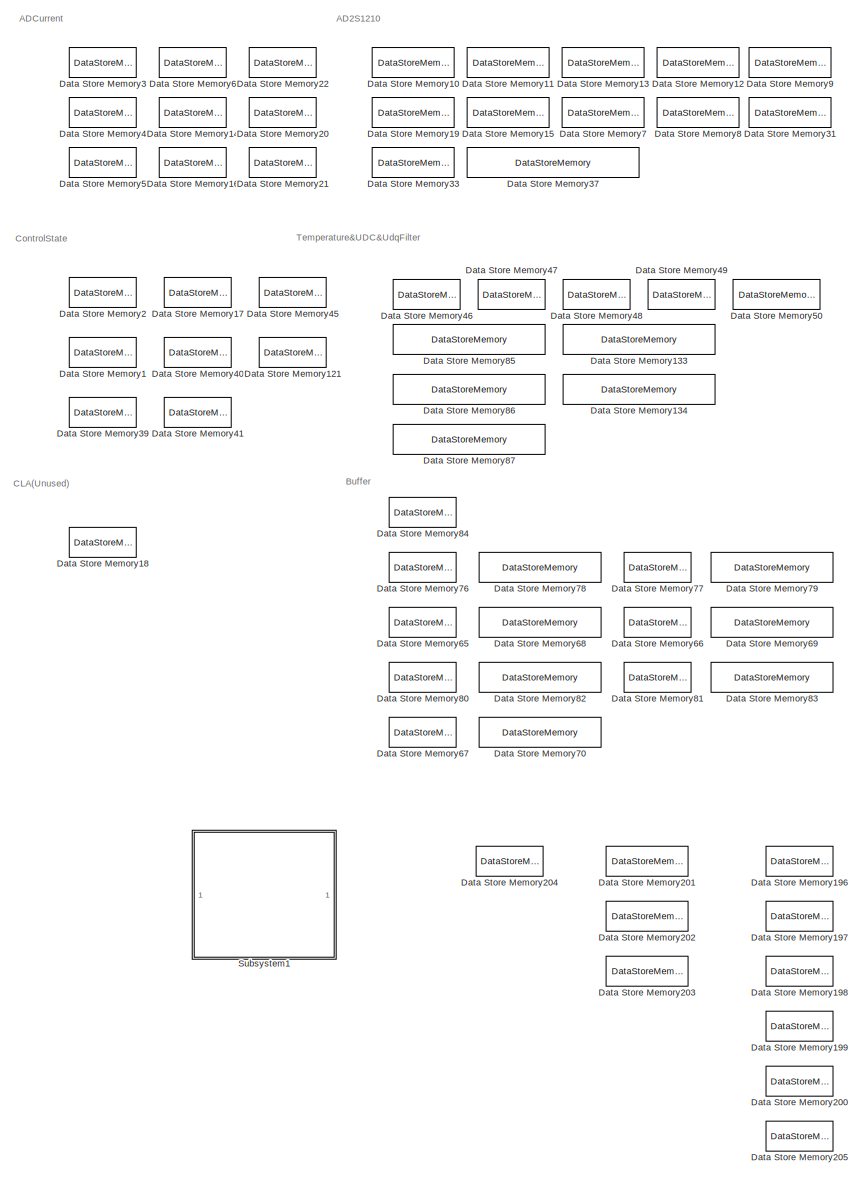
[diagram: root canvas - part 1/4, left side, full height]
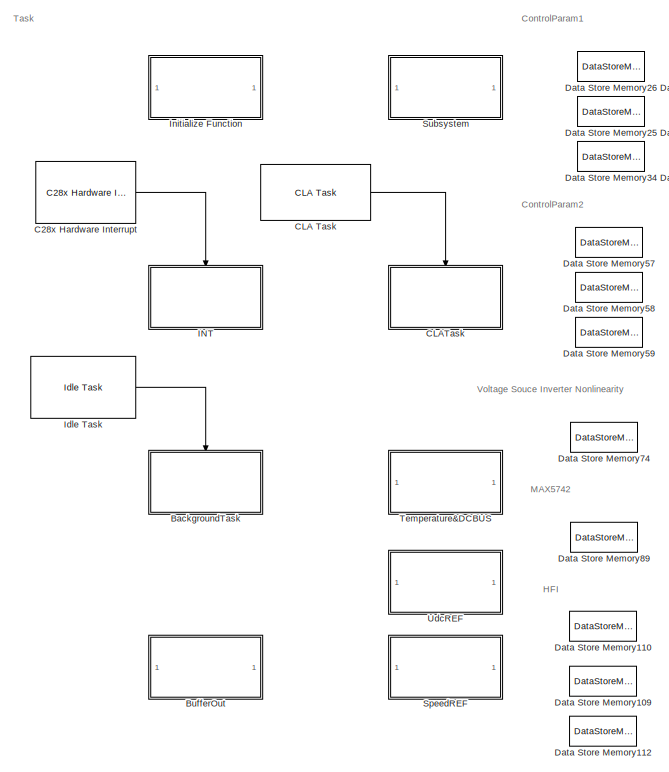
[diagram: root canvas - part 2/4, top center region]
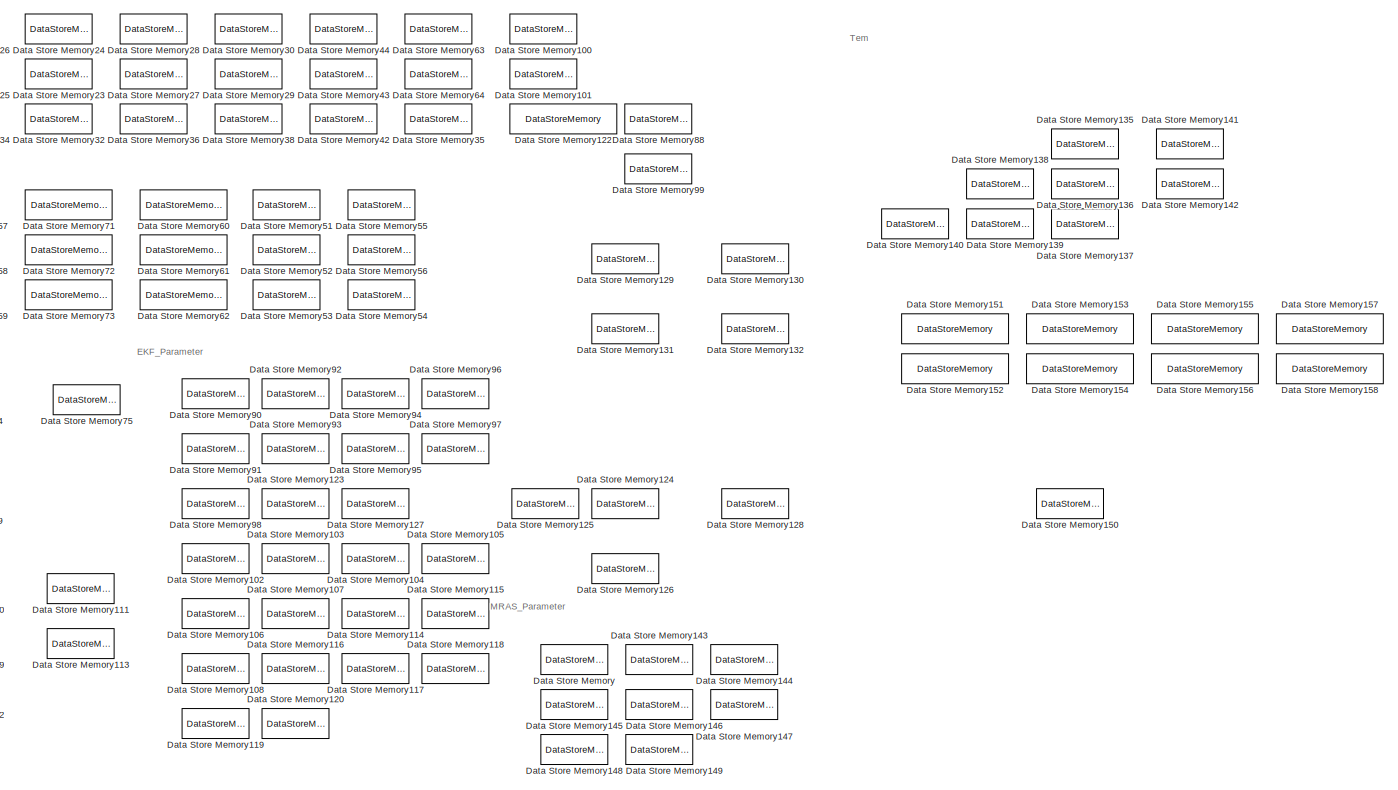
[diagram: root canvas - part 3/4, top right region]
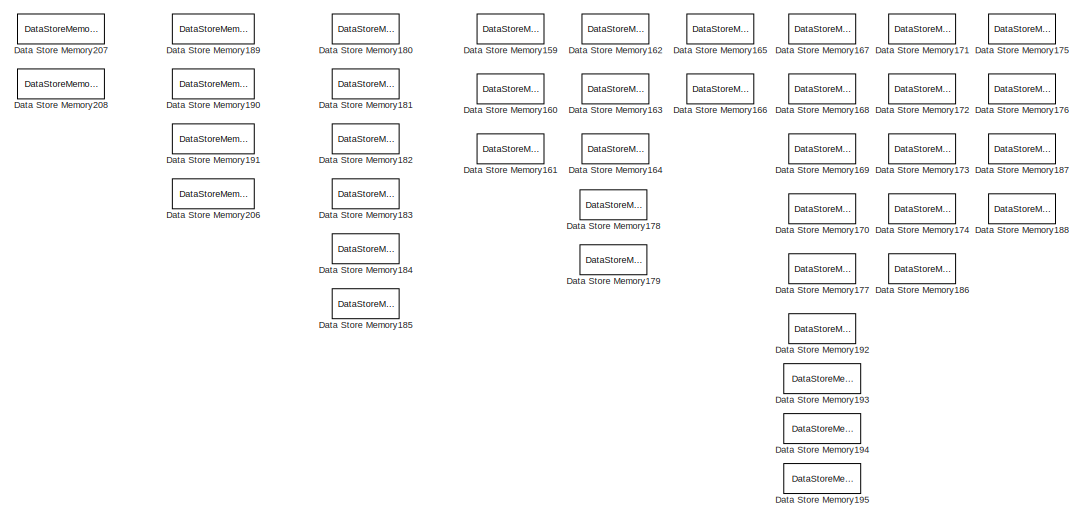
[diagram: root canvas - part 4/4, bottom center region]
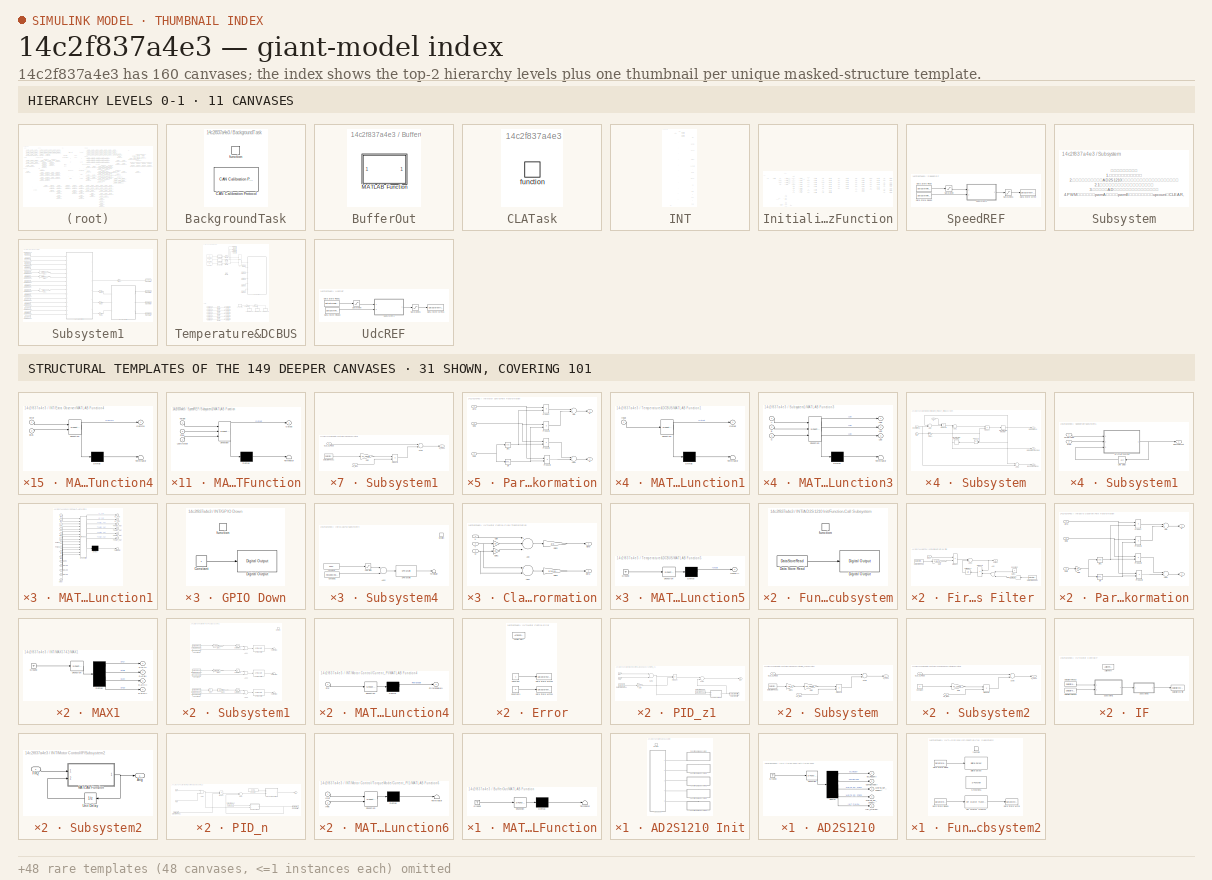
[diagram: thumbnail index - top-2 hierarchy levels (11 canvases) + 31 structural-template representatives of the remaining 149 canvases]
MODEL slx_14c2f837a4e3
KIND model
CONFIG PreLoadFcn = RTWConfigurationCB('preloadfcn', bdroot);
BLOCK [SubSystem] BackgroundTask
  Ports = [0, 0, 0, 1]
  RequestExecContextInheritance = off
  TreatAsAtomicUnit = on
BLOCK [Reference] BackgroundTask/CAN Calibration Protocol  REF=c280xlib/CAN Calibration Protocol
  Ports = []
  SourceBlock = c280xlib/CAN Calibration Protocol
  SourceProductBaseCode = TIC2000
  SourceProductName = Embedded Coder Support Package for Texas Instruments C2000 Processors
  SourceType = C28x CAN Calibration Protocol
BLOCK [TriggerPort] BackgroundTask/function
  Ports = []
  StatesWhenEnabling = held
  TriggerType = function-call
  VariantControl = Variant
BLOCK [SubSystem] BufferOut
  Commented = on
  Ports = []
  RequestExecContextInheritance = off
  SystemSampleTime = 1/200
  TreatAsAtomicUnit = on
BLOCK [SubSystem] BufferOut/MATLAB Function
  ErrorFcn = Stateflow.Translate.translate
  PermitHierarchicalResolution = ExplicitOnly
  Ports = []
  RequestExecContextInheritance = off
  SFBlockType = MATLAB Function
  TreatAsAtomicUnit = on
BLOCK [Demux] BufferOut/MATLAB Function/ Demux 
  Outputs = 1
  Ports = [1, 1]
BLOCK [Ground] BufferOut/MATLAB Function/ Ground 
BLOCK [S-Function] BufferOut/MATLAB Function/ SFunction 
  EnableBusSupport = on
  FunctionName = sf_sfun
  PortCounts = [1 1]
  Ports = [1, 1]
  SFcnIsStateOwnerBlock = off
  SFunctionDeploymentMode = off
  Tag = Stateflow S-Function 30
BLOCK [Terminator] BufferOut/MATLAB Function/ Terminator 
BLOCK [Reference] C28x Hardware Interrupt  REF=c2000lib/Scheduling/C28x Hardware Interrupt
  Ports = [0, 1]
  SourceBlock = c2000lib/Scheduling/C28x Hardware Interrupt
  SourceProductBaseCode = TIC2000
  SourceProductName = Embedded Coder Support Package for Texas Instruments C2000 Processors
  SourceType = C28x Interrupt Block
BLOCK [Reference] CLA Task  REF=c2806xlib/CLA Task
  Ports = [0, 1]
  SourceBlock = c2806xlib/CLA Task
  SourceProductBaseCode = TIC2000
  SourceProductName = Embedded Coder Support Package for Texas Instruments C2000 Processors
  SourceType = CLA_System
BLOCK [SubSystem] CLATask
  Ports = [0, 0, 0, 1]
  RequestExecContextInheritance = off
  TreatAsAtomicUnit = on
BLOCK [TriggerPort] CLATask/function
  Ports = []
  StatesWhenEnabling = held
  TriggerType = function-call
  VariantControl = Variant
BLOCK [DataStoreMemory] Data Store Memory
  DataStoreName = MRAS_Rs
  OutDataTypeStr = single
  RTWStateStorageClass = ExportedGlobal
  ReadBeforeWriteMsg = warning
  ShowAdditionalParam = off
  SignalType = real
  WriteAfterReadMsg = warning
  WriteAfterWriteMsg = warning
BLOCK [DataStoreMemory] Data Store Memory1
  DataStoreName = STOP
  OutDataTypeStr = uint16
  RTWStateStorageClass = ExportedGlobal
  ReadBeforeWriteMsg = warning
  ShowAdditionalParam = off
  SignalType = real
  WriteAfterReadMsg = warning
  WriteAfterWriteMsg = warning
BLOCK [DataStoreMemory] Data Store Memory10
  DataStoreName = ResloverA0
  OutDataTypeStr = uint16
  RTWStateStorageClass = ExportedGlobal
  ReadBeforeWriteMsg = warning
  ShowAdditionalParam = off
  SignalType = real
  WriteAfterReadMsg = warning
  WriteAfterWriteMsg = warning
BLOCK [DataStoreMemory] Data Store Memory100
  DataStoreName = Tem_Dem
  OutDataTypeStr = single
  RTWStateStorageClass = ExportedGlobal
  ReadBeforeWriteMsg = warning
  ShowAdditionalParam = off
  SignalType = real
  WriteAfterReadMsg = warning
  WriteAfterWriteMsg = warning
BLOCK [DataStoreMemory] Data Store Memory101
  DataStoreName = Tem_Step
  OutDataTypeStr = single
  RTWStateStorageClass = ExportedGlobal
  ReadBeforeWriteMsg = warning
  ShowAdditionalParam = off
  SignalType = real
  WriteAfterReadMsg = warning
  WriteAfterWriteMsg = warning
BLOCK [DataStoreMemory] Data Store Memory102
  DataStoreName = DEKF_Rs
  OutDataTypeStr = single
  RTWStateStorageClass = ExportedGlobal
  ReadBeforeWriteMsg = warning
  ShowAdditionalParam = off
  SignalType = real
  WriteAfterReadMsg = warning
  WriteAfterWriteMsg = warning
BLOCK [DataStoreMemory] Data Store Memory103
  DataStoreName = DEKF_Ldd
  OutDataTypeStr = single
  RTWStateStorageClass = ExportedGlobal
  ReadBeforeWriteMsg = warning
  ShowAdditionalParam = off
  SignalType = real
  WriteAfterReadMsg = warning
  WriteAfterWriteMsg = warning
BLOCK [DataStoreMemory] Data Store Memory104
  DataStoreName = DEKF_Ldq
  OutDataTypeStr = single
  RTWStateStorageClass = ExportedGlobal
  ReadBeforeWriteMsg = warning
  ShowAdditionalParam = off
  SignalType = real
  WriteAfterReadMsg = warning
  WriteAfterWriteMsg = warning
BLOCK [DataStoreMemory] Data Store Memory105
  DataStoreName = DEKF_Lqq
  OutDataTypeStr = single
  RTWStateStorageClass = ExportedGlobal
  ReadBeforeWriteMsg = warning
  ShowAdditionalParam = off
  SignalType = real
  WriteAfterReadMsg = warning
  WriteAfterWriteMsg = warning
BLOCK [DataStoreMemory] Data Store Memory106
  DataStoreName = DEKF_IdhOb
  OutDataTypeStr = single
  RTWStateStorageClass = ExportedGlobal
  ReadBeforeWriteMsg = warning
  ShowAdditionalParam = off
  SignalType = real
  WriteAfterReadMsg = warning
  WriteAfterWriteMsg = warning
BLOCK [DataStoreMemory] Data Store Memory107
  DataStoreName = DEKF_IqhOb
  OutDataTypeStr = single
  RTWStateStorageClass = ExportedGlobal
  ReadBeforeWriteMsg = warning
  ShowAdditionalParam = off
  SignalType = real
  WriteAfterReadMsg = warning
  WriteAfterWriteMsg = warning
BLOCK [DataStoreMemory] Data Store Memory108
  DataStoreName = DEKF_FLAG
  OutDataTypeStr = uint16
  RTWStateStorageClass = ExportedGlobal
  ReadBeforeWriteMsg = warning
  ShowAdditionalParam = off
  SignalType = real
  WriteAfterReadMsg = warning
  WriteAfterWriteMsg = warning
BLOCK [DataStoreMemory] Data Store Memory109
  DataStoreName = HFI_Imd
  OutDataTypeStr = single
  RTWStateStorageClass = ExportedGlobal
  ReadBeforeWriteMsg = warning
  ShowAdditionalParam = off
  SignalType = real
  WriteAfterReadMsg = warning
  WriteAfterWriteMsg = warning
BLOCK [DataStoreMemory] Data Store Memory11
  DataStoreName = ResloverA1
  OutDataTypeStr = uint16
  RTWStateStorageClass = ExportedGlobal
  ReadBeforeWriteMsg = warning
  ShowAdditionalParam = off
  SignalType = real
  WriteAfterReadMsg = warning
  WriteAfterWriteMsg = warning
BLOCK [DataStoreMemory] Data Store Memory110
  DataStoreName = HFI_Umd
  OutDataTypeStr = single
  RTWStateStorageClass = ExportedGlobal
  ReadBeforeWriteMsg = warning
  ShowAdditionalParam = off
  SignalType = real
  WriteAfterReadMsg = warning
  WriteAfterWriteMsg = warning
BLOCK [DataStoreMemory] Data Store Memory111
  DataStoreName = HFI_Umq
  OutDataTypeStr = single
  RTWStateStorageClass = ExportedGlobal
  ReadBeforeWriteMsg = warning
  ShowAdditionalParam = off
  SignalType = real
  WriteAfterReadMsg = warning
  WriteAfterWriteMsg = warning
BLOCK [DataStoreMemory] Data Store Memory112
  DataStoreName = HFI_FRQ
  InitialValue = 10
  OutDataTypeStr = single
  RTWStateStorageClass = ExportedGlobal
  ReadBeforeWriteMsg = warning
  ShowAdditionalParam = off
  SignalType = real
  WriteAfterReadMsg = warning
  WriteAfterWriteMsg = warning
BLOCK [DataStoreMemory] Data Store Memory113
  DataStoreName = HFI_Imq
  OutDataTypeStr = single
  RTWStateStorageClass = ExportedGlobal
  ReadBeforeWriteMsg = warning
  ShowAdditionalParam = off
  SignalType = real
  WriteAfterReadMsg = warning
  WriteAfterWriteMsg = warning
BLOCK [DataStoreMemory] Data Store Memory114
  DataStoreName = DEKF_R
  OutDataTypeStr = single
  RTWStateStorageClass = ExportedGlobal
  ReadBeforeWriteMsg = warning
  ShowAdditionalParam = off
  SignalType = real
  WriteAfterReadMsg = warning
  WriteAfterWriteMsg = warning
BLOCK [DataStoreMemory] Data Store Memory115
  DataStoreName = DEKF_Qx
  OutDataTypeStr = single
  RTWStateStorageClass = ExportedGlobal
  ReadBeforeWriteMsg = warning
  ShowAdditionalParam = off
  SignalType = real
  WriteAfterReadMsg = warning
  WriteAfterWriteMsg = warning
BLOCK [DataStoreMemory] Data Store Memory116
  DataStoreName = DEKF_QpRs
  OutDataTypeStr = single
  RTWStateStorageClass = ExportedGlobal
  ReadBeforeWriteMsg = warning
  ShowAdditionalParam = off
  SignalType = real
  WriteAfterReadMsg = warning
  WriteAfterWriteMsg = warning
BLOCK [DataStoreMemory] Data Store Memory117
  DataStoreName = DEKF_QpLdd
  OutDataTypeStr = single
  RTWStateStorageClass = ExportedGlobal
  ReadBeforeWriteMsg = warning
  ShowAdditionalParam = off
  SignalType = real
  WriteAfterReadMsg = warning
  WriteAfterWriteMsg = warning
BLOCK [DataStoreMemory] Data Store Memory118
  DataStoreName = DEKF_QpLdq
  OutDataTypeStr = single
  RTWStateStorageClass = ExportedGlobal
  ReadBeforeWriteMsg = warning
  ShowAdditionalParam = off
  SignalType = real
  WriteAfterReadMsg = warning
  WriteAfterWriteMsg = warning
BLOCK [DataStoreMemory] Data Store Memory119
  DataStoreName = DEKF_QpLqq
  OutDataTypeStr = single
  RTWStateStorageClass = ExportedGlobal
  ReadBeforeWriteMsg = warning
  ShowAdditionalParam = off
  SignalType = real
  WriteAfterReadMsg = warning
  WriteAfterWriteMsg = warning
BLOCK [DataStoreMemory] Data Store Memory12
  DataStoreName = ResloverSAMPLE
  OutDataTypeStr = uint16
  RTWStateStorageClass = ExportedGlobal
  ReadBeforeWriteMsg = warning
  ShowAdditionalParam = off
  SignalType = real
  WriteAfterReadMsg = warning
  WriteAfterWriteMsg = warning
BLOCK [DataStoreMemory] Data Store Memory120
  DataStoreName = DEKF_Clear
  OutDataTypeStr = uint16
  RTWStateStorageClass = ExportedGlobal
  ReadBeforeWriteMsg = warning
  ShowAdditionalParam = off
  SignalType = real
  WriteAfterReadMsg = warning
  WriteAfterWriteMsg = warning
BLOCK [DataStoreMemory] Data Store Memory121
  DataStoreName = IGBT_Fault
  OutDataTypeStr = uint16
  RTWStateStorageClass = ExportedGlobal
  ReadBeforeWriteMsg = warning
  ShowAdditionalParam = off
  SignalType = real
  WriteAfterReadMsg = warning
  WriteAfterWriteMsg = warning
BLOCK [DataStoreMemory] Data Store Memory122
  DataStoreName = REVERSE_FLAG
  OutDataTypeStr = uint16
  RTWStateStorageClass = ExportedGlobal
  ReadBeforeWriteMsg = warning
  ShowAdditionalParam = off
  SignalType = real
  WriteAfterReadMsg = warning
  WriteAfterWriteMsg = warning
BLOCK [DataStoreMemory] Data Store Memory123
  DataStoreName = DEKF_Phiq0
  OutDataTypeStr = single
  RTWStateStorageClass = ExportedGlobal
  ReadBeforeWriteMsg = warning
  ShowAdditionalParam = off
  SignalType = real
  WriteAfterReadMsg = warning
  WriteAfterWriteMsg = warning
BLOCK [DataStoreMemory] Data Store Memory124
  DataStoreName = Phi_dOb
  OutDataTypeStr = single
  RTWStateStorageClass = ExportedGlobal
  ReadBeforeWriteMsg = warning
  ShowAdditionalParam = off
  SignalType = real
  WriteAfterReadMsg = warning
  WriteAfterWriteMsg = warning
BLOCK [DataStoreMemory] Data Store Memory125
  DataStoreName = Phi_Rs
  InitialValue = 20e-3
  OutDataTypeStr = single
  RTWStateStorageClass = ExportedGlobal
  ReadBeforeWriteMsg = warning
  ShowAdditionalParam = off
  SignalType = real
  WriteAfterReadMsg = warning
  WriteAfterWriteMsg = warning
BLOCK [DataStoreMemory] Data Store Memory126
  DataStoreName = Phi_qOb
  OutDataTypeStr = single
  RTWStateStorageClass = ExportedGlobal
  ReadBeforeWriteMsg = warning
  ShowAdditionalParam = off
  SignalType = real
  WriteAfterReadMsg = warning
  WriteAfterWriteMsg = warning
BLOCK [DataStoreMemory] Data Store Memory127
  DataStoreName = DEKF_Gamma
  InitialValue = -0.01255
  OutDataTypeStr = single
  RTWStateStorageClass = ExportedGlobal
  ReadBeforeWriteMsg = warning
  ShowAdditionalParam = off
  SignalType = real
  WriteAfterReadMsg = warning
  WriteAfterWriteMsg = warning
BLOCK [DataStoreMemory] Data Store Memory128
  DataStoreName = DEKF_Udelay
  InitialValue = 1.5
  OutDataTypeStr = single
  RTWStateStorageClass = ExportedGlobal
  ReadBeforeWriteMsg = warning
  ShowAdditionalParam = off
  SignalType = real
  WriteAfterReadMsg = warning
  WriteAfterWriteMsg = warning
BLOCK [DataStoreMemory] Data Store Memory129
  DataStoreName = INITV_RS
  InitialValue = 0.01
  OutDataTypeStr = single
  RTWStateStorageClass = ExportedGlobal
  ReadBeforeWriteMsg = warning
  ShowAdditionalParam = off
  SignalType = real
  WriteAfterReadMsg = warning
  WriteAfterWriteMsg = warning
BLOCK [DataStoreMemory] Data Store Memory13
  DataStoreName = ResloverRESET
  OutDataTypeStr = uint16
  RTWStateStorageClass = ExportedGlobal
  ReadBeforeWriteMsg = warning
  ShowAdditionalParam = off
  SignalType = real
  WriteAfterReadMsg = warning
  WriteAfterWriteMsg = warning
BLOCK [DataStoreMemory] Data Store Memory130
  DataStoreName = INITV_NDD
  InitialValue = 3.5874e4
  OutDataTypeStr = single
  RTWStateStorageClass = ExportedGlobal
  ReadBeforeWriteMsg = warning
  ShowAdditionalParam = off
  SignalType = real
  WriteAfterReadMsg = warning
  WriteAfterWriteMsg = warning
BLOCK [DataStoreMemory] Data Store Memory131
  DataStoreName = INITV_NDQ
  InitialValue = -4548.4305
  OutDataTypeStr = single
  RTWStateStorageClass = ExportedGlobal
  ReadBeforeWriteMsg = warning
  ShowAdditionalParam = off
  SignalType = real
  WriteAfterReadMsg = warning
  WriteAfterWriteMsg = warning
BLOCK [DataStoreMemory] Data Store Memory132
  DataStoreName = INITV_NQQ
  InitialValue = 5.2556e4
  OutDataTypeStr = single
  RTWStateStorageClass = ExportedGlobal
  ReadBeforeWriteMsg = warning
  ShowAdditionalParam = off
  SignalType = real
  WriteAfterReadMsg = warning
  WriteAfterWriteMsg = warning
BLOCK [DataStoreMemory] Data Store Memory133
  DataStoreName = Id_Filter
  OutDataTypeStr = single
  RTWStateStorageClass = ExportedGlobal
  ReadBeforeWriteMsg = warning
  ShowAdditionalParam = off
  SignalType = real
  WriteAfterReadMsg = warning
  WriteAfterWriteMsg = warning
BLOCK [DataStoreMemory] Data Store Memory134
  DataStoreName = Iq_Filter
  OutDataTypeStr = single
  RTWStateStorageClass = ExportedGlobal
  ReadBeforeWriteMsg = warning
  ShowAdditionalParam = off
  SignalType = real
  WriteAfterReadMsg = warning
  WriteAfterWriteMsg = warning
BLOCK [DataStoreMemory] Data Store Memory135
  DataStoreName = Tr_Phidm
  InitialValue = 20e-3
  OutDataTypeStr = single
  RTWStateStorageClass = ExportedGlobal
  ReadBeforeWriteMsg = warning
  ShowAdditionalParam = off
  SignalType = real
  WriteAfterReadMsg = warning
  WriteAfterWriteMsg = warning
BLOCK [DataStoreMemory] Data Store Memory136
  DataStoreName = Tr_Lqap
  InitialValue = 20e-3
  OutDataTypeStr = single
  RTWStateStorageClass = ExportedGlobal
  ReadBeforeWriteMsg = warning
  ShowAdditionalParam = off
  SignalType = real
  WriteAfterReadMsg = warning
  WriteAfterWriteMsg = warning
BLOCK [DataStoreMemory] Data Store Memory137
  DataStoreName = Tr_Lqinc
  InitialValue = 20e-3
  OutDataTypeStr = single
  RTWStateStorageClass = ExportedGlobal
  ReadBeforeWriteMsg = warning
  ShowAdditionalParam = off
  SignalType = real
  WriteAfterReadMsg = warning
  WriteAfterWriteMsg = warning
BLOCK [DataStoreMemory] Data Store Memory138
  DataStoreName = Tr_Ldap
  InitialValue = 20e-3
  OutDataTypeStr = single
  RTWStateStorageClass = ExportedGlobal
  ReadBeforeWriteMsg = warning
  ShowAdditionalParam = off
  SignalType = real
  WriteAfterReadMsg = warning
  WriteAfterWriteMsg = warning
BLOCK [DataStoreMemory] Data Store Memory139
  DataStoreName = Tr_Ldinc
  InitialValue = 20e-3
  OutDataTypeStr = single
  RTWStateStorageClass = ExportedGlobal
  ReadBeforeWriteMsg = warning
  ShowAdditionalParam = off
  SignalType = real
  WriteAfterReadMsg = warning
  WriteAfterWriteMsg = warning
BLOCK [DataStoreMemory] Data Store Memory14
  DataStoreName = V_OFFSET
  InitialValue = 2048
  OutDataTypeStr = single
  RTWStateStorageClass = ExportedGlobal
  ReadBeforeWriteMsg = warning
  ShowAdditionalParam = off
  SignalType = real
  WriteAfterReadMsg = warning
  WriteAfterWriteMsg = warning
BLOCK [DataStoreMemory] Data Store Memory140
  DataStoreName = Tr_Ldqinc
  InitialValue = 20e-3
  OutDataTypeStr = single
  RTWStateStorageClass = ExportedGlobal
  ReadBeforeWriteMsg = warning
  ShowAdditionalParam = off
  SignalType = real
  WriteAfterReadMsg = warning
  WriteAfterWriteMsg = warning
BLOCK [DataStoreMemory] Data Store Memory141
  DataStoreName = Tr_Tem
  InitialValue = 20e-3
  OutDataTypeStr = single
  RTWStateStorageClass = ExportedGlobal
  ReadBeforeWriteMsg = warning
  ShowAdditionalParam = off
  SignalType = real
  WriteAfterReadMsg = warning
  WriteAfterWriteMsg = warning
BLOCK [DataStoreMemory] Data Store Memory142
  DataStoreName = Tr_Ttotal
  InitialValue = 20e-3
  OutDataTypeStr = single
  RTWStateStorageClass = ExportedGlobal
  ReadBeforeWriteMsg = warning
  ShowAdditionalParam = off
  SignalType = real
  WriteAfterReadMsg = warning
  WriteAfterWriteMsg = warning
BLOCK [DataStoreMemory] Data Store Memory143
  DataStoreName = MRAS_Ld
  OutDataTypeStr = single
  RTWStateStorageClass = ExportedGlobal
  ReadBeforeWriteMsg = warning
  ShowAdditionalParam = off
  SignalType = real
  WriteAfterReadMsg = warning
  WriteAfterWriteMsg = warning
BLOCK [DataStoreMemory] Data Store Memory144
  DataStoreName = MRAS_Lq
  OutDataTypeStr = single
  RTWStateStorageClass = ExportedGlobal
  ReadBeforeWriteMsg = warning
  ShowAdditionalParam = off
  SignalType = real
  WriteAfterReadMsg = warning
  WriteAfterWriteMsg = warning
BLOCK [DataStoreMemory] Data Store Memory145
  DataStoreName = MRAS_KR
  OutDataTypeStr = single
  RTWStateStorageClass = ExportedGlobal
  ReadBeforeWriteMsg = warning
  ShowAdditionalParam = off
  SignalType = real
  WriteAfterReadMsg = warning
  WriteAfterWriteMsg = warning
BLOCK [DataStoreMemory] Data Store Memory146
  DataStoreName = MRAS_KLd
  OutDataTypeStr = single
  RTWStateStorageClass = ExportedGlobal
  ReadBeforeWriteMsg = warning
  ShowAdditionalParam = off
  SignalType = real
  WriteAfterReadMsg = warning
  WriteAfterWriteMsg = warning
BLOCK [DataStoreMemory] Data Store Memory147
  DataStoreName = MRAS_KLq
  OutDataTypeStr = single
  RTWStateStorageClass = ExportedGlobal
  ReadBeforeWriteMsg = warning
  ShowAdditionalParam = off
  SignalType = real
  WriteAfterReadMsg = warning
  WriteAfterWriteMsg = warning
BLOCK [DataStoreMemory] Data Store Memory148
  DataStoreName = MRAS_Idh
  OutDataTypeStr = single
  RTWStateStorageClass = ExportedGlobal
  ReadBeforeWriteMsg = warning
  ShowAdditionalParam = off
  SignalType = real
  WriteAfterReadMsg = warning
  WriteAfterWriteMsg = warning
BLOCK [DataStoreMemory] Data Store Memory149
  DataStoreName = MRAS_Iqh
  OutDataTypeStr = single
  RTWStateStorageClass = ExportedGlobal
  ReadBeforeWriteMsg = warning
  ShowAdditionalParam = off
  SignalType = real
  WriteAfterReadMsg = warning
  WriteAfterWriteMsg = warning
BLOCK [DataStoreMemory] Data Store Memory15
  DataStoreName = ResloverFRQ
  InitialValue = uint16(hex2dec('14'))
  OutDataTypeStr = uint16
  RTWStateStorageClass = ExportedGlobal
  ReadBeforeWriteMsg = warning
  ShowAdditionalParam = off
  SignalType = real
  WriteAfterReadMsg = warning
  WriteAfterWriteMsg = warning
BLOCK [DataStoreMemory] Data Store Memory150
  DataStoreName = PI_Multi
  InitialValue = 0.5
  OutDataTypeStr = single
  RTWStateStorageClass = ExportedGlobal
  ReadBeforeWriteMsg = warning
  ShowAdditionalParam = off
  SignalType = real
  WriteAfterReadMsg = warning
  WriteAfterWriteMsg = warning
BLOCK [DataStoreMemory] Data Store Memory151
  DataStoreName = THERMAL_Ud
  OutDataTypeStr = single
  RTWStateStorageClass = ExportedGlobal
  ReadBeforeWriteMsg = warning
  ShowAdditionalParam = off
  SignalType = real
  WriteAfterReadMsg = warning
  WriteAfterWriteMsg = warning
BLOCK [DataStoreMemory] Data Store Memory152
  DataStoreName = THERMAL_Uq
  OutDataTypeStr = single
  RTWStateStorageClass = ExportedGlobal
  ReadBeforeWriteMsg = warning
  ShowAdditionalParam = off
  SignalType = real
  WriteAfterReadMsg = warning
  WriteAfterWriteMsg = warning
BLOCK [DataStoreMemory] Data Store Memory153
  DataStoreName = THERMAL_IdRef
  OutDataTypeStr = single
  RTWStateStorageClass = ExportedGlobal
  ReadBeforeWriteMsg = warning
  ShowAdditionalParam = off
  SignalType = real
  WriteAfterReadMsg = warning
  WriteAfterWriteMsg = warning
BLOCK [DataStoreMemory] Data Store Memory154
  DataStoreName = THERMAL_IqRef
  OutDataTypeStr = single
  RTWStateStorageClass = ExportedGlobal
  ReadBeforeWriteMsg = warning
  ShowAdditionalParam = off
  SignalType = real
  WriteAfterReadMsg = warning
  WriteAfterWriteMsg = warning
BLOCK [DataStoreMemory] Data Store Memory155
  DataStoreName = THERMAL_IdFbk
  OutDataTypeStr = single
  RTWStateStorageClass = ExportedGlobal
  ReadBeforeWriteMsg = warning
  ShowAdditionalParam = off
  SignalType = real
  WriteAfterReadMsg = warning
  WriteAfterWriteMsg = warning
BLOCK [DataStoreMemory] Data Store Memory156
  DataStoreName = THERMAL_IqFbk
  OutDataTypeStr = single
  RTWStateStorageClass = ExportedGlobal
  ReadBeforeWriteMsg = warning
  ShowAdditionalParam = off
  SignalType = real
  WriteAfterReadMsg = warning
  WriteAfterWriteMsg = warning
BLOCK [DataStoreMemory] Data Store Memory157
  DataStoreName = THERMAL_N
  OutDataTypeStr = single
  RTWStateStorageClass = ExportedGlobal
  ReadBeforeWriteMsg = warning
  ShowAdditionalParam = off
  SignalType = real
  WriteAfterReadMsg = warning
  WriteAfterWriteMsg = warning
BLOCK [DataStoreMemory] Data Store Memory158
  DataStoreName = THERMAL_Pele
  OutDataTypeStr = single
  RTWStateStorageClass = ExportedGlobal
  ReadBeforeWriteMsg = warning
  ShowAdditionalParam = off
  SignalType = real
  WriteAfterReadMsg = warning
  WriteAfterWriteMsg = warning
BLOCK [DataStoreMemory] Data Store Memory159
  DataStoreName = Udc_Filter
  OutDataTypeStr = single
  RTWStateStorageClass = ExportedGlobal
  ReadBeforeWriteMsg = warning
  ShowAdditionalParam = off
  SignalType = real
  WriteAfterReadMsg = warning
  WriteAfterWriteMsg = warning
BLOCK [DataStoreMemory] Data Store Memory16
  DataStoreName = W_OFFSET
  InitialValue = 2048
  OutDataTypeStr = single
  RTWStateStorageClass = ExportedGlobal
  ReadBeforeWriteMsg = warning
  ShowAdditionalParam = off
  SignalType = real
  WriteAfterReadMsg = warning
  WriteAfterWriteMsg = warning
BLOCK [DataStoreMemory] Data Store Memory160
  DataStoreName = Udc_REF
  OutDataTypeStr = single
  RTWStateStorageClass = ExportedGlobal
  ReadBeforeWriteMsg = warning
  ShowAdditionalParam = off
  SignalType = real
  WriteAfterReadMsg = warning
  WriteAfterWriteMsg = warning
BLOCK [DataStoreMemory] Data Store Memory161
  DataStoreName = Udc_FBK
  OutDataTypeStr = single
  RTWStateStorageClass = ExportedGlobal
  ReadBeforeWriteMsg = warning
  ShowAdditionalParam = off
  SignalType = real
  WriteAfterReadMsg = warning
  WriteAfterWriteMsg = warning
BLOCK [DataStoreMemory] Data Store Memory162
  DataStoreName = Udc_Kp
  OutDataTypeStr = single
  RTWStateStorageClass = ExportedGlobal
  ReadBeforeWriteMsg = warning
  ShowAdditionalParam = off
  SignalType = real
  WriteAfterReadMsg = warning
  WriteAfterWriteMsg = warning
BLOCK [DataStoreMemory] Data Store Memory163
  DataStoreName = Udc_Ki
  OutDataTypeStr = single
  RTWStateStorageClass = ExportedGlobal
  ReadBeforeWriteMsg = warning
  ShowAdditionalParam = off
  SignalType = real
  WriteAfterReadMsg = warning
  WriteAfterWriteMsg = warning
BLOCK [DataStoreMemory] Data Store Memory164
  DataStoreName = Udc_Integral
  OutDataTypeStr = single
  RTWStateStorageClass = ExportedGlobal
  ReadBeforeWriteMsg = warning
  ShowAdditionalParam = off
  SignalType = real
  WriteAfterReadMsg = warning
  WriteAfterWriteMsg = warning
BLOCK [DataStoreMemory] Data Store Memory165
  DataStoreName = Udc_Dem
  OutDataTypeStr = single
  RTWStateStorageClass = ExportedGlobal
  ReadBeforeWriteMsg = warning
  ShowAdditionalParam = off
  SignalType = real
  WriteAfterReadMsg = warning
  WriteAfterWriteMsg = warning
BLOCK [DataStoreMemory] Data Store Memory166
  DataStoreName = Udc_Step
  OutDataTypeStr = single
  RTWStateStorageClass = ExportedGlobal
  ReadBeforeWriteMsg = warning
  ShowAdditionalParam = off
  SignalType = real
  WriteAfterReadMsg = warning
  WriteAfterWriteMsg = warning
BLOCK [DataStoreMemory] Data Store Memory167
  DataStoreName = FbL_Ld
  OutDataTypeStr = single
  RTWStateStorageClass = ExportedGlobal
  ReadBeforeWriteMsg = warning
  ShowAdditionalParam = off
  SignalType = real
  WriteAfterReadMsg = warning
  WriteAfterWriteMsg = warning
BLOCK [DataStoreMemory] Data Store Memory168
  DataStoreName = FbL_Lq
  OutDataTypeStr = single
  RTWStateStorageClass = ExportedGlobal
  ReadBeforeWriteMsg = warning
  ShowAdditionalParam = off
  SignalType = real
  WriteAfterReadMsg = warning
  WriteAfterWriteMsg = warning
BLOCK [DataStoreMemory] Data Store Memory169
  DataStoreName = FbL_Phif
  OutDataTypeStr = single
  RTWStateStorageClass = ExportedGlobal
  ReadBeforeWriteMsg = warning
  ShowAdditionalParam = off
  SignalType = real
  WriteAfterReadMsg = warning
  WriteAfterWriteMsg = warning
BLOCK [DataStoreMemory] Data Store Memory17
  DataStoreName = InitMode
  OutDataTypeStr = uint16
  RTWStateStorageClass = ExportedGlobal
  ReadBeforeWriteMsg = warning
  ShowAdditionalParam = off
  SignalType = real
  WriteAfterReadMsg = warning
  WriteAfterWriteMsg = warning
BLOCK [DataStoreMemory] Data Store Memory170
  DataStoreName = FbL_Rs
  OutDataTypeStr = single
  RTWStateStorageClass = ExportedGlobal
  ReadBeforeWriteMsg = warning
  ShowAdditionalParam = off
  SignalType = real
  WriteAfterReadMsg = warning
  WriteAfterWriteMsg = warning
BLOCK [DataStoreMemory] Data Store Memory171
  DataStoreName = FbL_Cdc
  OutDataTypeStr = single
  RTWStateStorageClass = ExportedGlobal
  ReadBeforeWriteMsg = warning
  ShowAdditionalParam = off
  SignalType = real
  WriteAfterReadMsg = warning
  WriteAfterWriteMsg = warning
BLOCK [DataStoreMemory] Data Store Memory172
  DataStoreName = FbL_z1
  OutDataTypeStr = single
  RTWStateStorageClass = ExportedGlobal
  ReadBeforeWriteMsg = warning
  ShowAdditionalParam = off
  SignalType = real
  WriteAfterReadMsg = warning
  WriteAfterWriteMsg = warning
BLOCK [DataStoreMemory] Data Store Memory173
  DataStoreName = FbL_z2
  OutDataTypeStr = single
  RTWStateStorageClass = ExportedGlobal
  ReadBeforeWriteMsg = warning
  ShowAdditionalParam = off
  SignalType = real
  WriteAfterReadMsg = warning
  WriteAfterWriteMsg = warning
BLOCK [DataStoreMemory] Data Store Memory174
  DataStoreName = FbL_z3
  OutDataTypeStr = single
  RTWStateStorageClass = ExportedGlobal
  ReadBeforeWriteMsg = warning
  ShowAdditionalParam = off
  SignalType = real
  WriteAfterReadMsg = warning
  WriteAfterWriteMsg = warning
BLOCK [DataStoreMemory] Data Store Memory175
  DataStoreName = FbL_ud
  OutDataTypeStr = single
  RTWStateStorageClass = ExportedGlobal
  ReadBeforeWriteMsg = warning
  ShowAdditionalParam = off
  SignalType = real
  WriteAfterReadMsg = warning
  WriteAfterWriteMsg = warning
BLOCK [DataStoreMemory] Data Store Memory176
  DataStoreName = FbL_uq
  OutDataTypeStr = single
  RTWStateStorageClass = ExportedGlobal
  ReadBeforeWriteMsg = warning
  ShowAdditionalParam = off
  SignalType = real
  WriteAfterReadMsg = warning
  WriteAfterWriteMsg = warning
BLOCK [DataStoreMemory] Data Store Memory177
  DataStoreName = FbL_Rdc
  OutDataTypeStr = single
  RTWStateStorageClass = ExportedGlobal
  ReadBeforeWriteMsg = warning
  ShowAdditionalParam = off
  SignalType = real
  WriteAfterReadMsg = warning
  WriteAfterWriteMsg = warning
BLOCK [DataStoreMemory] Data Store Memory178
  DataStoreName = Ud_in
  OutDataTypeStr = single
  RTWStateStorageClass = ExportedGlobal
  ReadBeforeWriteMsg = warning
  ShowAdditionalParam = off
  SignalType = real
  WriteAfterReadMsg = warning
  WriteAfterWriteMsg = warning
BLOCK [DataStoreMemory] Data Store Memory179
  DataStoreName = Uq_in
  OutDataTypeStr = single
  RTWStateStorageClass = ExportedGlobal
  ReadBeforeWriteMsg = warning
  ShowAdditionalParam = off
  SignalType = real
  WriteAfterReadMsg = warning
  WriteAfterWriteMsg = warning
BLOCK [DataStoreMemory] Data Store Memory18
  DataStoreName = CLA_Data
  OutDataTypeStr = single
  ReadBeforeWriteMsg = warning
  ShowAdditionalParam = off
  SignalType = real
  WriteAfterReadMsg = warning
  WriteAfterWriteMsg = warning
BLOCK [DataStoreMemory] Data Store Memory180
  DataStoreName = FbL_k0
  OutDataTypeStr = single
  RTWStateStorageClass = ExportedGlobal
  ReadBeforeWriteMsg = warning
  ShowAdditionalParam = off
  SignalType = real
  WriteAfterReadMsg = warning
  WriteAfterWriteMsg = warning
BLOCK [DataStoreMemory] Data Store Memory181
  DataStoreName = FbL_k1
  OutDataTypeStr = single
  RTWStateStorageClass = ExportedGlobal
  ReadBeforeWriteMsg = warning
  ShowAdditionalParam = off
  SignalType = real
  WriteAfterReadMsg = warning
  WriteAfterWriteMsg = warning
BLOCK [DataStoreMemory] Data Store Memory182
  DataStoreName = FbL_k2
  OutDataTypeStr = single
  RTWStateStorageClass = ExportedGlobal
  ReadBeforeWriteMsg = warning
  ShowAdditionalParam = off
  SignalType = real
  WriteAfterReadMsg = warning
  WriteAfterWriteMsg = warning
BLOCK [DataStoreMemory] Data Store Memory183
  DataStoreName = FbL_k4
  OutDataTypeStr = single
  RTWStateStorageClass = ExportedGlobal
  ReadBeforeWriteMsg = warning
  ShowAdditionalParam = off
  SignalType = real
  WriteAfterReadMsg = warning
  WriteAfterWriteMsg = warning
BLOCK [DataStoreMemory] Data Store Memory184
  DataStoreName = FbL_k5
  OutDataTypeStr = single
  RTWStateStorageClass = ExportedGlobal
  ReadBeforeWriteMsg = warning
  ShowAdditionalParam = off
  SignalType = real
  WriteAfterReadMsg = warning
  WriteAfterWriteMsg = warning
BLOCK [DataStoreMemory] Data Store Memory185
  DataStoreName = FbL_k3
  OutDataTypeStr = single
  RTWStateStorageClass = ExportedGlobal
  ReadBeforeWriteMsg = warning
  ShowAdditionalParam = off
  SignalType = real
  WriteAfterReadMsg = warning
  WriteAfterWriteMsg = warning
BLOCK [DataStoreMemory] Data Store Memory186
  DataStoreName = FbL_z1ref
  OutDataTypeStr = single
  RTWStateStorageClass = ExportedGlobal
  ReadBeforeWriteMsg = warning
  ShowAdditionalParam = off
  SignalType = real
  WriteAfterReadMsg = warning
  WriteAfterWriteMsg = warning
BLOCK [DataStoreMemory] Data Store Memory187
  DataStoreName = FbL_v1
  OutDataTypeStr = single
  RTWStateStorageClass = ExportedGlobal
  ReadBeforeWriteMsg = warning
  ShowAdditionalParam = off
  SignalType = real
  WriteAfterReadMsg = warning
  WriteAfterWriteMsg = warning
BLOCK [DataStoreMemory] Data Store Memory188
  DataStoreName = FbL_v2
  OutDataTypeStr = single
  RTWStateStorageClass = ExportedGlobal
  ReadBeforeWriteMsg = warning
  ShowAdditionalParam = off
  SignalType = real
  WriteAfterReadMsg = warning
  WriteAfterWriteMsg = warning
BLOCK [DataStoreMemory] Data Store Memory189
  DataStoreName = FbL_z1_Integral
  OutDataTypeStr = single
  RTWStateStorageClass = ExportedGlobal
  ReadBeforeWriteMsg = warning
  ShowAdditionalParam = off
  SignalType = real
  WriteAfterReadMsg = warning
  WriteAfterWriteMsg = warning
BLOCK [DataStoreMemory] Data Store Memory19
  DataStoreName = ResloverRES
  InitialValue = uint16(hex2dec('7D'))
  OutDataTypeStr = uint16
  RTWStateStorageClass = ExportedGlobal
  ReadBeforeWriteMsg = warning
  ShowAdditionalParam = off
  SignalType = real
  WriteAfterReadMsg = warning
  WriteAfterWriteMsg = warning
BLOCK [DataStoreMemory] Data Store Memory190
  DataStoreName = FbL_z3_Integral
  OutDataTypeStr = single
  RTWStateStorageClass = ExportedGlobal
  ReadBeforeWriteMsg = warning
  ShowAdditionalParam = off
  SignalType = real
  WriteAfterReadMsg = warning
  WriteAfterWriteMsg = warning
BLOCK [DataStoreMemory] Data Store Memory191
  DataStoreName = FbL_Udc_Integral
  OutDataTypeStr = single
  RTWStateStorageClass = ExportedGlobal
  ReadBeforeWriteMsg = warning
  ShowAdditionalParam = off
  SignalType = real
  WriteAfterReadMsg = warning
  WriteAfterWriteMsg = warning
BLOCK [DataStoreMemory] Data Store Memory192
  DataStoreName = FbL_iqMuti
  OutDataTypeStr = single
  RTWStateStorageClass = ExportedGlobal
  ReadBeforeWriteMsg = warning
  ShowAdditionalParam = off
  SignalType = real
  WriteAfterReadMsg = warning
  WriteAfterWriteMsg = warning
BLOCK [DataStoreMemory] Data Store Memory193
  DataStoreName = FbL_Phif6Amp
  OutDataTypeStr = single
  RTWStateStorageClass = ExportedGlobal
  ReadBeforeWriteMsg = warning
  ShowAdditionalParam = off
  SignalType = real
  WriteAfterReadMsg = warning
  WriteAfterWriteMsg = warning
BLOCK [DataStoreMemory] Data Store Memory194
  DataStoreName = FbL_Phif6Pha
  OutDataTypeStr = single
  RTWStateStorageClass = ExportedGlobal
  ReadBeforeWriteMsg = warning
  ShowAdditionalParam = off
  SignalType = real
  WriteAfterReadMsg = warning
  WriteAfterWriteMsg = warning
BLOCK [DataStoreMemory] Data Store Memory195
  DataStoreName = FbL_Phif6wave
  OutDataTypeStr = single
  RTWStateStorageClass = ExportedGlobal
  ReadBeforeWriteMsg = warning
  ShowAdditionalParam = off
  SignalType = real
  WriteAfterReadMsg = warning
  WriteAfterWriteMsg = warning
BLOCK [DataStoreMemory] Data Store Memory196
  DataStoreName = smc_c
  OutDataTypeStr = single
  RTWStateStorageClass = ExportedGlobal
  ReadBeforeWriteMsg = warning
  ShowAdditionalParam = off
  SignalType = real
  WriteAfterReadMsg = warning
  WriteAfterWriteMsg = warning
BLOCK [DataStoreMemory] Data Store Memory197
  DataStoreName = smc_r
  OutDataTypeStr = single
  RTWStateStorageClass = ExportedGlobal
  ReadBeforeWriteMsg = warning
  ShowAdditionalParam = off
  SignalType = real
  WriteAfterReadMsg = warning
  WriteAfterWriteMsg = warning
BLOCK [DataStoreMemory] Data Store Memory198
  DataStoreName = smc_b1
  OutDataTypeStr = single
  RTWStateStorageClass = ExportedGlobal
  ReadBeforeWriteMsg = warning
  ShowAdditionalParam = off
  SignalType = real
  WriteAfterReadMsg = warning
  WriteAfterWriteMsg = warning
BLOCK [DataStoreMemory] Data Store Memory199
  DataStoreName = smc_b2
  OutDataTypeStr = single
  RTWStateStorageClass = ExportedGlobal
  ReadBeforeWriteMsg = warning
  ShowAdditionalParam = off
  SignalType = real
  WriteAfterReadMsg = warning
  WriteAfterWriteMsg = warning
BLOCK [DataStoreMemory] Data Store Memory2
  DataStoreName = ChartFlag
  OutDataTypeStr = uint16
  RTWStateStorageClass = ExportedGlobal
  ReadBeforeWriteMsg = warning
  ShowAdditionalParam = off
  SignalType = real
  WriteAfterReadMsg = warning
  WriteAfterWriteMsg = warning
BLOCK [DataStoreMemory] Data Store Memory20
  DataStoreName = V_Current
  OutDataTypeStr = single
  RTWStateStorageClass = ExportedGlobal
  ReadBeforeWriteMsg = warning
  ShowAdditionalParam = off
  SignalType = real
  WriteAfterReadMsg = warning
  WriteAfterWriteMsg = warning
BLOCK [DataStoreMemory] Data Store Memory200
  DataStoreName = smc_uqset
  OutDataTypeStr = single
  RTWStateStorageClass = ExportedGlobal
  ReadBeforeWriteMsg = warning
  ShowAdditionalParam = off
  SignalType = real
  WriteAfterReadMsg = warning
  WriteAfterWriteMsg = warning
BLOCK [DataStoreMemory] Data Store Memory201
  DataStoreName = smc_x1_integral
  OutDataTypeStr = single
  RTWStateStorageClass = ExportedGlobal
  ReadBeforeWriteMsg = warning
  ShowAdditionalParam = off
  SignalType = real
  WriteAfterReadMsg = warning
  WriteAfterWriteMsg = warning
BLOCK [DataStoreMemory] Data Store Memory202
  DataStoreName = smc_e1_integral
  OutDataTypeStr = single
  RTWStateStorageClass = ExportedGlobal
  ReadBeforeWriteMsg = warning
  ShowAdditionalParam = off
  SignalType = real
  WriteAfterReadMsg = warning
  WriteAfterWriteMsg = warning
BLOCK [DataStoreMemory] Data Store Memory203
  DataStoreName = smc_z1_integral
  OutDataTypeStr = single
  RTWStateStorageClass = ExportedGlobal
  ReadBeforeWriteMsg = warning
  ShowAdditionalParam = off
  SignalType = real
  WriteAfterReadMsg = warning
  WriteAfterWriteMsg = warning
BLOCK [DataStoreMemory] Data Store Memory204
  DataStoreName = smc_en
  OutDataTypeStr = single
  RTWStateStorageClass = ExportedGlobal
  ReadBeforeWriteMsg = warning
  ShowAdditionalParam = off
  SignalType = real
  WriteAfterReadMsg = warning
  WriteAfterWriteMsg = warning
BLOCK [DataStoreMemory] Data Store Memory205
  DataStoreName = smc_f
  OutDataTypeStr = single
  RTWStateStorageClass = ExportedGlobal
  ReadBeforeWriteMsg = warning
  ShowAdditionalParam = off
  SignalType = real
  WriteAfterReadMsg = warning
  WriteAfterWriteMsg = warning
BLOCK [DataStoreMemory] Data Store Memory206
  DataStoreName = FbL_smc_integral
  OutDataTypeStr = single
  RTWStateStorageClass = ExportedGlobal
  ReadBeforeWriteMsg = warning
  ShowAdditionalParam = off
  SignalType = real
  WriteAfterReadMsg = warning
  WriteAfterWriteMsg = warning
BLOCK [DataStoreMemory] Data Store Memory207
  DataStoreName = FbL_smc_r1
  OutDataTypeStr = single
  RTWStateStorageClass = ExportedGlobal
  ReadBeforeWriteMsg = warning
  ShowAdditionalParam = off
  SignalType = real
  WriteAfterReadMsg = warning
  WriteAfterWriteMsg = warning
BLOCK [DataStoreMemory] Data Store Memory208
  DataStoreName = FbL_smc_r2
  OutDataTypeStr = single
  RTWStateStorageClass = ExportedGlobal
  ReadBeforeWriteMsg = warning
  ShowAdditionalParam = off
  SignalType = real
  WriteAfterReadMsg = warning
  WriteAfterWriteMsg = warning
BLOCK [DataStoreMemory] Data Store Memory21
  DataStoreName = W_Current
  OutDataTypeStr = single
  RTWStateStorageClass = ExportedGlobal
  ReadBeforeWriteMsg = warning
  ShowAdditionalParam = off
  SignalType = real
  WriteAfterReadMsg = warning
  WriteAfterWriteMsg = warning
BLOCK [DataStoreMemory] Data Store Memory22
  DataStoreName = U_Current
  OutDataTypeStr = single
  RTWStateStorageClass = ExportedGlobal
  ReadBeforeWriteMsg = warning
  ShowAdditionalParam = off
  SignalType = real
  WriteAfterReadMsg = warning
  WriteAfterWriteMsg = warning
BLOCK [DataStoreMemory] Data Store Memory23
  DataStoreName = Id_FBK
  OutDataTypeStr = single
  RTWStateStorageClass = ExportedGlobal
  ReadBeforeWriteMsg = warning
  ShowAdditionalParam = off
  SignalType = real
  WriteAfterReadMsg = warning
  WriteAfterWriteMsg = warning
BLOCK [DataStoreMemory] Data Store Memory24
  DataStoreName = Iq_FBK
  OutDataTypeStr = single
  RTWStateStorageClass = ExportedGlobal
  ReadBeforeWriteMsg = warning
  ShowAdditionalParam = off
  SignalType = real
  WriteAfterReadMsg = warning
  WriteAfterWriteMsg = warning
BLOCK [DataStoreMemory] Data Store Memory25
  DataStoreName = Id_REF
  OutDataTypeStr = single
  RTWStateStorageClass = ExportedGlobal
  ReadBeforeWriteMsg = warning
  ShowAdditionalParam = off
  SignalType = real
  WriteAfterReadMsg = warning
  WriteAfterWriteMsg = warning
BLOCK [DataStoreMemory] Data Store Memory26
  DataStoreName = Iq_REF
  OutDataTypeStr = single
  RTWStateStorageClass = ExportedGlobal
  ReadBeforeWriteMsg = warning
  ShowAdditionalParam = off
  SignalType = real
  WriteAfterReadMsg = warning
  WriteAfterWriteMsg = warning
BLOCK [DataStoreMemory] Data Store Memory27
  DataStoreName = Id_Kp
  OutDataTypeStr = single
  RTWStateStorageClass = ExportedGlobal
  ReadBeforeWriteMsg = warning
  ShowAdditionalParam = off
  SignalType = real
  WriteAfterReadMsg = warning
  WriteAfterWriteMsg = warning
BLOCK [DataStoreMemory] Data Store Memory28
  DataStoreName = Iq_Kp
  OutDataTypeStr = single
  RTWStateStorageClass = ExportedGlobal
  ReadBeforeWriteMsg = warning
  ShowAdditionalParam = off
  SignalType = real
  WriteAfterReadMsg = warning
  WriteAfterWriteMsg = warning
BLOCK [DataStoreMemory] Data Store Memory29
  DataStoreName = Id_Ki
  OutDataTypeStr = single
  RTWStateStorageClass = ExportedGlobal
  ReadBeforeWriteMsg = warning
  ShowAdditionalParam = off
  SignalType = real
  WriteAfterReadMsg = warning
  WriteAfterWriteMsg = warning
BLOCK [DataStoreMemory] Data Store Memory3
  DataStoreName = U_AD
  OutDataTypeStr = uint16
  RTWStateStorageClass = ExportedGlobal
  ReadBeforeWriteMsg = warning
  ShowAdditionalParam = off
  WriteAfterReadMsg = warning
  WriteAfterWriteMsg = warning
BLOCK [DataStoreMemory] Data Store Memory30
  DataStoreName = Iq_Ki
  OutDataTypeStr = single
  RTWStateStorageClass = ExportedGlobal
  ReadBeforeWriteMsg = warning
  ShowAdditionalParam = off
  SignalType = real
  WriteAfterReadMsg = warning
  WriteAfterWriteMsg = warning
BLOCK [DataStoreMemory] Data Store Memory31
  DataStoreName = ResloverAng
  OutDataTypeStr = single
  RTWStateStorageClass = ExportedGlobal
  ReadBeforeWriteMsg = warning
  ShowAdditionalParam = off
  SignalType = real
  WriteAfterReadMsg = warning
  WriteAfterWriteMsg = warning
BLOCK [DataStoreMemory] Data Store Memory32
  DataStoreName = N_FBK
  OutDataTypeStr = single
  RTWStateStorageClass = ExportedGlobal
  ReadBeforeWriteMsg = warning
  ShowAdditionalParam = off
  SignalType = real
  WriteAfterReadMsg = warning
  WriteAfterWriteMsg = warning
BLOCK [DataStoreMemory] Data Store Memory33
  DataStoreName = ResloverMid
  InitialValue = uint16(hex2dec('14'))
  OutDataTypeStr = uint16
  RTWStateStorageClass = ExportedGlobal
  ReadBeforeWriteMsg = warning
  ShowAdditionalParam = off
  SignalType = real
  WriteAfterReadMsg = warning
  WriteAfterWriteMsg = warning
BLOCK [DataStoreMemory] Data Store Memory34
  DataStoreName = N_REF
  OutDataTypeStr = single
  RTWStateStorageClass = ExportedGlobal
  ReadBeforeWriteMsg = warning
  ShowAdditionalParam = off
  SignalType = real
  WriteAfterReadMsg = warning
  WriteAfterWriteMsg = warning
BLOCK [DataStoreMemory] Data Store Memory35
  DataStoreName = N_Filter
  OutDataTypeStr = single
  RTWStateStorageClass = ExportedGlobal
  ReadBeforeWriteMsg = warning
  ShowAdditionalParam = off
  SignalType = real
  WriteAfterReadMsg = warning
  WriteAfterWriteMsg = warning
BLOCK [DataStoreMemory] Data Store Memory36
  DataStoreName = N_Kp
  OutDataTypeStr = single
  RTWStateStorageClass = ExportedGlobal
  ReadBeforeWriteMsg = warning
  ShowAdditionalParam = off
  SignalType = real
  WriteAfterReadMsg = warning
  WriteAfterWriteMsg = warning
BLOCK [DataStoreMemory] Data Store Memory37
  DataStoreName = ResloverFaultRead
  OutDataTypeStr = uint16
  RTWStateStorageClass = ExportedGlobal
  ReadBeforeWriteMsg = warning
  ShowAdditionalParam = off
  SignalType = real
  WriteAfterReadMsg = warning
  WriteAfterWriteMsg = warning
BLOCK [DataStoreMemory] Data Store Memory38
  DataStoreName = N_Ki
  OutDataTypeStr = single
  RTWStateStorageClass = ExportedGlobal
  ReadBeforeWriteMsg = warning
  ShowAdditionalParam = off
  SignalType = real
  WriteAfterReadMsg = warning
  WriteAfterWriteMsg = warning
BLOCK [DataStoreMemory] Data Store Memory39
  DataStoreName = PROTECT
  OutDataTypeStr = uint16
  RTWStateStorageClass = ExportedGlobal
  ReadBeforeWriteMsg = warning
  ShowAdditionalParam = off
  SignalType = real
  WriteAfterReadMsg = warning
  WriteAfterWriteMsg = warning
BLOCK [DataStoreMemory] Data Store Memory4
  DataStoreName = V_AD
  OutDataTypeStr = uint16
  RTWStateStorageClass = ExportedGlobal
  ReadBeforeWriteMsg = warning
  ShowAdditionalParam = off
  WriteAfterReadMsg = warning
  WriteAfterWriteMsg = warning
BLOCK [DataStoreMemory] Data Store Memory40
  DataStoreName = ControlMode
  OutDataTypeStr = uint16
  RTWStateStorageClass = ExportedGlobal
  ReadBeforeWriteMsg = warning
  ShowAdditionalParam = off
  SignalType = real
  WriteAfterReadMsg = warning
  WriteAfterWriteMsg = warning
BLOCK [DataStoreMemory] Data Store Memory41
  DataStoreName = ControlAng
  OutDataTypeStr = single
  RTWStateStorageClass = ExportedGlobal
  ReadBeforeWriteMsg = warning
  ShowAdditionalParam = off
  SignalType = real
  WriteAfterReadMsg = warning
  WriteAfterWriteMsg = warning
BLOCK [DataStoreMemory] Data Store Memory42
  DataStoreName = N_Integral
  OutDataTypeStr = single
  RTWStateStorageClass = ExportedGlobal
  ReadBeforeWriteMsg = warning
  ShowAdditionalParam = off
  SignalType = real
  WriteAfterReadMsg = warning
  WriteAfterWriteMsg = warning
BLOCK [DataStoreMemory] Data Store Memory43
  DataStoreName = Id_Integral
  OutDataTypeStr = single
  RTWStateStorageClass = ExportedGlobal
  ReadBeforeWriteMsg = warning
  ShowAdditionalParam = off
  SignalType = real
  WriteAfterReadMsg = warning
  WriteAfterWriteMsg = warning
BLOCK [DataStoreMemory] Data Store Memory44
  DataStoreName = Iq_Integral
  OutDataTypeStr = single
  RTWStateStorageClass = ExportedGlobal
  ReadBeforeWriteMsg = warning
  ShowAdditionalParam = off
  SignalType = real
  WriteAfterReadMsg = warning
  WriteAfterWriteMsg = warning
BLOCK [DataStoreMemory] Data Store Memory45
  DataStoreName = FLAG_MTPA
  OutDataTypeStr = uint16
  RTWStateStorageClass = ExportedGlobal
  ReadBeforeWriteMsg = warning
  ShowAdditionalParam = off
  SignalType = real
  WriteAfterReadMsg = warning
  WriteAfterWriteMsg = warning
BLOCK [DataStoreMemory] Data Store Memory46
  DataStoreName = TempA
  OutDataTypeStr = single
  RTWStateStorageClass = ExportedGlobal
  ReadBeforeWriteMsg = warning
  ShowAdditionalParam = off
  SignalType = real
  WriteAfterReadMsg = warning
  WriteAfterWriteMsg = warning
BLOCK [DataStoreMemory] Data Store Memory47
  DataStoreName = TempB
  OutDataTypeStr = single
  RTWStateStorageClass = ExportedGlobal
  ReadBeforeWriteMsg = warning
  ShowAdditionalParam = off
  SignalType = real
  WriteAfterReadMsg = warning
  WriteAfterWriteMsg = warning
BLOCK [DataStoreMemory] Data Store Memory48
  DataStoreName = TempC
  OutDataTypeStr = single
  RTWStateStorageClass = ExportedGlobal
  ReadBeforeWriteMsg = warning
  ShowAdditionalParam = off
  SignalType = real
  WriteAfterReadMsg = warning
  WriteAfterWriteMsg = warning
BLOCK [DataStoreMemory] Data Store Memory49
  DataStoreName = UDC
  OutDataTypeStr = single
  RTWStateStorageClass = ExportedGlobal
  ReadBeforeWriteMsg = warning
  ShowAdditionalParam = off
  SignalType = real
  WriteAfterReadMsg = warning
  WriteAfterWriteMsg = warning
BLOCK [DataStoreMemory] Data Store Memory5
  DataStoreName = W_AD
  OutDataTypeStr = uint16
  RTWStateStorageClass = ExportedGlobal
  ReadBeforeWriteMsg = warning
  ShowAdditionalParam = off
  WriteAfterReadMsg = warning
  WriteAfterWriteMsg = warning
BLOCK [DataStoreMemory] Data Store Memory50
  DataStoreName = UDCPROTECT
  OutDataTypeStr = single
  RTWStateStorageClass = ExportedGlobal
  ReadBeforeWriteMsg = warning
  ShowAdditionalParam = off
  SignalType = real
  WriteAfterReadMsg = warning
  WriteAfterWriteMsg = warning
BLOCK [DataStoreMemory] Data Store Memory51
  DataStoreName = VF_Ud
  OutDataTypeStr = single
  RTWStateStorageClass = ExportedGlobal
  ReadBeforeWriteMsg = warning
  ShowAdditionalParam = off
  SignalType = real
  WriteAfterReadMsg = warning
  WriteAfterWriteMsg = warning
BLOCK [DataStoreMemory] Data Store Memory52
  DataStoreName = VF_Uq
  OutDataTypeStr = single
  RTWStateStorageClass = ExportedGlobal
  ReadBeforeWriteMsg = warning
  ShowAdditionalParam = off
  SignalType = real
  WriteAfterReadMsg = warning
  WriteAfterWriteMsg = warning
BLOCK [DataStoreMemory] Data Store Memory53
  DataStoreName = VF_F
  OutDataTypeStr = single
  RTWStateStorageClass = ExportedGlobal
  ReadBeforeWriteMsg = warning
  ShowAdditionalParam = off
  SignalType = real
  WriteAfterReadMsg = warning
  WriteAfterWriteMsg = warning
BLOCK [DataStoreMemory] Data Store Memory54
  DataStoreName = VF_F_Step
  OutDataTypeStr = single
  RTWStateStorageClass = ExportedGlobal
  ReadBeforeWriteMsg = warning
  ShowAdditionalParam = off
  SignalType = real
  WriteAfterReadMsg = warning
  WriteAfterWriteMsg = warning
BLOCK [DataStoreMemory] Data Store Memory55
  DataStoreName = IF_F
  OutDataTypeStr = single
  RTWStateStorageClass = ExportedGlobal
  ReadBeforeWriteMsg = warning
  ShowAdditionalParam = off
  SignalType = real
  WriteAfterReadMsg = warning
  WriteAfterWriteMsg = warning
BLOCK [DataStoreMemory] Data Store Memory56
  DataStoreName = IF_F_Step
  OutDataTypeStr = single
  RTWStateStorageClass = ExportedGlobal
  ReadBeforeWriteMsg = warning
  ShowAdditionalParam = off
  SignalType = real
  WriteAfterReadMsg = warning
  WriteAfterWriteMsg = warning
BLOCK [DataStoreMemory] Data Store Memory57
  DataStoreName = UDOUT
  OutDataTypeStr = single
  RTWStateStorageClass = ExportedGlobal
  ReadBeforeWriteMsg = warning
  ShowAdditionalParam = off
  SignalType = real
  WriteAfterReadMsg = warning
  WriteAfterWriteMsg = warning
BLOCK [DataStoreMemory] Data Store Memory58
  DataStoreName = UQOUT
  OutDataTypeStr = single
  RTWStateStorageClass = ExportedGlobal
  ReadBeforeWriteMsg = warning
  ShowAdditionalParam = off
  SignalType = real
  WriteAfterReadMsg = warning
  WriteAfterWriteMsg = warning
BLOCK [DataStoreMemory] Data Store Memory59
  DataStoreName = USOUT
  OutDataTypeStr = single
  RTWStateStorageClass = ExportedGlobal
  ReadBeforeWriteMsg = warning
  ShowAdditionalParam = off
  SignalType = real
  WriteAfterReadMsg = warning
  WriteAfterWriteMsg = warning
BLOCK [DataStoreMemory] Data Store Memory6
  DataStoreName = U_OFFSET
  InitialValue = 2048
  OutDataTypeStr = single
  RTWStateStorageClass = ExportedGlobal
  ReadBeforeWriteMsg = warning
  ShowAdditionalParam = off
  SignalType = real
  WriteAfterReadMsg = warning
  WriteAfterWriteMsg = warning
BLOCK [DataStoreMemory] Data Store Memory60
  DataStoreName = COMPARE_A
  OutDataTypeStr = uint16
  RTWStateStorageClass = ExportedGlobal
  ReadBeforeWriteMsg = warning
  ShowAdditionalParam = off
  SignalType = real
  WriteAfterReadMsg = warning
  WriteAfterWriteMsg = warning
BLOCK [DataStoreMemory] Data Store Memory61
  DataStoreName = COMPARE_B
  OutDataTypeStr = uint16
  RTWStateStorageClass = ExportedGlobal
  ReadBeforeWriteMsg = warning
  ShowAdditionalParam = off
  SignalType = real
  WriteAfterReadMsg = warning
  WriteAfterWriteMsg = warning
BLOCK [DataStoreMemory] Data Store Memory62
  DataStoreName = COMPARE_C
  OutDataTypeStr = uint16
  RTWStateStorageClass = ExportedGlobal
  ReadBeforeWriteMsg = warning
  ShowAdditionalParam = off
  SignalType = real
  WriteAfterReadMsg = warning
  WriteAfterWriteMsg = warning
BLOCK [DataStoreMemory] Data Store Memory63
  DataStoreName = N_Dem
  OutDataTypeStr = single
  RTWStateStorageClass = ExportedGlobal
  ReadBeforeWriteMsg = warning
  ShowAdditionalParam = off
  SignalType = real
  WriteAfterReadMsg = warning
  WriteAfterWriteMsg = warning
BLOCK [DataStoreMemory] Data Store Memory64
  DataStoreName = N_Step
  OutDataTypeStr = single
  RTWStateStorageClass = ExportedGlobal
  ReadBeforeWriteMsg = warning
  ShowAdditionalParam = off
  SignalType = real
  WriteAfterReadMsg = warning
  WriteAfterWriteMsg = warning
BLOCK [DataStoreMemory] Data Store Memory65
  DataStoreName = ArrayId_FBK
  OutDataTypeStr = single
  RTWStateStorageClass = ExportedGlobal
  ReadBeforeWriteMsg = warning
  ShowAdditionalParam = off
  SignalType = real
  WriteAfterReadMsg = warning
  WriteAfterWriteMsg = warning
BLOCK [DataStoreMemory] Data Store Memory66
  DataStoreName = ArrayIq_FBK
  OutDataTypeStr = single
  RTWStateStorageClass = ExportedGlobal
  ReadBeforeWriteMsg = warning
  ShowAdditionalParam = off
  SignalType = real
  WriteAfterReadMsg = warning
  WriteAfterWriteMsg = warning
BLOCK [DataStoreMemory] Data Store Memory67
  DataStoreName = ArrayTheta
  OutDataTypeStr = single
  RTWStateStorageClass = ExportedGlobal
  ReadBeforeWriteMsg = warning
  ShowAdditionalParam = off
  SignalType = real
  WriteAfterReadMsg = warning
  WriteAfterWriteMsg = warning
BLOCK [DataStoreMemory] Data Store Memory68
  DataStoreName = BufferOutId_FBK
  OutDataTypeStr = single
  RTWStateStorageClass = ExportedGlobal
  ReadBeforeWriteMsg = warning
  ShowAdditionalParam = off
  SignalType = real
  WriteAfterReadMsg = warning
  WriteAfterWriteMsg = warning
BLOCK [DataStoreMemory] Data Store Memory69
  DataStoreName = BufferOutIq_FBK
  OutDataTypeStr = single
  RTWStateStorageClass = ExportedGlobal
  ReadBeforeWriteMsg = warning
  ShowAdditionalParam = off
  SignalType = real
  WriteAfterReadMsg = warning
  WriteAfterWriteMsg = warning
BLOCK [DataStoreMemory] Data Store Memory7
  DataStoreName = SPIC_Tx
  OutDataTypeStr = uint16
  RTWStateStorageClass = ExportedGlobal
  ReadBeforeWriteMsg = warning
  ShowAdditionalParam = off
  SignalType = real
  WriteAfterReadMsg = warning
  WriteAfterWriteMsg = warning
BLOCK [DataStoreMemory] Data Store Memory70
  DataStoreName = BufferOutTheta
  OutDataTypeStr = single
  RTWStateStorageClass = ExportedGlobal
  ReadBeforeWriteMsg = warning
  ShowAdditionalParam = off
  SignalType = real
  WriteAfterReadMsg = warning
  WriteAfterWriteMsg = warning
BLOCK [DataStoreMemory] Data Store Memory71
  DataStoreName = UDOUT_Comp
  OutDataTypeStr = single
  RTWStateStorageClass = ExportedGlobal
  ReadBeforeWriteMsg = warning
  ShowAdditionalParam = off
  SignalType = real
  WriteAfterReadMsg = warning
  WriteAfterWriteMsg = warning
BLOCK [DataStoreMemory] Data Store Memory72
  DataStoreName = UQOUT_Comp
  OutDataTypeStr = single
  RTWStateStorageClass = ExportedGlobal
  ReadBeforeWriteMsg = warning
  ShowAdditionalParam = off
  SignalType = real
  WriteAfterReadMsg = warning
  WriteAfterWriteMsg = warning
BLOCK [DataStoreMemory] Data Store Memory73
  DataStoreName = USOUT_Comp
  OutDataTypeStr = single
  RTWStateStorageClass = ExportedGlobal
  ReadBeforeWriteMsg = warning
  ShowAdditionalParam = off
  SignalType = real
  WriteAfterReadMsg = warning
  WriteAfterWriteMsg = warning
BLOCK [DataStoreMemory] Data Store Memory74
  DataStoreName = K
  OutDataTypeStr = single
  RTWStateStorageClass = ExportedGlobal
  ReadBeforeWriteMsg = warning
  ShowAdditionalParam = off
  SignalType = real
  WriteAfterReadMsg = warning
  WriteAfterWriteMsg = warning
BLOCK [DataStoreMemory] Data Store Memory75
  DataStoreName = Udelta
  OutDataTypeStr = single
  RTWStateStorageClass = ExportedGlobal
  ReadBeforeWriteMsg = warning
  ShowAdditionalParam = off
  SignalType = real
  WriteAfterReadMsg = warning
  WriteAfterWriteMsg = warning
BLOCK [DataStoreMemory] Data Store Memory76
  DataStoreName = ArrayId_REF
  OutDataTypeStr = single
  RTWStateStorageClass = ExportedGlobal
  ReadBeforeWriteMsg = warning
  ShowAdditionalParam = off
  SignalType = real
  WriteAfterReadMsg = warning
  WriteAfterWriteMsg = warning
BLOCK [DataStoreMemory] Data Store Memory77
  DataStoreName = ArrayIq_REF
  OutDataTypeStr = single
  RTWStateStorageClass = ExportedGlobal
  ReadBeforeWriteMsg = warning
  ShowAdditionalParam = off
  SignalType = real
  WriteAfterReadMsg = warning
  WriteAfterWriteMsg = warning
BLOCK [DataStoreMemory] Data Store Memory78
  DataStoreName = BufferOutId_REF
  OutDataTypeStr = single
  RTWStateStorageClass = ExportedGlobal
  ReadBeforeWriteMsg = warning
  ShowAdditionalParam = off
  SignalType = real
  WriteAfterReadMsg = warning
  WriteAfterWriteMsg = warning
BLOCK [DataStoreMemory] Data Store Memory79
  DataStoreName = BufferOutIq_REF
  OutDataTypeStr = single
  RTWStateStorageClass = ExportedGlobal
  ReadBeforeWriteMsg = warning
  ShowAdditionalParam = off
  SignalType = real
  WriteAfterReadMsg = warning
  WriteAfterWriteMsg = warning
BLOCK [DataStoreMemory] Data Store Memory8
  DataStoreName = SPIC_Rx
  OutDataTypeStr = uint16
  RTWStateStorageClass = ExportedGlobal
  ReadBeforeWriteMsg = warning
  ShowAdditionalParam = off
  SignalType = real
  WriteAfterReadMsg = warning
  WriteAfterWriteMsg = warning
BLOCK [DataStoreMemory] Data Store Memory80
  DataStoreName = ArrayUdComP
  OutDataTypeStr = single
  RTWStateStorageClass = ExportedGlobal
  ReadBeforeWriteMsg = warning
  ShowAdditionalParam = off
  SignalType = real
  WriteAfterReadMsg = warning
  WriteAfterWriteMsg = warning
BLOCK [DataStoreMemory] Data Store Memory81
  DataStoreName = ArrayUqComP
  OutDataTypeStr = single
  RTWStateStorageClass = ExportedGlobal
  ReadBeforeWriteMsg = warning
  ShowAdditionalParam = off
  SignalType = real
  WriteAfterReadMsg = warning
  WriteAfterWriteMsg = warning
BLOCK [DataStoreMemory] Data Store Memory82
  DataStoreName = BufferOutUdComP
  OutDataTypeStr = single
  RTWStateStorageClass = ExportedGlobal
  ReadBeforeWriteMsg = warning
  ShowAdditionalParam = off
  SignalType = real
  WriteAfterReadMsg = warning
  WriteAfterWriteMsg = warning
BLOCK [DataStoreMemory] Data Store Memory83
  DataStoreName = BufferOutUqComP
  OutDataTypeStr = single
  RTWStateStorageClass = ExportedGlobal
  ReadBeforeWriteMsg = warning
  ShowAdditionalParam = off
  SignalType = real
  WriteAfterReadMsg = warning
  WriteAfterWriteMsg = warning
BLOCK [DataStoreMemory] Data Store Memory84
  DataStoreName = BufferFlag
  OutDataTypeStr = uint16
  RTWStateStorageClass = ExportedGlobal
  ReadBeforeWriteMsg = warning
  ShowAdditionalParam = off
  SignalType = real
  WriteAfterReadMsg = warning
  WriteAfterWriteMsg = warning
BLOCK [DataStoreMemory] Data Store Memory85
  DataStoreName = UdComP_Filter
  OutDataTypeStr = single
  RTWStateStorageClass = ExportedGlobal
  ReadBeforeWriteMsg = warning
  ShowAdditionalParam = off
  SignalType = real
  WriteAfterReadMsg = warning
  WriteAfterWriteMsg = warning
BLOCK [DataStoreMemory] Data Store Memory86
  DataStoreName = UqComP_Filter
  OutDataTypeStr = single
  RTWStateStorageClass = ExportedGlobal
  ReadBeforeWriteMsg = warning
  ShowAdditionalParam = off
  SignalType = real
  WriteAfterReadMsg = warning
  WriteAfterWriteMsg = warning
BLOCK [DataStoreMemory] Data Store Memory87
  DataStoreName = UsComP_Filter
  OutDataTypeStr = single
  RTWStateStorageClass = ExportedGlobal
  ReadBeforeWriteMsg = warning
  ShowAdditionalParam = off
  SignalType = real
  WriteAfterReadMsg = warning
  WriteAfterWriteMsg = warning
BLOCK [DataStoreMemory] Data Store Memory88
  DataStoreName = N_400Hz
  OutDataTypeStr = single
  RTWStateStorageClass = ExportedGlobal
  ReadBeforeWriteMsg = warning
  ShowAdditionalParam = off
  SignalType = real
  WriteAfterReadMsg = warning
  WriteAfterWriteMsg = warning
BLOCK [DataStoreMemory] Data Store Memory89
  DataStoreName = FLAG_5742
  OutDataTypeStr = uint16
  RTWStateStorageClass = ExportedGlobal
  ReadBeforeWriteMsg = warning
  ShowAdditionalParam = off
  SignalType = real
  WriteAfterReadMsg = warning
  WriteAfterWriteMsg = warning
BLOCK [DataStoreMemory] Data Store Memory9
  DataStoreName = ResloverWR
  OutDataTypeStr = uint16
  RTWStateStorageClass = ExportedGlobal
  ReadBeforeWriteMsg = warning
  ShowAdditionalParam = off
  SignalType = real
  WriteAfterReadMsg = warning
  WriteAfterWriteMsg = warning
BLOCK [DataStoreMemory] Data Store Memory90
  DataStoreName = DEKF_Idh
  OutDataTypeStr = single
  RTWStateStorageClass = ExportedGlobal
  ReadBeforeWriteMsg = warning
  ShowAdditionalParam = off
  SignalType = real
  WriteAfterReadMsg = warning
  WriteAfterWriteMsg = warning
BLOCK [DataStoreMemory] Data Store Memory91
  DataStoreName = DEKF_Id0
  OutDataTypeStr = single
  RTWStateStorageClass = ExportedGlobal
  ReadBeforeWriteMsg = warning
  ShowAdditionalParam = off
  SignalType = real
  WriteAfterReadMsg = warning
  WriteAfterWriteMsg = warning
BLOCK [DataStoreMemory] Data Store Memory92
  DataStoreName = DEKF_Iqh
  OutDataTypeStr = single
  RTWStateStorageClass = ExportedGlobal
  ReadBeforeWriteMsg = warning
  ShowAdditionalParam = off
  SignalType = real
  WriteAfterReadMsg = warning
  WriteAfterWriteMsg = warning
BLOCK [DataStoreMemory] Data Store Memory93
  DataStoreName = DEKF_Iq0
  OutDataTypeStr = single
  RTWStateStorageClass = ExportedGlobal
  ReadBeforeWriteMsg = warning
  ShowAdditionalParam = off
  SignalType = real
  WriteAfterReadMsg = warning
  WriteAfterWriteMsg = warning
BLOCK [DataStoreMemory] Data Store Memory94
  DataStoreName = DEKF_Udh
  OutDataTypeStr = single
  RTWStateStorageClass = ExportedGlobal
  ReadBeforeWriteMsg = warning
  ShowAdditionalParam = off
  SignalType = real
  WriteAfterReadMsg = warning
  WriteAfterWriteMsg = warning
BLOCK [DataStoreMemory] Data Store Memory95
  DataStoreName = DEKF_Ud0
  OutDataTypeStr = single
  RTWStateStorageClass = ExportedGlobal
  ReadBeforeWriteMsg = warning
  ShowAdditionalParam = off
  SignalType = real
  WriteAfterReadMsg = warning
  WriteAfterWriteMsg = warning
BLOCK [DataStoreMemory] Data Store Memory96
  DataStoreName = DEKF_Uqh
  OutDataTypeStr = single
  RTWStateStorageClass = ExportedGlobal
  ReadBeforeWriteMsg = warning
  ShowAdditionalParam = off
  SignalType = real
  WriteAfterReadMsg = warning
  WriteAfterWriteMsg = warning
BLOCK [DataStoreMemory] Data Store Memory97
  DataStoreName = DEKF_Uq0
  OutDataTypeStr = single
  RTWStateStorageClass = ExportedGlobal
  ReadBeforeWriteMsg = warning
  ShowAdditionalParam = off
  SignalType = real
  WriteAfterReadMsg = warning
  WriteAfterWriteMsg = warning
BLOCK [DataStoreMemory] Data Store Memory98
  DataStoreName = DEKF_Phid0
  OutDataTypeStr = single
  RTWStateStorageClass = ExportedGlobal
  ReadBeforeWriteMsg = warning
  ShowAdditionalParam = off
  SignalType = real
  WriteAfterReadMsg = warning
  WriteAfterWriteMsg = warning
BLOCK [DataStoreMemory] Data Store Memory99
  DataStoreName = N_NOFILTER
  OutDataTypeStr = single
  RTWStateStorageClass = ExportedGlobal
  ReadBeforeWriteMsg = warning
  ShowAdditionalParam = off
  SignalType = real
  WriteAfterReadMsg = warning
  WriteAfterWriteMsg = warning
BLOCK [SubSystem] INT
  Ports = [0, 0, 0, 1]
  RTWFcnNameOpts = Use subsystem name
  RTWFileNameOpts = Use subsystem name
  RequestExecContextInheritance = off
  TreatAsAtomicUnit = on
BLOCK [SubSystem] INT/AD2S1210 Init
  Ports = [0, 0, 0, 1]
  RequestExecContextInheritance = off
  TreatAsAtomicUnit = on
BLOCK [SubSystem] INT/AD2S1210 Init/AD2S1210
  BlockKeywords = __PRM__SERIALIZED__DATA__:Stateflow Chart,Stateflow Diagram
  ErrorFcn = Stateflow.Translate.translate
  PermitHierarchicalResolution = ExplicitOnly
  Ports = [0, 5]
  RequestExecContextInheritance = off
  SFBlockType = Chart
  TreatAsAtomicUnit = on
BLOCK [Demux] INT/AD2S1210 Init/AD2S1210/ Demux 
  Outputs = 5
  Ports = [1, 5]
BLOCK [Ground] INT/AD2S1210 Init/AD2S1210/ Ground 
BLOCK [S-Function] INT/AD2S1210 Init/AD2S1210/ SFunction 
  EnableBusSupport = on
  FunctionName = sf_sfun
  PortCounts = [1 1]
  Ports = [1, 1]
  SFcnIsStateOwnerBlock = off
  SFunctionDeploymentMode = off
  Tag = Stateflow S-Function 1
BLOCK [Outport] INT/AD2S1210 Init/AD2S1210/ConfigMode()
  IconDisplay = Port number
  Port = 2
BLOCK [Outport] INT/AD2S1210 Init/AD2S1210/EV_RESET()
  IconDisplay = Port number
BLOCK [Outport] INT/AD2S1210 Init/AD2S1210/INIT_FINISH()
  IconDisplay = Port number
  Port = 5
BLOCK [Outport] INT/AD2S1210 Init/AD2S1210/WRITE_SPI_STEP1()
  IconDisplay = Port number
  Port = 3
BLOCK [Outport] INT/AD2S1210 Init/AD2S1210/WRITE_SPI_STEP2()
  IconDisplay = Port number
  Port = 4
BLOCK [SubSystem] INT/AD2S1210 Init/Function-Call Subsystem
  Ports = [0, 0, 0, 1]
  RequestExecContextInheritance = off
  TreatAsAtomicUnit = on
BLOCK [DataStoreRead] INT/AD2S1210 Init/Function-Call Subsystem/Data Store Read
  DataStoreName = ResloverRESET
  Ports = [0, 1]
BLOCK [Reference] INT/AD2S1210 Init/Function-Call Subsystem/Digital Output  REF=c2837xDlib/Digital Output
  Ports = [1]
  SourceBlock = c2837xDlib/Digital Output
  SourceProductBaseCode = TIC2000
  SourceProductName = Embedded Coder Support Package for Texas Instruments C2000 Processors
  SourceType = F2837x GPIO Digital Output
  UserDataPersistent = on
BLOCK [TriggerPort] INT/AD2S1210 Init/Function-Call Subsystem/function
  Ports = []
  StatesWhenEnabling = held
  TriggerType = function-call
  VariantControl = Variant
BLOCK [SubSystem] INT/AD2S1210 Init/Function-Call Subsystem1
  Ports = [0, 0, 0, 1]
  RequestExecContextInheritance = off
  TreatAsAtomicUnit = on
BLOCK [DataStoreRead] INT/AD2S1210 Init/Function-Call Subsystem1/Data Store Read
  DataStoreName = ResloverWR
  Ports = [0, 1]
BLOCK [Reference] INT/AD2S1210 Init/Function-Call Subsystem1/Digital Output  REF=c2837xDlib/Digital Output
  Ports = [1]
  SourceBlock = c2837xDlib/Digital Output
  SourceProductBaseCode = TIC2000
  SourceProductName = Embedded Coder Support Package for Texas Instruments C2000 Processors
  SourceType = F2837x GPIO Digital Output
  UserDataPersistent = on
BLOCK [TriggerPort] INT/AD2S1210 Init/Function-Call Subsystem1/function
  Ports = []
  StatesWhenEnabling = held
  TriggerType = function-call
  VariantControl = Variant
BLOCK [SubSystem] INT/AD2S1210 Init/Function-Call Subsystem2
  Ports = [0, 0, 0, 1]
  RequestExecContextInheritance = off
  TreatAsAtomicUnit = on
BLOCK [DataStoreRead] INT/AD2S1210 Init/Function-Call Subsystem2/Data Store Read
  DataStoreName = ResloverWR
  Ports = [0, 1]
  Priority = 1
BLOCK [DataStoreRead] INT/AD2S1210 Init/Function-Call Subsystem2/Data Store Read1
  DataStoreName = SPIC_Tx
  Ports = [0, 1]
  Priority = 4
BLOCK [DataStoreWrite] INT/AD2S1210 Init/Function-Call Subsystem2/Data Store Write
  DataStoreName = SPIC_Rx
  Ports = [1]
BLOCK [Reference] INT/AD2S1210 Init/Function-Call Subsystem2/Digital Output  REF=c2837xDlib/Digital Output
  Ports = [1]
  SourceBlock = c2837xDlib/Digital Output
  SourceProductBaseCode = TIC2000
  SourceProductName = Embedded Coder Support Package for Texas Instruments C2000 Processors
  SourceType = F2837x GPIO Digital Output
  UserDataPersistent = on
BLOCK [S-Function] INT/AD2S1210 Init/Function-Call Subsystem2/S-Function1
  Commented = on
  EnableBusSupport = off
  FunctionName = User_Defined_Code
  Parameters = code
  Ports = []
  Priority = 3
  SFcnIsStateOwnerBlock = off
  SFunctionDeploymentMode = off
BLOCK [Reference] INT/AD2S1210 Init/Function-Call Subsystem2/SPI Master Transfer  REF=c280xlib/SPI Master Transfer
  Ports = [1, 1]
  SourceBlock = c280xlib/SPI Master Transfer
  SourceProductBaseCode = TIC2000
  SourceProductName = Embedded Coder Support Package for Texas Instruments C2000 Processors
  SourceType = codertarget.tic2000.blocks.SPIMasterTransfer
BLOCK [TriggerPort] INT/AD2S1210 Init/Function-Call Subsystem2/function
  Ports = []
  StatesWhenEnabling = held
  TriggerType = function-call
  VariantControl = Variant
BLOCK [SubSystem] INT/AD2S1210 Init/Function-Call Subsystem3
  Ports = [0, 0, 0, 1]
  RequestExecContextInheritance = off
  TreatAsAtomicUnit = on
BLOCK [DataStoreRead] INT/AD2S1210 Init/Function-Call Subsystem3/Data Store Read
  DataStoreName = ResloverA0
  Ports = [0, 1]
BLOCK [DataStoreRead] INT/AD2S1210 Init/Function-Call Subsystem3/Data Store Read1
  DataStoreName = ResloverA1
  Ports = [0, 1]
BLOCK [Reference] INT/AD2S1210 Init/Function-Call Subsystem3/Digital Output  REF=c2837xDlib/Digital Output
  Ports = [1]
  SourceBlock = c2837xDlib/Digital Output
  SourceProductBaseCode = TIC2000
  SourceProductName = Embedded Coder Support Package for Texas Instruments C2000 Processors
  SourceType = F2837x GPIO Digital Output
  UserDataPersistent = on
BLOCK [Reference] INT/AD2S1210 Init/Function-Call Subsystem3/Digital Output1  REF=c2837xDlib/Digital Output
  Ports = [1]
  SourceBlock = c2837xDlib/Digital Output
  SourceProductBaseCode = TIC2000
  SourceProductName = Embedded Coder Support Package for Texas Instruments C2000 Processors
  SourceType = F2837x GPIO Digital Output
  UserDataPersistent = on
BLOCK [TriggerPort] INT/AD2S1210 Init/Function-Call Subsystem3/function
  Ports = []
  StatesWhenEnabling = held
  TriggerType = function-call
  VariantControl = Variant
BLOCK [SubSystem] INT/AD2S1210 Init/Function-Call Subsystem4
  Ports = [0, 0, 0, 1]
  RequestExecContextInheritance = off
  TreatAsAtomicUnit = on
BLOCK [DataStoreRead] INT/AD2S1210 Init/Function-Call Subsystem4/Data Store Read
  DataStoreName = ResloverA0
  Ports = [0, 1]
BLOCK [DataStoreRead] INT/AD2S1210 Init/Function-Call Subsystem4/Data Store Read1
  DataStoreName = ResloverA1
  Ports = [0, 1]
BLOCK [DataStoreRead] INT/AD2S1210 Init/Function-Call Subsystem4/Data Store Read2
  DataStoreName = ResloverWR
  Ports = [0, 1]
BLOCK [Reference] INT/AD2S1210 Init/Function-Call Subsystem4/Digital Output  REF=c2837xDlib/Digital Output
  Ports = [1]
  SourceBlock = c2837xDlib/Digital Output
  SourceProductBaseCode = TIC2000
  SourceProductName = Embedded Coder Support Package for Texas Instruments C2000 Processors
  SourceType = F2837x GPIO Digital Output
  UserDataPersistent = on
BLOCK [Reference] INT/AD2S1210 Init/Function-Call Subsystem4/Digital Output1  REF=c2837xDlib/Digital Output
  Ports = [1]
  SourceBlock = c2837xDlib/Digital Output
  SourceProductBaseCode = TIC2000
  SourceProductName = Embedded Coder Support Package for Texas Instruments C2000 Processors
  SourceType = F2837x GPIO Digital Output
  UserDataPersistent = on
BLOCK [Reference] INT/AD2S1210 Init/Function-Call Subsystem4/Digital Output2  REF=c2837xDlib/Digital Output
  Ports = [1]
  SourceBlock = c2837xDlib/Digital Output
  SourceProductBaseCode = TIC2000
  SourceProductName = Embedded Coder Support Package for Texas Instruments C2000 Processors
  SourceType = F2837x GPIO Digital Output
  UserDataPersistent = on
BLOCK [TriggerPort] INT/AD2S1210 Init/Function-Call Subsystem4/function
  Ports = []
  StatesWhenEnabling = held
  TriggerType = function-call
  VariantControl = Variant
BLOCK [TriggerPort] INT/AD2S1210 Init/function
  Ports = []
  StatesWhenEnabling = held
  TriggerType = function-call
  VariantControl = Variant
BLOCK [SubSystem] INT/Chart
  BlockKeywords = __PRM__SERIALIZED__DATA__:Stateflow Chart,Stateflow Diagram
  ErrorFcn = Stateflow.Translate.translate
  PermitHierarchicalResolution = ExplicitOnly
  Ports = [0, 11]
  RequestExecContextInheritance = off
  SFBlockType = Chart
  TreatAsAtomicUnit = on
BLOCK [Demux] INT/Chart/ Demux 
  Outputs = 11
  Ports = [1, 11]
BLOCK [Ground] INT/Chart/ Ground 
BLOCK [S-Function] INT/Chart/ SFunction 
  EnableBusSupport = on
  FunctionName = sf_sfun
  PortCounts = [1 1]
  Ports = [1, 1]
  SFcnIsStateOwnerBlock = off
  SFunctionDeploymentMode = off
  Tag = Stateflow S-Function 3
BLOCK [Outport] INT/Chart/AD2S1210()
  IconDisplay = Port number
  Port = 5
BLOCK [Outport] INT/Chart/ADCINT_IN()
  IconDisplay = Port number
BLOCK [Outport] INT/Chart/ADCINT_OUT()
  IconDisplay = Port number
  Port = 11
BLOCK [Outport] INT/Chart/ADCSample()
  IconDisplay = Port number
  Port = 2
BLOCK [Outport] INT/Chart/Buffer()
  IconDisplay = Port number
  Port = 9
BLOCK [Outport] INT/Chart/DA_5742()
  IconDisplay = Port number
  Port = 10
BLOCK [Outport] INT/Chart/Extra_Observer()
  IconDisplay = Port number
  Port = 7
BLOCK [Outport] INT/Chart/INIT_AD2S1210()
  IconDisplay = Port number
  Port = 3
BLOCK [Outport] INT/Chart/INIT_ADBias()
  IconDisplay = Port number
  Port = 4
BLOCK [Outport] INT/Chart/MOTORCONTROL()
  IconDisplay = Port number
  Port = 6
BLOCK [Outport] INT/Chart/ePWM()
  IconDisplay = Port number
  Port = 8
BLOCK [Constant] INT/Constant
  OutDataTypeStr = uint16
  SampleTime = -1
  Value = 0
BLOCK [SubSystem] INT/Current Bias Init
  Ports = [0, 0, 0, 1]
  RequestExecContextInheritance = off
  TreatAsAtomicUnit = on
BLOCK [Sum] INT/Current Bias Init/Add1
  InputSameDT = off
  OutDataTypeStr = Inherit: Inherit via back propagation
  Ports = [2, 1]
  SaturateOnIntegerOverflow = off
BLOCK [Sum] INT/Current Bias Init/Add2
  InputSameDT = off
  OutDataTypeStr = Inherit: Inherit via back propagation
  Ports = [2, 1]
  SaturateOnIntegerOverflow = off
BLOCK [Sum] INT/Current Bias Init/Add6
  InputSameDT = off
  OutDataTypeStr = Inherit: Inherit via back propagation
  Ports = [2, 1]
  SaturateOnIntegerOverflow = off
BLOCK [DataStoreRead] INT/Current Bias Init/Data Store Read
  DataStoreName = U_AD
  Ports = [0, 1]
BLOCK [DataStoreRead] INT/Current Bias Init/Data Store Read1
  DataStoreName = V_AD
  Ports = [0, 1]
BLOCK [DataStoreRead] INT/Current Bias Init/Data Store Read2
  DataStoreName = W_AD
  Ports = [0, 1]
BLOCK [DataStoreWrite] INT/Current Bias Init/Data Store Write
  DataStoreName = U_OFFSET
  Ports = [1]
BLOCK [DataStoreWrite] INT/Current Bias Init/Data Store Write1
  DataStoreName = V_OFFSET
  Ports = [1]
BLOCK [DataStoreWrite] INT/Current Bias Init/Data Store Write2
  DataStoreName = W_OFFSET
  Ports = [1]
BLOCK [DataStoreWrite] INT/Current Bias Init/Data Store Write3
  DataStoreName = InitMode
  Ports = [1]
BLOCK [Gain] INT/Current Bias Init/Gain
  Gain = 2*pi*Ts_10kHz
  OutDataTypeStr = single
  ParamDataTypeStr = Inherit: Inherit via internal rule
  SaturateOnIntegerOverflow = off
BLOCK [Gain] INT/Current Bias Init/Gain1
  Gain = 2*pi*Ts_10kHz
  OutDataTypeStr = single
  ParamDataTypeStr = Inherit: Inherit via internal rule
  SaturateOnIntegerOverflow = off
BLOCK [Gain] INT/Current Bias Init/Gain2
  Gain = 2*pi*Ts_10kHz
  OutDataTypeStr = single
  ParamDataTypeStr = Inherit: Inherit via internal rule
  SaturateOnIntegerOverflow = off
BLOCK [Gain] INT/Current Bias Init/Gain3
  Gain = 1-2*pi*Ts_10kHz
  OutDataTypeStr = single
  ParamDataTypeStr = Inherit: Inherit via internal rule
  SaturateOnIntegerOverflow = off
BLOCK [Gain] INT/Current Bias Init/Gain4
  Gain = 1-2*pi*Ts_10kHz
  OutDataTypeStr = single
  ParamDataTypeStr = Inherit: Inherit via internal rule
  SaturateOnIntegerOverflow = off
BLOCK [Gain] INT/Current Bias Init/Gain5
  Gain = 1-2*pi*Ts_10kHz
  OutDataTypeStr = single
  ParamDataTypeStr = Inherit: Inherit via internal rule
  SaturateOnIntegerOverflow = off
BLOCK [SubSystem] INT/Current Bias Init/MATLAB Function
  ErrorFcn = Stateflow.Translate.translate
  PermitHierarchicalResolution = ExplicitOnly
  Ports = [0, 1]
  RequestExecContextInheritance = off
  SFBlockType = MATLAB Function
  TreatAsAtomicUnit = on
BLOCK [Demux] INT/Current Bias Init/MATLAB Function/ Demux 
  Outputs = 1
  Ports = [1, 1]
BLOCK [Ground] INT/Current Bias Init/MATLAB Function/ Ground 
BLOCK [S-Function] INT/Current Bias Init/MATLAB Function/ SFunction 
  EnableBusSupport = on
  FunctionName = sf_sfun
  PortCounts = [1 2]
  Ports = [1, 2]
  SFcnIsStateOwnerBlock = off
  SFunctionDeploymentMode = off
  Tag = Stateflow S-Function 2
BLOCK [Terminator] INT/Current Bias Init/MATLAB Function/ Terminator 
BLOCK [Outport] INT/Current Bias Init/MATLAB Function/InitMode
  IconDisplay = Port number
BLOCK [UnitDelay] INT/Current Bias Init/Unit Delay1
  HasFrameUpgradeWarning = on
  SampleTime = -1
BLOCK [UnitDelay] INT/Current Bias Init/Unit Delay2
  HasFrameUpgradeWarning = on
  SampleTime = -1
BLOCK [UnitDelay] INT/Current Bias Init/Unit Delay6
  HasFrameUpgradeWarning = on
  SampleTime = -1
BLOCK [TriggerPort] INT/Current Bias Init/function
  Ports = []
  StatesWhenEnabling = held
  TriggerType = function-call
  VariantControl = Variant
BLOCK [SubSystem] INT/Current Sampling
  Ports = [0, 0, 0, 1]
  RequestExecContextInheritance = off
  TreatAsAtomicUnit = on
BLOCK [Reference] INT/Current Sampling/ADC_Udc  REF=c2802xlib/ADC
  Ports = [0, 1]
  SourceBlock = c2802xlib/ADC
  SourceProductBaseCode = TIC2000
  SourceProductName = Embedded Coder Support Package for Texas Instruments C2000 Processors
  SourceType = C2802x/03x/05x/06x/M3x/37x/07x/004x/38x ADC
  UserDataPersistent = on
BLOCK [Reference] INT/Current Sampling/ADC_Wind1_U  REF=c2802xlib/ADC
  Ports = [0, 1]
  Priority = 3
  SourceBlock = c2802xlib/ADC
  SourceProductBaseCode = TIC2000
  SourceProductName = Embedded Coder Support Package for Texas Instruments C2000 Processors
  SourceType = C2802x/03x/05x/06x/M3x/37x/07x/004x/38x ADC
  UserDataPersistent = on
BLOCK [Reference] INT/Current Sampling/ADC_Wind1_V  REF=c2802xlib/ADC
  Ports = [0, 1]
  Priority = 5
  SourceBlock = c2802xlib/ADC
  SourceProductBaseCode = TIC2000
  SourceProductName = Embedded Coder Support Package for Texas Instruments C2000 Processors
  SourceType = C2802x/03x/05x/06x/M3x/37x/07x/004x/38x ADC
  UserDataPersistent = on
BLOCK [Reference] INT/Current Sampling/ADC_Wind1_W  REF=c2802xlib/ADC
  Ports = [0, 1]
  Priority = 7
  SourceBlock = c2802xlib/ADC
  SourceProductBaseCode = TIC2000
  SourceProductName = Embedded Coder Support Package for Texas Instruments C2000 Processors
  SourceType = C2802x/03x/05x/06x/M3x/37x/07x/004x/38x ADC
  UserDataPersistent = on
BLOCK [Sum] INT/Current Sampling/Add
  AccumDataTypeStr = single
  InputSameDT = off
  Inputs = +-
  OutDataTypeStr = Inherit: Inherit via internal rule
  Ports = [2, 1]
  SaturateOnIntegerOverflow = off
BLOCK [DataStoreRead] INT/Current Sampling/Data Store Read2
  DataStoreName = U_OFFSET
  Ports = [0, 1]
  Priority = 9
BLOCK [DataStoreRead] INT/Current Sampling/Data Store Read3
  DataStoreName = V_OFFSET
  Ports = [0, 1]
BLOCK [DataStoreRead] INT/Current Sampling/Data Store Read4
  DataStoreName = W_OFFSET
  Ports = [0, 1]
BLOCK [DataStoreWrite] INT/Current Sampling/Data Store Write
  DataStoreName = U_AD
  Ports = [1]
  Priority = 4
BLOCK [DataStoreWrite] INT/Current Sampling/Data Store Write1
  DataStoreName = U_Current
  Ports = [1]
BLOCK [DataStoreWrite] INT/Current Sampling/Data Store Write2
  DataStoreName = V_Current
  Ports = [1]
BLOCK [DataStoreWrite] INT/Current Sampling/Data Store Write3
  DataStoreName = W_Current
  Ports = [1]
BLOCK [DataStoreWrite] INT/Current Sampling/Data Store Write4
  DataStoreName = V_AD
  Ports = [1]
  Priority = 6
BLOCK [DataStoreWrite] INT/Current Sampling/Data Store Write5
  DataStoreName = W_AD
  Ports = [1]
  Priority = 8
BLOCK [DataStoreWrite] INT/Current Sampling/Data Store Write6
  DataStoreName = Udc_FBK
  Ports = [1]
BLOCK [DataStoreWrite] INT/Current Sampling/Data Store Write7
  DataStoreName = UDC
  Ports = [1]
BLOCK [Demux] INT/Current Sampling/Demux
  DisplayOption = bar
  Outputs = 3
  Ports = [1, 3]
BLOCK [Reference] INT/Current Sampling/Digital Output1  REF=c2837xDlib/Digital Output
  Ports = [1]
  SourceBlock = c2837xDlib/Digital Output
  SourceProductBaseCode = TIC2000
  SourceProductName = Embedded Coder Support Package for Texas Instruments C2000 Processors
  SourceType = F2837x GPIO Digital Output
  UserDataPersistent = on
BLOCK [Reference] INT/Current Sampling/Digital Output2  REF=c2837xDlib/Digital Output
  Ports = [1]
  SourceBlock = c2837xDlib/Digital Output
  SourceProductBaseCode = TIC2000
  SourceProductName = Embedded Coder Support Package for Texas Instruments C2000 Processors
  SourceType = F2837x GPIO Digital Output
  UserDataPersistent = on
BLOCK [SubSystem] INT/Current Sampling/First Order Filter 
  Ports = [1, 1]
  RequestExecContextInheritance = off
BLOCK [Sum] INT/Current Sampling/First Order Filter /Add
  InputSameDT = off
  Inputs = +-
  OutDataTypeStr = Inherit: Inherit via internal rule
  Ports = [2, 1]
  SaturateOnIntegerOverflow = off
BLOCK [Sum] INT/Current Sampling/First Order Filter /Add3
  AccumDataTypeStr = single
  InputSameDT = off
  OutDataTypeStr = Inherit: Inherit via internal rule
  Ports = [2, 1]
  SaturateOnIntegerOverflow = off
BLOCK [Constant] INT/Current Sampling/First Order Filter /Constant
  OutDataTypeStr = single
  SampleTime = -1
BLOCK [DataStoreRead] INT/Current Sampling/First Order Filter /Data Store Read
  DataStoreName = Udc_Filter
  Ports = [0, 1]
BLOCK [DataStoreRead] INT/Current Sampling/First Order Filter /Data Store Read2
  DataStoreName = Udc_Filter
  Ports = [0, 1]
BLOCK [Gain] INT/Current Sampling/First Order Filter /Gain
  Gain = 2*pi*Ts_10kHz
  OutDataTypeStr = Inherit: Inherit via internal rule
  ParamDataTypeStr = Inherit: Inherit via internal rule
  SaturateOnIntegerOverflow = off
BLOCK [Gain] INT/Current Sampling/First Order Filter /Gain1
  Gain = 2*pi*Ts_10kHz
  OutDataTypeStr = Inherit: Inherit via internal rule
  ParamDataTypeStr = Inherit: Inherit via internal rule
  SaturateOnIntegerOverflow = off
BLOCK [Product] INT/Current Sampling/First Order Filter /Product
  InputSameDT = off
  OutDataTypeStr = Inherit: Inherit via internal rule
  Ports = [2, 1]
  RndMeth = Floor
  SaturateOnIntegerOverflow = off
BLOCK [Product] INT/Current Sampling/First Order Filter /Product1
  InputSameDT = off
  OutDataTypeStr = Inherit: Inherit via internal rule
  Ports = [2, 1]
  RndMeth = Floor
  SaturateOnIntegerOverflow = off
BLOCK [UnitDelay] INT/Current Sampling/First Order Filter /Unit Delay3
  HasFrameUpgradeWarning = on
  SampleTime = -1
BLOCK [Inport] INT/Current Sampling/First Order Filter /input
  IconDisplay = Port number
BLOCK [Outport] INT/Current Sampling/First Order Filter /output 
  IconDisplay = Port number
BLOCK [Gain] INT/Current Sampling/Gain
  Gain = 0.366300366300366*1.0908/5*2/6
  OutDataTypeStr = single
  ParamDataTypeStr = Inherit: Inherit via internal rule
  SaturateOnIntegerOverflow = off
BLOCK [SubSystem] INT/Current Sampling/MATLAB Function
  ErrorFcn = Stateflow.Translate.translate
  PermitHierarchicalResolution = ExplicitOnly
  Ports = [3]
  RequestExecContextInheritance = off
  SFBlockType = MATLAB Function
  TreatAsAtomicUnit = on
BLOCK [Demux] INT/Current Sampling/MATLAB Function/ Demux 
  Outputs = 1
  Ports = [1, 1]
BLOCK [S-Function] INT/Current Sampling/MATLAB Function/ SFunction 
  EnableBusSupport = on
  FunctionName = sf_sfun
  PortCounts = [3 1]
  Ports = [3, 1]
  SFcnIsStateOwnerBlock = off
  SFunctionDeploymentMode = off
  Tag = Stateflow S-Function 5
BLOCK [Terminator] INT/Current Sampling/MATLAB Function/ Terminator 
BLOCK [Inport] INT/Current Sampling/MATLAB Function/U
  IconDisplay = Port number
BLOCK [Inport] INT/Current Sampling/MATLAB Function/V
  IconDisplay = Port number
  Port = 2
BLOCK [Inport] INT/Current Sampling/MATLAB Function/W
  IconDisplay = Port number
  Port = 3
BLOCK [SubSystem] INT/Current Sampling/MATLAB Function1
  ErrorFcn = Stateflow.Translate.translate
  PermitHierarchicalResolution = ExplicitOnly
  Ports = [1, 1]
  RequestExecContextInheritance = off
  SFBlockType = MATLAB Function
  TreatAsAtomicUnit = on
BLOCK [Demux] INT/Current Sampling/MATLAB Function1/ Demux 
  Outputs = 1
  Ports = [1, 1]
BLOCK [S-Function] INT/Current Sampling/MATLAB Function1/ SFunction 
  EnableBusSupport = on
  FunctionName = sf_sfun
  PortCounts = [1 2]
  Ports = [1, 2]
  SFcnIsStateOwnerBlock = off
  SFunctionDeploymentMode = off
  Tag = Stateflow S-Function 7
BLOCK [Terminator] INT/Current Sampling/MATLAB Function1/ Terminator 
BLOCK [Outport] INT/Current Sampling/MATLAB Function1/Output
  IconDisplay = Port number
BLOCK [Inport] INT/Current Sampling/MATLAB Function1/input
  IconDisplay = Port number
BLOCK [Mux] INT/Current Sampling/Mux
  DisplayOption = bar
  Inputs = 3
  Ports = [3, 1]
BLOCK [Mux] INT/Current Sampling/Mux1
  DisplayOption = bar
  Inputs = 3
  Ports = [3, 1]
BLOCK [Constant] INT/Current Sampling/ResloverSAMPLE
  OutDataTypeStr = Inherit: Inherit via back propagation
  Priority = 1
  SampleTime = -1
  Value = 0
BLOCK [Constant] INT/Current Sampling/ResloverSAMPLE1
  OutDataTypeStr = Inherit: Inherit via back propagation
  Priority = 6
  SampleTime = -1
  Value = 0
BLOCK [TriggerPort] INT/Current Sampling/function
  Ports = []
  StatesWhenEnabling = held
  TriggerType = function-call
  VariantControl = Variant
BLOCK [SubSystem] INT/Data Buffer
  Ports = [0, 0, 0, 1]
  RequestExecContextInheritance = off
  TreatAsAtomicUnit = on
BLOCK [DataStoreRead] INT/Data Buffer/Data Store Read
  Commented = on
  DataStoreName = UDOUT_Comp
  Ports = [0, 1]
BLOCK [DataStoreRead] INT/Data Buffer/Data Store Read1
  Commented = on
  DataStoreName = Iq_REF
  Ports = [0, 1]
BLOCK [DataStoreRead] INT/Data Buffer/Data Store Read10
  Commented = on
  DataStoreName = DEKF_Uqh
  Ports = [0, 1]
BLOCK [DataStoreRead] INT/Data Buffer/Data Store Read11
  Commented = on
  DataStoreName = N_400Hz
  Ports = [0, 1]
BLOCK [DataStoreRead] INT/Data Buffer/Data Store Read12
  Commented = on
  DataStoreName = N_NOFILTER
  Ports = [0, 1]
BLOCK [DataStoreRead] INT/Data Buffer/Data Store Read2
  Commented = on
  DataStoreName = Id_REF
  Ports = [0, 1]
BLOCK [DataStoreRead] INT/Data Buffer/Data Store Read3
  Commented = on
  DataStoreName = UQOUT_Comp
  Ports = [0, 1]
BLOCK [DataStoreRead] INT/Data Buffer/Data Store Read4
  Commented = on
  DataStoreName = Id_FBK
  Ports = [0, 1]
BLOCK [DataStoreRead] INT/Data Buffer/Data Store Read5
  Commented = on
  DataStoreName = Iq_FBK
  Ports = [0, 1]
BLOCK [DataStoreRead] INT/Data Buffer/Data Store Read6
  Commented = on
  DataStoreName = ControlAng
  Ports = [0, 1]
BLOCK [DataStoreRead] INT/Data Buffer/Data Store Read7
  Commented = on
  DataStoreName = DEKF_Idh
  Ports = [0, 1]
BLOCK [DataStoreRead] INT/Data Buffer/Data Store Read8
  Commented = on
  DataStoreName = DEKF_Iqh
  Ports = [0, 1]
BLOCK [DataStoreRead] INT/Data Buffer/Data Store Read9
  Commented = on
  DataStoreName = DEKF_Udh
  Ports = [0, 1]
BLOCK [SubSystem] INT/Data Buffer/MATLAB Function
  Commented = on
  ErrorFcn = Stateflow.Translate.translate
  PermitHierarchicalResolution = ExplicitOnly
  Ports = [7]
  RequestExecContextInheritance = off
  SFBlockType = MATLAB Function
  TreatAsAtomicUnit = on
BLOCK [Demux] INT/Data Buffer/MATLAB Function/ Demux 
  Outputs = 1
  Ports = [1, 1]
BLOCK [S-Function] INT/Data Buffer/MATLAB Function/ SFunction 
  EnableBusSupport = on
  FunctionName = sf_sfun
  PortCounts = [7 1]
  Ports = [7, 1]
  SFcnIsStateOwnerBlock = off
  SFunctionDeploymentMode = off
  Tag = Stateflow S-Function 31
BLOCK [Terminator] INT/Data Buffer/MATLAB Function/ Terminator 
BLOCK [Inport] INT/Data Buffer/MATLAB Function/IdFBK
  IconDisplay = Port number
  Port = 2
BLOCK [Inport] INT/Data Buffer/MATLAB Function/IdREF
  IconDisplay = Port number
BLOCK [Inport] INT/Data Buffer/MATLAB Function/IqFBK
  IconDisplay = Port number
  Port = 5
BLOCK [Inport] INT/Data Buffer/MATLAB Function/IqREF
  IconDisplay = Port number
  Port = 4
BLOCK [Inport] INT/Data Buffer/MATLAB Function/Theta
  IconDisplay = Port number
  Port = 7
BLOCK [Inport] INT/Data Buffer/MATLAB Function/UdComP
  IconDisplay = Port number
  Port = 3
BLOCK [Inport] INT/Data Buffer/MATLAB Function/UqComP
  IconDisplay = Port number
  Port = 6
BLOCK [TriggerPort] INT/Data Buffer/function
  Ports = []
  StatesWhenEnabling = held
  TriggerType = function-call
  VariantControl = Variant
BLOCK [DataStoreWrite] INT/Data Store Write
  DataStoreName = ChartFlag
  Ports = [1]
BLOCK [DataStoreWrite] INT/Data Store Write1
  DataStoreName = FLAG_5742
  Ports = [1]
BLOCK [SubSystem] INT/Extra Observer
  Ports = [0, 0, 0, 1]
  RequestExecContextInheritance = off
  TreatAsAtomicUnit = on
BLOCK [DataStoreRead] INT/Extra Observer/Data Store Read
  Commented = on
  DataStoreName = DEKF_Idh
  Ports = [0, 1]
BLOCK [DataStoreRead] INT/Extra Observer/Data Store Read1
  Commented = on
  DataStoreName = DEKF_Ldd
  Ports = [0, 1]
BLOCK [DataStoreRead] INT/Extra Observer/Data Store Read10
  Commented = on
  DataStoreName = DEKF_QpRs
  Ports = [0, 1]
BLOCK [DataStoreRead] INT/Extra Observer/Data Store Read11
  Commented = on
  DataStoreName = DEKF_QpLdd
  Ports = [0, 1]
BLOCK [DataStoreRead] INT/Extra Observer/Data Store Read12
  Commented = on
  DataStoreName = DEKF_QpLdq
  Ports = [0, 1]
BLOCK [DataStoreRead] INT/Extra Observer/Data Store Read13
  Commented = on
  DataStoreName = DEKF_QpLqq
  Ports = [0, 1]
BLOCK [DataStoreRead] INT/Extra Observer/Data Store Read14
  Commented = on
  DataStoreName = DEKF_Clear
  Ports = [0, 1]
BLOCK [DataStoreRead] INT/Extra Observer/Data Store Read15
  Commented = on
  DataStoreName = N_400Hz
  Ports = [0, 1]
BLOCK [DataStoreRead] INT/Extra Observer/Data Store Read16
  Commented = on
  DataStoreName = DEKF_Phid0
  Ports = [0, 1]
BLOCK [DataStoreRead] INT/Extra Observer/Data Store Read17
  Commented = on
  DataStoreName = DEKF_Phiq0
  Ports = [0, 1]
BLOCK [DataStoreRead] INT/Extra Observer/Data Store Read18
  Commented = on
  DataStoreName = DEKF_Gamma
  Ports = [0, 1]
BLOCK [DataStoreRead] INT/Extra Observer/Data Store Read19
  Commented = on
  DataStoreName = DEKF_Idh
  Ports = [0, 1]
BLOCK [DataStoreRead] INT/Extra Observer/Data Store Read2
  Commented = on
  DataStoreName = DEKF_Ldq
  Ports = [0, 1]
BLOCK [DataStoreRead] INT/Extra Observer/Data Store Read20
  Commented = on
  DataStoreName = DEKF_QpRs
  Ports = [0, 1]
BLOCK [DataStoreRead] INT/Extra Observer/Data Store Read21
  Commented = on
  DataStoreName = DEKF_QpLdd
  Ports = [0, 1]
BLOCK [DataStoreRead] INT/Extra Observer/Data Store Read22
  Commented = on
  DataStoreName = DEKF_QpLdq
  Ports = [0, 1]
BLOCK [DataStoreRead] INT/Extra Observer/Data Store Read23
  Commented = on
  DataStoreName = DEKF_QpLqq
  Ports = [0, 1]
BLOCK [DataStoreRead] INT/Extra Observer/Data Store Read24
  Commented = on
  DataStoreName = DEKF_Clear
  Ports = [0, 1]
BLOCK [DataStoreRead] INT/Extra Observer/Data Store Read25
  Commented = on
  DataStoreName = N_400Hz
  Ports = [0, 1]
BLOCK [DataStoreRead] INT/Extra Observer/Data Store Read26
  Commented = on
  DataStoreName = DEKF_Phid0
  Ports = [0, 1]
BLOCK [DataStoreRead] INT/Extra Observer/Data Store Read27
  Commented = on
  DataStoreName = DEKF_Phiq0
  Ports = [0, 1]
BLOCK [DataStoreRead] INT/Extra Observer/Data Store Read28
  Commented = on
  DataStoreName = DEKF_Gamma
  Ports = [0, 1]
BLOCK [DataStoreRead] INT/Extra Observer/Data Store Read29
  Commented = on
  DataStoreName = N_REF
  Ports = [0, 1]
BLOCK [DataStoreRead] INT/Extra Observer/Data Store Read3
  Commented = on
  DataStoreName = DEKF_Lqq
  Ports = [0, 1]
BLOCK [DataStoreRead] INT/Extra Observer/Data Store Read30
  Commented = on
  DataStoreName = DEKF_Iqh
  Ports = [0, 1]
BLOCK [DataStoreRead] INT/Extra Observer/Data Store Read31
  Commented = on
  DataStoreName = DEKF_Udh
  Ports = [0, 1]
BLOCK [DataStoreRead] INT/Extra Observer/Data Store Read32
  Commented = on
  DataStoreName = DEKF_Uqh
  Ports = [0, 1]
BLOCK [DataStoreRead] INT/Extra Observer/Data Store Read33
  Commented = on
  DataStoreName = DEKF_R
  Ports = [0, 1]
BLOCK [DataStoreRead] INT/Extra Observer/Data Store Read34
  Commented = on
  DataStoreName = DEKF_Qx
  Ports = [0, 1]
BLOCK [DataStoreRead] INT/Extra Observer/Data Store Read35
  Commented = on
  DataStoreName = N_REF
  Ports = [0, 1]
BLOCK [DataStoreRead] INT/Extra Observer/Data Store Read36
  Commented = on
  DataStoreName = MRAS_KR
  Ports = [0, 1]
BLOCK [DataStoreRead] INT/Extra Observer/Data Store Read37
  Commented = on
  DataStoreName = MRAS_KLd
  Ports = [0, 1]
BLOCK [DataStoreRead] INT/Extra Observer/Data Store Read38
  Commented = on
  DataStoreName = MRAS_KLq
  Ports = [0, 1]
BLOCK [DataStoreRead] INT/Extra Observer/Data Store Read39
  Commented = on
  DataStoreName = DEKF_Clear
  Ports = [0, 1]
BLOCK [DataStoreRead] INT/Extra Observer/Data Store Read4
  Commented = on
  DataStoreName = N_REF
  Ports = [0, 1]
BLOCK [DataStoreRead] INT/Extra Observer/Data Store Read5
  Commented = on
  DataStoreName = DEKF_Iqh
  Ports = [0, 1]
BLOCK [DataStoreRead] INT/Extra Observer/Data Store Read6
  Commented = on
  DataStoreName = DEKF_Udh
  Ports = [0, 1]
BLOCK [DataStoreRead] INT/Extra Observer/Data Store Read7
  Commented = on
  DataStoreName = DEKF_Uqh
  Ports = [0, 1]
BLOCK [DataStoreRead] INT/Extra Observer/Data Store Read8
  Commented = on
  DataStoreName = DEKF_R
  Ports = [0, 1]
BLOCK [DataStoreRead] INT/Extra Observer/Data Store Read9
  Commented = on
  DataStoreName = DEKF_Qx
  Ports = [0, 1]
BLOCK [DataStoreWrite] INT/Extra Observer/Data Store Write1
  Commented = on
  DataStoreName = DEKF_Ldd
  Ports = [1]
BLOCK [DataStoreWrite] INT/Extra Observer/Data Store Write10
  Commented = on
  DataStoreName = DEKF_Ldd
  Ports = [1]
BLOCK [DataStoreWrite] INT/Extra Observer/Data Store Write11
  Commented = on
  DataStoreName = DEKF_IqhOb
  Ports = [1]
BLOCK [DataStoreWrite] INT/Extra Observer/Data Store Write12
  Commented = on
  DataStoreName = DEKF_Ldq
  Ports = [1]
BLOCK [DataStoreWrite] INT/Extra Observer/Data Store Write13
  Commented = on
  DataStoreName = DEKF_Lqq
  Ports = [1]
BLOCK [DataStoreWrite] INT/Extra Observer/Data Store Write2
  Commented = on
  DataStoreName = DEKF_Ldq
  Ports = [1]
BLOCK [DataStoreWrite] INT/Extra Observer/Data Store Write3
  Commented = on
  DataStoreName = DEKF_Lqq
  Ports = [1]
BLOCK [DataStoreWrite] INT/Extra Observer/Data Store Write4
  Commented = on
  DataStoreName = DEKF_Rs
  Ports = [1]
BLOCK [DataStoreWrite] INT/Extra Observer/Data Store Write8
  Commented = on
  DataStoreName = DEKF_Rs
  Ports = [1]
BLOCK [DataStoreWrite] INT/Extra Observer/Data Store Write9
  Commented = on
  DataStoreName = DEKF_IdhOb
  Ports = [1]
BLOCK [Gain] INT/Extra Observer/Gain
  Commented = on
  Gain = 4/60*2*pi
  OutDataTypeStr = Inherit: Inherit via internal rule
  ParamDataTypeStr = Inherit: Inherit via internal rule
  SaturateOnIntegerOverflow = off
BLOCK [Gain] INT/Extra Observer/Gain1
  Commented = on
  Gain = 1e-6
  OutDataTypeStr = Inherit: Inherit via internal rule
  ParamDataTypeStr = Inherit: Inherit via internal rule
  SaturateOnIntegerOverflow = off
BLOCK [Gain] INT/Extra Observer/Gain10
  Commented = on
  Gain = 4/60*2*pi
  OutDataTypeStr = Inherit: Inherit via internal rule
  ParamDataTypeStr = Inherit: Inherit via internal rule
  SaturateOnIntegerOverflow = off
BLOCK [Gain] INT/Extra Observer/Gain11
  Commented = on
  Gain = 1e-3
  OutDataTypeStr = Inherit: Inherit via internal rule
  ParamDataTypeStr = Inherit: Inherit via internal rule
  SaturateOnIntegerOverflow = off
BLOCK [Gain] INT/Extra Observer/Gain12
  Commented = on
  Gain = 4/60*2*pi
  OutDataTypeStr = Inherit: Inherit via internal rule
  ParamDataTypeStr = Inherit: Inherit via internal rule
  SaturateOnIntegerOverflow = off
BLOCK [Gain] INT/Extra Observer/Gain13
  Commented = on
  Gain = 1e-6
  OutDataTypeStr = Inherit: Inherit via internal rule
  ParamDataTypeStr = Inherit: Inherit via internal rule
  SaturateOnIntegerOverflow = off
BLOCK [Gain] INT/Extra Observer/Gain14
  Commented = on
  Gain = 1e-6
  OutDataTypeStr = Inherit: Inherit via internal rule
  ParamDataTypeStr = Inherit: Inherit via internal rule
  SaturateOnIntegerOverflow = off
BLOCK [Gain] INT/Extra Observer/Gain15
  Commented = on
  Gain = 1e-6
  OutDataTypeStr = Inherit: Inherit via internal rule
  ParamDataTypeStr = Inherit: Inherit via internal rule
  SaturateOnIntegerOverflow = off
BLOCK [Gain] INT/Extra Observer/Gain16
  Commented = on
  Gain = 1e3
  OutDataTypeStr = Inherit: Inherit via internal rule
  ParamDataTypeStr = Inherit: Inherit via internal rule
  SaturateOnIntegerOverflow = off
BLOCK [Gain] INT/Extra Observer/Gain2
  Commented = on
  Gain = 1e-6
  OutDataTypeStr = Inherit: Inherit via internal rule
  ParamDataTypeStr = Inherit: Inherit via internal rule
  SaturateOnIntegerOverflow = off
BLOCK [Gain] INT/Extra Observer/Gain3
  Commented = on
  Gain = 1e-6
  OutDataTypeStr = Inherit: Inherit via internal rule
  ParamDataTypeStr = Inherit: Inherit via internal rule
  SaturateOnIntegerOverflow = off
BLOCK [Gain] INT/Extra Observer/Gain4
  Commented = on
  Gain = 1e-6
  OutDataTypeStr = Inherit: Inherit via internal rule
  ParamDataTypeStr = Inherit: Inherit via internal rule
  SaturateOnIntegerOverflow = off
BLOCK [Gain] INT/Extra Observer/Gain5
  Commented = on
  Gain = 1e-6
  OutDataTypeStr = Inherit: Inherit via internal rule
  ParamDataTypeStr = Inherit: Inherit via internal rule
  SaturateOnIntegerOverflow = off
BLOCK [Gain] INT/Extra Observer/Gain6
  Commented = on
  Gain = 1e-6
  OutDataTypeStr = Inherit: Inherit via internal rule
  ParamDataTypeStr = Inherit: Inherit via internal rule
  SaturateOnIntegerOverflow = off
BLOCK [Gain] INT/Extra Observer/Gain7
  Commented = on
  Gain = 1e3
  OutDataTypeStr = Inherit: Inherit via internal rule
  ParamDataTypeStr = Inherit: Inherit via internal rule
  SaturateOnIntegerOverflow = off
BLOCK [Gain] INT/Extra Observer/Gain8
  Commented = on
  Gain = 1e-3
  OutDataTypeStr = Inherit: Inherit via internal rule
  ParamDataTypeStr = Inherit: Inherit via internal rule
  SaturateOnIntegerOverflow = off
BLOCK [Gain] INT/Extra Observer/Gain9
  Commented = on
  Gain = 4/60*2*pi
  OutDataTypeStr = Inherit: Inherit via internal rule
  ParamDataTypeStr = Inherit: Inherit via internal rule
  SaturateOnIntegerOverflow = off
BLOCK [SubSystem] INT/Extra Observer/MATLAB Function
  Commented = on
  ErrorFcn = Stateflow.Translate.translate
  PermitHierarchicalResolution = ExplicitOnly
  Ports = [5, 2]
  RequestExecContextInheritance = off
  SFBlockType = MATLAB Function
  TreatAsAtomicUnit = on
BLOCK [Demux] INT/Extra Observer/MATLAB Function/ Demux 
  Outputs = 1
  Ports = [1, 1]
BLOCK [S-Function] INT/Extra Observer/MATLAB Function/ SFunction 
  EnableBusSupport = on
  FunctionName = sf_sfun
  PortCounts = [5 3]
  Ports = [5, 3]
  SFcnIsStateOwnerBlock = off
  SFunctionDeploymentMode = off
  Tag = Stateflow S-Function 36
BLOCK [Terminator] INT/Extra Observer/MATLAB Function/ Terminator 
BLOCK [Inport] INT/Extra Observer/MATLAB Function/Ldd
  IconDisplay = Port number
  Port = 3
BLOCK [Inport] INT/Extra Observer/MATLAB Function/Ldq
  IconDisplay = Port number
  Port = 4
BLOCK [Inport] INT/Extra Observer/MATLAB Function/Lqq
  IconDisplay = Port number
  Port = 5
BLOCK [Outport] INT/Extra Observer/MATLAB Function/idh
  IconDisplay = Port number
BLOCK [Outport] INT/Extra Observer/MATLAB Function/iqh
  IconDisplay = Port number
  Port = 2
BLOCK [Inport] INT/Extra Observer/MATLAB Function/x1_hat
  IconDisplay = Port number
BLOCK [Inport] INT/Extra Observer/MATLAB Function/x2_hat
  IconDisplay = Port number
  Port = 2
BLOCK [SubSystem] INT/Extra Observer/MATLAB Function1
  Commented = on
  ErrorFcn = Stateflow.Translate.translate
  PermitHierarchicalResolution = ExplicitOnly
  Ports = [15, 6]
  RequestExecContextInheritance = off
  SFBlockType = MATLAB Function
  TreatAsAtomicUnit = on
BLOCK [Demux] INT/Extra Observer/MATLAB Function1/ Demux 
  Outputs = 1
  Ports = [1, 1]
BLOCK [S-Function] INT/Extra Observer/MATLAB Function1/ SFunction 
  EnableBusSupport = on
  FunctionName = sf_sfun
  PortCounts = [15 7]
  Ports = [15, 7]
  SFcnIsStateOwnerBlock = off
  SFunctionDeploymentMode = off
  Tag = Stateflow S-Function 49
BLOCK [Terminator] INT/Extra Observer/MATLAB Function1/ Terminator 
BLOCK [Inport] INT/Extra Observer/MATLAB Function1/Phid0
  IconDisplay = Port number
  Port = 7
BLOCK [Inport] INT/Extra Observer/MATLAB Function1/Phiq0
  IconDisplay = Port number
  Port = 8
BLOCK [Inport] INT/Extra Observer/MATLAB Function1/QpLdd
  IconDisplay = Port number
  Port = 12
BLOCK [Inport] INT/Extra Observer/MATLAB Function1/QpLdq
  IconDisplay = Port number
  Port = 13
BLOCK [Inport] INT/Extra Observer/MATLAB Function1/QpLqq
  IconDisplay = Port number
  Port = 14
BLOCK [Inport] INT/Extra Observer/MATLAB Function1/QpRs
  IconDisplay = Port number
  Port = 11
BLOCK [Inport] INT/Extra Observer/MATLAB Function1/Qx
  IconDisplay = Port number
  Port = 10
BLOCK [Inport] INT/Extra Observer/MATLAB Function1/R
  IconDisplay = Port number
  Port = 9
BLOCK [Outport] INT/Extra Observer/MATLAB Function1/Theta1_hat
  IconDisplay = Port number
  Port = 3
BLOCK [Outport] INT/Extra Observer/MATLAB Function1/Theta2_hat
  IconDisplay = Port number
  Port = 4
BLOCK [Outport] INT/Extra Observer/MATLAB Function1/Theta3_hat
  IconDisplay = Port number
  Port = 5
BLOCK [Outport] INT/Extra Observer/MATLAB Function1/Theta4_hat
  IconDisplay = Port number
  Port = 6
BLOCK [Outport] INT/Extra Observer/MATLAB Function1/X1_hat
  IconDisplay = Port number
BLOCK [Outport] INT/Extra Observer/MATLAB Function1/X2_hat
  IconDisplay = Port number
  Port = 2
BLOCK [Inport] INT/Extra Observer/MATLAB Function1/clear
  IconDisplay = Port number
  Port = 15
BLOCK [Inport] INT/Extra Observer/MATLAB Function1/idh
  IconDisplay = Port number
BLOCK [Inport] INT/Extra Observer/MATLAB Function1/iqh
  IconDisplay = Port number
  Port = 2
BLOCK [Inport] INT/Extra Observer/MATLAB Function1/udh
  IconDisplay = Port number
  Port = 3
BLOCK [Inport] INT/Extra Observer/MATLAB Function1/uqh
  IconDisplay = Port number
  Port = 4
BLOCK [Inport] INT/Extra Observer/MATLAB Function1/we0
  IconDisplay = Port number
  Port = 5
BLOCK [Inport] INT/Extra Observer/MATLAB Function1/weh
  IconDisplay = Port number
  Port = 6
BLOCK [SubSystem] INT/Extra Observer/MATLAB Function10
  Commented = on
  ErrorFcn = Stateflow.Translate.translate
  PermitHierarchicalResolution = ExplicitOnly
  Ports = [3, 3]
  RequestExecContextInheritance = off
  SFBlockType = MATLAB Function
  TreatAsAtomicUnit = on
BLOCK [Demux] INT/Extra Observer/MATLAB Function10/ Demux 
  Outputs = 1
  Ports = [1, 1]
BLOCK [S-Function] INT/Extra Observer/MATLAB Function10/ SFunction 
  EnableBusSupport = on
  FunctionName = sf_sfun
  PortCounts = [3 4]
  Ports = [3, 4]
  SFcnIsStateOwnerBlock = off
  SFunctionDeploymentMode = off
  Tag = Stateflow S-Function 35
BLOCK [Terminator] INT/Extra Observer/MATLAB Function10/ Terminator 
BLOCK [Inport] INT/Extra Observer/MATLAB Function10/A
  IconDisplay = Port number
BLOCK [Inport] INT/Extra Observer/MATLAB Function10/B
  IconDisplay = Port number
  Port = 2
BLOCK [Inport] INT/Extra Observer/MATLAB Function10/C
  IconDisplay = Port number
  Port = 3
BLOCK [Outport] INT/Extra Observer/MATLAB Function10/Ldd
  IconDisplay = Port number
BLOCK [Outport] INT/Extra Observer/MATLAB Function10/Ldq
  IconDisplay = Port number
  Port = 2
BLOCK [Outport] INT/Extra Observer/MATLAB Function10/Lqq
  IconDisplay = Port number
  Port = 3
BLOCK [SubSystem] INT/Extra Observer/MATLAB Function2
  Commented = on
  ErrorFcn = Stateflow.Translate.translate
  PermitHierarchicalResolution = ExplicitOnly
  Ports = [15, 6]
  RequestExecContextInheritance = off
  SFBlockType = MATLAB Function
  TreatAsAtomicUnit = on
BLOCK [Demux] INT/Extra Observer/MATLAB Function2/ Demux 
  Outputs = 1
  Ports = [1, 1]
BLOCK [S-Function] INT/Extra Observer/MATLAB Function2/ SFunction 
  EnableBusSupport = on
  FunctionName = sf_sfun
  PortCounts = [15 7]
  Ports = [15, 7]
  SFcnIsStateOwnerBlock = off
  SFunctionDeploymentMode = off
  Tag = Stateflow S-Function 34
BLOCK [Terminator] INT/Extra Observer/MATLAB Function2/ Terminator 
BLOCK [Inport] INT/Extra Observer/MATLAB Function2/DEKF_Clear
  IconDisplay = Port number
  Port = 15
BLOCK [Inport] INT/Extra Observer/MATLAB Function2/DEKF_QpLdd
  IconDisplay = Port number
  Port = 12
BLOCK [Inport] INT/Extra Observer/MATLAB Function2/DEKF_QpLdq
  IconDisplay = Port number
  Port = 13
BLOCK [Inport] INT/Extra Observer/MATLAB Function2/DEKF_QpLqq
  IconDisplay = Port number
  Port = 14
BLOCK [Inport] INT/Extra Observer/MATLAB Function2/DEKF_QpRs
  IconDisplay = Port number
  Port = 11
BLOCK [Inport] INT/Extra Observer/MATLAB Function2/DEKF_Qx
  IconDisplay = Port number
  Port = 10
BLOCK [Inport] INT/Extra Observer/MATLAB Function2/DEKF_R
  IconDisplay = Port number
  Port = 9
BLOCK [Inport] INT/Extra Observer/MATLAB Function2/Phid0
  IconDisplay = Port number
  Port = 7
BLOCK [Inport] INT/Extra Observer/MATLAB Function2/Phiq0
  IconDisplay = Port number
  Port = 8
BLOCK [Outport] INT/Extra Observer/MATLAB Function2/Theta1_hat
  IconDisplay = Port number
  Port = 3
BLOCK [Outport] INT/Extra Observer/MATLAB Function2/Theta2_hat
  IconDisplay = Port number
  Port = 4
BLOCK [Outport] INT/Extra Observer/MATLAB Function2/Theta3_hat
  IconDisplay = Port number
  Port = 5
BLOCK [Outport] INT/Extra Observer/MATLAB Function2/Theta4_hat
  IconDisplay = Port number
  Port = 6
BLOCK [Outport] INT/Extra Observer/MATLAB Function2/X1_hat
  IconDisplay = Port number
BLOCK [Outport] INT/Extra Observer/MATLAB Function2/X2_hat
  IconDisplay = Port number
  Port = 2
BLOCK [Inport] INT/Extra Observer/MATLAB Function2/Z1
  IconDisplay = Port number
BLOCK [Inport] INT/Extra Observer/MATLAB Function2/Z2
  IconDisplay = Port number
  Port = 2
BLOCK [Inport] INT/Extra Observer/MATLAB Function2/u1
  IconDisplay = Port number
  Port = 3
BLOCK [Inport] INT/Extra Observer/MATLAB Function2/u2
  IconDisplay = Port number
  Port = 4
BLOCK [Inport] INT/Extra Observer/MATLAB Function2/we
  IconDisplay = Port number
  Port = 5
BLOCK [Inport] INT/Extra Observer/MATLAB Function2/weh
  IconDisplay = Port number
  Port = 6
BLOCK [SubSystem] INT/Extra Observer/MATLAB Function3
  Commented = on
  ErrorFcn = Stateflow.Translate.translate
  PermitHierarchicalResolution = ExplicitOnly
  Ports = [3, 3]
  RequestExecContextInheritance = off
  SFBlockType = MATLAB Function
  TreatAsAtomicUnit = on
BLOCK [Demux] INT/Extra Observer/MATLAB Function3/ Demux 
  Outputs = 1
  Ports = [1, 1]
BLOCK [S-Function] INT/Extra Observer/MATLAB Function3/ SFunction 
  EnableBusSupport = on
  FunctionName = sf_sfun
  PortCounts = [3 4]
  Ports = [3, 4]
  SFcnIsStateOwnerBlock = off
  SFunctionDeploymentMode = off
  Tag = Stateflow S-Function 50
BLOCK [Terminator] INT/Extra Observer/MATLAB Function3/ Terminator 
BLOCK [Inport] INT/Extra Observer/MATLAB Function3/A
  IconDisplay = Port number
BLOCK [Inport] INT/Extra Observer/MATLAB Function3/B
  IconDisplay = Port number
  Port = 2
BLOCK [Inport] INT/Extra Observer/MATLAB Function3/C
  IconDisplay = Port number
  Port = 3
BLOCK [Outport] INT/Extra Observer/MATLAB Function3/Ldd
  IconDisplay = Port number
BLOCK [Outport] INT/Extra Observer/MATLAB Function3/Ldq
  IconDisplay = Port number
  Port = 2
BLOCK [Outport] INT/Extra Observer/MATLAB Function3/Lqq
  IconDisplay = Port number
  Port = 3
BLOCK [SubSystem] INT/Extra Observer/MATLAB Function4
  Commented = on
  ErrorFcn = Stateflow.Translate.translate
  PermitHierarchicalResolution = ExplicitOnly
  Ports = [2, 1]
  RequestExecContextInheritance = off
  SFBlockType = MATLAB Function
  TreatAsAtomicUnit = on
BLOCK [Demux] INT/Extra Observer/MATLAB Function4/ Demux 
  Outputs = 1
  Ports = [1, 1]
BLOCK [S-Function] INT/Extra Observer/MATLAB Function4/ SFunction 
  EnableBusSupport = on
  FunctionName = sf_sfun
  PortCounts = [2 2]
  Ports = [2, 2]
  SFcnIsStateOwnerBlock = off
  SFunctionDeploymentMode = off
  Tag = Stateflow S-Function 51
BLOCK [Terminator] INT/Extra Observer/MATLAB Function4/ Terminator 
BLOCK [Inport] INT/Extra Observer/MATLAB Function4/Bias
  IconDisplay = Port number
  Port = 2
BLOCK [Outport] INT/Extra Observer/MATLAB Function4/Gamma
  IconDisplay = Port number
BLOCK [Inport] INT/Extra Observer/MATLAB Function4/nRef
  IconDisplay = Port number
BLOCK [SubSystem] INT/Extra Observer/MATLAB Function5
  Commented = on
  ErrorFcn = Stateflow.Translate.translate
  PermitHierarchicalResolution = ExplicitOnly
  Ports = [8]
  RequestExecContextInheritance = off
  SFBlockType = MATLAB Function
  TreatAsAtomicUnit = on
BLOCK [Demux] INT/Extra Observer/MATLAB Function5/ Demux 
  Outputs = 1
  Ports = [1, 1]
BLOCK [S-Function] INT/Extra Observer/MATLAB Function5/ SFunction 
  EnableBusSupport = on
  FunctionName = sf_sfun
  PortCounts = [8 1]
  Ports = [8, 1]
  SFcnIsStateOwnerBlock = off
  SFunctionDeploymentMode = off
  Tag = Stateflow S-Function 54
BLOCK [Terminator] INT/Extra Observer/MATLAB Function5/ Terminator 
BLOCK [Inport] INT/Extra Observer/MATLAB Function5/flag_clear
  IconDisplay = Port number
  Port = 8
BLOCK [Inport] INT/Extra Observer/MATLAB Function5/id
  IconDisplay = Port number
BLOCK [Inport] INT/Extra Observer/MATLAB Function5/iq
  IconDisplay = Port number
  Port = 2
BLOCK [Inport] INT/Extra Observer/MATLAB Function5/kld
  IconDisplay = Port number
  Port = 6
BLOCK [Inport] INT/Extra Observer/MATLAB Function5/klq
  IconDisplay = Port number
  Port = 7
BLOCK [Inport] INT/Extra Observer/MATLAB Function5/kr
  IconDisplay = Port number
  Port = 5
BLOCK [Inport] INT/Extra Observer/MATLAB Function5/ud
  IconDisplay = Port number
  Port = 3
BLOCK [Inport] INT/Extra Observer/MATLAB Function5/uq
  IconDisplay = Port number
  Port = 4
BLOCK [SubSystem] INT/Extra Observer/Park Transformation
  Commented = on
  Ports = [3, 2]
  RequestExecContextInheritance = off
BLOCK [Sum] INT/Extra Observer/Park Transformation/Add
  InputSameDT = off
  OutDataTypeStr = Inherit: Inherit via internal rule
  Ports = [2, 1]
  SaturateOnIntegerOverflow = off
BLOCK [Sum] INT/Extra Observer/Park Transformation/Add1
  InputSameDT = off
  Inputs = +-
  OutDataTypeStr = Inherit: Inherit via internal rule
  Ports = [2, 1]
  SaturateOnIntegerOverflow = off
BLOCK [Inport] INT/Extra Observer/Park Transformation/Alpha
  IconDisplay = Port number
BLOCK [Inport] INT/Extra Observer/Park Transformation/Beta
  IconDisplay = Port number
  Port = 2
BLOCK [Outport] INT/Extra Observer/Park Transformation/D
  IconDisplay = Port number
BLOCK [Gain] INT/Extra Observer/Park Transformation/Gain
  Gain = 2*pi
  OutDataTypeStr = Inherit: Inherit via internal rule
  ParamDataTypeStr = Inherit: Inherit via internal rule
  SaturateOnIntegerOverflow = off
BLOCK [Product] INT/Extra Observer/Park Transformation/Product
  InputSameDT = off
  OutDataTypeStr = Inherit: Inherit via internal rule
  Ports = [2, 1]
  RndMeth = Floor
  SaturateOnIntegerOverflow = off
BLOCK [Product] INT/Extra Observer/Park Transformation/Product1
  InputSameDT = off
  OutDataTypeStr = Inherit: Inherit via internal rule
  Ports = [2, 1]
  RndMeth = Floor
  SaturateOnIntegerOverflow = off
BLOCK [Product] INT/Extra Observer/Park Transformation/Product2
  InputSameDT = off
  OutDataTypeStr = Inherit: Inherit via internal rule
  Ports = [2, 1]
  RndMeth = Floor
  SaturateOnIntegerOverflow = off
BLOCK [Product] INT/Extra Observer/Park Transformation/Product3
  InputSameDT = off
  OutDataTypeStr = Inherit: Inherit via internal rule
  Ports = [2, 1]
  RndMeth = Floor
  SaturateOnIntegerOverflow = off
BLOCK [Outport] INT/Extra Observer/Park Transformation/Q
  IconDisplay = Port number
  Port = 2
BLOCK [Trigonometry] INT/Extra Observer/Park Transformation/Sin
  OutputSignalType = real
  Ports = [1, 1]
BLOCK [Trigonometry] INT/Extra Observer/Park Transformation/Sin1
  Operator = cos
  OutputSignalType = real
  Ports = [1, 1]
BLOCK [Inport] INT/Extra Observer/Park Transformation/theta
  IconDisplay = Port number
  Port = 3
BLOCK [SubSystem] INT/Extra Observer/Park Transformation1
  Commented = on
  Ports = [3, 2]
  RequestExecContextInheritance = off
BLOCK [Sum] INT/Extra Observer/Park Transformation1/Add
  InputSameDT = off
  OutDataTypeStr = Inherit: Inherit via internal rule
  Ports = [2, 1]
  SaturateOnIntegerOverflow = off
BLOCK [Sum] INT/Extra Observer/Park Transformation1/Add1
  InputSameDT = off
  Inputs = +-
  OutDataTypeStr = Inherit: Inherit via internal rule
  Ports = [2, 1]
  SaturateOnIntegerOverflow = off
BLOCK [Inport] INT/Extra Observer/Park Transformation1/Alpha
  IconDisplay = Port number
BLOCK [Inport] INT/Extra Observer/Park Transformation1/Beta
  IconDisplay = Port number
  Port = 2
BLOCK [Outport] INT/Extra Observer/Park Transformation1/D
  IconDisplay = Port number
BLOCK [Gain] INT/Extra Observer/Park Transformation1/Gain
  Gain = 2*pi
  OutDataTypeStr = Inherit: Inherit via internal rule
  ParamDataTypeStr = Inherit: Inherit via internal rule
  SaturateOnIntegerOverflow = off
BLOCK [Product] INT/Extra Observer/Park Transformation1/Product
  InputSameDT = off
  OutDataTypeStr = Inherit: Inherit via internal rule
  Ports = [2, 1]
  RndMeth = Floor
  SaturateOnIntegerOverflow = off
BLOCK [Product] INT/Extra Observer/Park Transformation1/Product1
  InputSameDT = off
  OutDataTypeStr = Inherit: Inherit via internal rule
  Ports = [2, 1]
  RndMeth = Floor
  SaturateOnIntegerOverflow = off
BLOCK [Product] INT/Extra Observer/Park Transformation1/Product2
  InputSameDT = off
  OutDataTypeStr = Inherit: Inherit via internal rule
  Ports = [2, 1]
  RndMeth = Floor
  SaturateOnIntegerOverflow = off
BLOCK [Product] INT/Extra Observer/Park Transformation1/Product3
  InputSameDT = off
  OutDataTypeStr = Inherit: Inherit via internal rule
  Ports = [2, 1]
  RndMeth = Floor
  SaturateOnIntegerOverflow = off
BLOCK [Outport] INT/Extra Observer/Park Transformation1/Q
  IconDisplay = Port number
  Port = 2
BLOCK [Trigonometry] INT/Extra Observer/Park Transformation1/Sin
  OutputSignalType = real
  Ports = [1, 1]
BLOCK [Trigonometry] INT/Extra Observer/Park Transformation1/Sin1
  Operator = cos
  OutputSignalType = real
  Ports = [1, 1]
BLOCK [Inport] INT/Extra Observer/Park Transformation1/theta
  IconDisplay = Port number
  Port = 3
BLOCK [TriggerPort] INT/Extra Observer/function
  Ports = []
  StatesWhenEnabling = reset
  TriggerType = function-call
  VariantControl = Variant
BLOCK [SubSystem] INT/GPIO Down
  Ports = [0, 0, 0, 1]
  RequestExecContextInheritance = off
  TreatAsAtomicUnit = on
BLOCK [Constant] INT/GPIO Down/Constant
  OutDataTypeStr = uint16
  SampleTime = -1
BLOCK [Reference] INT/GPIO Down/Digital Output  REF=c2837xDlib/Digital Output
  Ports = [1]
  SourceBlock = c2837xDlib/Digital Output
  SourceProductBaseCode = TIC2000
  SourceProductName = Embedded Coder Support Package for Texas Instruments C2000 Processors
  SourceType = F2837x GPIO Digital Output
  UserDataPersistent = on
BLOCK [TriggerPort] INT/GPIO Down/function
  Ports = []
  StatesWhenEnabling = held
  TriggerType = function-call
  VariantControl = Variant
BLOCK [SubSystem] INT/GPIO UP
  Ports = [0, 0, 0, 1]
  RequestExecContextInheritance = off
  TreatAsAtomicUnit = on
BLOCK [Sum] INT/GPIO UP/Add
  InputSameDT = off
  Inputs = ++++++
  OutDataTypeStr = Inherit: Inherit via internal rule
  Ports = [6, 1]
  SaturateOnIntegerOverflow = off
BLOCK [Constant] INT/GPIO UP/Constant
  OutDataTypeStr = uint16
  SampleTime = -1
  Value = 0
BLOCK [DataStoreWrite] INT/GPIO UP/Data Store Write6
  DataStoreName = IGBT_Fault
  Ports = [1]
BLOCK [Demux] INT/GPIO UP/Demux
  DisplayOption = bar
  Outputs = 6
  Ports = [1, 6]
BLOCK [Reference] INT/GPIO UP/Digital Input  REF=c2837xDlib/Digital Input
  Ports = [0, 1]
  SourceBlock = c2837xDlib/Digital Input
  SourceProductBaseCode = TIC2000
  SourceProductName = Embedded Coder Support Package for Texas Instruments C2000 Processors
  SourceType = F2837x GPIO Digital Input
  UserDataPersistent = on
BLOCK [Reference] INT/GPIO UP/Digital Output  REF=c2837xDlib/Digital Output
  Ports = [1]
  SourceBlock = c2837xDlib/Digital Output
  SourceProductBaseCode = TIC2000
  SourceProductName = Embedded Coder Support Package for Texas Instruments C2000 Processors
  SourceType = F2837x GPIO Digital Output
  UserDataPersistent = on
BLOCK [Gain] INT/GPIO UP/Gain1
  Gain = 2
  OutDataTypeStr = uint16
  ParamDataTypeStr = Inherit: Inherit via internal rule
  SaturateOnIntegerOverflow = off
BLOCK [Gain] INT/GPIO UP/Gain2
  Gain = 4
  OutDataTypeStr = uint16
  ParamDataTypeStr = Inherit: Inherit via internal rule
  SaturateOnIntegerOverflow = off
BLOCK [Gain] INT/GPIO UP/Gain3
  Gain = 8
  OutDataTypeStr = uint16
  ParamDataTypeStr = Inherit: Inherit via internal rule
  SaturateOnIntegerOverflow = off
BLOCK [Gain] INT/GPIO UP/Gain4
  Gain = 16
  OutDataTypeStr = uint16
  ParamDataTypeStr = Inherit: Inherit via internal rule
  SaturateOnIntegerOverflow = off
BLOCK [Gain] INT/GPIO UP/Gain5
  Gain = 32
  OutDataTypeStr = uint16
  ParamDataTypeStr = Inherit: Inherit via internal rule
  SaturateOnIntegerOverflow = off
BLOCK [SubSystem] INT/GPIO UP/MATLAB Function2
  ErrorFcn = Stateflow.Translate.translate
  PermitHierarchicalResolution = ExplicitOnly
  Ports = [1]
  RequestExecContextInheritance = off
  SFBlockType = MATLAB Function
  TreatAsAtomicUnit = on
BLOCK [Demux] INT/GPIO UP/MATLAB Function2/ Demux 
  Outputs = 1
  Ports = [1, 1]
BLOCK [S-Function] INT/GPIO UP/MATLAB Function2/ SFunction 
  EnableBusSupport = on
  FunctionName = sf_sfun
  PortCounts = [1 1]
  Ports = [1, 1]
  SFcnIsStateOwnerBlock = off
  SFunctionDeploymentMode = off
  Tag = Stateflow S-Function 41
BLOCK [Terminator] INT/GPIO UP/MATLAB Function2/ Terminator 
BLOCK [Inport] INT/GPIO UP/MATLAB Function2/IGBT_FAULT
  IconDisplay = Port number
BLOCK [TriggerPort] INT/GPIO UP/function
  Ports = []
  StatesWhenEnabling = held
  TriggerType = function-call
  VariantControl = Variant
BLOCK [SubSystem] INT/MAX5742
  Ports = [0, 0, 0, 1]
  RequestExecContextInheritance = off
  TreatAsAtomicUnit = on
BLOCK [Sum] INT/MAX5742/Add1
  Commented = on
  InputSameDT = off
  OutDataTypeStr = Inherit: Inherit via internal rule
  Ports = [2, 1]
  SaturateOnIntegerOverflow = off
BLOCK [Sum] INT/MAX5742/Add2
  Commented = on
  InputSameDT = off
  OutDataTypeStr = Inherit: Inherit via internal rule
  Ports = [2, 1]
  SaturateOnIntegerOverflow = off
BLOCK [Sum] INT/MAX5742/Add3
  Commented = on
  InputSameDT = off
  OutDataTypeStr = Inherit: Inherit via internal rule
  Ports = [2, 1]
  SaturateOnIntegerOverflow = off
BLOCK [Sum] INT/MAX5742/Add4
  Commented = on
  InputSameDT = off
  OutDataTypeStr = Inherit: Inherit via internal rule
  Ports = [2, 1]
  SaturateOnIntegerOverflow = off
BLOCK [Constant] INT/MAX5742/Constant1
  Commented = on
  OutDataTypeStr = uint16
  SampleTime = -1
  Value = hex2dec('0000')
BLOCK [Constant] INT/MAX5742/Constant2
  Commented = on
  OutDataTypeStr = Inherit: Inherit via back propagation
  Priority = 102
  SampleTime = -1
  Value = 1024
BLOCK [Constant] INT/MAX5742/Constant3
  Commented = on
  OutDataTypeStr = Inherit: Inherit via back propagation
  Priority = 107
  SampleTime = -1
  Value = 2048
BLOCK [Constant] INT/MAX5742/Constant4
  Commented = on
  OutDataTypeStr = uint16
  SampleTime = -1
  Value = hex2dec('1000')
BLOCK [Constant] INT/MAX5742/Constant5
  Commented = on
  OutDataTypeStr = Inherit: Inherit via back propagation
  Priority = 112
  SampleTime = -1
  Value = 3072
BLOCK [Constant] INT/MAX5742/Constant6
  Commented = on
  OutDataTypeStr = uint16
  SampleTime = -1
  Value = hex2dec('2000')
BLOCK [Constant] INT/MAX5742/Constant8
  Commented = on
  OutDataTypeStr = uint16
  SampleTime = -1
  Value = hex2dec('3000')
BLOCK [DataStoreRead] INT/MAX5742/Data Store Read
  Commented = on
  DataStoreName = UDCPROTECT
  Ports = [0, 1]
BLOCK [SubSystem] INT/MAX5742/MAX1
  ErrorFcn = Stateflow.Translate.translate
  PermitHierarchicalResolution = ExplicitOnly
  Ports = [0, 4]
  RequestExecContextInheritance = off
  SFBlockType = MATLAB Function
  TreatAsAtomicUnit = on
BLOCK [Demux] INT/MAX5742/MAX1/ Demux 
  Ports = [1, 4]
BLOCK [Ground] INT/MAX5742/MAX1/ Ground 
BLOCK [S-Function] INT/MAX5742/MAX1/ SFunction 
  EnableBusSupport = on
  FunctionName = sf_sfun
  PortCounts = [1 1]
  Ports = [1, 1]
  SFcnIsStateOwnerBlock = off
  SFunctionDeploymentMode = off
  Tag = Stateflow S-Function 33
BLOCK [Outport] INT/MAX5742/MAX1/DACA()
  IconDisplay = Port number
BLOCK [Outport] INT/MAX5742/MAX1/DACB()
  IconDisplay = Port number
  Port = 2
BLOCK [Outport] INT/MAX5742/MAX1/DACC()
  IconDisplay = Port number
  Port = 3
BLOCK [Outport] INT/MAX5742/MAX1/DACD()
  IconDisplay = Port number
  Port = 4
BLOCK [SubSystem] INT/MAX5742/MAX5742
  BlockKeywords = __PRM__SERIALIZED__DATA__:Stateflow Chart,Stateflow Diagram
  Commented = on
  ErrorFcn = Stateflow.Translate.translate
  PermitHierarchicalResolution = ExplicitOnly
  Ports = [0, 4]
  RequestExecContextInheritance = off
  SFBlockType = Chart
  TreatAsAtomicUnit = on
BLOCK [Demux] INT/MAX5742/MAX5742/ Demux 
  Ports = [1, 4]
BLOCK [Ground] INT/MAX5742/MAX5742/ Ground 
BLOCK [S-Function] INT/MAX5742/MAX5742/ SFunction 
  EnableBusSupport = on
  FunctionName = sf_sfun
  PortCounts = [1 1]
  Ports = [1, 1]
  SFcnIsStateOwnerBlock = off
  SFunctionDeploymentMode = off
  Tag = Stateflow S-Function 32
BLOCK [Outport] INT/MAX5742/MAX5742/DAC_A_OUT()
  IconDisplay = Port number
BLOCK [Outport] INT/MAX5742/MAX5742/DAC_B_OUT()
  IconDisplay = Port number
  Port = 2
BLOCK [Outport] INT/MAX5742/MAX5742/DAC_C_OUT()
  IconDisplay = Port number
  Port = 3
BLOCK [Outport] INT/MAX5742/MAX5742/DAC_D_OUT()
  IconDisplay = Port number
  Port = 4
BLOCK [Reference] INT/MAX5742/SPI Transmit  REF=c280xlib/SPI Transmit
  Commented = on
  Ports = [1, 1]
  SourceBlock = c280xlib/SPI Transmit
  SourceProductBaseCode = TIC2000
  SourceProductName = Embedded Coder Support Package for Texas Instruments C2000 Processors
  SourceType = codertarget.tic2000.blocks.SPIWrite
BLOCK [Reference] INT/MAX5742/SPI Transmit1  REF=c280xlib/SPI Transmit
  Commented = on
  Ports = [1, 1]
  SourceBlock = c280xlib/SPI Transmit
  SourceProductBaseCode = TIC2000
  SourceProductName = Embedded Coder Support Package for Texas Instruments C2000 Processors
  SourceType = codertarget.tic2000.blocks.SPIWrite
BLOCK [Reference] INT/MAX5742/SPI Transmit2  REF=c280xlib/SPI Transmit
  Commented = on
  Ports = [1, 1]
  SourceBlock = c280xlib/SPI Transmit
  SourceProductBaseCode = TIC2000
  SourceProductName = Embedded Coder Support Package for Texas Instruments C2000 Processors
  SourceType = codertarget.tic2000.blocks.SPIWrite
BLOCK [Reference] INT/MAX5742/SPI Transmit3  REF=c280xlib/SPI Transmit
  Commented = on
  Ports = [1, 1]
  SourceBlock = c280xlib/SPI Transmit
  SourceProductBaseCode = TIC2000
  SourceProductName = Embedded Coder Support Package for Texas Instruments C2000 Processors
  SourceType = codertarget.tic2000.blocks.SPIWrite
BLOCK [Saturate] INT/MAX5742/Saturation
  Commented = on
  InputPortMap = u0
  LowerLimit = 0
  OutDataTypeStr = uint16
  Ports = [1, 1]
  UpperLimit = 4095
BLOCK [Saturate] INT/MAX5742/Saturation1
  Commented = on
  InputPortMap = u0
  LowerLimit = 0
  OutDataTypeStr = uint16
  Ports = [1, 1]
  UpperLimit = 4095
BLOCK [Saturate] INT/MAX5742/Saturation2
  Commented = on
  InputPortMap = u0
  LowerLimit = 0
  OutDataTypeStr = uint16
  Ports = [1, 1]
  UpperLimit = 4095
BLOCK [Saturate] INT/MAX5742/Saturation3
  Commented = on
  InputPortMap = u0
  LowerLimit = 0
  OutDataTypeStr = uint16
  Ports = [1, 1]
  UpperLimit = 4095
BLOCK [SubSystem] INT/MAX5742/Subsystem
  Ports = [0, 0, 0, 1]
  RequestExecContextInheritance = off
BLOCK [Abs] INT/MAX5742/Subsystem/Abs
  SaturateOnIntegerOverflow = off
BLOCK [Sum] INT/MAX5742/Subsystem/Add
  Commented = on
  InputSameDT = off
  OutDataTypeStr = Inherit: Inherit via internal rule
  Ports = [2, 1]
  SaturateOnIntegerOverflow = off
BLOCK [Sum] INT/MAX5742/Subsystem/Add1
  InputSameDT = off
  OutDataTypeStr = Inherit: Inherit via internal rule
  Ports = [2, 1]
  SaturateOnIntegerOverflow = off
BLOCK [Sum] INT/MAX5742/Subsystem/Add2
  Commented = on
  InputSameDT = off
  OutDataTypeStr = Inherit: Inherit via internal rule
  Ports = [2, 1]
  SaturateOnIntegerOverflow = off
BLOCK [Sum] INT/MAX5742/Subsystem/Add3
  Commented = on
  InputSameDT = off
  OutDataTypeStr = Inherit: Inherit via internal rule
  Ports = [2, 1]
  SaturateOnIntegerOverflow = off
BLOCK [Sum] INT/MAX5742/Subsystem/Add4
  InputSameDT = off
  OutDataTypeStr = Inherit: Inherit via internal rule
  Ports = [2, 1]
  SaturateOnIntegerOverflow = off
BLOCK [Constant] INT/MAX5742/Subsystem/Constant
  Commented = on
  OutDataTypeStr = single
  SampleTime = -1
  Value = 100
BLOCK [Constant] INT/MAX5742/Subsystem/Constant1
  Commented = on
  OutDataTypeStr = uint16
  SampleTime = -1
  Value = hex2dec('0000')
BLOCK [Constant] INT/MAX5742/Subsystem/Constant2
  OutDataTypeStr = uint16
  SampleTime = -1
  Value = hex2dec('0000')
BLOCK [Constant] INT/MAX5742/Subsystem/Constant3
  Commented = on
  OutDataTypeStr = uint16
  SampleTime = -1
  Value = hex2dec('0000')
BLOCK [Constant] INT/MAX5742/Subsystem/Constant4
  OutDataTypeStr = single
  Value = 30
BLOCK [DataStoreRead] INT/MAX5742/Subsystem/Data Store Read
  Commented = on
  DataStoreName = Id_FBK
  Ports = [0, 1]
BLOCK [DataStoreRead] INT/MAX5742/Subsystem/Data Store Read13
  DataStoreName = Id_FBK
  Ports = [0, 1]
BLOCK [DataStoreRead] INT/MAX5742/Subsystem/Data Store Read36
  Commented = on
  DataStoreName = DEKF_Rs
  Ports = [0, 1]
BLOCK [Gain] INT/MAX5742/Subsystem/Gain
  Commented = on
  Gain = 1/300*4095
  OutDataTypeStr = Inherit: Inherit via internal rule
  ParamDataTypeStr = Inherit: Inherit via internal rule
  SaturateOnIntegerOverflow = off
BLOCK [Gain] INT/MAX5742/Subsystem/Gain1
  Commented = on
  Gain = 1/100*4095
  OutDataTypeStr = Inherit: Inherit via internal rule
  ParamDataTypeStr = Inherit: Inherit via internal rule
  SaturateOnIntegerOverflow = off
BLOCK [Gain] INT/MAX5742/Subsystem/Gain2
  Gain = 1/500*4095
  OutDataTypeStr = Inherit: Inherit via internal rule
  ParamDataTypeStr = Inherit: Inherit via internal rule
  SaturateOnIntegerOverflow = off
BLOCK [Reference] INT/MAX5742/Subsystem/SPI Transmit  REF=c280xlib/SPI Transmit
  Commented = on
  Ports = [1, 1]
  SourceBlock = c280xlib/SPI Transmit
  SourceProductBaseCode = TIC2000
  SourceProductName = Embedded Coder Support Package for Texas Instruments C2000 Processors
  SourceType = codertarget.tic2000.blocks.SPIWrite
BLOCK [Reference] INT/MAX5742/Subsystem/SPI Transmit1  REF=c280xlib/SPI Transmit
  Commented = on
  Ports = [1, 1]
  SourceBlock = c280xlib/SPI Transmit
  SourceProductBaseCode = TIC2000
  SourceProductName = Embedded Coder Support Package for Texas Instruments C2000 Processors
  SourceType = codertarget.tic2000.blocks.SPIWrite
BLOCK [Reference] INT/MAX5742/Subsystem/SPI Transmit2  REF=c280xlib/SPI Transmit
  Ports = [1, 1]
  SourceBlock = c280xlib/SPI Transmit
  SourceProductBaseCode = TIC2000
  SourceProductName = Embedded Coder Support Package for Texas Instruments C2000 Processors
  SourceType = codertarget.tic2000.blocks.SPIWrite
BLOCK [Saturate] INT/MAX5742/Subsystem/Saturation
  Commented = on
  InputPortMap = u0
  LowerLimit = 0
  OutDataTypeStr = uint16
  Ports = [1, 1]
  UpperLimit = 4095
BLOCK [Saturate] INT/MAX5742/Subsystem/Saturation1
  Commented = on
  InputPortMap = u0
  LowerLimit = 0
  OutDataTypeStr = uint16
  Ports = [1, 1]
  UpperLimit = 4095
BLOCK [Saturate] INT/MAX5742/Subsystem/Saturation2
  InputPortMap = u0
  LowerLimit = 0
  OutDataTypeStr = uint16
  Ports = [1, 1]
  UpperLimit = 4095
BLOCK [Terminator] INT/MAX5742/Subsystem/Terminator
  Commented = on
BLOCK [Terminator] INT/MAX5742/Subsystem/Terminator1
  Commented = on
BLOCK [Terminator] INT/MAX5742/Subsystem/Terminator2
BLOCK [TriggerPort] INT/MAX5742/Subsystem/function
  Ports = []
  StatesWhenEnabling = held
  TriggerType = function-call
  VariantControl = Variant
BLOCK [SubSystem] INT/MAX5742/Subsystem1
  Ports = [0, 0, 0, 1]
  RequestExecContextInheritance = off
BLOCK [Abs] INT/MAX5742/Subsystem1/Abs
  SaturateOnIntegerOverflow = off
BLOCK [Sum] INT/MAX5742/Subsystem1/Add1
  Commented = on
  InputSameDT = off
  OutDataTypeStr = Inherit: Inherit via internal rule
  Ports = [2, 1]
  SaturateOnIntegerOverflow = off
BLOCK [Sum] INT/MAX5742/Subsystem1/Add2
  Commented = on
  InputSameDT = off
  OutDataTypeStr = Inherit: Inherit via internal rule
  Ports = [2, 1]
  SaturateOnIntegerOverflow = off
BLOCK [Sum] INT/MAX5742/Subsystem1/Add3
  InputSameDT = off
  OutDataTypeStr = Inherit: Inherit via internal rule
  Ports = [2, 1]
  SaturateOnIntegerOverflow = off
BLOCK [Constant] INT/MAX5742/Subsystem1/Constant1
  Commented = on
  OutDataTypeStr = uint16
  SampleTime = -1
  Value = hex2dec('1000')
BLOCK [Constant] INT/MAX5742/Subsystem1/Constant2
  Commented = on
  OutDataTypeStr = uint16
  SampleTime = -1
  Value = hex2dec('1000')
BLOCK [Constant] INT/MAX5742/Subsystem1/Constant3
  OutDataTypeStr = uint16
  SampleTime = -1
  Value = hex2dec('1000')
BLOCK [DataStoreRead] INT/MAX5742/Subsystem1/Data Store Read1
  Commented = on
  DataStoreName = Iq_FBK
  Ports = [0, 1]
BLOCK [DataStoreRead] INT/MAX5742/Subsystem1/Data Store Read14
  DataStoreName = Iq_FBK
  Ports = [0, 1]
BLOCK [DataStoreRead] INT/MAX5742/Subsystem1/Data Store Read37
  Commented = on
  DataStoreName = DEKF_Ldd
  Ports = [0, 1]
BLOCK [Gain] INT/MAX5742/Subsystem1/Gain1
  Commented = on
  Gain = 1/300*4095
  OutDataTypeStr = Inherit: Inherit via internal rule
  ParamDataTypeStr = Inherit: Inherit via internal rule
  SaturateOnIntegerOverflow = off
BLOCK [Gain] INT/MAX5742/Subsystem1/Gain2
  Commented = on
  Gain = 1/500*4095
  OutDataTypeStr = Inherit: Inherit via internal rule
  ParamDataTypeStr = Inherit: Inherit via internal rule
  SaturateOnIntegerOverflow = off
BLOCK [Gain] INT/MAX5742/Subsystem1/Gain3
  Gain = 1/60*4095
  OutDataTypeStr = Inherit: Inherit via internal rule
  ParamDataTypeStr = Inherit: Inherit via internal rule
  SaturateOnIntegerOverflow = off
BLOCK [Reference] INT/MAX5742/Subsystem1/SPI Transmit1  REF=c280xlib/SPI Transmit
  Commented = on
  Ports = [1, 1]
  SourceBlock = c280xlib/SPI Transmit
  SourceProductBaseCode = TIC2000
  SourceProductName = Embedded Coder Support Package for Texas Instruments C2000 Processors
  SourceType = codertarget.tic2000.blocks.SPIWrite
BLOCK [Reference] INT/MAX5742/Subsystem1/SPI Transmit2  REF=c280xlib/SPI Transmit
  Commented = on
  Ports = [1, 1]
  SourceBlock = c280xlib/SPI Transmit
  SourceProductBaseCode = TIC2000
  SourceProductName = Embedded Coder Support Package for Texas Instruments C2000 Processors
  SourceType = codertarget.tic2000.blocks.SPIWrite
BLOCK [Reference] INT/MAX5742/Subsystem1/SPI Transmit3  REF=c280xlib/SPI Transmit
  Ports = [1, 1]
  SourceBlock = c280xlib/SPI Transmit
  SourceProductBaseCode = TIC2000
  SourceProductName = Embedded Coder Support Package for Texas Instruments C2000 Processors
  SourceType = codertarget.tic2000.blocks.SPIWrite
BLOCK [Saturate] INT/MAX5742/Subsystem1/Saturation1
  Commented = on
  InputPortMap = u0
  LowerLimit = 0
  OutDataTypeStr = uint16
  Ports = [1, 1]
  UpperLimit = 4095
BLOCK [Saturate] INT/MAX5742/Subsystem1/Saturation2
  Commented = on
  InputPortMap = u0
  LowerLimit = 0
  OutDataTypeStr = uint16
  Ports = [1, 1]
  UpperLimit = 4095
BLOCK [Saturate] INT/MAX5742/Subsystem1/Saturation3
  InputPortMap = u0
  LowerLimit = 0
  OutDataTypeStr = uint16
  Ports = [1, 1]
  UpperLimit = 4095
BLOCK [Terminator] INT/MAX5742/Subsystem1/Terminator1
  Commented = on
BLOCK [Terminator] INT/MAX5742/Subsystem1/Terminator2
  Commented = on
BLOCK [Terminator] INT/MAX5742/Subsystem1/Terminator3
BLOCK [TriggerPort] INT/MAX5742/Subsystem1/function
  Ports = []
  StatesWhenEnabling = held
  TriggerType = function-call
  VariantControl = Variant
BLOCK [SubSystem] INT/MAX5742/Subsystem2
  Ports = [0, 0, 0, 1]
  RequestExecContextInheritance = off
BLOCK [Abs] INT/MAX5742/Subsystem2/Abs
  Commented = on
  OutDataTypeStr = single
  SaturateOnIntegerOverflow = off
BLOCK [Sum] INT/MAX5742/Subsystem2/Add1
  Commented = on
  InputSameDT = off
  OutDataTypeStr = Inherit: Inherit via internal rule
  Ports = [2, 1]
  SaturateOnIntegerOverflow = off
BLOCK [Sum] INT/MAX5742/Subsystem2/Add2
  InputSameDT = off
  OutDataTypeStr = Inherit: Inherit via internal rule
  Ports = [2, 1]
  SaturateOnIntegerOverflow = off
BLOCK [Sum] INT/MAX5742/Subsystem2/Add4
  Commented = on
  InputSameDT = off
  OutDataTypeStr = Inherit: Inherit via internal rule
  Ports = [2, 1]
  SaturateOnIntegerOverflow = off
BLOCK [Constant] INT/MAX5742/Subsystem2/Constant1
  Commented = on
  OutDataTypeStr = uint16
  SampleTime = -1
  Value = hex2dec('2000')
BLOCK [Constant] INT/MAX5742/Subsystem2/Constant2
  OutDataTypeStr = uint16
  SampleTime = -1
  Value = hex2dec('2000')
BLOCK [Constant] INT/MAX5742/Subsystem2/Constant5
  Commented = on
  OutDataTypeStr = uint16
  SampleTime = -1
  Value = hex2dec('2000')
BLOCK [DataStoreRead] INT/MAX5742/Subsystem2/Data Store Read
  Commented = on
  DataStoreName = Tr_Ttotal
  Ports = [0, 1]
BLOCK [DataStoreRead] INT/MAX5742/Subsystem2/Data Store Read1
  DataStoreName = N_FBK
  Ports = [0, 1]
BLOCK [DataStoreRead] INT/MAX5742/Subsystem2/Data Store Read38
  Commented = on
  DataStoreName = DEKF_Ldq
  Ports = [0, 1]
BLOCK [Gain] INT/MAX5742/Subsystem2/Gain1
  Commented = on
  Gain = 1/100*4095
  OutDataTypeStr = Inherit: Inherit via internal rule
  ParamDataTypeStr = Inherit: Inherit via internal rule
  SaturateOnIntegerOverflow = off
BLOCK [Gain] INT/MAX5742/Subsystem2/Gain2
  Commented = on
  Gain = 1/200*4095
  OutDataTypeStr = Inherit: Inherit via internal rule
  ParamDataTypeStr = Inherit: Inherit via internal rule
  SaturateOnIntegerOverflow = off
BLOCK [Gain] INT/MAX5742/Subsystem2/Gain3
  Gain = 1/2000*4095
  OutDataTypeStr = Inherit: Inherit via internal rule
  ParamDataTypeStr = Inherit: Inherit via internal rule
  SaturateOnIntegerOverflow = off
BLOCK [Reference] INT/MAX5742/Subsystem2/SPI Transmit1  REF=c280xlib/SPI Transmit
  Commented = on
  Ports = [1, 1]
  SourceBlock = c280xlib/SPI Transmit
  SourceProductBaseCode = TIC2000
  SourceProductName = Embedded Coder Support Package for Texas Instruments C2000 Processors
  SourceType = codertarget.tic2000.blocks.SPIWrite
BLOCK [Reference] INT/MAX5742/Subsystem2/SPI Transmit2  REF=c280xlib/SPI Transmit
  Commented = on
  Ports = [1, 1]
  SourceBlock = c280xlib/SPI Transmit
  SourceProductBaseCode = TIC2000
  SourceProductName = Embedded Coder Support Package for Texas Instruments C2000 Processors
  SourceType = codertarget.tic2000.blocks.SPIWrite
BLOCK [Reference] INT/MAX5742/Subsystem2/SPI Transmit3  REF=c280xlib/SPI Transmit
  Ports = [1, 1]
  SourceBlock = c280xlib/SPI Transmit
  SourceProductBaseCode = TIC2000
  SourceProductName = Embedded Coder Support Package for Texas Instruments C2000 Processors
  SourceType = codertarget.tic2000.blocks.SPIWrite
BLOCK [Saturate] INT/MAX5742/Subsystem2/Saturation1
  Commented = on
  InputPortMap = u0
  LowerLimit = 0
  OutDataTypeStr = uint16
  Ports = [1, 1]
  UpperLimit = 4095
BLOCK [Saturate] INT/MAX5742/Subsystem2/Saturation2
  Commented = on
  InputPortMap = u0
  LowerLimit = 0
  OutDataTypeStr = uint16
  Ports = [1, 1]
  UpperLimit = 4095
BLOCK [Saturate] INT/MAX5742/Subsystem2/Saturation3
  InputPortMap = u0
  LowerLimit = 0
  OutDataTypeStr = uint16
  Ports = [1, 1]
  UpperLimit = 4095
BLOCK [Terminator] INT/MAX5742/Subsystem2/Terminator1
  Commented = on
BLOCK [Terminator] INT/MAX5742/Subsystem2/Terminator2
  Commented = on
BLOCK [Terminator] INT/MAX5742/Subsystem2/Terminator3
BLOCK [TriggerPort] INT/MAX5742/Subsystem2/function
  Ports = []
  StatesWhenEnabling = held
  TriggerType = function-call
  VariantControl = Variant
BLOCK [SubSystem] INT/MAX5742/Subsystem3
  Ports = [0, 0, 0, 1]
  RequestExecContextInheritance = off
BLOCK [Sum] INT/MAX5742/Subsystem3/Add1
  InputSameDT = off
  OutDataTypeStr = Inherit: Inherit via internal rule
  Ports = [2, 1]
  SaturateOnIntegerOverflow = off
BLOCK [Sum] INT/MAX5742/Subsystem3/Add3
  Commented = on
  InputSameDT = off
  OutDataTypeStr = Inherit: Inherit via internal rule
  Ports = [2, 1]
  SaturateOnIntegerOverflow = off
BLOCK [Constant] INT/MAX5742/Subsystem3/Constant1
  OutDataTypeStr = uint16
  SampleTime = -1
  Value = hex2dec('3000')
BLOCK [Constant] INT/MAX5742/Subsystem3/Constant6
  Commented = on
  OutDataTypeStr = uint16
  SampleTime = -1
  Value = hex2dec('3000')
BLOCK [DataStoreRead] INT/MAX5742/Subsystem3/Data Store Read
  DataStoreName = Udc_FBK
  Ports = [0, 1]
BLOCK [DataStoreRead] INT/MAX5742/Subsystem3/Data Store Read21
  Commented = on
  DataStoreName = N_NOFILTER
  Ports = [0, 1]
BLOCK [Gain] INT/MAX5742/Subsystem3/Gain1
  Commented = on
  Gain = 1/3000*4095
  OutDataTypeStr = Inherit: Inherit via internal rule
  ParamDataTypeStr = Inherit: Inherit via internal rule
  SaturateOnIntegerOverflow = off
BLOCK [Gain] INT/MAX5742/Subsystem3/Gain2
  Gain = 1/80*4095
  OutDataTypeStr = Inherit: Inherit via internal rule
  ParamDataTypeStr = Inherit: Inherit via internal rule
  SaturateOnIntegerOverflow = off
BLOCK [Reference] INT/MAX5742/Subsystem3/SPI Transmit1  REF=c280xlib/SPI Transmit
  Ports = [1, 1]
  SourceBlock = c280xlib/SPI Transmit
  SourceProductBaseCode = TIC2000
  SourceProductName = Embedded Coder Support Package for Texas Instruments C2000 Processors
  SourceType = codertarget.tic2000.blocks.SPIWrite
BLOCK [Reference] INT/MAX5742/Subsystem3/SPI Transmit3  REF=c280xlib/SPI Transmit
  Commented = on
  Ports = [1, 1]
  SourceBlock = c280xlib/SPI Transmit
  SourceProductBaseCode = TIC2000
  SourceProductName = Embedded Coder Support Package for Texas Instruments C2000 Processors
  SourceType = codertarget.tic2000.blocks.SPIWrite
BLOCK [Saturate] INT/MAX5742/Subsystem3/Saturation1
  InputPortMap = u0
  LowerLimit = 0
  OutDataTypeStr = uint16
  Ports = [1, 1]
  UpperLimit = 4095
BLOCK [Saturate] INT/MAX5742/Subsystem3/Saturation3
  Commented = on
  InputPortMap = u0
  LowerLimit = 0
  OutDataTypeStr = uint16
  Ports = [1, 1]
  UpperLimit = 4095
BLOCK [Terminator] INT/MAX5742/Subsystem3/Terminator1
BLOCK [Terminator] INT/MAX5742/Subsystem3/Terminator3
  Commented = on
BLOCK [TriggerPort] INT/MAX5742/Subsystem3/function
  Ports = []
  StatesWhenEnabling = held
  TriggerType = function-call
  VariantControl = Variant
BLOCK [SubSystem] INT/MAX5742/Subsystem4
  Commented = on
  Ports = [0, 0, 0, 1]
  RequestExecContextInheritance = off
BLOCK [Sum] INT/MAX5742/Subsystem4/Add2
  InputSameDT = off
  OutDataTypeStr = Inherit: Inherit via internal rule
  Ports = [2, 1]
  SaturateOnIntegerOverflow = off
BLOCK [Constant] INT/MAX5742/Subsystem4/Constant1
  OutDataTypeStr = uint16
  SampleTime = -1
  Value = hex2dec('0000')
BLOCK [Constant] INT/MAX5742/Subsystem4/Constant2
  OutDataTypeStr = Inherit: Inherit via back propagation
  Priority = 102
  SampleTime = -1
  Value = 1024
BLOCK [Reference] INT/MAX5742/Subsystem4/SPI Transmit  REF=c280xlib/SPI Transmit
  Ports = [1, 1]
  SourceBlock = c280xlib/SPI Transmit
  SourceProductBaseCode = TIC2000
  SourceProductName = Embedded Coder Support Package for Texas Instruments C2000 Processors
  SourceType = codertarget.tic2000.blocks.SPIWrite
BLOCK [Saturate] INT/MAX5742/Subsystem4/Saturation
  InputPortMap = u0
  LowerLimit = 0
  OutDataTypeStr = uint16
  Ports = [1, 1]
  UpperLimit = 4095
BLOCK [Terminator] INT/MAX5742/Subsystem4/Terminator
BLOCK [TriggerPort] INT/MAX5742/Subsystem4/function
  Ports = []
  StatesWhenEnabling = held
  TriggerType = function-call
  VariantControl = Variant
BLOCK [SubSystem] INT/MAX5742/Subsystem5
  Commented = on
  Ports = [0, 0, 0, 1]
  RequestExecContextInheritance = off
BLOCK [Sum] INT/MAX5742/Subsystem5/Add1
  InputSameDT = off
  OutDataTypeStr = Inherit: Inherit via internal rule
  Ports = [2, 1]
  SaturateOnIntegerOverflow = off
BLOCK [Constant] INT/MAX5742/Subsystem5/Constant1
  OutDataTypeStr = Inherit: Inherit via back propagation
  Priority = 107
  SampleTime = -1
  Value = 2048
BLOCK [Constant] INT/MAX5742/Subsystem5/Constant2
  OutDataTypeStr = uint16
  SampleTime = -1
  Value = hex2dec('1000')
BLOCK [Reference] INT/MAX5742/Subsystem5/SPI Transmit1  REF=c280xlib/SPI Transmit
  Ports = [1, 1]
  SourceBlock = c280xlib/SPI Transmit
  SourceProductBaseCode = TIC2000
  SourceProductName = Embedded Coder Support Package for Texas Instruments C2000 Processors
  SourceType = codertarget.tic2000.blocks.SPIWrite
BLOCK [Saturate] INT/MAX5742/Subsystem5/Saturation1
  InputPortMap = u0
  LowerLimit = 0
  OutDataTypeStr = uint16
  Ports = [1, 1]
  UpperLimit = 4095
BLOCK [Terminator] INT/MAX5742/Subsystem5/Terminator1
BLOCK [TriggerPort] INT/MAX5742/Subsystem5/function
  Ports = []
  StatesWhenEnabling = held
  TriggerType = function-call
  VariantControl = Variant
BLOCK [SubSystem] INT/MAX5742/Subsystem6
  Commented = on
  Ports = [0, 0, 0, 1]
  RequestExecContextInheritance = off
BLOCK [Sum] INT/MAX5742/Subsystem6/Add4
  InputSameDT = off
  OutDataTypeStr = Inherit: Inherit via internal rule
  Ports = [2, 1]
  SaturateOnIntegerOverflow = off
BLOCK [Constant] INT/MAX5742/Subsystem6/Constant1
  OutDataTypeStr = Inherit: Inherit via back propagation
  Priority = 112
  SampleTime = -1
  Value = 3072
BLOCK [Constant] INT/MAX5742/Subsystem6/Constant5
  OutDataTypeStr = uint16
  SampleTime = -1
  Value = hex2dec('2000')
BLOCK [Reference] INT/MAX5742/Subsystem6/SPI Transmit2  REF=c280xlib/SPI Transmit
  Ports = [1, 1]
  SourceBlock = c280xlib/SPI Transmit
  SourceProductBaseCode = TIC2000
  SourceProductName = Embedded Coder Support Package for Texas Instruments C2000 Processors
  SourceType = codertarget.tic2000.blocks.SPIWrite
BLOCK [Saturate] INT/MAX5742/Subsystem6/Saturation2
  InputPortMap = u0
  LowerLimit = 0
  OutDataTypeStr = uint16
  Ports = [1, 1]
  UpperLimit = 4095
BLOCK [Terminator] INT/MAX5742/Subsystem6/Terminator2
BLOCK [TriggerPort] INT/MAX5742/Subsystem6/function
  Ports = []
  StatesWhenEnabling = held
  TriggerType = function-call
  VariantControl = Variant
BLOCK [SubSystem] INT/MAX5742/Subsystem7
  Commented = on
  Ports = [0, 0, 0, 1]
  RequestExecContextInheritance = off
BLOCK [Sum] INT/MAX5742/Subsystem7/Add3
  InputSameDT = off
  OutDataTypeStr = Inherit: Inherit via internal rule
  Ports = [2, 1]
  SaturateOnIntegerOverflow = off
BLOCK [Constant] INT/MAX5742/Subsystem7/Constant6
  OutDataTypeStr = uint16
  SampleTime = -1
  Value = hex2dec('3000')
BLOCK [DataStoreRead] INT/MAX5742/Subsystem7/Data Store Read
  DataStoreName = UDCPROTECT
  Ports = [0, 1]
BLOCK [Reference] INT/MAX5742/Subsystem7/SPI Transmit3  REF=c280xlib/SPI Transmit
  Ports = [1, 1]
  SourceBlock = c280xlib/SPI Transmit
  SourceProductBaseCode = TIC2000
  SourceProductName = Embedded Coder Support Package for Texas Instruments C2000 Processors
  SourceType = codertarget.tic2000.blocks.SPIWrite
BLOCK [Saturate] INT/MAX5742/Subsystem7/Saturation3
  InputPortMap = u0
  LowerLimit = 0
  OutDataTypeStr = uint16
  Ports = [1, 1]
  UpperLimit = 4095
BLOCK [Terminator] INT/MAX5742/Subsystem7/Terminator3
BLOCK [TriggerPort] INT/MAX5742/Subsystem7/function
  Ports = []
  StatesWhenEnabling = held
  TriggerType = function-call
  VariantControl = Variant
BLOCK [Terminator] INT/MAX5742/Terminator
  Commented = on
BLOCK [Terminator] INT/MAX5742/Terminator1
  Commented = on
BLOCK [Terminator] INT/MAX5742/Terminator2
  Commented = on
BLOCK [Terminator] INT/MAX5742/Terminator3
  Commented = on
BLOCK [TriggerPort] INT/MAX5742/function
  Ports = []
  StatesWhenEnabling = held
  TriggerType = function-call
  VariantControl = Variant
BLOCK [SubSystem] INT/Motor Control
  Ports = [0, 0, 0, 1]
  RequestExecContextInheritance = off
  TreatAsAtomicUnit = on
BLOCK [SubSystem] INT/Motor Control/Adjusting Mode
  Ports = [0, 0, 0, 0, 0, 0, 0, 1]
  RequestExecContextInheritance = off
  TreatAsAtomicUnit = on
BLOCK [ActionPort] INT/Motor Control/Adjusting Mode/Action Port
  ActionPortLabel = case [ 0 ]:
BLOCK [SubSystem] INT/Motor Control/Clark Transformation
  Ports = [3, 2]
  RequestExecContextInheritance = off
BLOCK [Sum] INT/Motor Control/Clark Transformation/Add
  InputSameDT = off
  Inputs = +--
  OutDataTypeStr = Inherit: Inherit via internal rule
  Ports = [3, 1]
  SaturateOnIntegerOverflow = off
BLOCK [Sum] INT/Motor Control/Clark Transformation/Add1
  InputSameDT = off
  Inputs = +-
  OutDataTypeStr = Inherit: Inherit via internal rule
  Ports = [2, 1]
  SaturateOnIntegerOverflow = off
BLOCK [Outport] INT/Motor Control/Clark Transformation/Alpha
  IconDisplay = Port number
BLOCK [Outport] INT/Motor Control/Clark Transformation/Beta
  IconDisplay = Port number
  Port = 2
BLOCK [Gain] INT/Motor Control/Clark Transformation/Gain
  Gain = 0.5
  OutDataTypeStr = Inherit: Inherit via internal rule
  ParamDataTypeStr = Inherit: Inherit via internal rule
  SaturateOnIntegerOverflow = off
BLOCK [Gain] INT/Motor Control/Clark Transformation/Gain1
  Gain = 0.5
  OutDataTypeStr = Inherit: Inherit via internal rule
  ParamDataTypeStr = Inherit: Inherit via internal rule
  SaturateOnIntegerOverflow = off
BLOCK [Gain] INT/Motor Control/Clark Transformation/Gain2
  Gain = 2/3
  OutDataTypeStr = Inherit: Inherit via internal rule
  ParamDataTypeStr = Inherit: Inherit via internal rule
  SaturateOnIntegerOverflow = off
BLOCK [Gain] INT/Motor Control/Clark Transformation/Gain3
  Gain = 2/3*0.86602540
  OutDataTypeStr = Inherit: Inherit via internal rule
  ParamDataTypeStr = Inherit: Inherit via internal rule
  SaturateOnIntegerOverflow = off
BLOCK [Inport] INT/Motor Control/Clark Transformation/U
  IconDisplay = Port number
BLOCK [Inport] INT/Motor Control/Clark Transformation/V
  IconDisplay = Port number
  Port = 2
BLOCK [Inport] INT/Motor Control/Clark Transformation/W
  IconDisplay = Port number
  Port = 3
BLOCK [SubSystem] INT/Motor Control/Current_PI
  Ports = [2, 2]
  RTWSystemCode = Inline
  RequestExecContextInheritance = off
  TreatAsAtomicUnit = on
BLOCK [Sum] INT/Motor Control/Current_PI/Add
  InputSameDT = off
  OutDataTypeStr = Inherit: Inherit via internal rule
  Ports = [2, 1]
  SaturateOnIntegerOverflow = off
BLOCK [Sum] INT/Motor Control/Current_PI/Add1
  Commented = on
  InputSameDT = off
  OutDataTypeStr = Inherit: Inherit via internal rule
  Ports = [2, 1]
  SaturateOnIntegerOverflow = off
BLOCK [Sum] INT/Motor Control/Current_PI/Add2
  Commented = on
  InputSameDT = off
  OutDataTypeStr = Inherit: Inherit via internal rule
  Ports = [2, 1]
  SaturateOnIntegerOverflow = off
BLOCK [Sum] INT/Motor Control/Current_PI/Add3
  InputSameDT = off
  OutDataTypeStr = Inherit: Inherit via internal rule
  Ports = [2, 1]
  SaturateOnIntegerOverflow = off
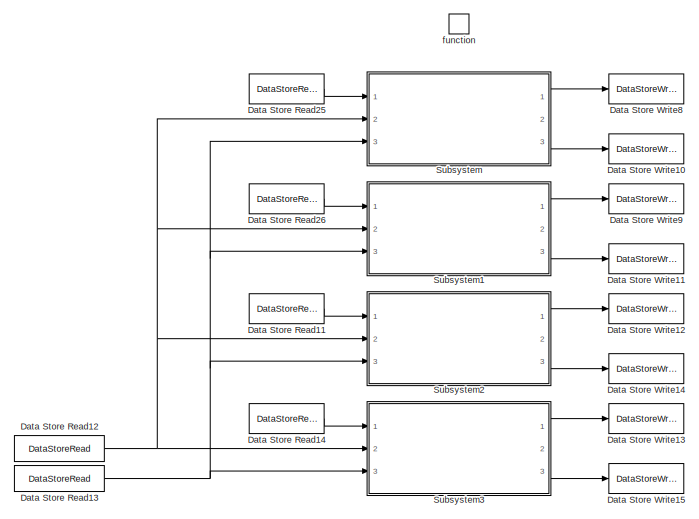
[diagram: INT/Motor Control/Current_PI/DEKF_Filter - part 1/10, top left region]
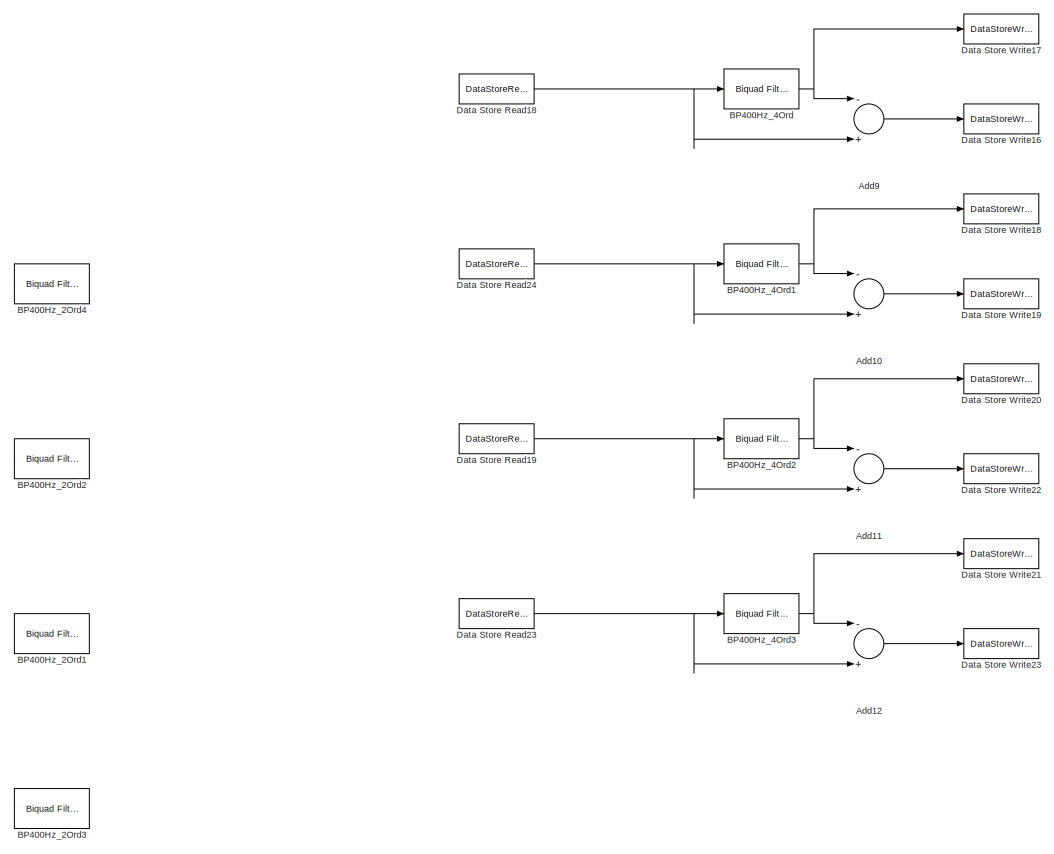
[diagram: INT/Motor Control/Current_PI/DEKF_Filter - part 2/10, top left region]
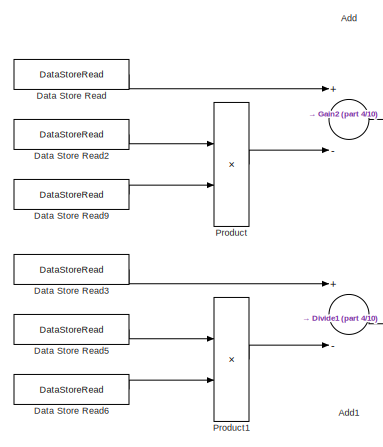
[diagram: INT/Motor Control/Current_PI/DEKF_Filter - part 3/10, top center region]
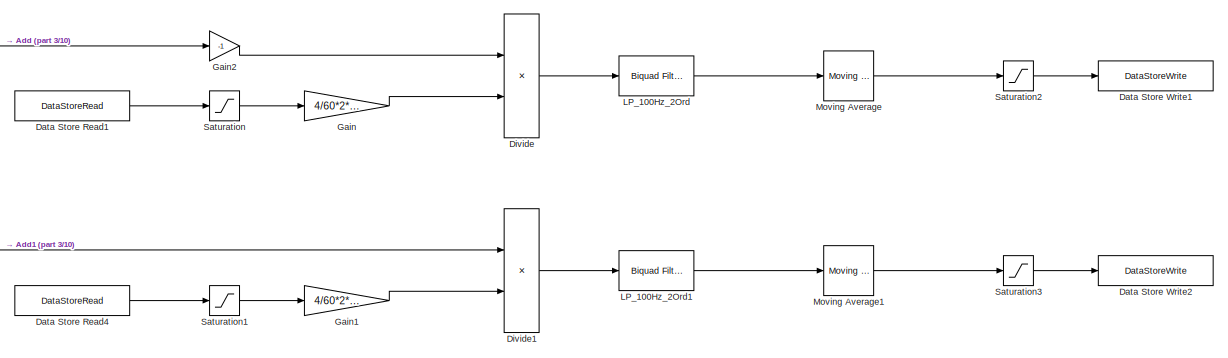
[diagram: INT/Motor Control/Current_PI/DEKF_Filter - part 4/10, top right region]
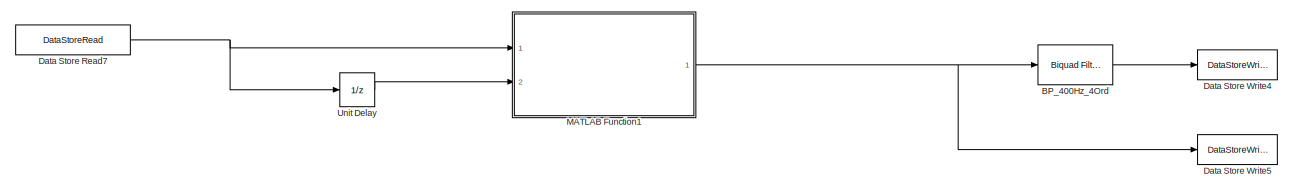
[diagram: INT/Motor Control/Current_PI/DEKF_Filter - part 5/10, central region]
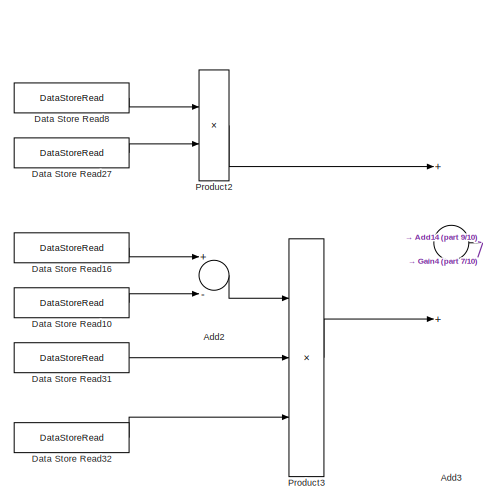
[diagram: INT/Motor Control/Current_PI/DEKF_Filter - part 6/10, central region]
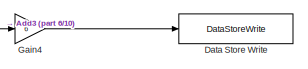
[diagram: INT/Motor Control/Current_PI/DEKF_Filter - part 7/10, middle right region]
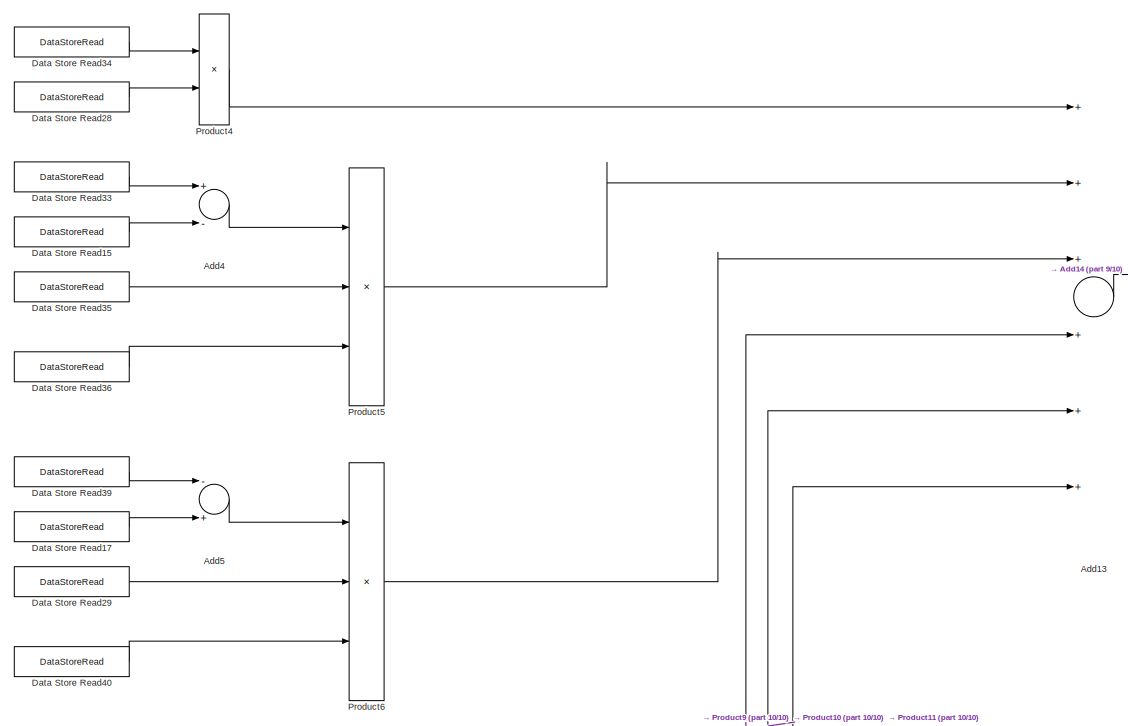
[diagram: INT/Motor Control/Current_PI/DEKF_Filter - part 8/10, bottom center region]
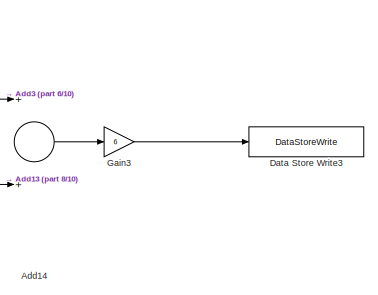
[diagram: INT/Motor Control/Current_PI/DEKF_Filter - part 9/10, middle right region]
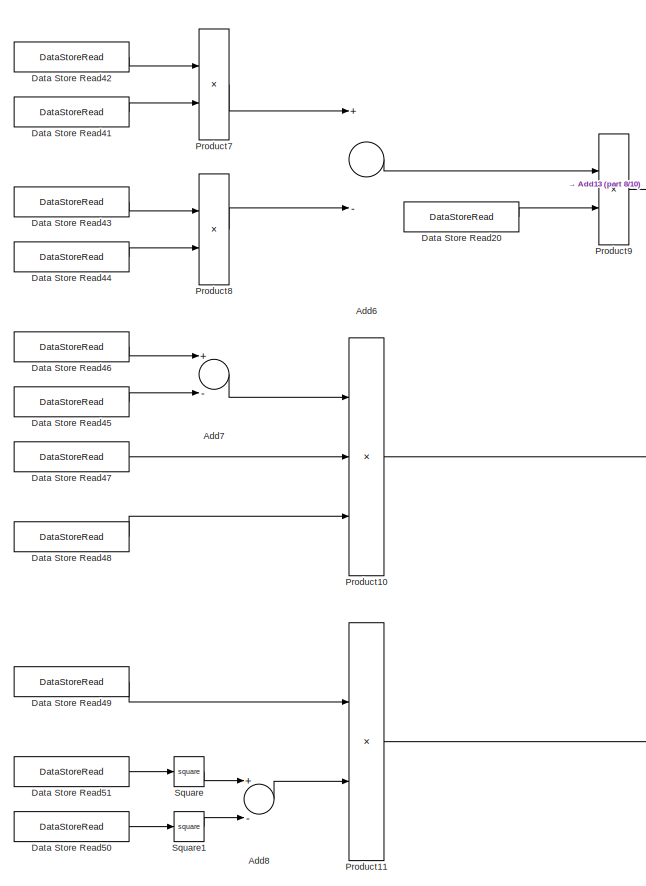
[diagram: INT/Motor Control/Current_PI/DEKF_Filter - part 10/10, bottom center region]
BLOCK [SubSystem] INT/Motor Control/Current_PI/DEKF_Filter
  Commented = on
  Ports = [0, 0, 0, 1]
  RequestExecContextInheritance = off
  TreatAsAtomicUnit = on
BLOCK [Sum] INT/Motor Control/Current_PI/DEKF_Filter/Add
  InputSameDT = off
  Inputs = +-
  OutDataTypeStr = Inherit: Inherit via internal rule
  Ports = [2, 1]
  SaturateOnIntegerOverflow = off
BLOCK [Sum] INT/Motor Control/Current_PI/DEKF_Filter/Add1
  InputSameDT = off
  Inputs = +-
  OutDataTypeStr = Inherit: Inherit via internal rule
  Ports = [2, 1]
  SaturateOnIntegerOverflow = off
BLOCK [Sum] INT/Motor Control/Current_PI/DEKF_Filter/Add10
  InputSameDT = off
  Inputs = -+
  OutDataTypeStr = Inherit: Inherit via internal rule
  Ports = [2, 1]
  SaturateOnIntegerOverflow = off
BLOCK [Sum] INT/Motor Control/Current_PI/DEKF_Filter/Add11
  InputSameDT = off
  Inputs = -+
  OutDataTypeStr = Inherit: Inherit via internal rule
  Ports = [2, 1]
  SaturateOnIntegerOverflow = off
BLOCK [Sum] INT/Motor Control/Current_PI/DEKF_Filter/Add12
  InputSameDT = off
  Inputs = -+
  OutDataTypeStr = Inherit: Inherit via internal rule
  Ports = [2, 1]
  SaturateOnIntegerOverflow = off
BLOCK [Sum] INT/Motor Control/Current_PI/DEKF_Filter/Add13
  InputSameDT = off
  Inputs = ++++++
  OutDataTypeStr = Inherit: Inherit via internal rule
  Ports = [6, 1]
  SaturateOnIntegerOverflow = off
BLOCK [Sum] INT/Motor Control/Current_PI/DEKF_Filter/Add14
  InputSameDT = off
  OutDataTypeStr = Inherit: Inherit via internal rule
  Ports = [2, 1]
  SaturateOnIntegerOverflow = off
BLOCK [Sum] INT/Motor Control/Current_PI/DEKF_Filter/Add2
  InputSameDT = off
  Inputs = +-
  OutDataTypeStr = Inherit: Inherit via internal rule
  Ports = [2, 1]
  SaturateOnIntegerOverflow = off
BLOCK [Sum] INT/Motor Control/Current_PI/DEKF_Filter/Add3
  InputSameDT = off
  OutDataTypeStr = Inherit: Inherit via internal rule
  Ports = [2, 1]
  SaturateOnIntegerOverflow = off
BLOCK [Sum] INT/Motor Control/Current_PI/DEKF_Filter/Add4
  InputSameDT = off
  Inputs = +-
  OutDataTypeStr = Inherit: Inherit via internal rule
  Ports = [2, 1]
  SaturateOnIntegerOverflow = off
BLOCK [Sum] INT/Motor Control/Current_PI/DEKF_Filter/Add5
  InputSameDT = off
  Inputs = -+
  OutDataTypeStr = Inherit: Inherit via internal rule
  Ports = [2, 1]
  SaturateOnIntegerOverflow = off
BLOCK [Sum] INT/Motor Control/Current_PI/DEKF_Filter/Add6
  InputSameDT = off
  Inputs = +-
  OutDataTypeStr = Inherit: Inherit via internal rule
  Ports = [2, 1]
  SaturateOnIntegerOverflow = off
BLOCK [Sum] INT/Motor Control/Current_PI/DEKF_Filter/Add7
  InputSameDT = off
  Inputs = +-
  OutDataTypeStr = Inherit: Inherit via internal rule
  Ports = [2, 1]
  SaturateOnIntegerOverflow = off
BLOCK [Sum] INT/Motor Control/Current_PI/DEKF_Filter/Add8
  InputSameDT = off
  Inputs = +-
  OutDataTypeStr = Inherit: Inherit via internal rule
  Ports = [2, 1]
  SaturateOnIntegerOverflow = off
BLOCK [Sum] INT/Motor Control/Current_PI/DEKF_Filter/Add9
  InputSameDT = off
  Inputs = -+
  OutDataTypeStr = Inherit: Inherit via internal rule
  Ports = [2, 1]
  SaturateOnIntegerOverflow = off
BLOCK [Reference] INT/Motor Control/Current_PI/DEKF_Filter/BP400Hz_2Ord1  REF=dsparch4/Biquad Filter
  Commented = on
  Ports = [1, 1]
  SourceBlock = dsparch4/Biquad Filter
  SourceProductBaseCode = DS
  SourceProductName = DSP System Toolbox
  SourceType = Biquad Filter
  Tag = BlockMethodSubSystem
  UserDataPersistent = on
BLOCK [Reference] INT/Motor Control/Current_PI/DEKF_Filter/BP400Hz_2Ord2  REF=dsparch4/Biquad Filter
  Commented = on
  Ports = [1, 1]
  SourceBlock = dsparch4/Biquad Filter
  SourceProductBaseCode = DS
  SourceProductName = DSP System Toolbox
  SourceType = Biquad Filter
  Tag = BlockMethodSubSystem
  UserDataPersistent = on
BLOCK [Reference] INT/Motor Control/Current_PI/DEKF_Filter/BP400Hz_2Ord3  REF=dsparch4/Biquad Filter
  Commented = on
  Ports = [1, 1]
  SourceBlock = dsparch4/Biquad Filter
  SourceProductBaseCode = DS
  SourceProductName = DSP System Toolbox
  SourceType = Biquad Filter
  Tag = BlockMethodSubSystem
  UserDataPersistent = on
BLOCK [Reference] INT/Motor Control/Current_PI/DEKF_Filter/BP400Hz_2Ord4  REF=dsparch4/Biquad Filter
  Commented = on
  Ports = [1, 1]
  SourceBlock = dsparch4/Biquad Filter
  SourceProductBaseCode = DS
  SourceProductName = DSP System Toolbox
  SourceType = Biquad Filter
  Tag = BlockMethodSubSystem
  UserDataPersistent = on
BLOCK [Reference] INT/Motor Control/Current_PI/DEKF_Filter/BP400Hz_4Ord  REF=dsparch4/Biquad Filter
  Ports = [1, 1]
  SourceBlock = dsparch4/Biquad Filter
  SourceProductBaseCode = DS
  SourceProductName = DSP System Toolbox
  SourceType = Biquad Filter
  Tag = BlockMethodSubSystem
  UserDataPersistent = on
BLOCK [Reference] INT/Motor Control/Current_PI/DEKF_Filter/BP400Hz_4Ord1  REF=dsparch4/Biquad Filter
  Ports = [1, 1]
  SourceBlock = dsparch4/Biquad Filter
  SourceProductBaseCode = DS
  SourceProductName = DSP System Toolbox
  SourceType = Biquad Filter
  Tag = BlockMethodSubSystem
  UserDataPersistent = on
BLOCK [Reference] INT/Motor Control/Current_PI/DEKF_Filter/BP400Hz_4Ord2  REF=dsparch4/Biquad Filter
  Ports = [1, 1]
  SourceBlock = dsparch4/Biquad Filter
  SourceProductBaseCode = DS
  SourceProductName = DSP System Toolbox
  SourceType = Biquad Filter
  Tag = BlockMethodSubSystem
  UserDataPersistent = on
BLOCK [Reference] INT/Motor Control/Current_PI/DEKF_Filter/BP400Hz_4Ord3  REF=dsparch4/Biquad Filter
  Ports = [1, 1]
  SourceBlock = dsparch4/Biquad Filter
  SourceProductBaseCode = DS
  SourceProductName = DSP System Toolbox
  SourceType = Biquad Filter
  Tag = BlockMethodSubSystem
  UserDataPersistent = on
BLOCK [Reference] INT/Motor Control/Current_PI/DEKF_Filter/BP_400Hz_4Ord  REF=dsparch4/Biquad Filter
  Ports = [1, 1]
  SourceBlock = dsparch4/Biquad Filter
  SourceProductBaseCode = DS
  SourceProductName = DSP System Toolbox
  SourceType = Biquad Filter
  Tag = BlockMethodSubSystem
  UserDataPersistent = on
BLOCK [DataStoreRead] INT/Motor Control/Current_PI/DEKF_Filter/Data Store Read
  DataStoreName = DEKF_Ud0
  Ports = [0, 1]
BLOCK [DataStoreRead] INT/Motor Control/Current_PI/DEKF_Filter/Data Store Read1
  DataStoreName = N_REF
  Ports = [0, 1]
BLOCK [DataStoreRead] INT/Motor Control/Current_PI/DEKF_Filter/Data Store Read10
  DataStoreName = Tr_Lqap
  Ports = [0, 1]
BLOCK [DataStoreRead] INT/Motor Control/Current_PI/DEKF_Filter/Data Store Read11
  Commented = on
  DataStoreName = UDOUT_Comp
  Ports = [0, 1]
BLOCK [DataStoreRead] INT/Motor Control/Current_PI/DEKF_Filter/Data Store Read12
  Commented = on
  DataStoreName = HFI_FRQ
  Ports = [0, 1]
BLOCK [DataStoreRead] INT/Motor Control/Current_PI/DEKF_Filter/Data Store Read13
  Commented = on
  DataStoreName = DEKF_K
  Ports = [0, 1]
BLOCK [DataStoreRead] INT/Motor Control/Current_PI/DEKF_Filter/Data Store Read14
  Commented = on
  DataStoreName = UQOUT_Comp
  Ports = [0, 1]
BLOCK [DataStoreRead] INT/Motor Control/Current_PI/DEKF_Filter/Data Store Read15
  DataStoreName = Tr_Lqinc
  Ports = [0, 1]
BLOCK [DataStoreRead] INT/Motor Control/Current_PI/DEKF_Filter/Data Store Read16
  DataStoreName = Tr_Ldap
  Ports = [0, 1]
BLOCK [DataStoreRead] INT/Motor Control/Current_PI/DEKF_Filter/Data Store Read17
  DataStoreName = Tr_Ldinc
  Ports = [0, 1]
BLOCK [DataStoreRead] INT/Motor Control/Current_PI/DEKF_Filter/Data Store Read18
  DataStoreName = Id_FBK
  Ports = [0, 1]
BLOCK [DataStoreRead] INT/Motor Control/Current_PI/DEKF_Filter/Data Store Read19
  DataStoreName = UDOUT_Comp
  Ports = [0, 1]
BLOCK [DataStoreRead] INT/Motor Control/Current_PI/DEKF_Filter/Data Store Read2
  DataStoreName = Phi_Rs
  Ports = [0, 1]
BLOCK [DataStoreRead] INT/Motor Control/Current_PI/DEKF_Filter/Data Store Read20
  DataStoreName = Tr_Ldqinc
  Ports = [0, 1]
BLOCK [DataStoreRead] INT/Motor Control/Current_PI/DEKF_Filter/Data Store Read23
  DataStoreName = UQOUT_Comp
  Ports = [0, 1]
BLOCK [DataStoreRead] INT/Motor Control/Current_PI/DEKF_Filter/Data Store Read24
  DataStoreName = Iq_FBK
  Ports = [0, 1]
BLOCK [DataStoreRead] INT/Motor Control/Current_PI/DEKF_Filter/Data Store Read25
  Commented = on
  DataStoreName = Id_FBK
  Ports = [0, 1]
BLOCK [DataStoreRead] INT/Motor Control/Current_PI/DEKF_Filter/Data Store Read26
  Commented = on
  DataStoreName = Iq_FBK
  Ports = [0, 1]
BLOCK [DataStoreRead] INT/Motor Control/Current_PI/DEKF_Filter/Data Store Read27
  DataStoreName = DEKF_Iq0
  Ports = [0, 1]
BLOCK [DataStoreRead] INT/Motor Control/Current_PI/DEKF_Filter/Data Store Read28
  DataStoreName = DEKF_Iqh
  Ports = [0, 1]
BLOCK [DataStoreRead] INT/Motor Control/Current_PI/DEKF_Filter/Data Store Read29
  DataStoreName = DEKF_Iq0
  Ports = [0, 1]
BLOCK [DataStoreRead] INT/Motor Control/Current_PI/DEKF_Filter/Data Store Read3
  DataStoreName = DEKF_Uq0
  Ports = [0, 1]
BLOCK [DataStoreRead] INT/Motor Control/Current_PI/DEKF_Filter/Data Store Read31
  DataStoreName = DEKF_Id0
  Ports = [0, 1]
BLOCK [DataStoreRead] INT/Motor Control/Current_PI/DEKF_Filter/Data Store Read32
  DataStoreName = DEKF_Iq0
  Ports = [0, 1]
BLOCK [DataStoreRead] INT/Motor Control/Current_PI/DEKF_Filter/Data Store Read33
  DataStoreName = Tr_Ldap
  Ports = [0, 1]
BLOCK [DataStoreRead] INT/Motor Control/Current_PI/DEKF_Filter/Data Store Read34
  DataStoreName = Tr_Phidm
  Ports = [0, 1]
BLOCK [DataStoreRead] INT/Motor Control/Current_PI/DEKF_Filter/Data Store Read35
  DataStoreName = DEKF_Id0
  Ports = [0, 1]
BLOCK [DataStoreRead] INT/Motor Control/Current_PI/DEKF_Filter/Data Store Read36
  DataStoreName = DEKF_Iqh
  Ports = [0, 1]
BLOCK [DataStoreRead] INT/Motor Control/Current_PI/DEKF_Filter/Data Store Read39
  DataStoreName = Tr_Lqap
  Ports = [0, 1]
BLOCK [DataStoreRead] INT/Motor Control/Current_PI/DEKF_Filter/Data Store Read4
  DataStoreName = N_REF
  Ports = [0, 1]
BLOCK [DataStoreRead] INT/Motor Control/Current_PI/DEKF_Filter/Data Store Read40
  DataStoreName = DEKF_Idh
  Ports = [0, 1]
BLOCK [DataStoreRead] INT/Motor Control/Current_PI/DEKF_Filter/Data Store Read41
  DataStoreName = DEKF_Iqh
  Ports = [0, 1]
BLOCK [DataStoreRead] INT/Motor Control/Current_PI/DEKF_Filter/Data Store Read42
  DataStoreName = DEKF_Iq0
  Ports = [0, 1]
BLOCK [DataStoreRead] INT/Motor Control/Current_PI/DEKF_Filter/Data Store Read43
  DataStoreName = DEKF_Id0
  Ports = [0, 1]
BLOCK [DataStoreRead] INT/Motor Control/Current_PI/DEKF_Filter/Data Store Read44
  DataStoreName = DEKF_Idh
  Ports = [0, 1]
BLOCK [DataStoreRead] INT/Motor Control/Current_PI/DEKF_Filter/Data Store Read45
  DataStoreName = Tr_Lqinc
  Ports = [0, 1]
BLOCK [DataStoreRead] INT/Motor Control/Current_PI/DEKF_Filter/Data Store Read46
  DataStoreName = Tr_Ldinc
  Ports = [0, 1]
BLOCK [DataStoreRead] INT/Motor Control/Current_PI/DEKF_Filter/Data Store Read47
  DataStoreName = DEKF_Idh
  Ports = [0, 1]
BLOCK [DataStoreRead] INT/Motor Control/Current_PI/DEKF_Filter/Data Store Read48
  DataStoreName = DEKF_Iqh
  Ports = [0, 1]
BLOCK [DataStoreRead] INT/Motor Control/Current_PI/DEKF_Filter/Data Store Read49
  DataStoreName = Tr_Ldqinc
  Ports = [0, 1]
BLOCK [DataStoreRead] INT/Motor Control/Current_PI/DEKF_Filter/Data Store Read5
  DataStoreName = Phi_Rs
  Ports = [0, 1]
BLOCK [DataStoreRead] INT/Motor Control/Current_PI/DEKF_Filter/Data Store Read50
  DataStoreName = DEKF_Idh
  Ports = [0, 1]
BLOCK [DataStoreRead] INT/Motor Control/Current_PI/DEKF_Filter/Data Store Read51
  DataStoreName = DEKF_Iqh
  Ports = [0, 1]
BLOCK [DataStoreRead] INT/Motor Control/Current_PI/DEKF_Filter/Data Store Read6
  DataStoreName = Iq_REF
  Ports = [0, 1]
BLOCK [DataStoreRead] INT/Motor Control/Current_PI/DEKF_Filter/Data Store Read7
  DataStoreName = ResloverAng
  Ports = [0, 1]
BLOCK [DataStoreRead] INT/Motor Control/Current_PI/DEKF_Filter/Data Store Read8
  DataStoreName = Tr_Phidm
  Ports = [0, 1]
BLOCK [DataStoreRead] INT/Motor Control/Current_PI/DEKF_Filter/Data Store Read9
  DataStoreName = Id_REF
  Ports = [0, 1]
BLOCK [DataStoreWrite] INT/Motor Control/Current_PI/DEKF_Filter/Data Store Write
  DataStoreName = Tr_Tem
  Ports = [1]
BLOCK [DataStoreWrite] INT/Motor Control/Current_PI/DEKF_Filter/Data Store Write1
  DataStoreName = Phi_qOb
  Ports = [1]
BLOCK [DataStoreWrite] INT/Motor Control/Current_PI/DEKF_Filter/Data Store Write10
  Commented = on
  DataStoreName = DEKF_Id0
  Ports = [1]
BLOCK [DataStoreWrite] INT/Motor Control/Current_PI/DEKF_Filter/Data Store Write11
  Commented = on
  DataStoreName = DEKF_Iq0
  Ports = [1]
BLOCK [DataStoreWrite] INT/Motor Control/Current_PI/DEKF_Filter/Data Store Write12
  Commented = on
  DataStoreName = DEKF_Udh
  Ports = [1]
BLOCK [DataStoreWrite] INT/Motor Control/Current_PI/DEKF_Filter/Data Store Write13
  Commented = on
  DataStoreName = DEKF_Uqh
  Ports = [1]
BLOCK [DataStoreWrite] INT/Motor Control/Current_PI/DEKF_Filter/Data Store Write14
  Commented = on
  DataStoreName = DEKF_Ud0
  Ports = [1]
BLOCK [DataStoreWrite] INT/Motor Control/Current_PI/DEKF_Filter/Data Store Write15
  Commented = on
  DataStoreName = DEKF_Uq0
  Ports = [1]
BLOCK [DataStoreWrite] INT/Motor Control/Current_PI/DEKF_Filter/Data Store Write16
  DataStoreName = DEKF_Id0
  Ports = [1]
BLOCK [DataStoreWrite] INT/Motor Control/Current_PI/DEKF_Filter/Data Store Write17
  DataStoreName = DEKF_Idh
  Ports = [1]
BLOCK [DataStoreWrite] INT/Motor Control/Current_PI/DEKF_Filter/Data Store Write18
  DataStoreName = DEKF_Iqh
  Ports = [1]
BLOCK [DataStoreWrite] INT/Motor Control/Current_PI/DEKF_Filter/Data Store Write19
  DataStoreName = DEKF_Iq0
  Ports = [1]
BLOCK [DataStoreWrite] INT/Motor Control/Current_PI/DEKF_Filter/Data Store Write2
  DataStoreName = Phi_dOb
  Ports = [1]
BLOCK [DataStoreWrite] INT/Motor Control/Current_PI/DEKF_Filter/Data Store Write20
  DataStoreName = DEKF_Udh
  Ports = [1]
BLOCK [DataStoreWrite] INT/Motor Control/Current_PI/DEKF_Filter/Data Store Write21
  DataStoreName = DEKF_Uqh
  Ports = [1]
BLOCK [DataStoreWrite] INT/Motor Control/Current_PI/DEKF_Filter/Data Store Write22
  DataStoreName = DEKF_Ud0
  Ports = [1]
BLOCK [DataStoreWrite] INT/Motor Control/Current_PI/DEKF_Filter/Data Store Write23
  DataStoreName = DEKF_Uq0
  Ports = [1]
BLOCK [DataStoreWrite] INT/Motor Control/Current_PI/DEKF_Filter/Data Store Write3
  DataStoreName = Tr_Ttotal
  Ports = [1]
BLOCK [DataStoreWrite] INT/Motor Control/Current_PI/DEKF_Filter/Data Store Write4
  DataStoreName = N_400Hz
  Ports = [1]
BLOCK [DataStoreWrite] INT/Motor Control/Current_PI/DEKF_Filter/Data Store Write5
  DataStoreName = N_NOFILTER
  Ports = [1]
BLOCK [DataStoreWrite] INT/Motor Control/Current_PI/DEKF_Filter/Data Store Write8
  Commented = on
  DataStoreName = DEKF_Idh
  Ports = [1]
BLOCK [DataStoreWrite] INT/Motor Control/Current_PI/DEKF_Filter/Data Store Write9
  Commented = on
  DataStoreName = DEKF_Iqh
  Ports = [1]
BLOCK [Product] INT/Motor Control/Current_PI/DEKF_Filter/Divide
  InputSameDT = off
  Inputs = */
  OutDataTypeStr = Inherit: Inherit via internal rule
  Ports = [2, 1]
  RndMeth = Floor
  SaturateOnIntegerOverflow = off
BLOCK [Product] INT/Motor Control/Current_PI/DEKF_Filter/Divide1
  InputSameDT = off
  Inputs = */
  OutDataTypeStr = Inherit: Inherit via internal rule
  Ports = [2, 1]
  RndMeth = Floor
  SaturateOnIntegerOverflow = off
BLOCK [Gain] INT/Motor Control/Current_PI/DEKF_Filter/Gain
  Gain = 4/60*2*pi
  OutDataTypeStr = Inherit: Inherit via internal rule
  ParamDataTypeStr = Inherit: Inherit via internal rule
  SaturateOnIntegerOverflow = off
BLOCK [Gain] INT/Motor Control/Current_PI/DEKF_Filter/Gain1
  Gain = 4/60*2*pi
  OutDataTypeStr = Inherit: Inherit via internal rule
  ParamDataTypeStr = Inherit: Inherit via internal rule
  SaturateOnIntegerOverflow = off
BLOCK [Gain] INT/Motor Control/Current_PI/DEKF_Filter/Gain2
  Gain = -1
  OutDataTypeStr = Inherit: Inherit via internal rule
  ParamDataTypeStr = Inherit: Inherit via internal rule
  SaturateOnIntegerOverflow = off
BLOCK [Gain] INT/Motor Control/Current_PI/DEKF_Filter/Gain3
  Gain = 6
  OutDataTypeStr = Inherit: Inherit via internal rule
  ParamDataTypeStr = Inherit: Inherit via internal rule
  SaturateOnIntegerOverflow = off
BLOCK [Gain] INT/Motor Control/Current_PI/DEKF_Filter/Gain4
  Gain = 6
  OutDataTypeStr = Inherit: Inherit via internal rule
  ParamDataTypeStr = Inherit: Inherit via internal rule
  SaturateOnIntegerOverflow = off
BLOCK [Reference] INT/Motor Control/Current_PI/DEKF_Filter/LP_100Hz_2Ord  REF=dsparch4/Biquad Filter
  Ports = [1, 1]
  SourceBlock = dsparch4/Biquad Filter
  SourceProductBaseCode = DS
  SourceProductName = DSP System Toolbox
  SourceType = Biquad Filter
  Tag = BlockMethodSubSystem
  UserDataPersistent = on
BLOCK [Reference] INT/Motor Control/Current_PI/DEKF_Filter/LP_100Hz_2Ord1  REF=dsparch4/Biquad Filter
  Ports = [1, 1]
  SourceBlock = dsparch4/Biquad Filter
  SourceProductBaseCode = DS
  SourceProductName = DSP System Toolbox
  SourceType = Biquad Filter
  Tag = BlockMethodSubSystem
  UserDataPersistent = on
BLOCK [SubSystem] INT/Motor Control/Current_PI/DEKF_Filter/MATLAB Function1
  ErrorFcn = Stateflow.Translate.translate
  PermitHierarchicalResolution = ExplicitOnly
  Ports = [2, 1]
  RequestExecContextInheritance = off
  SFBlockType = MATLAB Function
  TreatAsAtomicUnit = on
BLOCK [Demux] INT/Motor Control/Current_PI/DEKF_Filter/MATLAB Function1/ Demux 
  Outputs = 1
  Ports = [1, 1]
BLOCK [S-Function] INT/Motor Control/Current_PI/DEKF_Filter/MATLAB Function1/ SFunction 
  EnableBusSupport = on
  FunctionName = sf_sfun
  PortCounts = [2 2]
  Ports = [2, 2]
  SFcnIsStateOwnerBlock = off
  SFunctionDeploymentMode = off
  Tag = Stateflow S-Function 48
BLOCK [Terminator] INT/Motor Control/Current_PI/DEKF_Filter/MATLAB Function1/ Terminator 
BLOCK [Outport] INT/Motor Control/Current_PI/DEKF_Filter/MATLAB Function1/speed
  IconDisplay = Port number
BLOCK [Inport] INT/Motor Control/Current_PI/DEKF_Filter/MATLAB Function1/theta
  IconDisplay = Port number
BLOCK [Inport] INT/Motor Control/Current_PI/DEKF_Filter/MATLAB Function1/theta_old
  IconDisplay = Port number
  Port = 2
BLOCK [Reference] INT/Motor Control/Current_PI/DEKF_Filter/Moving Average  REF=dspstat3/Moving
Average
  Ports = [1, 1]
  SourceBlock = dspstat3/Moving\nAverage
  SourceProductBaseCode = DS
  SourceProductName = DSP System Toolbox
  SourceType = dsp.simulink.MovingAverage
BLOCK [Reference] INT/Motor Control/Current_PI/DEKF_Filter/Moving Average1  REF=dspstat3/Moving
Average
  Ports = [1, 1]
  SourceBlock = dspstat3/Moving\nAverage
  SourceProductBaseCode = DS
  SourceProductName = DSP System Toolbox
  SourceType = dsp.simulink.MovingAverage
BLOCK [Product] INT/Motor Control/Current_PI/DEKF_Filter/Product
  InputSameDT = off
  OutDataTypeStr = Inherit: Inherit via internal rule
  Ports = [2, 1]
  RndMeth = Floor
  SaturateOnIntegerOverflow = off
BLOCK [Product] INT/Motor Control/Current_PI/DEKF_Filter/Product1
  InputSameDT = off
  OutDataTypeStr = Inherit: Inherit via internal rule
  Ports = [2, 1]
  RndMeth = Floor
  SaturateOnIntegerOverflow = off
BLOCK [Product] INT/Motor Control/Current_PI/DEKF_Filter/Product10
  InputSameDT = off
  Inputs = 3
  OutDataTypeStr = Inherit: Inherit via internal rule
  Ports = [3, 1]
  RndMeth = Floor
  SaturateOnIntegerOverflow = off
BLOCK [Product] INT/Motor Control/Current_PI/DEKF_Filter/Product11
  InputSameDT = off
  OutDataTypeStr = Inherit: Inherit via internal rule
  Ports = [2, 1]
  RndMeth = Floor
  SaturateOnIntegerOverflow = off
BLOCK [Product] INT/Motor Control/Current_PI/DEKF_Filter/Product2
  InputSameDT = off
  OutDataTypeStr = Inherit: Inherit via internal rule
  Ports = [2, 1]
  RndMeth = Floor
  SaturateOnIntegerOverflow = off
BLOCK [Product] INT/Motor Control/Current_PI/DEKF_Filter/Product3
  InputSameDT = off
  Inputs = 3
  OutDataTypeStr = Inherit: Inherit via internal rule
  Ports = [3, 1]
  RndMeth = Floor
  SaturateOnIntegerOverflow = off
BLOCK [Product] INT/Motor Control/Current_PI/DEKF_Filter/Product4
  InputSameDT = off
  OutDataTypeStr = Inherit: Inherit via internal rule
  Ports = [2, 1]
  RndMeth = Floor
  SaturateOnIntegerOverflow = off
BLOCK [Product] INT/Motor Control/Current_PI/DEKF_Filter/Product5
  InputSameDT = off
  Inputs = 3
  OutDataTypeStr = Inherit: Inherit via internal rule
  Ports = [3, 1]
  RndMeth = Floor
  SaturateOnIntegerOverflow = off
BLOCK [Product] INT/Motor Control/Current_PI/DEKF_Filter/Product6
  InputSameDT = off
  Inputs = 3
  OutDataTypeStr = Inherit: Inherit via internal rule
  Ports = [3, 1]
  RndMeth = Floor
  SaturateOnIntegerOverflow = off
BLOCK [Product] INT/Motor Control/Current_PI/DEKF_Filter/Product7
  InputSameDT = off
  OutDataTypeStr = Inherit: Inherit via internal rule
  Ports = [2, 1]
  RndMeth = Floor
  SaturateOnIntegerOverflow = off
BLOCK [Product] INT/Motor Control/Current_PI/DEKF_Filter/Product8
  InputSameDT = off
  OutDataTypeStr = Inherit: Inherit via internal rule
  Ports = [2, 1]
  RndMeth = Floor
  SaturateOnIntegerOverflow = off
BLOCK [Product] INT/Motor Control/Current_PI/DEKF_Filter/Product9
  InputSameDT = off
  OutDataTypeStr = Inherit: Inherit via internal rule
  Ports = [2, 1]
  RndMeth = Floor
  SaturateOnIntegerOverflow = off
BLOCK [Saturate] INT/Motor Control/Current_PI/DEKF_Filter/Saturation
  InputPortMap = u0
  LowerLimit = 0.5
  Ports = [1, 1]
  UpperLimit = 9000
BLOCK [Saturate] INT/Motor Control/Current_PI/DEKF_Filter/Saturation1
  InputPortMap = u0
  LowerLimit = 0.5
  Ports = [1, 1]
  UpperLimit = 9000
BLOCK [Saturate] INT/Motor Control/Current_PI/DEKF_Filter/Saturation2
  InputPortMap = u0
  LowerLimit = -0.15
  Ports = [1, 1]
  UpperLimit = 0.15
BLOCK [Saturate] INT/Motor Control/Current_PI/DEKF_Filter/Saturation3
  InputPortMap = u0
  LowerLimit = -0.1
  Ports = [1, 1]
  UpperLimit = 0.1
BLOCK [Math] INT/Motor Control/Current_PI/DEKF_Filter/Square
  Operator = square
  OutDataTypeStr = single
  OutputSignalType = real
  Ports = [1, 1]
  SignedPower = off
BLOCK [Math] INT/Motor Control/Current_PI/DEKF_Filter/Square1
  Operator = square
  OutDataTypeStr = single
  OutputSignalType = real
  Ports = [1, 1]
  SignedPower = off
BLOCK [SubSystem] INT/Motor Control/Current_PI/DEKF_Filter/Subsystem
  Commented = on
  Ports = [3, 3]
  RequestExecContextInheritance = off
  TreatAsAtomicUnit = on
BLOCK [Sum] INT/Motor Control/Current_PI/DEKF_Filter/Subsystem/Add
  InputSameDT = off
  Inputs = -+
  OutDataTypeStr = Inherit: Inherit via internal rule
  Ports = [2, 1]
  SaturateOnIntegerOverflow = off
BLOCK [Sum] INT/Motor Control/Current_PI/DEKF_Filter/Subsystem/Add1
  InputSameDT = off
  Inputs = +-
  OutDataTypeStr = Inherit: Inherit via internal rule
  Ports = [2, 1]
  SaturateOnIntegerOverflow = off
BLOCK [Sum] INT/Motor Control/Current_PI/DEKF_Filter/Subsystem/Add2
  InputSameDT = off
  Inputs = +-
  OutDataTypeStr = Inherit: Inherit via internal rule
  Ports = [2, 1]
  SaturateOnIntegerOverflow = off
BLOCK [Outport] INT/Motor Control/Current_PI/DEKF_Filter/Subsystem/BandStopSignal
  IconDisplay = Port number
  Port = 3
BLOCK [DiscreteIntegrator] INT/Motor Control/Current_PI/DEKF_Filter/Subsystem/Discrete-Time Integrator
  ICPrevOutput = DiscIntNeverNeededParam
  ICPrevScaledInput = DiscIntNeverNeededParam
  InitialConditionSetting = Auto
  Ports = [1, 1]
  SampleTime = -1
BLOCK [DiscreteIntegrator] INT/Motor Control/Current_PI/DEKF_Filter/Subsystem/Discrete-Time Integrator1
  ICPrevOutput = DiscIntNeverNeededParam
  ICPrevScaledInput = DiscIntNeverNeededParam
  InitialConditionSetting = Auto
  Ports = [1, 1]
  SampleTime = -1
BLOCK [Inport] INT/Motor Control/Current_PI/DEKF_Filter/Subsystem/Frq 
  IconDisplay = Port number
  Port = 2
BLOCK [Gain] INT/Motor Control/Current_PI/DEKF_Filter/Subsystem/Gain1
  Gain = 2*pi
  OutDataTypeStr = Inherit: Inherit via internal rule
  ParamDataTypeStr = Inherit: Inherit via internal rule
  SaturateOnIntegerOverflow = off
BLOCK [Inport] INT/Motor Control/Current_PI/DEKF_Filter/Subsystem/InputSignal 
  IconDisplay = Port number
BLOCK [Inport] INT/Motor Control/Current_PI/DEKF_Filter/Subsystem/K
  IconDisplay = Port number
  Port = 3
BLOCK [Outport] INT/Motor Control/Current_PI/DEKF_Filter/Subsystem/OutputSignal
  IconDisplay = Port number
BLOCK [Outport] INT/Motor Control/Current_PI/DEKF_Filter/Subsystem/OutputSignal90Deg
  IconDisplay = Port number
  Port = 2
BLOCK [Product] INT/Motor Control/Current_PI/DEKF_Filter/Subsystem/Product
  InputSameDT = off
  OutDataTypeStr = Inherit: Inherit via internal rule
  Ports = [2, 1]
  RndMeth = Floor
  SaturateOnIntegerOverflow = off
BLOCK [Product] INT/Motor Control/Current_PI/DEKF_Filter/Subsystem/Product1
  InputSameDT = off
  OutDataTypeStr = Inherit: Inherit via internal rule
  Ports = [2, 1]
  RndMeth = Floor
  SaturateOnIntegerOverflow = off
BLOCK [Product] INT/Motor Control/Current_PI/DEKF_Filter/Subsystem/Product2
  InputSameDT = off
  OutDataTypeStr = Inherit: Inherit via internal rule
  Ports = [2, 1]
  RndMeth = Floor
  SaturateOnIntegerOverflow = off
BLOCK [SubSystem] INT/Motor Control/Current_PI/DEKF_Filter/Subsystem1
  Commented = on
  Ports = [3, 3]
  RequestExecContextInheritance = off
  TreatAsAtomicUnit = on
BLOCK [Sum] INT/Motor Control/Current_PI/DEKF_Filter/Subsystem1/Add
  InputSameDT = off
  Inputs = -+
  OutDataTypeStr = Inherit: Inherit via internal rule
  Ports = [2, 1]
  SaturateOnIntegerOverflow = off
BLOCK [Sum] INT/Motor Control/Current_PI/DEKF_Filter/Subsystem1/Add1
  InputSameDT = off
  Inputs = +-
  OutDataTypeStr = Inherit: Inherit via internal rule
  Ports = [2, 1]
  SaturateOnIntegerOverflow = off
BLOCK [Sum] INT/Motor Control/Current_PI/DEKF_Filter/Subsystem1/Add2
  InputSameDT = off
  Inputs = +-
  OutDataTypeStr = Inherit: Inherit via internal rule
  Ports = [2, 1]
  SaturateOnIntegerOverflow = off
BLOCK [Outport] INT/Motor Control/Current_PI/DEKF_Filter/Subsystem1/BandStopSignal
  IconDisplay = Port number
  Port = 3
BLOCK [DiscreteIntegrator] INT/Motor Control/Current_PI/DEKF_Filter/Subsystem1/Discrete-Time Integrator
  ICPrevOutput = DiscIntNeverNeededParam
  ICPrevScaledInput = DiscIntNeverNeededParam
  InitialConditionSetting = Auto
  Ports = [1, 1]
  SampleTime = -1
BLOCK [DiscreteIntegrator] INT/Motor Control/Current_PI/DEKF_Filter/Subsystem1/Discrete-Time Integrator1
  ICPrevOutput = DiscIntNeverNeededParam
  ICPrevScaledInput = DiscIntNeverNeededParam
  InitialConditionSetting = Auto
  Ports = [1, 1]
  SampleTime = -1
BLOCK [Inport] INT/Motor Control/Current_PI/DEKF_Filter/Subsystem1/Frq 
  IconDisplay = Port number
  Port = 2
BLOCK [Gain] INT/Motor Control/Current_PI/DEKF_Filter/Subsystem1/Gain1
  Gain = 2*pi
  OutDataTypeStr = Inherit: Inherit via internal rule
  ParamDataTypeStr = Inherit: Inherit via internal rule
  SaturateOnIntegerOverflow = off
BLOCK [Inport] INT/Motor Control/Current_PI/DEKF_Filter/Subsystem1/InputSignal 
  IconDisplay = Port number
BLOCK [Inport] INT/Motor Control/Current_PI/DEKF_Filter/Subsystem1/K
  IconDisplay = Port number
  Port = 3
BLOCK [Outport] INT/Motor Control/Current_PI/DEKF_Filter/Subsystem1/OutputSignal
  IconDisplay = Port number
BLOCK [Outport] INT/Motor Control/Current_PI/DEKF_Filter/Subsystem1/OutputSignal90Deg
  IconDisplay = Port number
  Port = 2
BLOCK [Product] INT/Motor Control/Current_PI/DEKF_Filter/Subsystem1/Product
  InputSameDT = off
  OutDataTypeStr = Inherit: Inherit via internal rule
  Ports = [2, 1]
  RndMeth = Floor
  SaturateOnIntegerOverflow = off
BLOCK [Product] INT/Motor Control/Current_PI/DEKF_Filter/Subsystem1/Product1
  InputSameDT = off
  OutDataTypeStr = Inherit: Inherit via internal rule
  Ports = [2, 1]
  RndMeth = Floor
  SaturateOnIntegerOverflow = off
BLOCK [Product] INT/Motor Control/Current_PI/DEKF_Filter/Subsystem1/Product2
  InputSameDT = off
  OutDataTypeStr = Inherit: Inherit via internal rule
  Ports = [2, 1]
  RndMeth = Floor
  SaturateOnIntegerOverflow = off
BLOCK [SubSystem] INT/Motor Control/Current_PI/DEKF_Filter/Subsystem2
  Commented = on
  Ports = [3, 3]
  RequestExecContextInheritance = off
  TreatAsAtomicUnit = on
BLOCK [Sum] INT/Motor Control/Current_PI/DEKF_Filter/Subsystem2/Add
  InputSameDT = off
  Inputs = -+
  OutDataTypeStr = Inherit: Inherit via internal rule
  Ports = [2, 1]
  SaturateOnIntegerOverflow = off
BLOCK [Sum] INT/Motor Control/Current_PI/DEKF_Filter/Subsystem2/Add1
  InputSameDT = off
  Inputs = +-
  OutDataTypeStr = Inherit: Inherit via internal rule
  Ports = [2, 1]
  SaturateOnIntegerOverflow = off
BLOCK [Sum] INT/Motor Control/Current_PI/DEKF_Filter/Subsystem2/Add2
  InputSameDT = off
  Inputs = +-
  OutDataTypeStr = Inherit: Inherit via internal rule
  Ports = [2, 1]
  SaturateOnIntegerOverflow = off
BLOCK [Outport] INT/Motor Control/Current_PI/DEKF_Filter/Subsystem2/BandStopSignal
  IconDisplay = Port number
  Port = 3
BLOCK [DiscreteIntegrator] INT/Motor Control/Current_PI/DEKF_Filter/Subsystem2/Discrete-Time Integrator
  ICPrevOutput = DiscIntNeverNeededParam
  ICPrevScaledInput = DiscIntNeverNeededParam
  InitialConditionSetting = Auto
  Ports = [1, 1]
  SampleTime = -1
BLOCK [DiscreteIntegrator] INT/Motor Control/Current_PI/DEKF_Filter/Subsystem2/Discrete-Time Integrator1
  ICPrevOutput = DiscIntNeverNeededParam
  ICPrevScaledInput = DiscIntNeverNeededParam
  InitialConditionSetting = Auto
  Ports = [1, 1]
  SampleTime = -1
BLOCK [Inport] INT/Motor Control/Current_PI/DEKF_Filter/Subsystem2/Frq 
  IconDisplay = Port number
  Port = 2
BLOCK [Gain] INT/Motor Control/Current_PI/DEKF_Filter/Subsystem2/Gain1
  Gain = 2*pi
  OutDataTypeStr = Inherit: Inherit via internal rule
  ParamDataTypeStr = Inherit: Inherit via internal rule
  SaturateOnIntegerOverflow = off
BLOCK [Inport] INT/Motor Control/Current_PI/DEKF_Filter/Subsystem2/InputSignal 
  IconDisplay = Port number
BLOCK [Inport] INT/Motor Control/Current_PI/DEKF_Filter/Subsystem2/K
  IconDisplay = Port number
  Port = 3
BLOCK [Outport] INT/Motor Control/Current_PI/DEKF_Filter/Subsystem2/OutputSignal
  IconDisplay = Port number
BLOCK [Outport] INT/Motor Control/Current_PI/DEKF_Filter/Subsystem2/OutputSignal90Deg
  IconDisplay = Port number
  Port = 2
BLOCK [Product] INT/Motor Control/Current_PI/DEKF_Filter/Subsystem2/Product
  InputSameDT = off
  OutDataTypeStr = Inherit: Inherit via internal rule
  Ports = [2, 1]
  RndMeth = Floor
  SaturateOnIntegerOverflow = off
BLOCK [Product] INT/Motor Control/Current_PI/DEKF_Filter/Subsystem2/Product1
  InputSameDT = off
  OutDataTypeStr = Inherit: Inherit via internal rule
  Ports = [2, 1]
  RndMeth = Floor
  SaturateOnIntegerOverflow = off
BLOCK [Product] INT/Motor Control/Current_PI/DEKF_Filter/Subsystem2/Product2
  InputSameDT = off
  OutDataTypeStr = Inherit: Inherit via internal rule
  Ports = [2, 1]
  RndMeth = Floor
  SaturateOnIntegerOverflow = off
BLOCK [SubSystem] INT/Motor Control/Current_PI/DEKF_Filter/Subsystem3
  Commented = on
  Ports = [3, 3]
  RequestExecContextInheritance = off
  TreatAsAtomicUnit = on
BLOCK [Sum] INT/Motor Control/Current_PI/DEKF_Filter/Subsystem3/Add
  InputSameDT = off
  Inputs = -+
  OutDataTypeStr = Inherit: Inherit via internal rule
  Ports = [2, 1]
  SaturateOnIntegerOverflow = off
BLOCK [Sum] INT/Motor Control/Current_PI/DEKF_Filter/Subsystem3/Add1
  InputSameDT = off
  Inputs = +-
  OutDataTypeStr = Inherit: Inherit via internal rule
  Ports = [2, 1]
  SaturateOnIntegerOverflow = off
BLOCK [Sum] INT/Motor Control/Current_PI/DEKF_Filter/Subsystem3/Add2
  InputSameDT = off
  Inputs = +-
  OutDataTypeStr = Inherit: Inherit via internal rule
  Ports = [2, 1]
  SaturateOnIntegerOverflow = off
BLOCK [Outport] INT/Motor Control/Current_PI/DEKF_Filter/Subsystem3/BandStopSignal
  IconDisplay = Port number
  Port = 3
BLOCK [DiscreteIntegrator] INT/Motor Control/Current_PI/DEKF_Filter/Subsystem3/Discrete-Time Integrator
  ICPrevOutput = DiscIntNeverNeededParam
  ICPrevScaledInput = DiscIntNeverNeededParam
  InitialConditionSetting = Auto
  Ports = [1, 1]
  SampleTime = -1
BLOCK [DiscreteIntegrator] INT/Motor Control/Current_PI/DEKF_Filter/Subsystem3/Discrete-Time Integrator1
  ICPrevOutput = DiscIntNeverNeededParam
  ICPrevScaledInput = DiscIntNeverNeededParam
  InitialConditionSetting = Auto
  Ports = [1, 1]
  SampleTime = -1
BLOCK [Inport] INT/Motor Control/Current_PI/DEKF_Filter/Subsystem3/Frq 
  IconDisplay = Port number
  Port = 2
BLOCK [Gain] INT/Motor Control/Current_PI/DEKF_Filter/Subsystem3/Gain1
  Gain = 2*pi
  OutDataTypeStr = Inherit: Inherit via internal rule
  ParamDataTypeStr = Inherit: Inherit via internal rule
  SaturateOnIntegerOverflow = off
BLOCK [Inport] INT/Motor Control/Current_PI/DEKF_Filter/Subsystem3/InputSignal 
  IconDisplay = Port number
BLOCK [Inport] INT/Motor Control/Current_PI/DEKF_Filter/Subsystem3/K
  IconDisplay = Port number
  Port = 3
BLOCK [Outport] INT/Motor Control/Current_PI/DEKF_Filter/Subsystem3/OutputSignal
  IconDisplay = Port number
BLOCK [Outport] INT/Motor Control/Current_PI/DEKF_Filter/Subsystem3/OutputSignal90Deg
  IconDisplay = Port number
  Port = 2
BLOCK [Product] INT/Motor Control/Current_PI/DEKF_Filter/Subsystem3/Product
  InputSameDT = off
  OutDataTypeStr = Inherit: Inherit via internal rule
  Ports = [2, 1]
  RndMeth = Floor
  SaturateOnIntegerOverflow = off
BLOCK [Product] INT/Motor Control/Current_PI/DEKF_Filter/Subsystem3/Product1
  InputSameDT = off
  OutDataTypeStr = Inherit: Inherit via internal rule
  Ports = [2, 1]
  RndMeth = Floor
  SaturateOnIntegerOverflow = off
BLOCK [Product] INT/Motor Control/Current_PI/DEKF_Filter/Subsystem3/Product2
  InputSameDT = off
  OutDataTypeStr = Inherit: Inherit via internal rule
  Ports = [2, 1]
  RndMeth = Floor
  SaturateOnIntegerOverflow = off
BLOCK [UnitDelay] INT/Motor Control/Current_PI/DEKF_Filter/Unit Delay
  HasFrameUpgradeWarning = on
  SampleTime = -1
BLOCK [TriggerPort] INT/Motor Control/Current_PI/DEKF_Filter/function
  Ports = []
  StatesWhenEnabling = reset
  TriggerType = function-call
  VariantControl = Variant
BLOCK [DataStoreRead] INT/Motor Control/Current_PI/Data Store Read
  DataStoreName = U_Current
  Ports = [0, 1]
BLOCK [DataStoreRead] INT/Motor Control/Current_PI/Data Store Read10
  DataStoreName = UDCPROTECT
  Ports = [0, 1]
BLOCK [DataStoreRead] INT/Motor Control/Current_PI/Data Store Read11
  Commented = on
  DataStoreName = HFI_FRQ
  Ports = [0, 1]
BLOCK [DataStoreRead] INT/Motor Control/Current_PI/Data Store Read13
  Commented = on
  DataStoreName = THERMAL_Ud
  Ports = [0, 1]
BLOCK [DataStoreRead] INT/Motor Control/Current_PI/Data Store Read14
  Commented = on
  DataStoreName = THERMAL_Uq
  Ports = [0, 1]
BLOCK [DataStoreRead] INT/Motor Control/Current_PI/Data Store Read18
  Commented = on
  DataStoreName = THERMAL_IdRef
  Ports = [0, 1]
BLOCK [DataStoreRead] INT/Motor Control/Current_PI/Data Store Read19
  Commented = on
  DataStoreName = THERMAL_IqRef
  Ports = [0, 1]
BLOCK [DataStoreRead] INT/Motor Control/Current_PI/Data Store Read5
  DataStoreName = UDCPROTECT
  Ports = [0, 1]
BLOCK [DataStoreRead] INT/Motor Control/Current_PI/Data Store Read6
  DataStoreName = V_Current
  Ports = [0, 1]
BLOCK [DataStoreRead] INT/Motor Control/Current_PI/Data Store Read7
  DataStoreName = W_Current
  Ports = [0, 1]
BLOCK [DataStoreRead] INT/Motor Control/Current_PI/Data Store Read9
  DataStoreName = UDCPROTECT
  Ports = [0, 1]
BLOCK [DataStoreWrite] INT/Motor Control/Current_PI/Data Store Write15
  Commented = on
  DataStoreName = THERMAL_Pele
  Ports = [1]
BLOCK [DataStoreWrite] INT/Motor Control/Current_PI/Data Store Write2
  DataStoreName = UDOUT
  Ports = [1]
BLOCK [DataStoreWrite] INT/Motor Control/Current_PI/Data Store Write3
  DataStoreName = UQOUT
  Ports = [1]
BLOCK [DataStoreWrite] INT/Motor Control/Current_PI/Data Store Write4
  DataStoreName = USOUT
  Ports = [1]
BLOCK [DataStoreWrite] INT/Motor Control/Current_PI/Data Store Write5
  Commented = on
  DataStoreName = UDOUT_Comp
  Ports = [1]
BLOCK [DataStoreWrite] INT/Motor Control/Current_PI/Data Store Write6
  Commented = on
  DataStoreName = UQOUT_Comp
  Ports = [1]
BLOCK [DataStoreWrite] INT/Motor Control/Current_PI/Data Store Write7
  Commented = on
  DataStoreName = USOUT_Comp
  Ports = [1]
BLOCK [DataStoreWrite] INT/Motor Control/Current_PI/Data Store Write8
  Commented = on
  DataStoreName = THERMAL_Ud
  Ports = [1]
BLOCK [DataStoreWrite] INT/Motor Control/Current_PI/Data Store Write9
  Commented = on
  DataStoreName = THERMAL_Uq
  Ports = [1]
BLOCK [Gain] INT/Motor Control/Current_PI/Gain4
  Commented = on
  Gain = 1.5
  OutDataTypeStr = Inherit: Inherit via internal rule
  ParamDataTypeStr = Inherit: Inherit via internal rule
  SaturateOnIntegerOverflow = off
BLOCK [Gain] INT/Motor Control/Current_PI/Gain5
  Commented = on
  Gain = 0.1
  OutDataTypeStr = Inherit: Inherit via internal rule
  ParamDataTypeStr = Inherit: Inherit via internal rule
  SaturateOnIntegerOverflow = off
BLOCK [Gain] INT/Motor Control/Current_PI/Gain6
  Commented = on
  Gain = 1-0.1
  OutDataTypeStr = Inherit: Inherit via internal rule
  ParamDataTypeStr = Inherit: Inherit via internal rule
  SaturateOnIntegerOverflow = off
BLOCK [SubSystem] INT/Motor Control/Current_PI/MATLAB Function
  ErrorFcn = Stateflow.Translate.translate
  PermitHierarchicalResolution = ExplicitOnly
  Ports = [2, 1]
  RequestExecContextInheritance = off
  SFBlockType = MATLAB Function
  TreatAsAtomicUnit = on
BLOCK [Demux] INT/Motor Control/Current_PI/MATLAB Function/ Demux 
  Outputs = 1
  Ports = [1, 1]
BLOCK [S-Function] INT/Motor Control/Current_PI/MATLAB Function/ SFunction 
  EnableBusSupport = on
  FunctionName = sf_sfun
  PortCounts = [2 2]
  Ports = [2, 2]
  SFcnIsStateOwnerBlock = off
  SFunctionDeploymentMode = off
  Tag = Stateflow S-Function 21
BLOCK [Terminator] INT/Motor Control/Current_PI/MATLAB Function/ Terminator 
BLOCK [Inport] INT/Motor Control/Current_PI/MATLAB Function/Input
  IconDisplay = Port number
  Port = 2
BLOCK [Outport] INT/Motor Control/Current_PI/MATLAB Function/Output
  IconDisplay = Port number
BLOCK [Inport] INT/Motor Control/Current_PI/MATLAB Function/Udc
  IconDisplay = Port number
BLOCK [SubSystem] INT/Motor Control/Current_PI/MATLAB Function1
  ErrorFcn = Stateflow.Translate.translate
  PermitHierarchicalResolution = ExplicitOnly
  Ports = [3, 3]
  RequestExecContextInheritance = off
  SFBlockType = MATLAB Function
  TreatAsAtomicUnit = on
BLOCK [Demux] INT/Motor Control/Current_PI/MATLAB Function1/ Demux 
  Outputs = 1
  Ports = [1, 1]
BLOCK [S-Function] INT/Motor Control/Current_PI/MATLAB Function1/ SFunction 
  EnableBusSupport = on
  FunctionName = sf_sfun
  PortCounts = [3 4]
  Ports = [3, 4]
  SFcnIsStateOwnerBlock = off
  SFunctionDeploymentMode = off
  Tag = Stateflow S-Function 20
BLOCK [Terminator] INT/Motor Control/Current_PI/MATLAB Function1/ Terminator 
BLOCK [Inport] INT/Motor Control/Current_PI/MATLAB Function1/UDCPROTECT
  IconDisplay = Port number
  Port = 3
BLOCK [Inport] INT/Motor Control/Current_PI/MATLAB Function1/Ud
  IconDisplay = Port number
BLOCK [Outport] INT/Motor Control/Current_PI/MATLAB Function1/Ud_out
  IconDisplay = Port number
BLOCK [Inport] INT/Motor Control/Current_PI/MATLAB Function1/Uq
  IconDisplay = Port number
  Port = 2
BLOCK [Outport] INT/Motor Control/Current_PI/MATLAB Function1/Uq_out
  IconDisplay = Port number
  Port = 3
BLOCK [Outport] INT/Motor Control/Current_PI/MATLAB Function1/Us_out
  IconDisplay = Port number
  Port = 2
BLOCK [SubSystem] INT/Motor Control/Current_PI/MATLAB Function2
  ErrorFcn = Stateflow.Translate.translate
  PermitHierarchicalResolution = ExplicitOnly
  Ports = [2, 1]
  RequestExecContextInheritance = off
  SFBlockType = MATLAB Function
  TreatAsAtomicUnit = on
BLOCK [Demux] INT/Motor Control/Current_PI/MATLAB Function2/ Demux 
  Outputs = 1
  Ports = [1, 1]
BLOCK [S-Function] INT/Motor Control/Current_PI/MATLAB Function2/ SFunction 
  EnableBusSupport = on
  FunctionName = sf_sfun
  PortCounts = [2 2]
  Ports = [2, 2]
  SFcnIsStateOwnerBlock = off
  SFunctionDeploymentMode = off
  Tag = Stateflow S-Function 29
BLOCK [Terminator] INT/Motor Control/Current_PI/MATLAB Function2/ Terminator 
BLOCK [Inport] INT/Motor Control/Current_PI/MATLAB Function2/Input
  IconDisplay = Port number
  Port = 2
BLOCK [Outport] INT/Motor Control/Current_PI/MATLAB Function2/Output
  IconDisplay = Port number
BLOCK [Inport] INT/Motor Control/Current_PI/MATLAB Function2/Udc
  IconDisplay = Port number
BLOCK [SubSystem] INT/Motor Control/Current_PI/MATLAB Function4
  Commented = on
  ErrorFcn = Stateflow.Translate.translate
  PermitHierarchicalResolution = ExplicitOnly
  Ports = [1, 1]
  RequestExecContextInheritance = off
  SFBlockType = MATLAB Function
  TreatAsAtomicUnit = on
BLOCK [Demux] INT/Motor Control/Current_PI/MATLAB Function4/ Demux 
  Outputs = 1
  Ports = [1, 1]
BLOCK [S-Function] INT/Motor Control/Current_PI/MATLAB Function4/ SFunction 
  EnableBusSupport = on
  FunctionName = sf_sfun
  PortCounts = [1 1]
  Ports = [1, 1]
  SFcnIsStateOwnerBlock = off
  SFunctionDeploymentMode = off
  Tag = Stateflow S-Function 42
BLOCK [Outport] INT/Motor Control/Current_PI/MATLAB Function4/FilterEnable()
  IconDisplay = Port number
BLOCK [Inport] INT/Motor Control/Current_PI/MATLAB Function4/Frq
  IconDisplay = Port number
BLOCK [Mux] INT/Motor Control/Current_PI/Mux4
  Commented = on
  DisplayOption = bar
  Inputs = 2
  Ports = [2, 1]
BLOCK [Mux] INT/Motor Control/Current_PI/Mux5
  DisplayOption = bar
  Inputs = 3
  Ports = [3, 1]
BLOCK [Product] INT/Motor Control/Current_PI/Product2
  Commented = on
  InputSameDT = off
  OutDataTypeStr = Inherit: Inherit via internal rule
  Ports = [2, 1]
  RndMeth = Floor
  SaturateOnIntegerOverflow = off
BLOCK [Product] INT/Motor Control/Current_PI/Product3
  Commented = on
  InputSameDT = off
  OutDataTypeStr = Inherit: Inherit via internal rule
  Ports = [2, 1]
  RndMeth = Floor
  SaturateOnIntegerOverflow = off
BLOCK [SubSystem] INT/Motor Control/Current_PI/RealVoltageCompesation 
  Commented = on
  Ports = [2, 3]
  RequestExecContextInheritance = off
  TreatAsAtomicUnit = on
BLOCK [Sum] INT/Motor Control/Current_PI/RealVoltageCompesation /Add
  InputSameDT = off
  Inputs = +-
  OutDataTypeStr = Inherit: Inherit via internal rule
  Ports = [2, 1]
  SaturateOnIntegerOverflow = off
BLOCK [Sum] INT/Motor Control/Current_PI/RealVoltageCompesation /Add1
  InputSameDT = off
  Inputs = +-
  OutDataTypeStr = Inherit: Inherit via internal rule
  Ports = [2, 1]
  SaturateOnIntegerOverflow = off
BLOCK [Sum] INT/Motor Control/Current_PI/RealVoltageCompesation /Add2
  AccumDataTypeStr = single
  InputSameDT = off
  OutDataTypeStr = single
  Ports = [2, 1]
  SaturateOnIntegerOverflow = off
BLOCK [SubSystem] INT/Motor Control/Current_PI/RealVoltageCompesation /Clark Transformation
  Ports = [3, 2]
  RequestExecContextInheritance = off
BLOCK [Sum] INT/Motor Control/Current_PI/RealVoltageCompesation /Clark Transformation/Add
  InputSameDT = off
  Inputs = +--
  OutDataTypeStr = Inherit: Inherit via internal rule
  Ports = [3, 1]
  SaturateOnIntegerOverflow = off
BLOCK [Sum] INT/Motor Control/Current_PI/RealVoltageCompesation /Clark Transformation/Add1
  InputSameDT = off
  Inputs = +-
  OutDataTypeStr = Inherit: Inherit via internal rule
  Ports = [2, 1]
  SaturateOnIntegerOverflow = off
BLOCK [Outport] INT/Motor Control/Current_PI/RealVoltageCompesation /Clark Transformation/Alpha
  IconDisplay = Port number
BLOCK [Outport] INT/Motor Control/Current_PI/RealVoltageCompesation /Clark Transformation/Beta
  IconDisplay = Port number
  Port = 2
BLOCK [Gain] INT/Motor Control/Current_PI/RealVoltageCompesation /Clark Transformation/Gain
  Gain = 0.5
  OutDataTypeStr = Inherit: Inherit via internal rule
  ParamDataTypeStr = Inherit: Inherit via internal rule
  SaturateOnIntegerOverflow = off
BLOCK [Gain] INT/Motor Control/Current_PI/RealVoltageCompesation /Clark Transformation/Gain1
  Gain = 0.5
  OutDataTypeStr = Inherit: Inherit via internal rule
  ParamDataTypeStr = Inherit: Inherit via internal rule
  SaturateOnIntegerOverflow = off
BLOCK [Gain] INT/Motor Control/Current_PI/RealVoltageCompesation /Clark Transformation/Gain2
  Gain = 2/3
  OutDataTypeStr = Inherit: Inherit via internal rule
  ParamDataTypeStr = Inherit: Inherit via internal rule
  SaturateOnIntegerOverflow = off
BLOCK [Gain] INT/Motor Control/Current_PI/RealVoltageCompesation /Clark Transformation/Gain3
  Gain = 2/3*0.86602540
  OutDataTypeStr = Inherit: Inherit via internal rule
  ParamDataTypeStr = Inherit: Inherit via internal rule
  SaturateOnIntegerOverflow = off
BLOCK [Inport] INT/Motor Control/Current_PI/RealVoltageCompesation /Clark Transformation/U
  IconDisplay = Port number
BLOCK [Inport] INT/Motor Control/Current_PI/RealVoltageCompesation /Clark Transformation/V
  IconDisplay = Port number
  Port = 2
BLOCK [Inport] INT/Motor Control/Current_PI/RealVoltageCompesation /Clark Transformation/W
  IconDisplay = Port number
  Port = 3
BLOCK [DataStoreRead] INT/Motor Control/Current_PI/RealVoltageCompesation /Data Store Read
  DataStoreName = K
  Ports = [0, 1]
BLOCK [DataStoreRead] INT/Motor Control/Current_PI/RealVoltageCompesation /Data Store Read1
  DataStoreName = Udelta
  Ports = [0, 1]
BLOCK [DataStoreRead] INT/Motor Control/Current_PI/RealVoltageCompesation /Data Store Read2
  DataStoreName = ControlAng
  Ports = [0, 1]
BLOCK [DataStoreRead] INT/Motor Control/Current_PI/RealVoltageCompesation /Data Store Read3
  DataStoreName = N_REF
  Ports = [0, 1]
BLOCK [DataStoreRead] INT/Motor Control/Current_PI/RealVoltageCompesation /Data Store Read4
  DataStoreName = DEKF_Udelay
  Ports = [0, 1]
BLOCK [Delay] INT/Motor Control/Current_PI/RealVoltageCompesation /Delay
  InputPortMap = u0
  Ports = [1, 1]
BLOCK [Demux] INT/Motor Control/Current_PI/RealVoltageCompesation /Demux
  DisplayOption = bar
  Outputs = 3
  Ports = [1, 3]
BLOCK [Demux] INT/Motor Control/Current_PI/RealVoltageCompesation /Demux1
  DisplayOption = bar
  Outputs = 2
  Ports = [1, 2]
BLOCK [Gain] INT/Motor Control/Current_PI/RealVoltageCompesation /Gain
  Gain = 4/60*2*pi*1e-4
  OutDataTypeStr = Inherit: Inherit via internal rule
  ParamDataTypeStr = Inherit: Inherit via internal rule
  SaturateOnIntegerOverflow = off
BLOCK [Inport] INT/Motor Control/Current_PI/RealVoltageCompesation /Iuvw
  IconDisplay = Port number
  Port = 2
BLOCK [SubSystem] INT/Motor Control/Current_PI/RealVoltageCompesation /MATLAB Function
  ErrorFcn = Stateflow.Translate.translate
  PermitHierarchicalResolution = ExplicitOnly
  Ports = [3, 1]
  RequestExecContextInheritance = off
  SFBlockType = MATLAB Function
  TreatAsAtomicUnit = on
BLOCK [Demux] INT/Motor Control/Current_PI/RealVoltageCompesation /MATLAB Function/ Demux 
  Outputs = 1
  Ports = [1, 1]
BLOCK [S-Function] INT/Motor Control/Current_PI/RealVoltageCompesation /MATLAB Function/ SFunction 
  EnableBusSupport = on
  FunctionName = sf_sfun
  PortCounts = [3 2]
  Ports = [3, 2]
  SFcnIsStateOwnerBlock = off
  SFunctionDeploymentMode = off
  Tag = Stateflow S-Function 26
BLOCK [Terminator] INT/Motor Control/Current_PI/RealVoltageCompesation /MATLAB Function/ Terminator 
BLOCK [Inport] INT/Motor Control/Current_PI/RealVoltageCompesation /MATLAB Function/I
  IconDisplay = Port number
BLOCK [Inport] INT/Motor Control/Current_PI/RealVoltageCompesation /MATLAB Function/K
  IconDisplay = Port number
  Port = 2
BLOCK [Inport] INT/Motor Control/Current_PI/RealVoltageCompesation /MATLAB Function/Udead
  IconDisplay = Port number
  Port = 3
BLOCK [Outport] INT/Motor Control/Current_PI/RealVoltageCompesation /MATLAB Function/Uerror
  IconDisplay = Port number
BLOCK [SubSystem] INT/Motor Control/Current_PI/RealVoltageCompesation /MATLAB Function1
  ErrorFcn = Stateflow.Translate.translate
  PermitHierarchicalResolution = ExplicitOnly
  Ports = [3, 1]
  RequestExecContextInheritance = off
  SFBlockType = MATLAB Function
  TreatAsAtomicUnit = on
BLOCK [Demux] INT/Motor Control/Current_PI/RealVoltageCompesation /MATLAB Function1/ Demux 
  Outputs = 1
  Ports = [1, 1]
BLOCK [S-Function] INT/Motor Control/Current_PI/RealVoltageCompesation /MATLAB Function1/ SFunction 
  EnableBusSupport = on
  FunctionName = sf_sfun
  PortCounts = [3 2]
  Ports = [3, 2]
  SFcnIsStateOwnerBlock = off
  SFunctionDeploymentMode = off
  Tag = Stateflow S-Function 27
BLOCK [Terminator] INT/Motor Control/Current_PI/RealVoltageCompesation /MATLAB Function1/ Terminator 
BLOCK [Inport] INT/Motor Control/Current_PI/RealVoltageCompesation /MATLAB Function1/I
  IconDisplay = Port number
BLOCK [Inport] INT/Motor Control/Current_PI/RealVoltageCompesation /MATLAB Function1/K
  IconDisplay = Port number
  Port = 2
BLOCK [Inport] INT/Motor Control/Current_PI/RealVoltageCompesation /MATLAB Function1/Udead
  IconDisplay = Port number
  Port = 3
BLOCK [Outport] INT/Motor Control/Current_PI/RealVoltageCompesation /MATLAB Function1/Uerror
  IconDisplay = Port number
BLOCK [SubSystem] INT/Motor Control/Current_PI/RealVoltageCompesation /MATLAB Function2
  ErrorFcn = Stateflow.Translate.translate
  PermitHierarchicalResolution = ExplicitOnly
  Ports = [3, 1]
  RequestExecContextInheritance = off
  SFBlockType = MATLAB Function
  TreatAsAtomicUnit = on
BLOCK [Demux] INT/Motor Control/Current_PI/RealVoltageCompesation /MATLAB Function2/ Demux 
  Outputs = 1
  Ports = [1, 1]
BLOCK [S-Function] INT/Motor Control/Current_PI/RealVoltageCompesation /MATLAB Function2/ SFunction 
  EnableBusSupport = on
  FunctionName = sf_sfun
  PortCounts = [3 2]
  Ports = [3, 2]
  SFcnIsStateOwnerBlock = off
  SFunctionDeploymentMode = off
  Tag = Stateflow S-Function 28
BLOCK [Terminator] INT/Motor Control/Current_PI/RealVoltageCompesation /MATLAB Function2/ Terminator 
BLOCK [Inport] INT/Motor Control/Current_PI/RealVoltageCompesation /MATLAB Function2/I
  IconDisplay = Port number
BLOCK [Inport] INT/Motor Control/Current_PI/RealVoltageCompesation /MATLAB Function2/K
  IconDisplay = Port number
  Port = 2
BLOCK [Inport] INT/Motor Control/Current_PI/RealVoltageCompesation /MATLAB Function2/Udead
  IconDisplay = Port number
  Port = 3
BLOCK [Outport] INT/Motor Control/Current_PI/RealVoltageCompesation /MATLAB Function2/Uerror
  IconDisplay = Port number
BLOCK [SubSystem] INT/Motor Control/Current_PI/RealVoltageCompesation /Park Transformation
  Ports = [3, 2]
  RequestExecContextInheritance = off
BLOCK [Sum] INT/Motor Control/Current_PI/RealVoltageCompesation /Park Transformation/Add
  InputSameDT = off
  OutDataTypeStr = Inherit: Inherit via internal rule
  Ports = [2, 1]
  SaturateOnIntegerOverflow = off
BLOCK [Sum] INT/Motor Control/Current_PI/RealVoltageCompesation /Park Transformation/Add1
  InputSameDT = off
  Inputs = +-
  OutDataTypeStr = Inherit: Inherit via internal rule
  Ports = [2, 1]
  SaturateOnIntegerOverflow = off
BLOCK [Inport] INT/Motor Control/Current_PI/RealVoltageCompesation /Park Transformation/Alpha
  IconDisplay = Port number
BLOCK [Inport] INT/Motor Control/Current_PI/RealVoltageCompesation /Park Transformation/Beta
  IconDisplay = Port number
  Port = 2
BLOCK [Outport] INT/Motor Control/Current_PI/RealVoltageCompesation /Park Transformation/D
  IconDisplay = Port number
BLOCK [Product] INT/Motor Control/Current_PI/RealVoltageCompesation /Park Transformation/Product
  InputSameDT = off
  OutDataTypeStr = Inherit: Inherit via internal rule
  Ports = [2, 1]
  RndMeth = Floor
  SaturateOnIntegerOverflow = off
BLOCK [Product] INT/Motor Control/Current_PI/RealVoltageCompesation /Park Transformation/Product1
  InputSameDT = off
  OutDataTypeStr = Inherit: Inherit via internal rule
  Ports = [2, 1]
  RndMeth = Floor
  SaturateOnIntegerOverflow = off
BLOCK [Product] INT/Motor Control/Current_PI/RealVoltageCompesation /Park Transformation/Product2
  InputSameDT = off
  OutDataTypeStr = Inherit: Inherit via internal rule
  Ports = [2, 1]
  RndMeth = Floor
  SaturateOnIntegerOverflow = off
BLOCK [Product] INT/Motor Control/Current_PI/RealVoltageCompesation /Park Transformation/Product3
  InputSameDT = off
  OutDataTypeStr = Inherit: Inherit via internal rule
  Ports = [2, 1]
  RndMeth = Floor
  SaturateOnIntegerOverflow = off
BLOCK [Outport] INT/Motor Control/Current_PI/RealVoltageCompesation /Park Transformation/Q
  IconDisplay = Port number
  Port = 2
BLOCK [Trigonometry] INT/Motor Control/Current_PI/RealVoltageCompesation /Park Transformation/Sin
  OutputSignalType = real
  Ports = [1, 1]
BLOCK [Trigonometry] INT/Motor Control/Current_PI/RealVoltageCompesation /Park Transformation/Sin1
  Operator = cos
  OutputSignalType = real
  Ports = [1, 1]
BLOCK [Inport] INT/Motor Control/Current_PI/RealVoltageCompesation /Park Transformation/theta
  IconDisplay = Port number
  Port = 3
BLOCK [SubSystem] INT/Motor Control/Current_PI/RealVoltageCompesation /Park Transformation1
  Ports = [3, 2]
  RequestExecContextInheritance = off
BLOCK [Sum] INT/Motor Control/Current_PI/RealVoltageCompesation /Park Transformation1/Add
  InputSameDT = off
  OutDataTypeStr = Inherit: Inherit via internal rule
  Ports = [2, 1]
  SaturateOnIntegerOverflow = off
BLOCK [Sum] INT/Motor Control/Current_PI/RealVoltageCompesation /Park Transformation1/Add1
  InputSameDT = off
  Inputs = +-
  OutDataTypeStr = Inherit: Inherit via internal rule
  Ports = [2, 1]
  SaturateOnIntegerOverflow = off
BLOCK [Inport] INT/Motor Control/Current_PI/RealVoltageCompesation /Park Transformation1/Alpha
  IconDisplay = Port number
BLOCK [Inport] INT/Motor Control/Current_PI/RealVoltageCompesation /Park Transformation1/Beta
  IconDisplay = Port number
  Port = 2
BLOCK [Outport] INT/Motor Control/Current_PI/RealVoltageCompesation /Park Transformation1/D
  IconDisplay = Port number
BLOCK [Product] INT/Motor Control/Current_PI/RealVoltageCompesation /Park Transformation1/Product
  InputSameDT = off
  OutDataTypeStr = Inherit: Inherit via internal rule
  Ports = [2, 1]
  RndMeth = Floor
  SaturateOnIntegerOverflow = off
BLOCK [Product] INT/Motor Control/Current_PI/RealVoltageCompesation /Park Transformation1/Product1
  InputSameDT = off
  OutDataTypeStr = Inherit: Inherit via internal rule
  Ports = [2, 1]
  RndMeth = Floor
  SaturateOnIntegerOverflow = off
BLOCK [Product] INT/Motor Control/Current_PI/RealVoltageCompesation /Park Transformation1/Product2
  InputSameDT = off
  OutDataTypeStr = Inherit: Inherit via internal rule
  Ports = [2, 1]
  RndMeth = Floor
  SaturateOnIntegerOverflow = off
BLOCK [Product] INT/Motor Control/Current_PI/RealVoltageCompesation /Park Transformation1/Product3
  InputSameDT = off
  OutDataTypeStr = Inherit: Inherit via internal rule
  Ports = [2, 1]
  RndMeth = Floor
  SaturateOnIntegerOverflow = off
BLOCK [Outport] INT/Motor Control/Current_PI/RealVoltageCompesation /Park Transformation1/Q
  IconDisplay = Port number
  Port = 2
BLOCK [Trigonometry] INT/Motor Control/Current_PI/RealVoltageCompesation /Park Transformation1/Sin
  OutputSignalType = real
  Ports = [1, 1]
BLOCK [Trigonometry] INT/Motor Control/Current_PI/RealVoltageCompesation /Park Transformation1/Sin1
  Operator = cos
  OutputSignalType = real
  Ports = [1, 1]
BLOCK [Inport] INT/Motor Control/Current_PI/RealVoltageCompesation /Park Transformation1/theta
  IconDisplay = Port number
  Port = 3
BLOCK [Product] INT/Motor Control/Current_PI/RealVoltageCompesation /Product
  InputSameDT = off
  OutDataTypeStr = Inherit: Inherit via internal rule
  Ports = [2, 1]
  RndMeth = Floor
  SaturateOnIntegerOverflow = off
BLOCK [Sqrt] INT/Motor Control/Current_PI/RealVoltageCompesation /Sqrt
  IntermediateResultsDataTypeStr = single
  OutDataTypeStr = single
  OutputSignalType = real
BLOCK [Math] INT/Motor Control/Current_PI/RealVoltageCompesation /Square
  Operator = square
  OutDataTypeStr = single
  OutputSignalType = real
  Ports = [1, 1]
  SignedPower = off
BLOCK [Math] INT/Motor Control/Current_PI/RealVoltageCompesation /Square1
  Operator = square
  OutDataTypeStr = single
  OutputSignalType = real
  Ports = [1, 1]
  SignedPower = off
BLOCK [Outport] INT/Motor Control/Current_PI/RealVoltageCompesation /UdComP
  IconDisplay = Port number
BLOCK [Inport] INT/Motor Control/Current_PI/RealVoltageCompesation /Udq
  IconDisplay = Port number
BLOCK [Outport] INT/Motor Control/Current_PI/RealVoltageCompesation /UqComP
  IconDisplay = Port number
  Port = 2
BLOCK [Outport] INT/Motor Control/Current_PI/RealVoltageCompesation /UsComP
  IconDisplay = Port number
  Port = 3
BLOCK [Saturate] INT/Motor Control/Current_PI/Saturation
  Commented = on
  InputPortMap = u0
  LowerLimit = -100e3
  Ports = [1, 1]
  UpperLimit = 100e3
BLOCK [Inport] INT/Motor Control/Current_PI/Ud
  IconDisplay = Port number
BLOCK [Outport] INT/Motor Control/Current_PI/Ud_Reference
  IconDisplay = Port number
BLOCK [UnitDelay] INT/Motor Control/Current_PI/Unit Delay
  Commented = on
  HasFrameUpgradeWarning = on
  SampleTime = -1
BLOCK [Inport] INT/Motor Control/Current_PI/Uq
  IconDisplay = Port number
  Port = 2
BLOCK [Outport] INT/Motor Control/Current_PI/Uq_Reference
  IconDisplay = Port number
  Port = 2
BLOCK [SubSystem] INT/Motor Control/Current_PI/deadzone compesation
  Ports = [1, 2]
  RequestExecContextInheritance = off
BLOCK [SubSystem] INT/Motor Control/Current_PI/deadzone compesation/Clark Transformation
  Ports = [3, 2]
  RequestExecContextInheritance = off
BLOCK [Sum] INT/Motor Control/Current_PI/deadzone compesation/Clark Transformation/Add
  InputSameDT = off
  Inputs = +--
  OutDataTypeStr = Inherit: Inherit via internal rule
  Ports = [3, 1]
  SaturateOnIntegerOverflow = off
BLOCK [Sum] INT/Motor Control/Current_PI/deadzone compesation/Clark Transformation/Add1
  InputSameDT = off
  Inputs = +-
  OutDataTypeStr = Inherit: Inherit via internal rule
  Ports = [2, 1]
  SaturateOnIntegerOverflow = off
BLOCK [Outport] INT/Motor Control/Current_PI/deadzone compesation/Clark Transformation/Alpha
  IconDisplay = Port number
BLOCK [Outport] INT/Motor Control/Current_PI/deadzone compesation/Clark Transformation/Beta
  IconDisplay = Port number
  Port = 2
BLOCK [Gain] INT/Motor Control/Current_PI/deadzone compesation/Clark Transformation/Gain
  Gain = 0.5
  OutDataTypeStr = Inherit: Inherit via internal rule
  ParamDataTypeStr = Inherit: Inherit via internal rule
  SaturateOnIntegerOverflow = off
BLOCK [Gain] INT/Motor Control/Current_PI/deadzone compesation/Clark Transformation/Gain1
  Gain = 0.5
  OutDataTypeStr = Inherit: Inherit via internal rule
  ParamDataTypeStr = Inherit: Inherit via internal rule
  SaturateOnIntegerOverflow = off
BLOCK [Gain] INT/Motor Control/Current_PI/deadzone compesation/Clark Transformation/Gain2
  Gain = 2/3
  OutDataTypeStr = Inherit: Inherit via internal rule
  ParamDataTypeStr = Inherit: Inherit via internal rule
  SaturateOnIntegerOverflow = off
BLOCK [Gain] INT/Motor Control/Current_PI/deadzone compesation/Clark Transformation/Gain3
  Gain = 2/3*0.86602540
  OutDataTypeStr = Inherit: Inherit via internal rule
  ParamDataTypeStr = Inherit: Inherit via internal rule
  SaturateOnIntegerOverflow = off
BLOCK [Inport] INT/Motor Control/Current_PI/deadzone compesation/Clark Transformation/U
  IconDisplay = Port number
BLOCK [Inport] INT/Motor Control/Current_PI/deadzone compesation/Clark Transformation/V
  IconDisplay = Port number
  Port = 2
BLOCK [Inport] INT/Motor Control/Current_PI/deadzone compesation/Clark Transformation/W
  IconDisplay = Port number
  Port = 3
BLOCK [DataStoreRead] INT/Motor Control/Current_PI/deadzone compesation/Data Store Read1
  DataStoreName = K
  Ports = [0, 1]
BLOCK [DataStoreRead] INT/Motor Control/Current_PI/deadzone compesation/Data Store Read2
  DataStoreName = Udelta
  Ports = [0, 1]
BLOCK [DataStoreRead] INT/Motor Control/Current_PI/deadzone compesation/Data Store Read3
  DataStoreName = ControlAng
  Ports = [0, 1]
BLOCK [Demux] INT/Motor Control/Current_PI/deadzone compesation/Demux
  DisplayOption = bar
  Outputs = 3
  Ports = [1, 3]
BLOCK [Inport] INT/Motor Control/Current_PI/deadzone compesation/Iabc
  IconDisplay = Port number
BLOCK [SubSystem] INT/Motor Control/Current_PI/deadzone compesation/MATLAB Function3
  ErrorFcn = Stateflow.Translate.translate
  PermitHierarchicalResolution = ExplicitOnly
  Ports = [3, 1]
  RequestExecContextInheritance = off
  SFBlockType = MATLAB Function
  TreatAsAtomicUnit = on
BLOCK [Demux] INT/Motor Control/Current_PI/deadzone compesation/MATLAB Function3/ Demux 
  Outputs = 1
  Ports = [1, 1]
BLOCK [S-Function] INT/Motor Control/Current_PI/deadzone compesation/MATLAB Function3/ SFunction 
  EnableBusSupport = on
  FunctionName = sf_sfun
  PortCounts = [3 2]
  Ports = [3, 2]
  SFcnIsStateOwnerBlock = off
  SFunctionDeploymentMode = off
  Tag = Stateflow S-Function 60
BLOCK [Terminator] INT/Motor Control/Current_PI/deadzone compesation/MATLAB Function3/ Terminator 
BLOCK [Inport] INT/Motor Control/Current_PI/deadzone compesation/MATLAB Function3/I
  IconDisplay = Port number
BLOCK [Inport] INT/Motor Control/Current_PI/deadzone compesation/MATLAB Function3/K
  IconDisplay = Port number
  Port = 2
BLOCK [Inport] INT/Motor Control/Current_PI/deadzone compesation/MATLAB Function3/Udead
  IconDisplay = Port number
  Port = 3
BLOCK [Outport] INT/Motor Control/Current_PI/deadzone compesation/MATLAB Function3/Uerror
  IconDisplay = Port number
BLOCK [SubSystem] INT/Motor Control/Current_PI/deadzone compesation/MATLAB Function5
  ErrorFcn = Stateflow.Translate.translate
  PermitHierarchicalResolution = ExplicitOnly
  Ports = [3, 1]
  RequestExecContextInheritance = off
  SFBlockType = MATLAB Function
  TreatAsAtomicUnit = on
BLOCK [Demux] INT/Motor Control/Current_PI/deadzone compesation/MATLAB Function5/ Demux 
  Outputs = 1
  Ports = [1, 1]
BLOCK [S-Function] INT/Motor Control/Current_PI/deadzone compesation/MATLAB Function5/ SFunction 
  EnableBusSupport = on
  FunctionName = sf_sfun
  PortCounts = [3 2]
  Ports = [3, 2]
  SFcnIsStateOwnerBlock = off
  SFunctionDeploymentMode = off
  Tag = Stateflow S-Function 61
BLOCK [Terminator] INT/Motor Control/Current_PI/deadzone compesation/MATLAB Function5/ Terminator 
BLOCK [Inport] INT/Motor Control/Current_PI/deadzone compesation/MATLAB Function5/I
  IconDisplay = Port number
BLOCK [Inport] INT/Motor Control/Current_PI/deadzone compesation/MATLAB Function5/K
  IconDisplay = Port number
  Port = 2
BLOCK [Inport] INT/Motor Control/Current_PI/deadzone compesation/MATLAB Function5/Udead
  IconDisplay = Port number
  Port = 3
BLOCK [Outport] INT/Motor Control/Current_PI/deadzone compesation/MATLAB Function5/Uerror
  IconDisplay = Port number
BLOCK [SubSystem] INT/Motor Control/Current_PI/deadzone compesation/MATLAB Function6
  ErrorFcn = Stateflow.Translate.translate
  PermitHierarchicalResolution = ExplicitOnly
  Ports = [3, 1]
  RequestExecContextInheritance = off
  SFBlockType = MATLAB Function
  TreatAsAtomicUnit = on
BLOCK [Demux] INT/Motor Control/Current_PI/deadzone compesation/MATLAB Function6/ Demux 
  Outputs = 1
  Ports = [1, 1]
BLOCK [S-Function] INT/Motor Control/Current_PI/deadzone compesation/MATLAB Function6/ SFunction 
  EnableBusSupport = on
  FunctionName = sf_sfun
  PortCounts = [3 2]
  Ports = [3, 2]
  SFcnIsStateOwnerBlock = off
  SFunctionDeploymentMode = off
  Tag = Stateflow S-Function 62
BLOCK [Terminator] INT/Motor Control/Current_PI/deadzone compesation/MATLAB Function6/ Terminator 
BLOCK [Inport] INT/Motor Control/Current_PI/deadzone compesation/MATLAB Function6/I
  IconDisplay = Port number
BLOCK [Inport] INT/Motor Control/Current_PI/deadzone compesation/MATLAB Function6/K
  IconDisplay = Port number
  Port = 2
BLOCK [Inport] INT/Motor Control/Current_PI/deadzone compesation/MATLAB Function6/Udead
  IconDisplay = Port number
  Port = 3
BLOCK [Outport] INT/Motor Control/Current_PI/deadzone compesation/MATLAB Function6/Uerror
  IconDisplay = Port number
BLOCK [SubSystem] INT/Motor Control/Current_PI/deadzone compesation/Park Transformation
  Ports = [3, 2]
  RequestExecContextInheritance = off
BLOCK [Sum] INT/Motor Control/Current_PI/deadzone compesation/Park Transformation/Add
  InputSameDT = off
  OutDataTypeStr = Inherit: Inherit via internal rule
  Ports = [2, 1]
  SaturateOnIntegerOverflow = off
BLOCK [Sum] INT/Motor Control/Current_PI/deadzone compesation/Park Transformation/Add1
  InputSameDT = off
  Inputs = +-
  OutDataTypeStr = Inherit: Inherit via internal rule
  Ports = [2, 1]
  SaturateOnIntegerOverflow = off
BLOCK [Inport] INT/Motor Control/Current_PI/deadzone compesation/Park Transformation/Alpha
  IconDisplay = Port number
BLOCK [Inport] INT/Motor Control/Current_PI/deadzone compesation/Park Transformation/Beta
  IconDisplay = Port number
  Port = 2
BLOCK [Outport] INT/Motor Control/Current_PI/deadzone compesation/Park Transformation/D
  IconDisplay = Port number
BLOCK [Product] INT/Motor Control/Current_PI/deadzone compesation/Park Transformation/Product
  InputSameDT = off
  OutDataTypeStr = Inherit: Inherit via internal rule
  Ports = [2, 1]
  RndMeth = Floor
  SaturateOnIntegerOverflow = off
BLOCK [Product] INT/Motor Control/Current_PI/deadzone compesation/Park Transformation/Product1
  InputSameDT = off
  OutDataTypeStr = Inherit: Inherit via internal rule
  Ports = [2, 1]
  RndMeth = Floor
  SaturateOnIntegerOverflow = off
BLOCK [Product] INT/Motor Control/Current_PI/deadzone compesation/Park Transformation/Product2
  InputSameDT = off
  OutDataTypeStr = Inherit: Inherit via internal rule
  Ports = [2, 1]
  RndMeth = Floor
  SaturateOnIntegerOverflow = off
BLOCK [Product] INT/Motor Control/Current_PI/deadzone compesation/Park Transformation/Product3
  InputSameDT = off
  OutDataTypeStr = Inherit: Inherit via internal rule
  Ports = [2, 1]
  RndMeth = Floor
  SaturateOnIntegerOverflow = off
BLOCK [Outport] INT/Motor Control/Current_PI/deadzone compesation/Park Transformation/Q
  IconDisplay = Port number
  Port = 2
BLOCK [Trigonometry] INT/Motor Control/Current_PI/deadzone compesation/Park Transformation/Sin
  OutputSignalType = real
  Ports = [1, 1]
BLOCK [Trigonometry] INT/Motor Control/Current_PI/deadzone compesation/Park Transformation/Sin1
  Operator = cos
  OutputSignalType = real
  Ports = [1, 1]
BLOCK [Inport] INT/Motor Control/Current_PI/deadzone compesation/Park Transformation/theta
  IconDisplay = Port number
  Port = 3
BLOCK [Outport] INT/Motor Control/Current_PI/deadzone compesation/Ud_dead
  IconDisplay = Port number
BLOCK [Outport] INT/Motor Control/Current_PI/deadzone compesation/Uq_dead
  IconDisplay = Port number
  Port = 2
BLOCK [DataStoreRead] INT/Motor Control/Data Store Read1
  DataStoreName = ControlAng
  Ports = [0, 1]
BLOCK [DataStoreRead] INT/Motor Control/Data Store Read13
  DataStoreName = ControlAng
  Ports = [0, 1]
BLOCK [DataStoreRead] INT/Motor Control/Data Store Read14
  DataStoreName = Ud_in
  Ports = [0, 1]
BLOCK [DataStoreRead] INT/Motor Control/Data Store Read15
  DataStoreName = Uq_in
  Ports = [0, 1]
BLOCK [DataStoreRead] INT/Motor Control/Data Store Read16
  DataStoreName = W_Current
  Ports = [0, 1]
BLOCK [DataStoreRead] INT/Motor Control/Data Store Read2
  DataStoreName = ControlMode
  Ports = [0, 1]
BLOCK [DataStoreRead] INT/Motor Control/Data Store Read5
  DataStoreName = U_Current
  Ports = [0, 1]
BLOCK [DataStoreRead] INT/Motor Control/Data Store Read6
  DataStoreName = V_Current
  Ports = [0, 1]
BLOCK [DataStoreWrite] INT/Motor Control/Data Store Write
  DataStoreName = COMPARE_A
  Ports = [1]
BLOCK [DataStoreWrite] INT/Motor Control/Data Store Write1
  DataStoreName = COMPARE_B
  Ports = [1]
BLOCK [DataStoreWrite] INT/Motor Control/Data Store Write2
  DataStoreName = COMPARE_C
  Ports = [1]
BLOCK [DataStoreWrite] INT/Motor Control/Data Store Write6
  DataStoreName = Iq_FBK
  Ports = [1]
BLOCK [DataStoreWrite] INT/Motor Control/Data Store Write8
  DataStoreName = Id_FBK
  Ports = [1]
BLOCK [Demux] INT/Motor Control/Demux
  DisplayOption = bar
  Outputs = 3
  Ports = [1, 3]
BLOCK [SubSystem] INT/Motor Control/Error
  Ports = [0, 0, 0, 0, 0, 0, 0, 1]
  RequestExecContextInheritance = off
  TreatAsAtomicUnit = on
BLOCK [ActionPort] INT/Motor Control/Error/Action Port
  ActionPortLabel = default:
BLOCK [Constant] INT/Motor Control/Error/Constant
  OutDataTypeStr = Inherit: Inherit via back propagation
  SampleTime = -1
BLOCK [Constant] INT/Motor Control/Error/Constant1
  OutDataTypeStr = Inherit: Inherit via back propagation
  SampleTime = -1
  Value = 0
BLOCK [DataStoreWrite] INT/Motor Control/Error/Data Store Write1
  DataStoreName = PROTECT
  Ports = [1]
BLOCK [DataStoreWrite] INT/Motor Control/Error/Data Store Write2
  DataStoreName = STOP
  Ports = [1]
BLOCK [SubSystem] INT/Motor Control/FbLMode
  Ports = [0, 0, 0, 0, 0, 0, 0, 1]
  RequestExecContextInheritance = off
  TreatAsAtomicUnit = on
BLOCK [ActionPort] INT/Motor Control/FbLMode/Action Port
  ActionPortLabel = case [ 6 ]:
BLOCK [Sum] INT/Motor Control/FbLMode/Add
  InputSameDT = off
  Inputs = +-
  OutDataTypeStr = Inherit: Inherit via internal rule
  Ports = [2, 1]
  SaturateOnIntegerOverflow = off
BLOCK [Sum] INT/Motor Control/FbLMode/Add1
  InputSameDT = off
  OutDataTypeStr = Inherit: Inherit via internal rule
  Ports = [2, 1]
  SaturateOnIntegerOverflow = off
BLOCK [Sum] INT/Motor Control/FbLMode/Add2
  InputSameDT = off
  OutDataTypeStr = Inherit: Inherit via internal rule
  Ports = [2, 1]
  SaturateOnIntegerOverflow = off
BLOCK [Constant] INT/Motor Control/FbLMode/Constant
  OutDataTypeStr = single
  SampleTime = -1
  Value = 0
BLOCK [Constant] INT/Motor Control/FbLMode/Constant1
  OutDataTypeStr = single
  SampleTime = -1
  Value = 0
BLOCK [Constant] INT/Motor Control/FbLMode/Constant2
  OutDataTypeStr = single
  SampleTime = -1
  Value = 0
BLOCK [Constant] INT/Motor Control/FbLMode/Constant3
  OutDataTypeStr = single
  SampleTime = -1
  Value = 0
BLOCK [Constant] INT/Motor Control/FbLMode/Constant4
  OutDataTypeStr = single
  Value = 0
BLOCK [Constant] INT/Motor Control/FbLMode/Constant5
  OutDataTypeStr = single
  SampleTime = -1
  Value = 0
BLOCK [Constant] INT/Motor Control/FbLMode/Constant6
  OutDataTypeStr = single
  SampleTime = -1
  Value = 0
BLOCK [DataStoreRead] INT/Motor Control/FbLMode/Data Store Read
  DataStoreName = Udc_REF
  Ports = [0, 1]
BLOCK [DataStoreRead] INT/Motor Control/FbLMode/Data Store Read1
  DataStoreName = FbL_Rdc
  Ports = [0, 1]
BLOCK [DataStoreRead] INT/Motor Control/FbLMode/Data Store Read10
  DataStoreName = Udc_FBK
  Ports = [0, 1]
BLOCK [DataStoreRead] INT/Motor Control/FbLMode/Data Store Read11
  DataStoreName = N_FBK
  Ports = [0, 1]
BLOCK [DataStoreRead] INT/Motor Control/FbLMode/Data Store Read12
  DataStoreName = FbL_Rdc
  Ports = [0, 1]
BLOCK [DataStoreRead] INT/Motor Control/FbLMode/Data Store Read13
  DataStoreName = STOP
  Ports = [0, 1]
BLOCK [DataStoreRead] INT/Motor Control/FbLMode/Data Store Read14
  DataStoreName = FbL_Lq
  Ports = [0, 1]
BLOCK [DataStoreRead] INT/Motor Control/FbLMode/Data Store Read15
  DataStoreName = FbL_Phif
  Ports = [0, 1]
BLOCK [DataStoreRead] INT/Motor Control/FbLMode/Data Store Read16
  DataStoreName = FbL_Rs
  Ports = [0, 1]
BLOCK [DataStoreRead] INT/Motor Control/FbLMode/Data Store Read17
  DataStoreName = STOP
  Ports = [0, 1]
BLOCK [DataStoreRead] INT/Motor Control/FbLMode/Data Store Read18
  DataStoreName = FbL_z1
  Ports = [0, 1]
BLOCK [DataStoreRead] INT/Motor Control/FbLMode/Data Store Read19
  DataStoreName = FbL_z2
  Ports = [0, 1]
BLOCK [DataStoreRead] INT/Motor Control/FbLMode/Data Store Read2
  DataStoreName = ResloverAng
  Ports = [0, 1]
BLOCK [DataStoreRead] INT/Motor Control/FbLMode/Data Store Read20
  DataStoreName = FbL_z3
  Ports = [0, 1]
BLOCK [DataStoreRead] INT/Motor Control/FbLMode/Data Store Read21
  DataStoreName = FbL_z1ref
  Ports = [0, 1]
BLOCK [DataStoreRead] INT/Motor Control/FbLMode/Data Store Read22
  DataStoreName = FbL_iqMuti
  Ports = [0, 1]
BLOCK [DataStoreRead] INT/Motor Control/FbLMode/Data Store Read23
  DataStoreName = Id_FBK
  Ports = [0, 1]
BLOCK [DataStoreRead] INT/Motor Control/FbLMode/Data Store Read24
  DataStoreName = Iq_FBK
  Ports = [0, 1]
BLOCK [DataStoreRead] INT/Motor Control/FbLMode/Data Store Read25
  DataStoreName = FbL_iqMuti
  Ports = [0, 1]
BLOCK [DataStoreRead] INT/Motor Control/FbLMode/Data Store Read26
  DataStoreName = FbL_Udc_Integral
  Ports = [0, 1]
BLOCK [DataStoreRead] INT/Motor Control/FbLMode/Data Store Read27
  DataStoreName = Udc_REF
  Ports = [0, 1]
BLOCK [DataStoreRead] INT/Motor Control/FbLMode/Data Store Read28
  DataStoreName = STOP
  Ports = [0, 1]
BLOCK [DataStoreRead] INT/Motor Control/FbLMode/Data Store Read29
  DataStoreName = Udc_FBK
  Ports = [0, 1]
BLOCK [DataStoreRead] INT/Motor Control/FbLMode/Data Store Read3
  DataStoreName = FbL_Cdc
  Ports = [0, 1]
BLOCK [DataStoreRead] INT/Motor Control/FbLMode/Data Store Read30
  DataStoreName = FbL_Phif6Amp
  Ports = [0, 1]
BLOCK [DataStoreRead] INT/Motor Control/FbLMode/Data Store Read31
  DataStoreName = FbL_Phif6Pha
  Ports = [0, 1]
BLOCK [DataStoreRead] INT/Motor Control/FbLMode/Data Store Read32
  DataStoreName = N_FBK
  Ports = [0, 1]
BLOCK [DataStoreRead] INT/Motor Control/FbLMode/Data Store Read33
  DataStoreName = FbL_Phif
  Ports = [0, 1]
BLOCK [DataStoreRead] INT/Motor Control/FbLMode/Data Store Read4
  DataStoreName = FbL_Ld
  Ports = [0, 1]
BLOCK [DataStoreRead] INT/Motor Control/FbLMode/Data Store Read5
  DataStoreName = N_FBK
  Ports = [0, 1]
BLOCK [DataStoreRead] INT/Motor Control/FbLMode/Data Store Read6
  DataStoreName = FbL_Cdc
  Ports = [0, 1]
BLOCK [DataStoreRead] INT/Motor Control/FbLMode/Data Store Read7
  DataStoreName = FbL_Lq
  Ports = [0, 1]
BLOCK [DataStoreRead] INT/Motor Control/FbLMode/Data Store Read8
  DataStoreName = FbL_Phif
  Ports = [0, 1]
BLOCK [DataStoreRead] INT/Motor Control/FbLMode/Data Store Read9
  DataStoreName = FbL_Rs
  Ports = [0, 1]
BLOCK [DataStoreWrite] INT/Motor Control/FbLMode/Data Store Write
  DataStoreName = ControlAng
  Ports = [1]
BLOCK [DataStoreWrite] INT/Motor Control/FbLMode/Data Store Write1
  DataStoreName = FbL_z1ref
  Ports = [1]
BLOCK [DataStoreWrite] INT/Motor Control/FbLMode/Data Store Write10
  DataStoreName = FbL_uq
  Ports = [1]
BLOCK [DataStoreWrite] INT/Motor Control/FbLMode/Data Store Write11
  DataStoreName = FbL_Udc_Integral
  Ports = [1]
BLOCK [DataStoreWrite] INT/Motor Control/FbLMode/Data Store Write2
  DataStoreName = FbL_v1
  Ports = [1]
BLOCK [DataStoreWrite] INT/Motor Control/FbLMode/Data Store Write3
  DataStoreName = FbL_z1
  Ports = [1]
BLOCK [DataStoreWrite] INT/Motor Control/FbLMode/Data Store Write4
  DataStoreName = FbL_z2
  Ports = [1]
BLOCK [DataStoreWrite] INT/Motor Control/FbLMode/Data Store Write5
  DataStoreName = FbL_z3
  Ports = [1]
BLOCK [DataStoreWrite] INT/Motor Control/FbLMode/Data Store Write6
  DataStoreName = Ud_in
  Ports = [1]
BLOCK [DataStoreWrite] INT/Motor Control/FbLMode/Data Store Write7
  DataStoreName = Uq_in
  Ports = [1]
BLOCK [DataStoreWrite] INT/Motor Control/FbLMode/Data Store Write8
  DataStoreName = FbL_v2
  Ports = [1]
BLOCK [DataStoreWrite] INT/Motor Control/FbLMode/Data Store Write9
  DataStoreName = FbL_ud
  Ports = [1]
BLOCK [Demux] INT/Motor Control/FbLMode/Demux
  DisplayOption = bar
  Outputs = 2
  Ports = [1, 2]
BLOCK [Demux] INT/Motor Control/FbLMode/Demux1
  DisplayOption = bar
  Outputs = 2
  Ports = [1, 2]
BLOCK [Demux] INT/Motor Control/FbLMode/Demux2
  DisplayOption = bar
  Outputs = 2
  Ports = [1, 2]
BLOCK [SubSystem] INT/Motor Control/FbLMode/MATLAB Function
  ErrorFcn = Stateflow.Translate.translate
  PermitHierarchicalResolution = ExplicitOnly
  Ports = [13, 5]
  RequestExecContextInheritance = off
  SFBlockType = MATLAB Function
  TreatAsAtomicUnit = on
BLOCK [Demux] INT/Motor Control/FbLMode/MATLAB Function/ Demux 
  Outputs = 1
  Ports = [1, 1]
BLOCK [S-Function] INT/Motor Control/FbLMode/MATLAB Function/ SFunction 
  EnableBusSupport = on
  FunctionName = sf_sfun
  PortCounts = [13 6]
  Ports = [13, 6]
  SFcnIsStateOwnerBlock = off
  SFunctionDeploymentMode = off
  Tag = Stateflow S-Function 57
BLOCK [Terminator] INT/Motor Control/FbLMode/MATLAB Function/ Terminator 
BLOCK [Inport] INT/Motor Control/FbLMode/MATLAB Function/Cdc_norm
  IconDisplay = Port number
  Port = 7
BLOCK [Inport] INT/Motor Control/FbLMode/MATLAB Function/Ld_norm
  IconDisplay = Port number
  Port = 6
BLOCK [Inport] INT/Motor Control/FbLMode/MATLAB Function/Lq_norm
  IconDisplay = Port number
  Port = 5
BLOCK [Inport] INT/Motor Control/FbLMode/MATLAB Function/Phi_dm_norm
  IconDisplay = Port number
  Port = 9
BLOCK [Inport] INT/Motor Control/FbLMode/MATLAB Function/Rdc
  IconDisplay = Port number
  Port = 12
BLOCK [Inport] INT/Motor Control/FbLMode/MATLAB Function/Rs_norm
  IconDisplay = Port number
  Port = 8
BLOCK [Inport] INT/Motor Control/FbLMode/MATLAB Function/iq_muti
  IconDisplay = Port number
  Port = 13
BLOCK [Inport] INT/Motor Control/FbLMode/MATLAB Function/speed
  IconDisplay = Port number
  Port = 4
BLOCK [Outport] INT/Motor Control/FbLMode/MATLAB Function/u1
  IconDisplay = Port number
  Port = 4
BLOCK [Outport] INT/Motor Control/FbLMode/MATLAB Function/u2
  IconDisplay = Port number
  Port = 5
BLOCK [Inport] INT/Motor Control/FbLMode/MATLAB Function/v1_in
  IconDisplay = Port number
  Port = 10
BLOCK [Inport] INT/Motor Control/FbLMode/MATLAB Function/v2_in
  IconDisplay = Port number
  Port = 11
BLOCK [Inport] INT/Motor Control/FbLMode/MATLAB Function/x1
  IconDisplay = Port number
BLOCK [Inport] INT/Motor Control/FbLMode/MATLAB Function/x2
  IconDisplay = Port number
  Port = 2
BLOCK [Inport] INT/Motor Control/FbLMode/MATLAB Function/x3
  IconDisplay = Port number
  Port = 3
BLOCK [Outport] INT/Motor Control/FbLMode/MATLAB Function/z1
  IconDisplay = Port number
BLOCK [Outport] INT/Motor Control/FbLMode/MATLAB Function/z2
  IconDisplay = Port number
  Port = 2
BLOCK [Outport] INT/Motor Control/FbLMode/MATLAB Function/z3
  IconDisplay = Port number
  Port = 3
BLOCK [SubSystem] INT/Motor Control/FbLMode/MATLAB Function1
  ErrorFcn = Stateflow.Translate.translate
  PermitHierarchicalResolution = ExplicitOnly
  Ports = [8, 1]
  RequestExecContextInheritance = off
  SFBlockType = MATLAB Function
  TreatAsAtomicUnit = on
BLOCK [Demux] INT/Motor Control/FbLMode/MATLAB Function1/ Demux 
  Outputs = 1
  Ports = [1, 1]
BLOCK [S-Function] INT/Motor Control/FbLMode/MATLAB Function1/ SFunction 
  EnableBusSupport = on
  FunctionName = sf_sfun
  PortCounts = [8 2]
  Ports = [8, 2]
  SFcnIsStateOwnerBlock = off
  SFunctionDeploymentMode = off
  Tag = Stateflow S-Function 37
BLOCK [Terminator] INT/Motor Control/FbLMode/MATLAB Function1/ Terminator 
BLOCK [Inport] INT/Motor Control/FbLMode/MATLAB Function1/Cdc_norm
  IconDisplay = Port number
  Port = 7
BLOCK [Inport] INT/Motor Control/FbLMode/MATLAB Function1/Lq_norm
  IconDisplay = Port number
  Port = 6
BLOCK [Inport] INT/Motor Control/FbLMode/MATLAB Function1/Phi_dm_norm
  IconDisplay = Port number
  Port = 5
BLOCK [Inport] INT/Motor Control/FbLMode/MATLAB Function1/Rdc
  IconDisplay = Port number
  Port = 2
BLOCK [Inport] INT/Motor Control/FbLMode/MATLAB Function1/Rs_norm
  IconDisplay = Port number
  Port = 4
BLOCK [Inport] INT/Motor Control/FbLMode/MATLAB Function1/iq_muti
  IconDisplay = Port number
  Port = 8
BLOCK [Inport] INT/Motor Control/FbLMode/MATLAB Function1/speed
  IconDisplay = Port number
  Port = 3
BLOCK [Inport] INT/Motor Control/FbLMode/MATLAB Function1/udc_dem
  IconDisplay = Port number
BLOCK [Outport] INT/Motor Control/FbLMode/MATLAB Function1/y
  IconDisplay = Port number
BLOCK [SubSystem] INT/Motor Control/FbLMode/MATLAB Function2
  ErrorFcn = Stateflow.Translate.translate
  PermitHierarchicalResolution = ExplicitOnly
  Ports = [3, 1]
  RequestExecContextInheritance = off
  SFBlockType = MATLAB Function
  TreatAsAtomicUnit = on
BLOCK [Demux] INT/Motor Control/FbLMode/MATLAB Function2/ Demux 
  Outputs = 1
  Ports = [1, 1]
BLOCK [S-Function] INT/Motor Control/FbLMode/MATLAB Function2/ SFunction 
  EnableBusSupport = on
  FunctionName = sf_sfun
  PortCounts = [3 2]
  Ports = [3, 2]
  SFcnIsStateOwnerBlock = off
  SFunctionDeploymentMode = off
  Tag = Stateflow S-Function 58
BLOCK [Terminator] INT/Motor Control/FbLMode/MATLAB Function2/ Terminator 
BLOCK [Inport] INT/Motor Control/FbLMode/MATLAB Function2/Phif6Amp
  IconDisplay = Port number
BLOCK [Inport] INT/Motor Control/FbLMode/MATLAB Function2/Phif6Pha
  IconDisplay = Port number
  Port = 2
BLOCK [Inport] INT/Motor Control/FbLMode/MATLAB Function2/speed
  IconDisplay = Port number
  Port = 3
BLOCK [Outport] INT/Motor Control/FbLMode/MATLAB Function2/y
  IconDisplay = Port number
BLOCK [Mux] INT/Motor Control/FbLMode/Mux
  DisplayOption = bar
  Inputs = 2
  Ports = [2, 1]
BLOCK [Mux] INT/Motor Control/FbLMode/Mux1
  DisplayOption = bar
  Inputs = 2
  Ports = [2, 1]
BLOCK [Mux] INT/Motor Control/FbLMode/Mux2
  DisplayOption = bar
  Inputs = 2
  Ports = [2, 1]
BLOCK [Mux] INT/Motor Control/FbLMode/Mux3
  DisplayOption = bar
  Inputs = 2
  Ports = [2, 1]
BLOCK [Mux] INT/Motor Control/FbLMode/Mux4
  DisplayOption = bar
  Inputs = 2
  Ports = [2, 1]
BLOCK [Mux] INT/Motor Control/FbLMode/Mux5
  DisplayOption = bar
  Inputs = 2
  Ports = [2, 1]
BLOCK [Product] INT/Motor Control/FbLMode/Product
  InputSameDT = off
  OutDataTypeStr = Inherit: Inherit via internal rule
  Ports = [2, 1]
  RndMeth = Floor
  SaturateOnIntegerOverflow = off
BLOCK [Product] INT/Motor Control/FbLMode/Product1
  InputSameDT = off
  OutDataTypeStr = Inherit: Inherit via internal rule
  Ports = [2, 1]
  RndMeth = Floor
  SaturateOnIntegerOverflow = off
BLOCK [SubSystem] INT/Motor Control/FbLMode/Subsystem
  Ports = [5, 2]
  RequestExecContextInheritance = off
BLOCK [Sum] INT/Motor Control/FbLMode/Subsystem/Add
  InputSameDT = off
  Inputs = +++
  OutDataTypeStr = Inherit: Inherit via internal rule
  Ports = [3, 1]
  SaturateOnIntegerOverflow = off
BLOCK [DataStoreRead] INT/Motor Control/FbLMode/Subsystem/Data Store Read
  DataStoreName = FbL_k2
  Ports = [0, 1]
BLOCK [Gain] INT/Motor Control/FbLMode/Subsystem/Gain
  Gain = -1e-4
  OutDataTypeStr = single
  ParamDataTypeStr = Inherit: Inherit via internal rule
  SaturateOnIntegerOverflow = off
BLOCK [SubSystem] INT/Motor Control/FbLMode/Subsystem/PID_z1 
  Ports = [2, 1]
  RequestExecContextInheritance = off
  TreatAsAtomicUnit = on
BLOCK [DataStoreRead] INT/Motor Control/FbLMode/Subsystem/PID_z1 /Data Store Read
  DataStoreName = FbL_z1_Integral
  Ports = [0, 1]
BLOCK [DataStoreRead] INT/Motor Control/FbLMode/Subsystem/PID_z1 /Data Store Read4
  DataStoreName = FbL_k1
  Ports = [0, 1]
BLOCK [DataStoreWrite] INT/Motor Control/FbLMode/Subsystem/PID_z1 /Data Store Write
  DataStoreName = FbL_z1_Integral
  Ports = [1]
BLOCK [Inport] INT/Motor Control/FbLMode/Subsystem/PID_z1 /Fbk
  IconDisplay = Port number
  Port = 2
BLOCK [Gain] INT/Motor Control/FbLMode/Subsystem/PID_z1 /Gain
  Gain = -1e-4
  OutDataTypeStr = single
  ParamDataTypeStr = Inherit: Inherit via internal rule
  SaturateOnIntegerOverflow = off
BLOCK [Outport] INT/Motor Control/FbLMode/Subsystem/PID_z1 /Out
  IconDisplay = Port number
BLOCK [Product] INT/Motor Control/FbLMode/Subsystem/PID_z1 /Product
  InputSameDT = off
  Ports = [2, 1]
  RndMeth = Floor
  SaturateOnIntegerOverflow = off
BLOCK [Inport] INT/Motor Control/FbLMode/Subsystem/PID_z1 /Ref
  IconDisplay = Port number
BLOCK [SubSystem] INT/Motor Control/FbLMode/Subsystem/PID_z1 /Subsystem
  Ports = [2, 1]
  RequestExecContextInheritance = off
BLOCK [DataStoreRead] INT/Motor Control/FbLMode/Subsystem/PID_z1 /Subsystem/Data Store Read2
  DataStoreName = FbL_k0
  Ports = [0, 1]
BLOCK [Gain] INT/Motor Control/FbLMode/Subsystem/PID_z1 /Subsystem/Gain
  Gain = Ts_10kHz
  OutDataTypeStr = Inherit: Inherit via internal rule
  ParamDataTypeStr = Inherit: Inherit via internal rule
  SaturateOnIntegerOverflow = off
BLOCK [Gain] INT/Motor Control/FbLMode/Subsystem/PID_z1 /Subsystem/Gain1
  Gain = -1e-4
  OutDataTypeStr = single
  ParamDataTypeStr = Inherit: Inherit via internal rule
  SaturateOnIntegerOverflow = off
BLOCK [Inport] INT/Motor Control/FbLMode/Subsystem/PID_z1 /Subsystem/OLD_UI_REG3
  IconDisplay = Port number
BLOCK [Product] INT/Motor Control/FbLMode/Subsystem/PID_z1 /Subsystem/Product1
  InputSameDT = off
  Ports = [2, 1]
  RndMeth = Floor
  SaturateOnIntegerOverflow = off
BLOCK [Sum] INT/Motor Control/FbLMode/Subsystem/PID_z1 /Subsystem/Sum3
  InputSameDT = off
  OutDataTypeStr = Inherit: Inherit via internal rule
  Ports = [2, 1]
  SaturateOnIntegerOverflow = off
BLOCK [Outport] INT/Motor Control/FbLMode/Subsystem/PID_z1 /Subsystem/UI_REG1
  IconDisplay = Port number
BLOCK [Inport] INT/Motor Control/FbLMode/Subsystem/PID_z1 /Subsystem/up_reg3
  IconDisplay = Port number
  Port = 2
BLOCK [Sum] INT/Motor Control/FbLMode/Subsystem/PID_z1 /Sum1
  InputSameDT = off
  OutDataTypeStr = single
  Ports = [2, 1]
  SaturateOnIntegerOverflow = off
BLOCK [Sum] INT/Motor Control/FbLMode/Subsystem/PID_z1 /Sum2
  AccumDataTypeStr = Inherit: Same as first input
  InputSameDT = off
  Inputs = -+
  OutDataTypeStr = Inherit: Inherit via back propagation
  Ports = [2, 1]
  SaturateOnIntegerOverflow = off
BLOCK [SubSystem] INT/Motor Control/FbLMode/Subsystem/PID_z3
  Ports = [2, 1]
  RequestExecContextInheritance = off
  TreatAsAtomicUnit = on
BLOCK [DataStoreRead] INT/Motor Control/FbLMode/Subsystem/PID_z3/Data Store Read
  DataStoreName = FbL_z3_Integral
  Ports = [0, 1]
BLOCK [DataStoreRead] INT/Motor Control/FbLMode/Subsystem/PID_z3/Data Store Read1
  DataStoreName = FbL_k5
  Ports = [0, 1]
BLOCK [DataStoreWrite] INT/Motor Control/FbLMode/Subsystem/PID_z3/Data Store Write1
  DataStoreName = FbL_z3_Integral
  Ports = [1]
BLOCK [Inport] INT/Motor Control/FbLMode/Subsystem/PID_z3/Fbk
  IconDisplay = Port number
  Port = 2
BLOCK [Gain] INT/Motor Control/FbLMode/Subsystem/PID_z3/Gain
  Gain = -1e-4
  OutDataTypeStr = single
  ParamDataTypeStr = Inherit: Inherit via internal rule
  SaturateOnIntegerOverflow = off
BLOCK [Outport] INT/Motor Control/FbLMode/Subsystem/PID_z3/Out
  IconDisplay = Port number
BLOCK [Product] INT/Motor Control/FbLMode/Subsystem/PID_z3/Product
  InputSameDT = off
  Ports = [2, 1]
  RndMeth = Floor
  SaturateOnIntegerOverflow = off
BLOCK [Inport] INT/Motor Control/FbLMode/Subsystem/PID_z3/Ref
  IconDisplay = Port number
BLOCK [SubSystem] INT/Motor Control/FbLMode/Subsystem/PID_z3/Subsystem
  Ports = [2, 1]
  RequestExecContextInheritance = off
BLOCK [DataStoreRead] INT/Motor Control/FbLMode/Subsystem/PID_z3/Subsystem/Data Store Read
  DataStoreName = FbL_k4
  Ports = [0, 1]
BLOCK [Gain] INT/Motor Control/FbLMode/Subsystem/PID_z3/Subsystem/Gain
  Gain = Ts_10kHz
  OutDataTypeStr = Inherit: Inherit via internal rule
  ParamDataTypeStr = Inherit: Inherit via internal rule
  SaturateOnIntegerOverflow = off
BLOCK [Gain] INT/Motor Control/FbLMode/Subsystem/PID_z3/Subsystem/Gain1
  Gain = -1e-4
  OutDataTypeStr = single
  ParamDataTypeStr = Inherit: Inherit via internal rule
  SaturateOnIntegerOverflow = off
BLOCK [Inport] INT/Motor Control/FbLMode/Subsystem/PID_z3/Subsystem/OLD_UI_REG3
  IconDisplay = Port number
BLOCK [Product] INT/Motor Control/FbLMode/Subsystem/PID_z3/Subsystem/Product1
  InputSameDT = off
  Ports = [2, 1]
  RndMeth = Floor
  SaturateOnIntegerOverflow = off
BLOCK [Sum] INT/Motor Control/FbLMode/Subsystem/PID_z3/Subsystem/Sum3
  InputSameDT = off
  OutDataTypeStr = Inherit: Inherit via internal rule
  Ports = [2, 1]
  SaturateOnIntegerOverflow = off
BLOCK [Outport] INT/Motor Control/FbLMode/Subsystem/PID_z3/Subsystem/UI_REG1
  IconDisplay = Port number
BLOCK [Inport] INT/Motor Control/FbLMode/Subsystem/PID_z3/Subsystem/up_reg3
  IconDisplay = Port number
  Port = 2
BLOCK [Sum] INT/Motor Control/FbLMode/Subsystem/PID_z3/Sum1
  InputSameDT = off
  OutDataTypeStr = single
  Ports = [2, 1]
  SaturateOnIntegerOverflow = off
BLOCK [Sum] INT/Motor Control/FbLMode/Subsystem/PID_z3/Sum2
  AccumDataTypeStr = Inherit: Same as first input
  InputSameDT = off
  Inputs = -+
  OutDataTypeStr = Inherit: Inherit via back propagation
  Ports = [2, 1]
  SaturateOnIntegerOverflow = off
BLOCK [Product] INT/Motor Control/FbLMode/Subsystem/Product
  InputSameDT = off
  OutDataTypeStr = Inherit: Inherit via internal rule
  Ports = [2, 1]
  RndMeth = Floor
  SaturateOnIntegerOverflow = off
BLOCK [SubSystem] INT/Motor Control/FbLMode/Subsystem/Subsystem
  Ports = [3, 1]
  RequestExecContextInheritance = off
BLOCK [Sum] INT/Motor Control/FbLMode/Subsystem/Subsystem/Add
  InputSameDT = off
  Inputs = +-
  OutDataTypeStr = Inherit: Inherit via internal rule
  Ports = [2, 1]
  SaturateOnIntegerOverflow = off
BLOCK [Sum] INT/Motor Control/FbLMode/Subsystem/Subsystem/Add1
  InputSameDT = off
  Inputs = +++
  OutDataTypeStr = Inherit: Inherit via internal rule
  Ports = [3, 1]
  SaturateOnIntegerOverflow = off
BLOCK [Sum] INT/Motor Control/FbLMode/Subsystem/Subsystem/Add2
  InputSameDT = off
  OutDataTypeStr = Inherit: Inherit via internal rule
  Ports = [2, 1]
  SaturateOnIntegerOverflow = off
BLOCK [DataStoreRead] INT/Motor Control/FbLMode/Subsystem/Subsystem/Data Store Read
  DataStoreName = FbL_smc_integral
  Ports = [0, 1]
BLOCK [DataStoreRead] INT/Motor Control/FbLMode/Subsystem/Subsystem/Data Store Read1
  DataStoreName = FbL_smc_r1
  Ports = [0, 1]
BLOCK [DataStoreRead] INT/Motor Control/FbLMode/Subsystem/Subsystem/Data Store Read2
  DataStoreName = FbL_smc_r2
  Ports = [0, 1]
BLOCK [DataStoreWrite] INT/Motor Control/FbLMode/Subsystem/Subsystem/Data Store Write
  DataStoreName = FbL_smc_integral
  Ports = [1]
BLOCK [Gain] INT/Motor Control/FbLMode/Subsystem/Subsystem/Gain
  Gain = 600
  OutDataTypeStr = Inherit: Inherit via internal rule
  ParamDataTypeStr = Inherit: Inherit via internal rule
  SaturateOnIntegerOverflow = off
BLOCK [Outport] INT/Motor Control/FbLMode/Subsystem/Subsystem/Out1
  IconDisplay = Port number
BLOCK [Product] INT/Motor Control/FbLMode/Subsystem/Subsystem/Product
  InputSameDT = off
  OutDataTypeStr = Inherit: Inherit via internal rule
  Ports = [2, 1]
  RndMeth = Floor
  SaturateOnIntegerOverflow = off
BLOCK [Product] INT/Motor Control/FbLMode/Subsystem/Subsystem/Product1
  InputSameDT = off
  OutDataTypeStr = Inherit: Inherit via internal rule
  Ports = [2, 1]
  RndMeth = Floor
  SaturateOnIntegerOverflow = off
BLOCK [Signum] INT/Motor Control/FbLMode/Subsystem/Subsystem/Sign
BLOCK [SubSystem] INT/Motor Control/FbLMode/Subsystem/Subsystem/Subsystem
  Ports = [2, 1]
  RequestExecContextInheritance = off
BLOCK [Constant] INT/Motor Control/FbLMode/Subsystem/Subsystem/Subsystem/Constant
  OutDataTypeStr = single
  Value = 90000
BLOCK [Gain] INT/Motor Control/FbLMode/Subsystem/Subsystem/Subsystem/Gain
  Gain = Ts_10kHz
  OutDataTypeStr = Inherit: Inherit via internal rule
  ParamDataTypeStr = Inherit: Inherit via internal rule
  SaturateOnIntegerOverflow = off
BLOCK [Inport] INT/Motor Control/FbLMode/Subsystem/Subsystem/Subsystem/OLD_UI_REG3
  IconDisplay = Port number
BLOCK [Product] INT/Motor Control/FbLMode/Subsystem/Subsystem/Subsystem/Product1
  InputSameDT = off
  Ports = [2, 1]
  RndMeth = Floor
  SaturateOnIntegerOverflow = off
BLOCK [Sum] INT/Motor Control/FbLMode/Subsystem/Subsystem/Subsystem/Sum3
  InputSameDT = off
  OutDataTypeStr = Inherit: Inherit via internal rule
  Ports = [2, 1]
  SaturateOnIntegerOverflow = off
BLOCK [Outport] INT/Motor Control/FbLMode/Subsystem/Subsystem/Subsystem/UI_REG1
  IconDisplay = Port number
BLOCK [Inport] INT/Motor Control/FbLMode/Subsystem/Subsystem/Subsystem/up_reg3
  IconDisplay = Port number
  Port = 2
BLOCK [Inport] INT/Motor Control/FbLMode/Subsystem/Subsystem/z1
  IconDisplay = Port number
  Port = 3
BLOCK [Inport] INT/Motor Control/FbLMode/Subsystem/Subsystem/z1ref
  IconDisplay = Port number
  Port = 2
BLOCK [Inport] INT/Motor Control/FbLMode/Subsystem/Subsystem/z2
  IconDisplay = Port number
BLOCK [Outport] INT/Motor Control/FbLMode/Subsystem/v1
  IconDisplay = Port number
BLOCK [Outport] INT/Motor Control/FbLMode/Subsystem/v2
  IconDisplay = Port number
  Port = 2
BLOCK [Inport] INT/Motor Control/FbLMode/Subsystem/z1
  IconDisplay = Port number
BLOCK [Inport] INT/Motor Control/FbLMode/Subsystem/z1ref
  IconDisplay = Port number
  Port = 2
BLOCK [Inport] INT/Motor Control/FbLMode/Subsystem/z2
  IconDisplay = Port number
  Port = 3
BLOCK [Inport] INT/Motor Control/FbLMode/Subsystem/z3
  IconDisplay = Port number
  Port = 4
BLOCK [Inport] INT/Motor Control/FbLMode/Subsystem/z3ref
  IconDisplay = Port number
  Port = 5
BLOCK [SubSystem] INT/Motor Control/FbLMode/Subsystem1
  Ports = [2, 1]
  RequestExecContextInheritance = off
BLOCK [DataStoreRead] INT/Motor Control/FbLMode/Subsystem1/Data Store Read1
  DataStoreName = FbL_k3
  Ports = [0, 1]
BLOCK [Gain] INT/Motor Control/FbLMode/Subsystem1/Gain
  Gain = Ts_10kHz
  OutDataTypeStr = Inherit: Inherit via internal rule
  ParamDataTypeStr = Inherit: Inherit via internal rule
  SaturateOnIntegerOverflow = off
BLOCK [Inport] INT/Motor Control/FbLMode/Subsystem1/OLD_UI_REG3
  IconDisplay = Port number
BLOCK [Product] INT/Motor Control/FbLMode/Subsystem1/Product1
  InputSameDT = off
  Ports = [2, 1]
  RndMeth = Floor
  SaturateOnIntegerOverflow = off
BLOCK [Sum] INT/Motor Control/FbLMode/Subsystem1/Sum3
  InputSameDT = off
  OutDataTypeStr = Inherit: Inherit via internal rule
  Ports = [2, 1]
  SaturateOnIntegerOverflow = off
BLOCK [Outport] INT/Motor Control/FbLMode/Subsystem1/UI_REG1
  IconDisplay = Port number
BLOCK [Inport] INT/Motor Control/FbLMode/Subsystem1/up_reg3
  IconDisplay = Port number
  Port = 2
BLOCK [Switch] INT/Motor Control/FbLMode/Switch
  Criteria = u2 ~= 0
  InputSameDT = off
  SaturateOnIntegerOverflow = off
BLOCK [Switch] INT/Motor Control/FbLMode/Switch1
  Criteria = u2 ~= 0
  InputSameDT = off
  SaturateOnIntegerOverflow = off
BLOCK [Switch] INT/Motor Control/FbLMode/Switch2
  Criteria = u2 ~= 0
  InputSameDT = off
  SaturateOnIntegerOverflow = off
BLOCK [SubSystem] INT/Motor Control/IF
  Ports = [0, 0, 0, 0, 0, 0, 0, 1]
  RequestExecContextInheritance = off
  TreatAsAtomicUnit = on
BLOCK [ActionPort] INT/Motor Control/IF/Action Port
  ActionPortLabel = case [ 2 ]:
BLOCK [DataStoreRead] INT/Motor Control/IF/Data Store Read2
  DataStoreName = IF_F
  Ports = [0, 1]
BLOCK [DataStoreRead] INT/Motor Control/IF/Data Store Read3
  DataStoreName = IF_F_Step
  Ports = [0, 1]
BLOCK [DataStoreWrite] INT/Motor Control/IF/Data Store Write
  DataStoreName = ControlAng
  Ports = [1]
BLOCK [SubSystem] INT/Motor Control/IF/Subsystem1
  Ports = [2, 1]
  RequestExecContextInheritance = off
BLOCK [SubSystem] INT/Motor Control/IF/Subsystem1/MATLAB Function
  ErrorFcn = Stateflow.Translate.translate
  PermitHierarchicalResolution = ExplicitOnly
  Ports = [3, 1]
  RequestExecContextInheritance = off
  SFBlockType = MATLAB Function
  TreatAsAtomicUnit = on
BLOCK [Demux] INT/Motor Control/IF/Subsystem1/MATLAB Function/ Demux 
  Outputs = 1
  Ports = [1, 1]
BLOCK [S-Function] INT/Motor Control/IF/Subsystem1/MATLAB Function/ SFunction 
  EnableBusSupport = on
  FunctionName = sf_sfun
  PortCounts = [3 2]
  Ports = [3, 2]
  SFcnIsStateOwnerBlock = off
  SFunctionDeploymentMode = off
  Tag = Stateflow S-Function 13
BLOCK [Terminator] INT/Motor Control/IF/Subsystem1/MATLAB Function/ Terminator 
BLOCK [Inport] INT/Motor Control/IF/Subsystem1/MATLAB Function/LastOutput
  IconDisplay = Port number
  Port = 3
BLOCK [Outport] INT/Motor Control/IF/Subsystem1/MATLAB Function/Output
  IconDisplay = Port number
BLOCK [Inport] INT/Motor Control/IF/Subsystem1/MATLAB Function/Step
  IconDisplay = Port number
  Port = 2
BLOCK [Inport] INT/Motor Control/IF/Subsystem1/MATLAB Function/Target
  IconDisplay = Port number
BLOCK [Outport] INT/Motor Control/IF/Subsystem1/RampOutput
  IconDisplay = Port number
BLOCK [Inport] INT/Motor Control/IF/Subsystem1/Step
  IconDisplay = Port number
  Port = 2
BLOCK [Inport] INT/Motor Control/IF/Subsystem1/TargetValue
  IconDisplay = Port number
BLOCK [UnitDelay] INT/Motor Control/IF/Subsystem1/Unit Delay
  HasFrameUpgradeWarning = on
  SampleTime = -1
BLOCK [SubSystem] INT/Motor Control/IF/Subsystem2
  Ports = [1, 1]
  RequestExecContextInheritance = off
BLOCK [Outport] INT/Motor Control/IF/Subsystem2/Ang
  IconDisplay = Port number
BLOCK [Inport] INT/Motor Control/IF/Subsystem2/FRQ
  IconDisplay = Port number
BLOCK [SubSystem] INT/Motor Control/IF/Subsystem2/MATLAB Function
  ErrorFcn = Stateflow.Translate.translate
  PermitHierarchicalResolution = ExplicitOnly
  Ports = [2, 1]
  RequestExecContextInheritance = off
  SFBlockType = MATLAB Function
  TreatAsAtomicUnit = on
BLOCK [Demux] INT/Motor Control/IF/Subsystem2/MATLAB Function/ Demux 
  Outputs = 1
  Ports = [1, 1]
BLOCK [S-Function] INT/Motor Control/IF/Subsystem2/MATLAB Function/ SFunction 
  EnableBusSupport = on
  FunctionName = sf_sfun
  PortCounts = [2 2]
  Ports = [2, 2]
  SFcnIsStateOwnerBlock = off
  SFunctionDeploymentMode = off
  Tag = Stateflow S-Function 18
BLOCK [Terminator] INT/Motor Control/IF/Subsystem2/MATLAB Function/ Terminator 
BLOCK [Outport] INT/Motor Control/IF/Subsystem2/MATLAB Function/Ang
  IconDisplay = Port number
BLOCK [Inport] INT/Motor Control/IF/Subsystem2/MATLAB Function/FRQ
  IconDisplay = Port number
BLOCK [Inport] INT/Motor Control/IF/Subsystem2/MATLAB Function/LastAng
  IconDisplay = Port number
  Port = 2
BLOCK [UnitDelay] INT/Motor Control/IF/Subsystem2/Unit Delay
  HasFrameUpgradeWarning = on
  SampleTime = -1
BLOCK [SubSystem] INT/Motor Control/Park Transformation
  Ports = [3, 2]
  RequestExecContextInheritance = off
BLOCK [Sum] INT/Motor Control/Park Transformation/Add
  InputSameDT = off
  OutDataTypeStr = Inherit: Inherit via internal rule
  Ports = [2, 1]
  SaturateOnIntegerOverflow = off
BLOCK [Sum] INT/Motor Control/Park Transformation/Add1
  InputSameDT = off
  Inputs = +-
  OutDataTypeStr = Inherit: Inherit via internal rule
  Ports = [2, 1]
  SaturateOnIntegerOverflow = off
BLOCK [Inport] INT/Motor Control/Park Transformation/Alpha
  IconDisplay = Port number
BLOCK [Inport] INT/Motor Control/Park Transformation/Beta
  IconDisplay = Port number
  Port = 2
BLOCK [Outport] INT/Motor Control/Park Transformation/D
  IconDisplay = Port number
BLOCK [Product] INT/Motor Control/Park Transformation/Product
  InputSameDT = off
  OutDataTypeStr = Inherit: Inherit via internal rule
  Ports = [2, 1]
  RndMeth = Floor
  SaturateOnIntegerOverflow = off
BLOCK [Product] INT/Motor Control/Park Transformation/Product1
  InputSameDT = off
  OutDataTypeStr = Inherit: Inherit via internal rule
  Ports = [2, 1]
  RndMeth = Floor
  SaturateOnIntegerOverflow = off
BLOCK [Product] INT/Motor Control/Park Transformation/Product2
  InputSameDT = off
  OutDataTypeStr = Inherit: Inherit via internal rule
  Ports = [2, 1]
  RndMeth = Floor
  SaturateOnIntegerOverflow = off
BLOCK [Product] INT/Motor Control/Park Transformation/Product3
  InputSameDT = off
  OutDataTypeStr = Inherit: Inherit via internal rule
  Ports = [2, 1]
  RndMeth = Floor
  SaturateOnIntegerOverflow = off
BLOCK [Outport] INT/Motor Control/Park Transformation/Q
  IconDisplay = Port number
  Port = 2
BLOCK [Trigonometry] INT/Motor Control/Park Transformation/Sin
  OutputSignalType = real
  Ports = [1, 1]
BLOCK [Trigonometry] INT/Motor Control/Park Transformation/Sin1
  Operator = cos
  OutputSignalType = real
  Ports = [1, 1]
BLOCK [Inport] INT/Motor Control/Park Transformation/theta
  IconDisplay = Port number
  Port = 3
BLOCK [SubSystem] INT/Motor Control/SVPWM
  Ports = [3, 1]
  RTWSystemCode = Inline
  RequestExecContextInheritance = off
  TreatAsAtomicUnit = on
BLOCK [Sum] INT/Motor Control/SVPWM/Add
  InputSameDT = off
  OutDataTypeStr = Inherit: Inherit via internal rule
  Ports = [2, 1]
  SaturateOnIntegerOverflow = off
BLOCK [Inport] INT/Motor Control/SVPWM/Angle
  IconDisplay = Port number
  Port = 3
BLOCK [Outport] INT/Motor Control/SVPWM/COMPARE
  IconDisplay = Port number
BLOCK [Constant] INT/Motor Control/SVPWM/Constant1
  OutDataTypeStr = single
  SampleTime = -1
  Value = PWM_TPBRD_HALF
BLOCK [DataStoreRead] INT/Motor Control/SVPWM/Data Store Read3
  DataStoreName = ControlMode
  Ports = [0, 1]
BLOCK [DataStoreRead] INT/Motor Control/SVPWM/Data Store Read4
  DataStoreName = N_FBK
  Ports = [0, 1]
BLOCK [DataStoreRead] INT/Motor Control/SVPWM/Data Store Read5
  DataStoreName = Udc_FBK
  Ports = [0, 1]
BLOCK [Demux] INT/Motor Control/SVPWM/Demux
  DisplayOption = bar
  Outputs = 2
  Ports = [1, 2]
BLOCK [Product] INT/Motor Control/SVPWM/Divide
  InputSameDT = off
  Inputs = */
  OutDataTypeStr = Inherit: Inherit via internal rule
  Ports = [2, 1]
  RndMeth = Floor
  SaturateOnIntegerOverflow = off
BLOCK [Gain] INT/Motor Control/SVPWM/Gain
  Gain = 1/sqrt(3)
  OutDataTypeStr = Inherit: Inherit via internal rule
  ParamDataTypeStr = Inherit: Inherit via internal rule
  SaturateOnIntegerOverflow = off
BLOCK [Gain] INT/Motor Control/SVPWM/Gain1
  Gain = PWM_TPBRD_HALF
  OutDataTypeStr = single
  SaturateOnIntegerOverflow = off
BLOCK [Gain] INT/Motor Control/SVPWM/Gain2
  Gain = 4/60*2*pi*Ts_10kHz*1.5
  OutDataTypeStr = Inherit: Inherit via internal rule
  ParamDataTypeStr = Inherit: Inherit via internal rule
  SaturateOnIntegerOverflow = off
BLOCK [SubSystem] INT/Motor Control/SVPWM/Inverse Park Transformation
  Ports = [3, 2]
  RequestExecContextInheritance = off
BLOCK [Outport] INT/Motor Control/SVPWM/Inverse Park Transformation/Alpha
  IconDisplay = Port number
BLOCK [Outport] INT/Motor Control/SVPWM/Inverse Park Transformation/Beta
  IconDisplay = Port number
  Port = 2
BLOCK [Inport] INT/Motor Control/SVPWM/Inverse Park Transformation/D
  IconDisplay = Port number
BLOCK [Product] INT/Motor Control/SVPWM/Inverse Park Transformation/Product
  InputSameDT = off
  Ports = [2, 1]
  RndMeth = Floor
  SaturateOnIntegerOverflow = off
BLOCK [Product] INT/Motor Control/SVPWM/Inverse Park Transformation/Product1
  InputSameDT = off
  Ports = [2, 1]
  RndMeth = Floor
  SaturateOnIntegerOverflow = off
BLOCK [Product] INT/Motor Control/SVPWM/Inverse Park Transformation/Product2
  InputSameDT = off
  Ports = [2, 1]
  RndMeth = Floor
  SaturateOnIntegerOverflow = off
BLOCK [Product] INT/Motor Control/SVPWM/Inverse Park Transformation/Product3
  InputSameDT = off
  Ports = [2, 1]
  RndMeth = Floor
  SaturateOnIntegerOverflow = off
BLOCK [Inport] INT/Motor Control/SVPWM/Inverse Park Transformation/Q
  IconDisplay = Port number
  Port = 2
BLOCK [Trigonometry] INT/Motor Control/SVPWM/Inverse Park Transformation/Sin
  OutputSignalType = real
  Ports = [1, 1]
BLOCK [Trigonometry] INT/Motor Control/SVPWM/Inverse Park Transformation/Sin1
  Operator = cos
  OutputSignalType = real
  Ports = [1, 1]
BLOCK [Sum] INT/Motor Control/SVPWM/Inverse Park Transformation/Sum1
  AccumDataTypeStr = Inherit: Same as first input
  InputSameDT = off
  Inputs = |++
  Ports = [2, 1]
  SaturateOnIntegerOverflow = off
BLOCK [Sum] INT/Motor Control/SVPWM/Inverse Park Transformation/Sum2
  AccumDataTypeStr = Inherit: Same as first input
  InputSameDT = off
  Inputs = |+-
  Ports = [2, 1]
  SaturateOnIntegerOverflow = off
BLOCK [Inport] INT/Motor Control/SVPWM/Inverse Park Transformation/theta
  IconDisplay = Port number
  Port = 3
BLOCK [SubSystem] INT/Motor Control/SVPWM/MATLAB Function
  ErrorFcn = Stateflow.Translate.translate
  PermitHierarchicalResolution = ExplicitOnly
  Ports = [2, 3]
  RequestExecContextInheritance = off
  SFBlockType = MATLAB Function
  TreatAsAtomicUnit = on
BLOCK [Demux] INT/Motor Control/SVPWM/MATLAB Function/ Demux 
  Outputs = 1
  Ports = [1, 1]
BLOCK [S-Function] INT/Motor Control/SVPWM/MATLAB Function/ SFunction 
  EnableBusSupport = on
  FunctionName = sf_sfun
  PortCounts = [2 4]
  Ports = [2, 4]
  SFcnIsStateOwnerBlock = off
  SFunctionDeploymentMode = off
  Tag = Stateflow S-Function 24
BLOCK [Terminator] INT/Motor Control/SVPWM/MATLAB Function/ Terminator 
BLOCK [Inport] INT/Motor Control/SVPWM/MATLAB Function/alpha
  IconDisplay = Port number
BLOCK [Inport] INT/Motor Control/SVPWM/MATLAB Function/beta
  IconDisplay = Port number
  Port = 2
BLOCK [Outport] INT/Motor Control/SVPWM/MATLAB Function/ta
  IconDisplay = Port number
BLOCK [Outport] INT/Motor Control/SVPWM/MATLAB Function/tb
  IconDisplay = Port number
  Port = 2
BLOCK [Outport] INT/Motor Control/SVPWM/MATLAB Function/tc
  IconDisplay = Port number
  Port = 3
BLOCK [SubSystem] INT/Motor Control/SVPWM/MATLAB Function1
  ErrorFcn = Stateflow.Translate.translate
  PermitHierarchicalResolution = ExplicitOnly
  Ports = [2, 1]
  RequestExecContextInheritance = off
  SFBlockType = MATLAB Function
  TreatAsAtomicUnit = on
BLOCK [Demux] INT/Motor Control/SVPWM/MATLAB Function1/ Demux 
  Outputs = 1
  Ports = [1, 1]
BLOCK [S-Function] INT/Motor Control/SVPWM/MATLAB Function1/ SFunction 
  EnableBusSupport = on
  FunctionName = sf_sfun
  PortCounts = [2 2]
  Ports = [2, 2]
  SFcnIsStateOwnerBlock = off
  SFunctionDeploymentMode = off
  Tag = Stateflow S-Function 59
BLOCK [Terminator] INT/Motor Control/SVPWM/MATLAB Function1/ Terminator 
BLOCK [Inport] INT/Motor Control/SVPWM/MATLAB Function1/controlmode
  IconDisplay = Port number
  Port = 2
BLOCK [Inport] INT/Motor Control/SVPWM/MATLAB Function1/theta_in
  IconDisplay = Port number
BLOCK [Outport] INT/Motor Control/SVPWM/MATLAB Function1/theta_out
  IconDisplay = Port number
BLOCK [Mux] INT/Motor Control/SVPWM/Mux
  DisplayOption = bar
  Inputs = 2
  Ports = [2, 1]
BLOCK [Mux] INT/Motor Control/SVPWM/Mux1
  DisplayOption = bar
  Inputs = 3
  Ports = [3, 1]
BLOCK [Saturate] INT/Motor Control/SVPWM/Saturation
  InputPortMap = u0
  LowerLimit = 10
  Ports = [1, 1]
  UpperLimit = 370
BLOCK [Sum] INT/Motor Control/SVPWM/Sum1
  IconShape = round
  InputSameDT = off
  Inputs = |-+
  OutDataTypeStr = uint16
  Ports = [2, 1]
  SaturateOnIntegerOverflow = off
BLOCK [Inport] INT/Motor Control/SVPWM/Ud_Reference
  IconDisplay = Port number
BLOCK [Inport] INT/Motor Control/SVPWM/Uq_Reference
  IconDisplay = Port number
  Port = 2
BLOCK [SubSystem] INT/Motor Control/SpeedMode
  Ports = [0, 0, 0, 0, 0, 0, 0, 1]
  RequestExecContextInheritance = off
  TreatAsAtomicUnit = on
BLOCK [ActionPort] INT/Motor Control/SpeedMode/Action Port
  ActionPortLabel = case [ 4 ]:
BLOCK [Constant] INT/Motor Control/SpeedMode/Constant3
  OutDataTypeStr = Inherit: Inherit via back propagation
  SampleTime = -1
  Value = MParamFbase*2*pi*MParamLq*1.5
BLOCK [Constant] INT/Motor Control/SpeedMode/Constant4
  OutDataTypeStr = Inherit: Inherit via back propagation
  SampleTime = -1
  Value = MParamFbase*2*pi*MParamRs*1.5
BLOCK [Constant] INT/Motor Control/SpeedMode/Constant5
  OutDataTypeStr = Inherit: Inherit via back propagation
  SampleTime = -1
  Value = MParamFbase*2*pi*MParamLq*1.5
BLOCK [Constant] INT/Motor Control/SpeedMode/Constant6
  OutDataTypeStr = Inherit: Inherit via back propagation
  SampleTime = -1
  Value = MParamFbase*2*pi*MParamRs*1.5
BLOCK [DataStoreRead] INT/Motor Control/SpeedMode/Data Store Read
  DataStoreName = PI_Multi
  Ports = [0, 1]
BLOCK [DataStoreRead] INT/Motor Control/SpeedMode/Data Store Read1
  Commented = on
  DataStoreName = FLAG_MTPA
  Ports = [0, 1]
BLOCK [DataStoreRead] INT/Motor Control/SpeedMode/Data Store Read2
  DataStoreName = ResloverAng
  Ports = [0, 1]
BLOCK [DataStoreRead] INT/Motor Control/SpeedMode/Data Store Read3
  Commented = on
  DataStoreName = Iq_REF
  Ports = [0, 1]
BLOCK [DataStoreRead] INT/Motor Control/SpeedMode/Data Store Read4
  DataStoreName = PI_Multi
  Ports = [0, 1]
BLOCK [DataStoreRead] INT/Motor Control/SpeedMode/Data Store Read5
  DataStoreName = PI_Multi
  Ports = [0, 1]
BLOCK [DataStoreRead] INT/Motor Control/SpeedMode/Data Store Read6
  DataStoreName = PI_Multi
  Ports = [0, 1]
BLOCK [DataStoreWrite] INT/Motor Control/SpeedMode/Data Store Write
  DataStoreName = ControlAng
  Ports = [1]
BLOCK [DataStoreWrite] INT/Motor Control/SpeedMode/Data Store Write3
  DataStoreName = Id_Ki
  Ports = [1]
BLOCK [DataStoreWrite] INT/Motor Control/SpeedMode/Data Store Write4
  DataStoreName = Id_Kp
  Ports = [1]
BLOCK [DataStoreWrite] INT/Motor Control/SpeedMode/Data Store Write5
  DataStoreName = Iq_Ki
  Ports = [1]
BLOCK [DataStoreWrite] INT/Motor Control/SpeedMode/Data Store Write6
  DataStoreName = Iq_Kp
  Ports = [1]
BLOCK [SubSystem] INT/Motor Control/SpeedMode/Function-Call Subsystem
  Ports = [0, 0, 0, 1]
  RequestExecContextInheritance = off
  TreatAsAtomicUnit = on
BLOCK [Abs] INT/Motor Control/SpeedMode/Function-Call Subsystem/Abs
  Commented = on
  OutDataTypeStr = single
  SaturateOnIntegerOverflow = off
BLOCK [Constant] INT/Motor Control/SpeedMode/Function-Call Subsystem/Constant
  OutDataTypeStr = single
  SampleTime = -1
  Value = 0
BLOCK [Constant] INT/Motor Control/SpeedMode/Function-Call Subsystem/Constant1
  OutDataTypeStr = single
  SampleTime = -1
  Value = 0
BLOCK [Constant] INT/Motor Control/SpeedMode/Function-Call Subsystem/Constant2
  OutDataTypeStr = single
  Value = 0
BLOCK [DataStoreRead] INT/Motor Control/SpeedMode/Function-Call Subsystem/Data Store Read1
  DataStoreName = N_FBK
  Ports = [0, 1]
BLOCK [DataStoreRead] INT/Motor Control/SpeedMode/Function-Call Subsystem/Data Store Read2
  DataStoreName = STOP
  Ports = [0, 1]
BLOCK [DataStoreRead] INT/Motor Control/SpeedMode/Function-Call Subsystem/Data Store Read3
  DataStoreName = N_REF
  Ports = [0, 1]
BLOCK [DataStoreWrite] INT/Motor Control/SpeedMode/Function-Call Subsystem/Data Store Write1
  DataStoreName = Iq_REF
  Ports = [1]
BLOCK [DataStoreWrite] INT/Motor Control/SpeedMode/Function-Call Subsystem/Data Store Write2
  DataStoreName = Id_REF
  Ports = [1]
BLOCK [Demux] INT/Motor Control/SpeedMode/Function-Call Subsystem/Demux
  DisplayOption = bar
  Outputs = 2
  Ports = [1, 2]
BLOCK [Gain] INT/Motor Control/SpeedMode/Function-Call Subsystem/Gain
  Commented = on
  Gain = -0.5
  OutDataTypeStr = single
  ParamDataTypeStr = Inherit: Inherit via internal rule
  SaturateOnIntegerOverflow = off
BLOCK [Gain] INT/Motor Control/SpeedMode/Function-Call Subsystem/Gain1
  Commented = on
  Gain = 0.866
  OutDataTypeStr = single
  ParamDataTypeStr = Inherit: Inherit via internal rule
  SaturateOnIntegerOverflow = off
BLOCK [Mux] INT/Motor Control/SpeedMode/Function-Call Subsystem/Mux
  DisplayOption = bar
  Inputs = 2
  Ports = [2, 1]
BLOCK [Mux] INT/Motor Control/SpeedMode/Function-Call Subsystem/Mux1
  DisplayOption = bar
  Inputs = 2
  Ports = [2, 1]
BLOCK [SubSystem] INT/Motor Control/SpeedMode/Function-Call Subsystem/PID_n 
  Ports = [2, 1]
  RequestExecContextInheritance = off
BLOCK [Constant] INT/Motor Control/SpeedMode/Function-Call Subsystem/PID_n /Constant
  OutDataTypeStr = single
  SampleTime = -1
  Value = MParamIbase*1.2
BLOCK [DataStoreRead] INT/Motor Control/SpeedMode/Function-Call Subsystem/PID_n /Data Store Read
  DataStoreName = N_Kp
  Ports = [0, 1]
BLOCK [DataStoreRead] INT/Motor Control/SpeedMode/Function-Call Subsystem/PID_n /Data Store Read1
  DataStoreName = N_Integral
  Ports = [0, 1]
BLOCK [DataStoreWrite] INT/Motor Control/SpeedMode/Function-Call Subsystem/PID_n /Data Store Write
  DataStoreName = N_Integral
  Ports = [1]
BLOCK [Inport] INT/Motor Control/SpeedMode/Function-Call Subsystem/PID_n /Fbk
  IconDisplay = Port number
  Port = 2
BLOCK [SubSystem] INT/Motor Control/SpeedMode/Function-Call Subsystem/PID_n /MATLAB Function
  ErrorFcn = Stateflow.Translate.translate
  PermitHierarchicalResolution = ExplicitOnly
  Ports = [2, 1]
  RequestExecContextInheritance = off
  SFBlockType = MATLAB Function
  TreatAsAtomicUnit = on
BLOCK [Demux] INT/Motor Control/SpeedMode/Function-Call Subsystem/PID_n /MATLAB Function/ Demux 
  Outputs = 1
  Ports = [1, 1]
BLOCK [S-Function] INT/Motor Control/SpeedMode/Function-Call Subsystem/PID_n /MATLAB Function/ SFunction 
  EnableBusSupport = on
  FunctionName = sf_sfun
  PortCounts = [2 2]
  Ports = [2, 2]
  SFcnIsStateOwnerBlock = off
  SFunctionDeploymentMode = off
  Tag = Stateflow S-Function 14
BLOCK [Terminator] INT/Motor Control/SpeedMode/Function-Call Subsystem/PID_n /MATLAB Function/ Terminator 
BLOCK [Inport] INT/Motor Control/SpeedMode/Function-Call Subsystem/PID_n /MATLAB Function/Input
  IconDisplay = Port number
  Port = 2
BLOCK [Inport] INT/Motor Control/SpeedMode/Function-Call Subsystem/PID_n /MATLAB Function/Limit
  IconDisplay = Port number
BLOCK [Outport] INT/Motor Control/SpeedMode/Function-Call Subsystem/PID_n /MATLAB Function/Output
  IconDisplay = Port number
BLOCK [Outport] INT/Motor Control/SpeedMode/Function-Call Subsystem/PID_n /Out
  IconDisplay = Port number
BLOCK [Product] INT/Motor Control/SpeedMode/Function-Call Subsystem/PID_n /Product
  InputSameDT = off
  Ports = [2, 1]
  RndMeth = Floor
  SaturateOnIntegerOverflow = off
BLOCK [Inport] INT/Motor Control/SpeedMode/Function-Call Subsystem/PID_n /Ref
  IconDisplay = Port number
BLOCK [SubSystem] INT/Motor Control/SpeedMode/Function-Call Subsystem/PID_n /Subsystem
  Ports = [2, 1]
  RequestExecContextInheritance = off
BLOCK [DataStoreRead] INT/Motor Control/SpeedMode/Function-Call Subsystem/PID_n /Subsystem/Data Store Read2
  DataStoreName = N_Ki
  Ports = [0, 1]
BLOCK [Gain] INT/Motor Control/SpeedMode/Function-Call Subsystem/PID_n /Subsystem/Gain
  Gain = Ts_1kHz
  OutDataTypeStr = Inherit: Inherit via internal rule
  ParamDataTypeStr = Inherit: Inherit via internal rule
  SaturateOnIntegerOverflow = off
BLOCK [Inport] INT/Motor Control/SpeedMode/Function-Call Subsystem/PID_n /Subsystem/OLD_UI_REG3
  IconDisplay = Port number
BLOCK [Product] INT/Motor Control/SpeedMode/Function-Call Subsystem/PID_n /Subsystem/Product1
  InputSameDT = off
  Ports = [2, 1]
  RndMeth = Floor
  SaturateOnIntegerOverflow = off
BLOCK [Sum] INT/Motor Control/SpeedMode/Function-Call Subsystem/PID_n /Subsystem/Sum3
  InputSameDT = off
  OutDataTypeStr = single
  Ports = [2, 1]
  SaturateOnIntegerOverflow = off
BLOCK [Outport] INT/Motor Control/SpeedMode/Function-Call Subsystem/PID_n /Subsystem/UI_REG1
  IconDisplay = Port number
BLOCK [Inport] INT/Motor Control/SpeedMode/Function-Call Subsystem/PID_n /Subsystem/up_reg3
  IconDisplay = Port number
  Port = 2
BLOCK [Sum] INT/Motor Control/SpeedMode/Function-Call Subsystem/PID_n /Sum1
  InputSameDT = off
  OutDataTypeStr = single
  Ports = [2, 1]
  SaturateOnIntegerOverflow = off
BLOCK [Sum] INT/Motor Control/SpeedMode/Function-Call Subsystem/PID_n /Sum2
  AccumDataTypeStr = Inherit: Same as first input
  InputSameDT = off
  Inputs = +-
  OutDataTypeStr = Inherit: Inherit via back propagation
  Ports = [2, 1]
  SaturateOnIntegerOverflow = off
BLOCK [Switch] INT/Motor Control/SpeedMode/Function-Call Subsystem/Switch
  Criteria = u2 ~= 0
  InputSameDT = off
  SaturateOnIntegerOverflow = off
BLOCK [TriggerPort] INT/Motor Control/SpeedMode/Function-Call Subsystem/function
  Ports = []
  StatesWhenEnabling = held
  TriggerType = function-call
  VariantControl = Variant
BLOCK [SubSystem] INT/Motor Control/SpeedMode/MATLAB Function
  ErrorFcn = Stateflow.Translate.translate
  PermitHierarchicalResolution = ExplicitOnly
  Ports = [0, 1]
  RequestExecContextInheritance = off
  SFBlockType = MATLAB Function
  TreatAsAtomicUnit = on
BLOCK [Demux] INT/Motor Control/SpeedMode/MATLAB Function/ Demux 
  Outputs = 1
  Ports = [1, 1]
BLOCK [Ground] INT/Motor Control/SpeedMode/MATLAB Function/ Ground 
BLOCK [S-Function] INT/Motor Control/SpeedMode/MATLAB Function/ SFunction 
  EnableBusSupport = on
  FunctionName = sf_sfun
  PortCounts = [1 1]
  Ports = [1, 1]
  SFcnIsStateOwnerBlock = off
  SFunctionDeploymentMode = off
  Tag = Stateflow S-Function 6
BLOCK [Outport] INT/Motor Control/SpeedMode/MATLAB Function/Speed_PI()
  IconDisplay = Port number
BLOCK [SubSystem] INT/Motor Control/SpeedMode/MATLAB Function1
  Commented = on
  ErrorFcn = Stateflow.Translate.translate
  PermitHierarchicalResolution = ExplicitOnly
  Ports = [2, 1]
  RequestExecContextInheritance = off
  SFBlockType = MATLAB Function
  TreatAsAtomicUnit = on
BLOCK [Demux] INT/Motor Control/SpeedMode/MATLAB Function1/ Demux 
  Outputs = 1
  Ports = [1, 1]
BLOCK [S-Function] INT/Motor Control/SpeedMode/MATLAB Function1/ SFunction 
  EnableBusSupport = on
  FunctionName = sf_sfun
  PortCounts = [2 2]
  Ports = [2, 2]
  SFcnIsStateOwnerBlock = off
  SFunctionDeploymentMode = off
  Tag = Stateflow S-Function 16
BLOCK [Terminator] INT/Motor Control/SpeedMode/MATLAB Function1/ Terminator 
BLOCK [Inport] INT/Motor Control/SpeedMode/MATLAB Function1/Flag_MTPA
  IconDisplay = Port number
BLOCK [Outport] INT/Motor Control/SpeedMode/MATLAB Function1/Id_REF
  IconDisplay = Port number
BLOCK [Inport] INT/Motor Control/SpeedMode/MATLAB Function1/IqDem
  IconDisplay = Port number
  Port = 2
BLOCK [Product] INT/Motor Control/SpeedMode/Product
  InputSameDT = off
  OutDataTypeStr = Inherit: Inherit via internal rule
  Ports = [2, 1]
  RndMeth = Floor
  SaturateOnIntegerOverflow = off
BLOCK [Product] INT/Motor Control/SpeedMode/Product1
  InputSameDT = off
  OutDataTypeStr = Inherit: Inherit via internal rule
  Ports = [2, 1]
  RndMeth = Floor
  SaturateOnIntegerOverflow = off
BLOCK [Product] INT/Motor Control/SpeedMode/Product2
  InputSameDT = off
  OutDataTypeStr = Inherit: Inherit via internal rule
  Ports = [2, 1]
  RndMeth = Floor
  SaturateOnIntegerOverflow = off
BLOCK [Product] INT/Motor Control/SpeedMode/Product3
  InputSameDT = off
  OutDataTypeStr = Inherit: Inherit via internal rule
  Ports = [2, 1]
  RndMeth = Floor
  SaturateOnIntegerOverflow = off
BLOCK [SubSystem] INT/Motor Control/Stop 
  Ports = [0, 0, 0, 0, 0, 0, 0, 1]
  RequestExecContextInheritance = off
  TreatAsAtomicUnit = on
BLOCK [ActionPort] INT/Motor Control/Stop /Action Port
  ActionPortLabel = case [ 5 ]:
BLOCK [Constant] INT/Motor Control/Stop /Constant3
  OutDataTypeStr = Inherit: Inherit via back propagation
  SampleTime = -1
BLOCK [Constant] INT/Motor Control/Stop /Constant4
  OutDataTypeStr = Inherit: Inherit via back propagation
  SampleTime = -1
  Value = 0
BLOCK [DataStoreWrite] INT/Motor Control/Stop /Data Store Write3
  DataStoreName = PROTECT
  Ports = [1]
BLOCK [DataStoreWrite] INT/Motor Control/Stop /Data Store Write4
  DataStoreName = STOP
  Ports = [1]
BLOCK [SwitchCase] INT/Motor Control/Switch Case
  CaseConditions = {0,1,2,3,4,5,6}
  Ports = [1, 8]
BLOCK [SubSystem] INT/Motor Control/TorqueMode
  Ports = [0, 0, 0, 0, 0, 0, 0, 1]
  RequestExecContextInheritance = off
  TreatAsAtomicUnit = on
BLOCK [Abs] INT/Motor Control/TorqueMode/Abs
  Commented = on
  SaturateOnIntegerOverflow = off
BLOCK [ActionPort] INT/Motor Control/TorqueMode/Action Port
  ActionPortLabel = case [ 3 ]:
BLOCK [Constant] INT/Motor Control/TorqueMode/Constant
  OutDataTypeStr = single
  SampleTime = -1
  Value = 0
BLOCK [Constant] INT/Motor Control/TorqueMode/Constant1
  OutDataTypeStr = single
  SampleTime = -1
  Value = 0
BLOCK [Constant] INT/Motor Control/TorqueMode/Constant2
  OutDataTypeStr = single
  Value = 0
BLOCK [SubSystem] INT/Motor Control/TorqueMode/Current_PI1
  Ports = [2, 2]
  RTWSystemCode = Inline
  RequestExecContextInheritance = off
  TreatAsAtomicUnit = on
BLOCK [Sum] INT/Motor Control/TorqueMode/Current_PI1/Add6
  InputSameDT = off
  OutDataTypeStr = Inherit: Inherit via internal rule
  Ports = [2, 1]
  SaturateOnIntegerOverflow = off
BLOCK [Sum] INT/Motor Control/TorqueMode/Current_PI1/Add7
  InputSameDT = off
  OutDataTypeStr = Inherit: Inherit via internal rule
  Ports = [2, 1]
  SaturateOnIntegerOverflow = off
BLOCK [Sum] INT/Motor Control/TorqueMode/Current_PI1/Add8
  InputSameDT = off
  OutDataTypeStr = Inherit: Inherit via internal rule
  Ports = [2, 1]
  SaturateOnIntegerOverflow = off
BLOCK [Constant] INT/Motor Control/TorqueMode/Current_PI1/Constant
  OutDataTypeStr = single
  SampleTime = -1
  Value = 0
BLOCK [Constant] INT/Motor Control/TorqueMode/Current_PI1/Constant1
  OutDataTypeStr = single
  SampleTime = -1
  Value = 0
BLOCK [Constant] INT/Motor Control/TorqueMode/Current_PI1/Constant2
  OutDataTypeStr = single
  SampleTime = -1
  Value = 0
BLOCK [Constant] INT/Motor Control/TorqueMode/Current_PI1/Constant3
  OutDataTypeStr = single
  SampleTime = -1
  Value = 0
BLOCK [Constant] INT/Motor Control/TorqueMode/Current_PI1/Constant4
  OutDataTypeStr = single
  SampleTime = -1
  Value = 0.054
BLOCK [DataStoreRead] INT/Motor Control/TorqueMode/Current_PI1/Data Store Read1
  DataStoreName = Iq_REF
  Ports = [0, 1]
BLOCK [DataStoreRead] INT/Motor Control/TorqueMode/Current_PI1/Data Store Read2
  DataStoreName = Id_REF
  Ports = [0, 1]
BLOCK [DataStoreRead] INT/Motor Control/TorqueMode/Current_PI1/Data Store Read20
  DataStoreName = HFI_Imq
  Ports = [0, 1]
BLOCK [DataStoreRead] INT/Motor Control/TorqueMode/Current_PI1/Data Store Read21
  DataStoreName = HFI_Imd
  Ports = [0, 1]
BLOCK [DataStoreRead] INT/Motor Control/TorqueMode/Current_PI1/Data Store Read22
  DataStoreName = HFI_FRQ
  Ports = [0, 1]
BLOCK [DataStoreRead] INT/Motor Control/TorqueMode/Current_PI1/Data Store Read3
  DataStoreName = STOP
  Ports = [0, 1]
BLOCK [DataStoreRead] INT/Motor Control/TorqueMode/Current_PI1/Data Store Read4
  DataStoreName = STOP
  Ports = [0, 1]
BLOCK [DataStoreRead] INT/Motor Control/TorqueMode/Current_PI1/Data Store Read8
  DataStoreName = N_REF
  Ports = [0, 1]
BLOCK [DataStoreWrite] INT/Motor Control/TorqueMode/Current_PI1/Data Store Write10
  DataStoreName = THERMAL_IdRef
  Ports = [1]
BLOCK [DataStoreWrite] INT/Motor Control/TorqueMode/Current_PI1/Data Store Write11
  DataStoreName = THERMAL_IqRef
  Ports = [1]
BLOCK [DataStoreWrite] INT/Motor Control/TorqueMode/Current_PI1/Data Store Write12
  DataStoreName = THERMAL_IdFbk
  Ports = [1]
BLOCK [DataStoreWrite] INT/Motor Control/TorqueMode/Current_PI1/Data Store Write13
  DataStoreName = THERMAL_IqFbk
  Ports = [1]
BLOCK [Demux] INT/Motor Control/TorqueMode/Current_PI1/Demux
  DisplayOption = bar
  Outputs = 2
  Ports = [1, 2]
BLOCK [Demux] INT/Motor Control/TorqueMode/Current_PI1/Demux1
  DisplayOption = bar
  Outputs = 2
  Ports = [1, 2]
BLOCK [Gain] INT/Motor Control/TorqueMode/Current_PI1/Gain
  Gain = 4/60*2*pi
  OutDataTypeStr = Inherit: Inherit via internal rule
  ParamDataTypeStr = Inherit: Inherit via internal rule
  SaturateOnIntegerOverflow = off
BLOCK [Gain] INT/Motor Control/TorqueMode/Current_PI1/Gain1
  Gain = MParamLq
  OutDataTypeStr = Inherit: Inherit via internal rule
  ParamDataTypeStr = Inherit: Inherit via internal rule
  SaturateOnIntegerOverflow = off
BLOCK [Gain] INT/Motor Control/TorqueMode/Current_PI1/Gain2
  Gain = -1
  OutDataTypeStr = Inherit: Inherit via internal rule
  ParamDataTypeStr = Inherit: Inherit via internal rule
  SaturateOnIntegerOverflow = off
BLOCK [Gain] INT/Motor Control/TorqueMode/Current_PI1/Gain3
  Gain = MParamLd
  OutDataTypeStr = Inherit: Inherit via internal rule
  ParamDataTypeStr = Inherit: Inherit via internal rule
  SaturateOnIntegerOverflow = off
BLOCK [Inport] INT/Motor Control/TorqueMode/Current_PI1/Id_FeedBack
  IconDisplay = Port number
BLOCK [Inport] INT/Motor Control/TorqueMode/Current_PI1/Iq_FeedBack
  IconDisplay = Port number
  Port = 2
BLOCK [SubSystem] INT/Motor Control/TorqueMode/Current_PI1/MATLAB Function5
  ErrorFcn = Stateflow.Translate.translate
  PermitHierarchicalResolution = ExplicitOnly
  Ports = [3, 2]
  RequestExecContextInheritance = off
  SFBlockType = MATLAB Function
  TreatAsAtomicUnit = on
BLOCK [Demux] INT/Motor Control/TorqueMode/Current_PI1/MATLAB Function5/ Demux 
  Outputs = 1
  Ports = [1, 1]
BLOCK [S-Function] INT/Motor Control/TorqueMode/Current_PI1/MATLAB Function5/ SFunction 
  EnableBusSupport = on
  FunctionName = sf_sfun
  PortCounts = [3 3]
  Ports = [3, 3]
  SFcnIsStateOwnerBlock = off
  SFunctionDeploymentMode = off
  Tag = Stateflow S-Function 39
BLOCK [Terminator] INT/Motor Control/TorqueMode/Current_PI1/MATLAB Function5/ Terminator 
BLOCK [Inport] INT/Motor Control/TorqueMode/Current_PI1/MATLAB Function5/FRQ
  IconDisplay = Port number
  Port = 3
BLOCK [Inport] INT/Motor Control/TorqueMode/Current_PI1/MATLAB Function5/Imd
  IconDisplay = Port number
BLOCK [Inport] INT/Motor Control/TorqueMode/Current_PI1/MATLAB Function5/Imq
  IconDisplay = Port number
  Port = 2
BLOCK [Outport] INT/Motor Control/TorqueMode/Current_PI1/MATLAB Function5/idh
  IconDisplay = Port number
BLOCK [Outport] INT/Motor Control/TorqueMode/Current_PI1/MATLAB Function5/iqh
  IconDisplay = Port number
  Port = 2
BLOCK [SubSystem] INT/Motor Control/TorqueMode/Current_PI1/MATLAB Function6
  ErrorFcn = Stateflow.Translate.translate
  PermitHierarchicalResolution = ExplicitOnly
  Ports = [2]
  RequestExecContextInheritance = off
  SFBlockType = MATLAB Function
  TreatAsAtomicUnit = on
BLOCK [Demux] INT/Motor Control/TorqueMode/Current_PI1/MATLAB Function6/ Demux 
  Outputs = 1
  Ports = [1, 1]
BLOCK [S-Function] INT/Motor Control/TorqueMode/Current_PI1/MATLAB Function6/ SFunction 
  EnableBusSupport = on
  FunctionName = sf_sfun
  PortCounts = [2 1]
  Ports = [2, 1]
  SFcnIsStateOwnerBlock = off
  SFunctionDeploymentMode = off
  Tag = Stateflow S-Function 46
BLOCK [Terminator] INT/Motor Control/TorqueMode/Current_PI1/MATLAB Function6/ Terminator 
BLOCK [Inport] INT/Motor Control/TorqueMode/Current_PI1/MATLAB Function6/IFbk
  IconDisplay = Port number
  Port = 2
BLOCK [Inport] INT/Motor Control/TorqueMode/Current_PI1/MATLAB Function6/IRef
  IconDisplay = Port number
BLOCK [SubSystem] INT/Motor Control/TorqueMode/Current_PI1/MATLAB Function7
  ErrorFcn = Stateflow.Translate.translate
  PermitHierarchicalResolution = ExplicitOnly
  Ports = [2]
  RequestExecContextInheritance = off
  SFBlockType = MATLAB Function
  TreatAsAtomicUnit = on
BLOCK [Demux] INT/Motor Control/TorqueMode/Current_PI1/MATLAB Function7/ Demux 
  Outputs = 1
  Ports = [1, 1]
BLOCK [S-Function] INT/Motor Control/TorqueMode/Current_PI1/MATLAB Function7/ SFunction 
  EnableBusSupport = on
  FunctionName = sf_sfun
  PortCounts = [2 1]
  Ports = [2, 1]
  SFcnIsStateOwnerBlock = off
  SFunctionDeploymentMode = off
  Tag = Stateflow S-Function 47
BLOCK [Terminator] INT/Motor Control/TorqueMode/Current_PI1/MATLAB Function7/ Terminator 
BLOCK [Inport] INT/Motor Control/TorqueMode/Current_PI1/MATLAB Function7/IFbk
  IconDisplay = Port number
  Port = 2
BLOCK [Inport] INT/Motor Control/TorqueMode/Current_PI1/MATLAB Function7/IRef
  IconDisplay = Port number
BLOCK [Mux] INT/Motor Control/TorqueMode/Current_PI1/Mux
  DisplayOption = bar
  Inputs = 2
  Ports = [2, 1]
BLOCK [Mux] INT/Motor Control/TorqueMode/Current_PI1/Mux1
  DisplayOption = bar
  Inputs = 2
  Ports = [2, 1]
BLOCK [Mux] INT/Motor Control/TorqueMode/Current_PI1/Mux2
  DisplayOption = bar
  Inputs = 2
  Ports = [2, 1]
BLOCK [Mux] INT/Motor Control/TorqueMode/Current_PI1/Mux3
  DisplayOption = bar
  Inputs = 2
  Ports = [2, 1]
BLOCK [SubSystem] INT/Motor Control/TorqueMode/Current_PI1/PID_Id 
  Ports = [2, 1]
  RequestExecContextInheritance = off
  TreatAsAtomicUnit = on
BLOCK [DataStoreRead] INT/Motor Control/TorqueMode/Current_PI1/PID_Id /Data Store Read
  DataStoreName = Id_Kp
  Ports = [0, 1]
BLOCK [DataStoreRead] INT/Motor Control/TorqueMode/Current_PI1/PID_Id /Data Store Read1
  DataStoreName = Id_Integral
  Ports = [0, 1]
BLOCK [DataStoreRead] INT/Motor Control/TorqueMode/Current_PI1/PID_Id /Data Store Read3
  DataStoreName = UDCPROTECT
  Ports = [0, 1]
BLOCK [DataStoreWrite] INT/Motor Control/TorqueMode/Current_PI1/PID_Id /Data Store Write
  DataStoreName = Id_Integral
  Ports = [1]
BLOCK [Inport] INT/Motor Control/TorqueMode/Current_PI1/PID_Id /Fbk
  IconDisplay = Port number
  Port = 2
BLOCK [SubSystem] INT/Motor Control/TorqueMode/Current_PI1/PID_Id /MATLAB Function1
  ErrorFcn = Stateflow.Translate.translate
  PermitHierarchicalResolution = ExplicitOnly
  Ports = [2, 1]
  RequestExecContextInheritance = off
  SFBlockType = MATLAB Function
  TreatAsAtomicUnit = on
BLOCK [Demux] INT/Motor Control/TorqueMode/Current_PI1/PID_Id /MATLAB Function1/ Demux 
  Outputs = 1
  Ports = [1, 1]
BLOCK [S-Function] INT/Motor Control/TorqueMode/Current_PI1/PID_Id /MATLAB Function1/ SFunction 
  EnableBusSupport = on
  FunctionName = sf_sfun
  PortCounts = [2 2]
  Ports = [2, 2]
  SFcnIsStateOwnerBlock = off
  SFunctionDeploymentMode = off
  Tag = Stateflow S-Function 19
BLOCK [Terminator] INT/Motor Control/TorqueMode/Current_PI1/PID_Id /MATLAB Function1/ Terminator 
BLOCK [Inport] INT/Motor Control/TorqueMode/Current_PI1/PID_Id /MATLAB Function1/Input
  IconDisplay = Port number
  Port = 2
BLOCK [Outport] INT/Motor Control/TorqueMode/Current_PI1/PID_Id /MATLAB Function1/Output
  IconDisplay = Port number
BLOCK [Inport] INT/Motor Control/TorqueMode/Current_PI1/PID_Id /MATLAB Function1/Udc
  IconDisplay = Port number
BLOCK [Outport] INT/Motor Control/TorqueMode/Current_PI1/PID_Id /Out
  IconDisplay = Port number
BLOCK [Product] INT/Motor Control/TorqueMode/Current_PI1/PID_Id /Product
  InputSameDT = off
  Ports = [2, 1]
  RndMeth = Floor
  SaturateOnIntegerOverflow = off
BLOCK [Inport] INT/Motor Control/TorqueMode/Current_PI1/PID_Id /Ref
  IconDisplay = Port number
BLOCK [SubSystem] INT/Motor Control/TorqueMode/Current_PI1/PID_Id /Subsystem
  Ports = [2, 1]
  RequestExecContextInheritance = off
BLOCK [DataStoreRead] INT/Motor Control/TorqueMode/Current_PI1/PID_Id /Subsystem/Data Store Read2
  DataStoreName = Id_Ki
  Ports = [0, 1]
BLOCK [Gain] INT/Motor Control/TorqueMode/Current_PI1/PID_Id /Subsystem/Gain
  Gain = Ts_10kHz
  OutDataTypeStr = Inherit: Inherit via internal rule
  ParamDataTypeStr = Inherit: Inherit via internal rule
  SaturateOnIntegerOverflow = off
BLOCK [Inport] INT/Motor Control/TorqueMode/Current_PI1/PID_Id /Subsystem/OLD_UI_REG3
  IconDisplay = Port number
BLOCK [Product] INT/Motor Control/TorqueMode/Current_PI1/PID_Id /Subsystem/Product1
  InputSameDT = off
  Ports = [2, 1]
  RndMeth = Floor
  SaturateOnIntegerOverflow = off
BLOCK [Sum] INT/Motor Control/TorqueMode/Current_PI1/PID_Id /Subsystem/Sum3
  InputSameDT = off
  OutDataTypeStr = Inherit: Inherit via internal rule
  Ports = [2, 1]
  SaturateOnIntegerOverflow = off
BLOCK [Outport] INT/Motor Control/TorqueMode/Current_PI1/PID_Id /Subsystem/UI_REG1
  IconDisplay = Port number
BLOCK [Inport] INT/Motor Control/TorqueMode/Current_PI1/PID_Id /Subsystem/up_reg3
  IconDisplay = Port number
  Port = 2
BLOCK [Sum] INT/Motor Control/TorqueMode/Current_PI1/PID_Id /Sum1
  InputSameDT = off
  OutDataTypeStr = single
  Ports = [2, 1]
  SaturateOnIntegerOverflow = off
BLOCK [Sum] INT/Motor Control/TorqueMode/Current_PI1/PID_Id /Sum2
  AccumDataTypeStr = Inherit: Same as first input
  InputSameDT = off
  Inputs = +-
  OutDataTypeStr = Inherit: Inherit via back propagation
  Ports = [2, 1]
  SaturateOnIntegerOverflow = off
BLOCK [SubSystem] INT/Motor Control/TorqueMode/Current_PI1/PID_Iq
  Ports = [2, 1]
  RequestExecContextInheritance = off
  TreatAsAtomicUnit = on
BLOCK [DataStoreRead] INT/Motor Control/TorqueMode/Current_PI1/PID_Iq/Data Store Read
  DataStoreName = Iq_Kp
  Ports = [0, 1]
BLOCK [DataStoreRead] INT/Motor Control/TorqueMode/Current_PI1/PID_Iq/Data Store Read1
  DataStoreName = Iq_Integral
  Ports = [0, 1]
BLOCK [DataStoreRead] INT/Motor Control/TorqueMode/Current_PI1/PID_Iq/Data Store Read2
  DataStoreName = UDCPROTECT
  Ports = [0, 1]
BLOCK [DataStoreRead] INT/Motor Control/TorqueMode/Current_PI1/PID_Iq/Data Store Read3
  DataStoreName = UDCPROTECT
  Ports = [0, 1]
BLOCK [DataStoreWrite] INT/Motor Control/TorqueMode/Current_PI1/PID_Iq/Data Store Write
  DataStoreName = Iq_Integral
  Ports = [1]
BLOCK [Inport] INT/Motor Control/TorqueMode/Current_PI1/PID_Iq/Fbk
  IconDisplay = Port number
  Port = 2
BLOCK [SubSystem] INT/Motor Control/TorqueMode/Current_PI1/PID_Iq/MATLAB Function
  ErrorFcn = Stateflow.Translate.translate
  PermitHierarchicalResolution = ExplicitOnly
  Ports = [2, 1]
  RequestExecContextInheritance = off
  SFBlockType = MATLAB Function
  TreatAsAtomicUnit = on
BLOCK [Demux] INT/Motor Control/TorqueMode/Current_PI1/PID_Iq/MATLAB Function/ Demux 
  Outputs = 1
  Ports = [1, 1]
BLOCK [S-Function] INT/Motor Control/TorqueMode/Current_PI1/PID_Iq/MATLAB Function/ SFunction 
  EnableBusSupport = on
  FunctionName = sf_sfun
  PortCounts = [2 2]
  Ports = [2, 2]
  SFcnIsStateOwnerBlock = off
  SFunctionDeploymentMode = off
  Tag = Stateflow S-Function 22
BLOCK [Terminator] INT/Motor Control/TorqueMode/Current_PI1/PID_Iq/MATLAB Function/ Terminator 
BLOCK [Inport] INT/Motor Control/TorqueMode/Current_PI1/PID_Iq/MATLAB Function/Input
  IconDisplay = Port number
  Port = 2
BLOCK [Outport] INT/Motor Control/TorqueMode/Current_PI1/PID_Iq/MATLAB Function/Output
  IconDisplay = Port number
BLOCK [Inport] INT/Motor Control/TorqueMode/Current_PI1/PID_Iq/MATLAB Function/Udc
  IconDisplay = Port number
BLOCK [SubSystem] INT/Motor Control/TorqueMode/Current_PI1/PID_Iq/MATLAB Function1
  ErrorFcn = Stateflow.Translate.translate
  PermitHierarchicalResolution = ExplicitOnly
  Ports = [2, 1]
  RequestExecContextInheritance = off
  SFBlockType = MATLAB Function
  TreatAsAtomicUnit = on
BLOCK [Demux] INT/Motor Control/TorqueMode/Current_PI1/PID_Iq/MATLAB Function1/ Demux 
  Outputs = 1
  Ports = [1, 1]
BLOCK [S-Function] INT/Motor Control/TorqueMode/Current_PI1/PID_Iq/MATLAB Function1/ SFunction 
  EnableBusSupport = on
  FunctionName = sf_sfun
  PortCounts = [2 2]
  Ports = [2, 2]
  SFcnIsStateOwnerBlock = off
  SFunctionDeploymentMode = off
  Tag = Stateflow S-Function 23
BLOCK [Terminator] INT/Motor Control/TorqueMode/Current_PI1/PID_Iq/MATLAB Function1/ Terminator 
BLOCK [Inport] INT/Motor Control/TorqueMode/Current_PI1/PID_Iq/MATLAB Function1/Input
  IconDisplay = Port number
  Port = 2
BLOCK [Outport] INT/Motor Control/TorqueMode/Current_PI1/PID_Iq/MATLAB Function1/Output
  IconDisplay = Port number
BLOCK [Inport] INT/Motor Control/TorqueMode/Current_PI1/PID_Iq/MATLAB Function1/Udc
  IconDisplay = Port number
BLOCK [Outport] INT/Motor Control/TorqueMode/Current_PI1/PID_Iq/Out
  IconDisplay = Port number
BLOCK [Product] INT/Motor Control/TorqueMode/Current_PI1/PID_Iq/Product
  InputSameDT = off
  Ports = [2, 1]
  RndMeth = Floor
  SaturateOnIntegerOverflow = off
BLOCK [Inport] INT/Motor Control/TorqueMode/Current_PI1/PID_Iq/Ref
  IconDisplay = Port number
BLOCK [SubSystem] INT/Motor Control/TorqueMode/Current_PI1/PID_Iq/Subsystem
  Ports = [2, 1]
  RequestExecContextInheritance = off
BLOCK [DataStoreRead] INT/Motor Control/TorqueMode/Current_PI1/PID_Iq/Subsystem/Data Store Read2
  DataStoreName = Iq_Ki
  Ports = [0, 1]
BLOCK [Gain] INT/Motor Control/TorqueMode/Current_PI1/PID_Iq/Subsystem/Gain
  Gain = Ts_10kHz
  OutDataTypeStr = Inherit: Inherit via internal rule
  ParamDataTypeStr = Inherit: Inherit via internal rule
  SaturateOnIntegerOverflow = off
BLOCK [Inport] INT/Motor Control/TorqueMode/Current_PI1/PID_Iq/Subsystem/OLD_UI_REG3
  IconDisplay = Port number
BLOCK [Product] INT/Motor Control/TorqueMode/Current_PI1/PID_Iq/Subsystem/Product1
  InputSameDT = off
  Ports = [2, 1]
  RndMeth = Floor
  SaturateOnIntegerOverflow = off
BLOCK [Sum] INT/Motor Control/TorqueMode/Current_PI1/PID_Iq/Subsystem/Sum3
  InputSameDT = off
  OutDataTypeStr = Inherit: Inherit via internal rule
  Ports = [2, 1]
  SaturateOnIntegerOverflow = off
BLOCK [Outport] INT/Motor Control/TorqueMode/Current_PI1/PID_Iq/Subsystem/UI_REG1
  IconDisplay = Port number
BLOCK [Inport] INT/Motor Control/TorqueMode/Current_PI1/PID_Iq/Subsystem/up_reg3
  IconDisplay = Port number
  Port = 2
BLOCK [Sum] INT/Motor Control/TorqueMode/Current_PI1/PID_Iq/Sum1
  InputSameDT = off
  OutDataTypeStr = single
  Ports = [2, 1]
  SaturateOnIntegerOverflow = off
BLOCK [Sum] INT/Motor Control/TorqueMode/Current_PI1/PID_Iq/Sum2
  AccumDataTypeStr = Inherit: Same as first input
  InputSameDT = off
  Inputs = +-
  OutDataTypeStr = Inherit: Inherit via back propagation
  Ports = [2, 1]
  SaturateOnIntegerOverflow = off
BLOCK [Product] INT/Motor Control/TorqueMode/Current_PI1/Product
  InputSameDT = off
  OutDataTypeStr = Inherit: Inherit via internal rule
  Ports = [2, 1]
  RndMeth = Floor
  SaturateOnIntegerOverflow = off
BLOCK [Product] INT/Motor Control/TorqueMode/Current_PI1/Product1
  InputSameDT = off
  OutDataTypeStr = Inherit: Inherit via internal rule
  Ports = [2, 1]
  RndMeth = Floor
  SaturateOnIntegerOverflow = off
BLOCK [Sum] INT/Motor Control/TorqueMode/Current_PI1/Sum
  AccumDataTypeStr = single
  IconShape = round
  InputSameDT = off
  Inputs = |++
  OutDataTypeStr = Inherit: Inherit via internal rule
  Ports = [2, 1]
  SaturateOnIntegerOverflow = off
BLOCK [Sum] INT/Motor Control/TorqueMode/Current_PI1/Sum1
  AccumDataTypeStr = single
  IconShape = round
  InputSameDT = off
  Inputs = ++|
  OutDataTypeStr = Inherit: Inherit via internal rule
  Ports = [2, 1]
  SaturateOnIntegerOverflow = off
BLOCK [Switch] INT/Motor Control/TorqueMode/Current_PI1/Switch
  Criteria = u2 ~= 0
  InputSameDT = off
  SaturateOnIntegerOverflow = off
BLOCK [Switch] INT/Motor Control/TorqueMode/Current_PI1/Switch1
  Criteria = u2 ~= 0
  InputSameDT = off
  SaturateOnIntegerOverflow = off
BLOCK [Outport] INT/Motor Control/TorqueMode/Current_PI1/Ud
  IconDisplay = Port number
BLOCK [Outport] INT/Motor Control/TorqueMode/Current_PI1/Uq
  IconDisplay = Port number
  Port = 2
BLOCK [DataStoreRead] INT/Motor Control/TorqueMode/Data Store Read
  DataStoreName = Udc_REF
  Ports = [0, 1]
BLOCK [DataStoreRead] INT/Motor Control/TorqueMode/Data Store Read1
  Commented = on
  DataStoreName = Tem_Dem
  Ports = [0, 1]
BLOCK [DataStoreRead] INT/Motor Control/TorqueMode/Data Store Read17
  DataStoreName = Iq_FBK
  Ports = [0, 1]
BLOCK [DataStoreRead] INT/Motor Control/TorqueMode/Data Store Read2
  DataStoreName = ResloverAng
  Ports = [0, 1]
BLOCK [DataStoreRead] INT/Motor Control/TorqueMode/Data Store Read3
  Commented = on
  DataStoreName = Tem_Step
  Ports = [0, 1]
BLOCK [DataStoreRead] INT/Motor Control/TorqueMode/Data Store Read4
  Commented = on
  DataStoreName = N_FBK
  Ports = [0, 1]
BLOCK [DataStoreRead] INT/Motor Control/TorqueMode/Data Store Read5
  DataStoreName = Id_FBK
  Ports = [0, 1]
BLOCK [DataStoreRead] INT/Motor Control/TorqueMode/Data Store Read6
  DataStoreName = STOP
  Ports = [0, 1]
BLOCK [DataStoreRead] INT/Motor Control/TorqueMode/Data Store Read7
  DataStoreName = smc_en
  Ports = [0, 1]
BLOCK [DataStoreRead] INT/Motor Control/TorqueMode/Data Store Read8
  DataStoreName = Udc_FBK
  Ports = [0, 1]
BLOCK [DataStoreWrite] INT/Motor Control/TorqueMode/Data Store Write
  DataStoreName = ControlAng
  Ports = [1]
BLOCK [DataStoreWrite] INT/Motor Control/TorqueMode/Data Store Write1
  Commented = on
  DataStoreName = Iq_REF
  Ports = [1]
BLOCK [DataStoreWrite] INT/Motor Control/TorqueMode/Data Store Write14
  DataStoreName = Ud_in
  Ports = [1]
BLOCK [DataStoreWrite] INT/Motor Control/TorqueMode/Data Store Write16
  DataStoreName = Uq_in
  Ports = [1]
BLOCK [DataStoreWrite] INT/Motor Control/TorqueMode/Data Store Write2
  Commented = on
  DataStoreName = Id_REF
  Ports = [1]
BLOCK [DataStoreWrite] INT/Motor Control/TorqueMode/Data Store Write3
  DataStoreName = Iq_REF
  Ports = [1]
BLOCK [DataStoreWrite] INT/Motor Control/TorqueMode/Data Store Write4
  DataStoreName = Id_REF
  Ports = [1]
BLOCK [Demux] INT/Motor Control/TorqueMode/Demux
  DisplayOption = bar
  Outputs = 2
  Ports = [1, 2]
BLOCK [SubSystem] INT/Motor Control/TorqueMode/Function-Call Subsystem
  Commented = on
  Ports = [0, 0, 0, 1]
  RequestExecContextInheritance = off
  TreatAsAtomicUnit = on
BLOCK [Constant] INT/Motor Control/TorqueMode/Function-Call Subsystem/Constant
  OutDataTypeStr = single
  SampleTime = -1
  Value = 0
BLOCK [Constant] INT/Motor Control/TorqueMode/Function-Call Subsystem/Constant1
  OutDataTypeStr = single
  SampleTime = -1
  Value = 0
BLOCK [Constant] INT/Motor Control/TorqueMode/Function-Call Subsystem/Constant2
  OutDataTypeStr = single
  SampleTime = -1
  Value = 0
BLOCK [Constant] INT/Motor Control/TorqueMode/Function-Call Subsystem/Constant3
  OutDataTypeStr = uint16
  SampleTime = -1
BLOCK [DataStoreWrite] INT/Motor Control/TorqueMode/Function-Call Subsystem/Data Store Write
  DataStoreName = N_Integral
  Ports = [1]
BLOCK [DataStoreWrite] INT/Motor Control/TorqueMode/Function-Call Subsystem/Data Store Write1
  DataStoreName = Iq_Integral
  Ports = [1]
BLOCK [DataStoreWrite] INT/Motor Control/TorqueMode/Function-Call Subsystem/Data Store Write2
  DataStoreName = Id_Integral
  Ports = [1]
BLOCK [DataStoreWrite] INT/Motor Control/TorqueMode/Function-Call Subsystem/Data Store Write3
  DataStoreName = REVERSE_FLAG
  Ports = [1]
BLOCK [TriggerPort] INT/Motor Control/TorqueMode/Function-Call Subsystem/function
  Ports = []
  StatesWhenEnabling = held
  TriggerType = function-call
  VariantControl = Variant
BLOCK [Gain] INT/Motor Control/TorqueMode/Gain
  Commented = on
  Gain = 0.866
  OutDataTypeStr = Inherit: Inherit via internal rule
  ParamDataTypeStr = Inherit: Inherit via internal rule
  SaturateOnIntegerOverflow = off
BLOCK [Gain] INT/Motor Control/TorqueMode/Gain1
  Commented = on
  Gain = -1
  OutDataTypeStr = single
  ParamDataTypeStr = Inherit: Inherit via internal rule
  SaturateOnIntegerOverflow = off
BLOCK [Gain] INT/Motor Control/TorqueMode/Gain2
  Commented = on
  Gain = 0.5
  OutDataTypeStr = Inherit: Inherit via internal rule
  ParamDataTypeStr = Inherit: Inherit via internal rule
  SaturateOnIntegerOverflow = off
BLOCK [Gain] INT/Motor Control/TorqueMode/Gain3
  Commented = on
  Gain = -1
  OutDataTypeStr = single
  ParamDataTypeStr = Inherit: Inherit via internal rule
  SaturateOnIntegerOverflow = off
BLOCK [Gain] INT/Motor Control/TorqueMode/Gain4
  Gain = -1
  OutDataTypeStr = Inherit: Inherit via internal rule
  ParamDataTypeStr = Inherit: Inherit via internal rule
  SaturateOnIntegerOverflow = off
BLOCK [SubSystem] INT/Motor Control/TorqueMode/MATLAB Function1
  Commented = on
  ErrorFcn = Stateflow.Translate.translate
  PermitHierarchicalResolution = ExplicitOnly
  Ports = [1, 1]
  RequestExecContextInheritance = off
  SFBlockType = MATLAB Function
  TreatAsAtomicUnit = on
BLOCK [Demux] INT/Motor Control/TorqueMode/MATLAB Function1/ Demux 
  Outputs = 1
  Ports = [1, 1]
BLOCK [S-Function] INT/Motor Control/TorqueMode/MATLAB Function1/ SFunction 
  EnableBusSupport = on
  FunctionName = sf_sfun
  PortCounts = [1 1]
  Ports = [1, 1]
  SFcnIsStateOwnerBlock = off
  SFunctionDeploymentMode = off
  Tag = Stateflow S-Function 45
BLOCK [Outport] INT/Motor Control/TorqueMode/MATLAB Function1/PI_Clear()
  IconDisplay = Port number
BLOCK [Inport] INT/Motor Control/TorqueMode/MATLAB Function1/n
  IconDisplay = Port number
BLOCK [SubSystem] INT/Motor Control/TorqueMode/MATLAB Function2
  Commented = on
  ErrorFcn = Stateflow.Translate.translate
  PermitHierarchicalResolution = ExplicitOnly
  Ports = [2, 1]
  RequestExecContextInheritance = off
  SFBlockType = MATLAB Function
  TreatAsAtomicUnit = on
BLOCK [Demux] INT/Motor Control/TorqueMode/MATLAB Function2/ Demux 
  Outputs = 1
  Ports = [1, 1]
BLOCK [S-Function] INT/Motor Control/TorqueMode/MATLAB Function2/ SFunction 
  EnableBusSupport = on
  FunctionName = sf_sfun
  PortCounts = [2 2]
  Ports = [2, 2]
  SFcnIsStateOwnerBlock = off
  SFunctionDeploymentMode = off
  Tag = Stateflow S-Function 43
BLOCK [Terminator] INT/Motor Control/TorqueMode/MATLAB Function2/ Terminator 
BLOCK [Outport] INT/Motor Control/TorqueMode/MATLAB Function2/Set_Point
  IconDisplay = Port number
BLOCK [Inport] INT/Motor Control/TorqueMode/MATLAB Function2/Step
  IconDisplay = Port number
  Port = 2
BLOCK [Inport] INT/Motor Control/TorqueMode/MATLAB Function2/Target
  IconDisplay = Port number
BLOCK [Mux] INT/Motor Control/TorqueMode/Mux
  DisplayOption = bar
  Inputs = 2
  Ports = [2, 1]
BLOCK [Mux] INT/Motor Control/TorqueMode/Mux1
  DisplayOption = bar
  Inputs = 2
  Ports = [2, 1]
BLOCK [SubSystem] INT/Motor Control/TorqueMode/PID_n 
  Ports = [2, 1]
  RequestExecContextInheritance = off
BLOCK [Constant] INT/Motor Control/TorqueMode/PID_n /Constant
  OutDataTypeStr = single
  SampleTime = -1
  Value = 40*1.2
BLOCK [DataStoreRead] INT/Motor Control/TorqueMode/PID_n /Data Store Read
  DataStoreName = Udc_Integral
  Ports = [0, 1]
BLOCK [DataStoreRead] INT/Motor Control/TorqueMode/PID_n /Data Store Read2
  DataStoreName = Udc_Kp
  Ports = [0, 1]
BLOCK [DataStoreWrite] INT/Motor Control/TorqueMode/PID_n /Data Store Write1
  DataStoreName = Udc_Integral
  Ports = [1]
BLOCK [Inport] INT/Motor Control/TorqueMode/PID_n /Fbk
  IconDisplay = Port number
  Port = 2
BLOCK [SubSystem] INT/Motor Control/TorqueMode/PID_n /MATLAB Function
  ErrorFcn = Stateflow.Translate.translate
  PermitHierarchicalResolution = ExplicitOnly
  Ports = [2, 1]
  RequestExecContextInheritance = off
  SFBlockType = MATLAB Function
  TreatAsAtomicUnit = on
BLOCK [Demux] INT/Motor Control/TorqueMode/PID_n /MATLAB Function/ Demux 
  Outputs = 1
  Ports = [1, 1]
BLOCK [S-Function] INT/Motor Control/TorqueMode/PID_n /MATLAB Function/ SFunction 
  EnableBusSupport = on
  FunctionName = sf_sfun
  PortCounts = [2 2]
  Ports = [2, 2]
  SFcnIsStateOwnerBlock = off
  SFunctionDeploymentMode = off
  Tag = Stateflow S-Function 55
BLOCK [Terminator] INT/Motor Control/TorqueMode/PID_n /MATLAB Function/ Terminator 
BLOCK [Inport] INT/Motor Control/TorqueMode/PID_n /MATLAB Function/Input
  IconDisplay = Port number
  Port = 2
BLOCK [Inport] INT/Motor Control/TorqueMode/PID_n /MATLAB Function/Limit
  IconDisplay = Port number
BLOCK [Outport] INT/Motor Control/TorqueMode/PID_n /MATLAB Function/Output
  IconDisplay = Port number
BLOCK [Outport] INT/Motor Control/TorqueMode/PID_n /Out
  IconDisplay = Port number
BLOCK [Product] INT/Motor Control/TorqueMode/PID_n /Product
  InputSameDT = off
  Ports = [2, 1]
  RndMeth = Floor
  SaturateOnIntegerOverflow = off
BLOCK [Inport] INT/Motor Control/TorqueMode/PID_n /Ref
  IconDisplay = Port number
BLOCK [SubSystem] INT/Motor Control/TorqueMode/PID_n /Subsystem
  Ports = [2, 1]
  RequestExecContextInheritance = off
BLOCK [DataStoreRead] INT/Motor Control/TorqueMode/PID_n /Subsystem/Data Store Read3
  DataStoreName = Udc_Ki
  Ports = [0, 1]
BLOCK [Gain] INT/Motor Control/TorqueMode/PID_n /Subsystem/Gain
  Gain = Ts_10kHz
  OutDataTypeStr = Inherit: Inherit via internal rule
  ParamDataTypeStr = Inherit: Inherit via internal rule
  SaturateOnIntegerOverflow = off
BLOCK [Inport] INT/Motor Control/TorqueMode/PID_n /Subsystem/OLD_UI_REG3
  IconDisplay = Port number
BLOCK [Product] INT/Motor Control/TorqueMode/PID_n /Subsystem/Product1
  InputSameDT = off
  Ports = [2, 1]
  RndMeth = Floor
  SaturateOnIntegerOverflow = off
BLOCK [Sum] INT/Motor Control/TorqueMode/PID_n /Subsystem/Sum3
  InputSameDT = off
  OutDataTypeStr = single
  Ports = [2, 1]
  SaturateOnIntegerOverflow = off
BLOCK [Outport] INT/Motor Control/TorqueMode/PID_n /Subsystem/UI_REG1
  IconDisplay = Port number
BLOCK [Inport] INT/Motor Control/TorqueMode/PID_n /Subsystem/up_reg3
  IconDisplay = Port number
  Port = 2
BLOCK [Sum] INT/Motor Control/TorqueMode/PID_n /Sum1
  InputSameDT = off
  OutDataTypeStr = single
  Ports = [2, 1]
  SaturateOnIntegerOverflow = off
BLOCK [Sum] INT/Motor Control/TorqueMode/PID_n /Sum2
  AccumDataTypeStr = Inherit: Same as first input
  InputSameDT = off
  Inputs = +-
  OutDataTypeStr = Inherit: Inherit via back propagation
  Ports = [2, 1]
  SaturateOnIntegerOverflow = off
BLOCK [Product] INT/Motor Control/TorqueMode/Product
  InputSameDT = off
  OutDataTypeStr = Inherit: Inherit via internal rule
  Ports = [2, 1]
  RndMeth = Floor
  SaturateOnIntegerOverflow = off
BLOCK [Product] INT/Motor Control/TorqueMode/Product1
  InputSameDT = off
  OutDataTypeStr = Inherit: Inherit via internal rule
  Ports = [2, 1]
  RndMeth = Floor
  SaturateOnIntegerOverflow = off
BLOCK [SubSystem] INT/Motor Control/TorqueMode/Subsystem
  Ports = [1, 1]
  RequestExecContextInheritance = off
BLOCK [Sum] INT/Motor Control/TorqueMode/Subsystem/Add
  InputSameDT = off
  Inputs = +-
  OutDataTypeStr = Inherit: Inherit via internal rule
  Ports = [2, 1]
  SaturateOnIntegerOverflow = off
BLOCK [Sum] INT/Motor Control/TorqueMode/Subsystem/Add1
  InputSameDT = off
  OutDataTypeStr = Inherit: Inherit via internal rule
  Ports = [2, 1]
  SaturateOnIntegerOverflow = off
BLOCK [Sum] INT/Motor Control/TorqueMode/Subsystem/Add2
  InputSameDT = off
  Inputs = --+
  OutDataTypeStr = Inherit: Inherit via internal rule
  Ports = [3, 1]
  SaturateOnIntegerOverflow = off
BLOCK [Sum] INT/Motor Control/TorqueMode/Subsystem/Add3
  InputSameDT = off
  Inputs = +++
  OutDataTypeStr = Inherit: Inherit via internal rule
  Ports = [3, 1]
  SaturateOnIntegerOverflow = off
BLOCK [Sum] INT/Motor Control/TorqueMode/Subsystem/Add4
  InputSameDT = off
  Inputs = +-
  OutDataTypeStr = Inherit: Inherit via internal rule
  Ports = [2, 1]
  SaturateOnIntegerOverflow = off
BLOCK [DataStoreRead] INT/Motor Control/TorqueMode/Subsystem/Data Store Read
  DataStoreName = FbL_Cdc
  Ports = [0, 1]
BLOCK [DataStoreRead] INT/Motor Control/TorqueMode/Subsystem/Data Store Read1
  DataStoreName = smc_uqset
  Ports = [0, 1]
BLOCK [DataStoreRead] INT/Motor Control/TorqueMode/Subsystem/Data Store Read2
  DataStoreName = smc_r
  Ports = [0, 1]
BLOCK [DataStoreRead] INT/Motor Control/TorqueMode/Subsystem/Data Store Read3
  DataStoreName = smc_b1
  Ports = [0, 1]
BLOCK [DataStoreRead] INT/Motor Control/TorqueMode/Subsystem/Data Store Read4
  DataStoreName = smc_x1_integral
  Ports = [0, 1]
BLOCK [DataStoreRead] INT/Motor Control/TorqueMode/Subsystem/Data Store Read5
  DataStoreName = smc_c
  Ports = [0, 1]
BLOCK [DataStoreRead] INT/Motor Control/TorqueMode/Subsystem/Data Store Read6
  DataStoreName = smc_e1_integral
  Ports = [0, 1]
BLOCK [DataStoreRead] INT/Motor Control/TorqueMode/Subsystem/Data Store Read7
  DataStoreName = smc_z1_integral
  Ports = [0, 1]
BLOCK [DataStoreRead] INT/Motor Control/TorqueMode/Subsystem/Data Store Read8
  DataStoreName = smc_f
  Ports = [0, 1]
BLOCK [DataStoreRead] INT/Motor Control/TorqueMode/Subsystem/Data Store Read9
  DataStoreName = smc_z1_integral
  Ports = [0, 1]
BLOCK [DataStoreWrite] INT/Motor Control/TorqueMode/Subsystem/Data Store Write
  DataStoreName = smc_x1_integral
  Ports = [1]
BLOCK [DataStoreWrite] INT/Motor Control/TorqueMode/Subsystem/Data Store Write1
  DataStoreName = smc_e1_integral
  Ports = [1]
BLOCK [DataStoreWrite] INT/Motor Control/TorqueMode/Subsystem/Data Store Write2
  DataStoreName = smc_z1_integral
  Ports = [1]
BLOCK [DataStoreWrite] INT/Motor Control/TorqueMode/Subsystem/Data Store Write3
  DataStoreName = smc_f
  Ports = [1]
BLOCK [Demux] INT/Motor Control/TorqueMode/Subsystem/Demux
  DisplayOption = bar
  Outputs = 2
  Ports = [1, 2]
BLOCK [Product] INT/Motor Control/TorqueMode/Subsystem/Divide
  InputSameDT = off
  Inputs = */
  OutDataTypeStr = Inherit: Inherit via internal rule
  Ports = [2, 1]
  RndMeth = Floor
  SaturateOnIntegerOverflow = off
BLOCK [Product] INT/Motor Control/TorqueMode/Subsystem/Divide1
  InputSameDT = off
  Inputs = **/
  OutDataTypeStr = Inherit: Inherit via internal rule
  Ports = [3, 1]
  RndMeth = Floor
  SaturateOnIntegerOverflow = off
BLOCK [Product] INT/Motor Control/TorqueMode/Subsystem/Divide2
  InputSameDT = off
  Inputs = */
  OutDataTypeStr = Inherit: Inherit via internal rule
  Ports = [2, 1]
  RndMeth = Floor
  SaturateOnIntegerOverflow = off
BLOCK [From] INT/Motor Control/TorqueMode/Subsystem/From
  GotoTag = smc_b0
BLOCK [From] INT/Motor Control/TorqueMode/Subsystem/From1
  GotoTag = smc_b0
BLOCK [From] INT/Motor Control/TorqueMode/Subsystem/From2
  GotoTag = smc_b0
BLOCK [Goto] INT/Motor Control/TorqueMode/Subsystem/Goto
  GotoTag = smc_b0
BLOCK [Outport] INT/Motor Control/TorqueMode/Subsystem/Out1
  IconDisplay = Port number
BLOCK [Product] INT/Motor Control/TorqueMode/Subsystem/Product
  InputSameDT = off
  OutDataTypeStr = Inherit: Inherit via internal rule
  Ports = [2, 1]
  RndMeth = Floor
  SaturateOnIntegerOverflow = off
BLOCK [Product] INT/Motor Control/TorqueMode/Subsystem/Product1
  InputSameDT = off
  OutDataTypeStr = Inherit: Inherit via internal rule
  Ports = [2, 1]
  RndMeth = Floor
  SaturateOnIntegerOverflow = off
BLOCK [Product] INT/Motor Control/TorqueMode/Subsystem/Product2
  InputSameDT = off
  OutDataTypeStr = Inherit: Inherit via internal rule
  Ports = [2, 1]
  RndMeth = Floor
  SaturateOnIntegerOverflow = off
BLOCK [Product] INT/Motor Control/TorqueMode/Subsystem/Product3
  InputSameDT = off
  OutDataTypeStr = Inherit: Inherit via internal rule
  Ports = [2, 1]
  RndMeth = Floor
  SaturateOnIntegerOverflow = off
BLOCK [Signum] INT/Motor Control/TorqueMode/Subsystem/Sign
BLOCK [SubSystem] INT/Motor Control/TorqueMode/Subsystem/Subsystem
  Ports = [2, 1]
  RequestExecContextInheritance = off
BLOCK [DataStoreRead] INT/Motor Control/TorqueMode/Subsystem/Subsystem/Data Store Read1
  DataStoreName = smc_c
  Ports = [0, 1]
BLOCK [Gain] INT/Motor Control/TorqueMode/Subsystem/Subsystem/Gain
  Gain = Ts_10kHz
  OutDataTypeStr = Inherit: Inherit via internal rule
  ParamDataTypeStr = Inherit: Inherit via internal rule
  SaturateOnIntegerOverflow = off
BLOCK [Inport] INT/Motor Control/TorqueMode/Subsystem/Subsystem/OLD_UI_REG3
  IconDisplay = Port number
BLOCK [Product] INT/Motor Control/TorqueMode/Subsystem/Subsystem/Product1
  InputSameDT = off
  Ports = [2, 1]
  RndMeth = Floor
  SaturateOnIntegerOverflow = off
BLOCK [Sum] INT/Motor Control/TorqueMode/Subsystem/Subsystem/Sum3
  InputSameDT = off
  OutDataTypeStr = Inherit: Inherit via internal rule
  Ports = [2, 1]
  SaturateOnIntegerOverflow = off
BLOCK [Outport] INT/Motor Control/TorqueMode/Subsystem/Subsystem/UI_REG1
  IconDisplay = Port number
BLOCK [Inport] INT/Motor Control/TorqueMode/Subsystem/Subsystem/up_reg3
  IconDisplay = Port number
  Port = 2
BLOCK [SubSystem] INT/Motor Control/TorqueMode/Subsystem/Subsystem1
  Ports = [2, 1]
  RequestExecContextInheritance = off
BLOCK [DataStoreRead] INT/Motor Control/TorqueMode/Subsystem/Subsystem1/Data Store Read
  DataStoreName = smc_b2
  Ports = [0, 1]
BLOCK [Gain] INT/Motor Control/TorqueMode/Subsystem/Subsystem1/Gain
  Gain = Ts_10kHz
  OutDataTypeStr = Inherit: Inherit via internal rule
  ParamDataTypeStr = Inherit: Inherit via internal rule
  SaturateOnIntegerOverflow = off
BLOCK [Inport] INT/Motor Control/TorqueMode/Subsystem/Subsystem1/OLD_UI_REG3
  IconDisplay = Port number
BLOCK [Product] INT/Motor Control/TorqueMode/Subsystem/Subsystem1/Product1
  InputSameDT = off
  Ports = [2, 1]
  RndMeth = Floor
  SaturateOnIntegerOverflow = off
BLOCK [Sum] INT/Motor Control/TorqueMode/Subsystem/Subsystem1/Sum3
  InputSameDT = off
  OutDataTypeStr = Inherit: Inherit via internal rule
  Ports = [2, 1]
  SaturateOnIntegerOverflow = off
BLOCK [Outport] INT/Motor Control/TorqueMode/Subsystem/Subsystem1/UI_REG1
  IconDisplay = Port number
BLOCK [Inport] INT/Motor Control/TorqueMode/Subsystem/Subsystem1/up_reg3
  IconDisplay = Port number
  Port = 2
BLOCK [SubSystem] INT/Motor Control/TorqueMode/Subsystem/Subsystem2
  Ports = [2, 1]
  RequestExecContextInheritance = off
BLOCK [Constant] INT/Motor Control/TorqueMode/Subsystem/Subsystem2/Constant
  OutDataTypeStr = single
BLOCK [Gain] INT/Motor Control/TorqueMode/Subsystem/Subsystem2/Gain
  Gain = Ts_10kHz
  OutDataTypeStr = Inherit: Inherit via internal rule
  ParamDataTypeStr = Inherit: Inherit via internal rule
  SaturateOnIntegerOverflow = off
BLOCK [Inport] INT/Motor Control/TorqueMode/Subsystem/Subsystem2/OLD_UI_REG3
  IconDisplay = Port number
BLOCK [Product] INT/Motor Control/TorqueMode/Subsystem/Subsystem2/Product1
  InputSameDT = off
  Ports = [2, 1]
  RndMeth = Floor
  SaturateOnIntegerOverflow = off
BLOCK [Sum] INT/Motor Control/TorqueMode/Subsystem/Subsystem2/Sum3
  InputSameDT = off
  OutDataTypeStr = Inherit: Inherit via internal rule
  Ports = [2, 1]
  SaturateOnIntegerOverflow = off
BLOCK [Outport] INT/Motor Control/TorqueMode/Subsystem/Subsystem2/UI_REG1
  IconDisplay = Port number
BLOCK [Inport] INT/Motor Control/TorqueMode/Subsystem/Subsystem2/up_reg3
  IconDisplay = Port number
  Port = 2
BLOCK [Inport] INT/Motor Control/TorqueMode/Subsystem/ref-fbk
  IconDisplay = Port number
BLOCK [Switch] INT/Motor Control/TorqueMode/Switch
  Criteria = u2 ~= 0
  InputSameDT = off
  SaturateOnIntegerOverflow = off
BLOCK [Switch] INT/Motor Control/TorqueMode/Switch1
  Criteria = u2 ~= 0
  InputSameDT = off
  SaturateOnIntegerOverflow = off
BLOCK [SubSystem] INT/Motor Control/VF
  Ports = [0, 0, 0, 0, 0, 0, 0, 1]
  RequestExecContextInheritance = off
  TreatAsAtomicUnit = on
BLOCK [ActionPort] INT/Motor Control/VF/Action Port
  ActionPortLabel = case [ 1 ]:
BLOCK [DataStoreRead] INT/Motor Control/VF/Data Store Read
  DataStoreName = VF_F
  Ports = [0, 1]
BLOCK [DataStoreRead] INT/Motor Control/VF/Data Store Read2
  DataStoreName = VF_F_Step
  Ports = [0, 1]
BLOCK [DataStoreWrite] INT/Motor Control/VF/Data Store Write
  DataStoreName = ControlAng
  Ports = [1]
BLOCK [SubSystem] INT/Motor Control/VF/Subsystem1
  Ports = [2, 1]
  RequestExecContextInheritance = off
BLOCK [SubSystem] INT/Motor Control/VF/Subsystem1/MATLAB Function
  ErrorFcn = Stateflow.Translate.translate
  PermitHierarchicalResolution = ExplicitOnly
  Ports = [3, 1]
  RequestExecContextInheritance = off
  SFBlockType = MATLAB Function
  TreatAsAtomicUnit = on
BLOCK [Demux] INT/Motor Control/VF/Subsystem1/MATLAB Function/ Demux 
  Outputs = 1
  Ports = [1, 1]
BLOCK [S-Function] INT/Motor Control/VF/Subsystem1/MATLAB Function/ SFunction 
  EnableBusSupport = on
  FunctionName = sf_sfun
  PortCounts = [3 2]
  Ports = [3, 2]
  SFcnIsStateOwnerBlock = off
  SFunctionDeploymentMode = off
  Tag = Stateflow S-Function 15
BLOCK [Terminator] INT/Motor Control/VF/Subsystem1/MATLAB Function/ Terminator 
BLOCK [Inport] INT/Motor Control/VF/Subsystem1/MATLAB Function/LastOutput
  IconDisplay = Port number
  Port = 3
BLOCK [Outport] INT/Motor Control/VF/Subsystem1/MATLAB Function/Output
  IconDisplay = Port number
BLOCK [Inport] INT/Motor Control/VF/Subsystem1/MATLAB Function/Step
  IconDisplay = Port number
  Port = 2
BLOCK [Inport] INT/Motor Control/VF/Subsystem1/MATLAB Function/Target
  IconDisplay = Port number
BLOCK [Outport] INT/Motor Control/VF/Subsystem1/RampOutput
  IconDisplay = Port number
BLOCK [Inport] INT/Motor Control/VF/Subsystem1/Step
  IconDisplay = Port number
  Port = 2
BLOCK [Inport] INT/Motor Control/VF/Subsystem1/TargetValue
  IconDisplay = Port number
BLOCK [UnitDelay] INT/Motor Control/VF/Subsystem1/Unit Delay
  HasFrameUpgradeWarning = on
  SampleTime = -1
BLOCK [SubSystem] INT/Motor Control/VF/Subsystem2
  Ports = [1, 1]
  RequestExecContextInheritance = off
BLOCK [Outport] INT/Motor Control/VF/Subsystem2/Ang
  IconDisplay = Port number
BLOCK [Inport] INT/Motor Control/VF/Subsystem2/FRQ
  IconDisplay = Port number
BLOCK [SubSystem] INT/Motor Control/VF/Subsystem2/MATLAB Function
  ErrorFcn = Stateflow.Translate.translate
  PermitHierarchicalResolution = ExplicitOnly
  Ports = [2, 1]
  RequestExecContextInheritance = off
  SFBlockType = MATLAB Function
  TreatAsAtomicUnit = on
BLOCK [Demux] INT/Motor Control/VF/Subsystem2/MATLAB Function/ Demux 
  Outputs = 1
  Ports = [1, 1]
BLOCK [S-Function] INT/Motor Control/VF/Subsystem2/MATLAB Function/ SFunction 
  EnableBusSupport = on
  FunctionName = sf_sfun
  PortCounts = [2 2]
  Ports = [2, 2]
  SFcnIsStateOwnerBlock = off
  SFunctionDeploymentMode = off
  Tag = Stateflow S-Function 17
BLOCK [Terminator] INT/Motor Control/VF/Subsystem2/MATLAB Function/ Terminator 
BLOCK [Outport] INT/Motor Control/VF/Subsystem2/MATLAB Function/Ang
  IconDisplay = Port number
BLOCK [Inport] INT/Motor Control/VF/Subsystem2/MATLAB Function/FRQ
  IconDisplay = Port number
BLOCK [Inport] INT/Motor Control/VF/Subsystem2/MATLAB Function/LastAng
  IconDisplay = Port number
  Port = 2
BLOCK [UnitDelay] INT/Motor Control/VF/Subsystem2/Unit Delay
  HasFrameUpgradeWarning = on
  SampleTime = -1
BLOCK [TriggerPort] INT/Motor Control/function
  Ports = []
  StatesWhenEnabling = held
  TriggerType = function-call
  VariantControl = Variant
BLOCK [SubSystem] INT/Read Rotor Position
  Ports = [0, 0, 0, 1]
  RequestExecContextInheritance = off
  TreatAsAtomicUnit = on
BLOCK [DataStoreRead] INT/Read Rotor Position/Data Store Read
  DataStoreName = SPIC_Tx
  Ports = [0, 1]
  Priority = 3
BLOCK [DataStoreRead] INT/Read Rotor Position/Data Store Read1
  DataStoreName = SPIC_Tx
  Ports = [0, 1]
  Priority = 5
BLOCK [DataStoreRead] INT/Read Rotor Position/Data Store Read3
  DataStoreName = ResloverMid
  Ports = [0, 1]
BLOCK [DataStoreWrite] INT/Read Rotor Position/Data Store Write
  DataStoreName = ResloverAng
  Ports = [1]
BLOCK [DataStoreWrite] INT/Read Rotor Position/Data Store Write1
  DataStoreName = SPIC_Rx
  Ports = [1]
BLOCK [DataStoreWrite] INT/Read Rotor Position/Data Store Write14
  DataStoreName = THERMAL_N
  Ports = [1]
BLOCK [DataStoreWrite] INT/Read Rotor Position/Data Store Write2
  DataStoreName = N_FBK
  Ports = [1]
BLOCK [DataStoreWrite] INT/Read Rotor Position/Data Store Write3
  DataStoreName = ResloverFaultRead
  Ports = [1]
BLOCK [Reference] INT/Read Rotor Position/Digital Output1  REF=c2837xDlib/Digital Output
  Ports = [1]
  SourceBlock = c2837xDlib/Digital Output
  SourceProductBaseCode = TIC2000
  SourceProductName = Embedded Coder Support Package for Texas Instruments C2000 Processors
  SourceType = F2837x GPIO Digital Output
  UserDataPersistent = on
BLOCK [Reference] INT/Read Rotor Position/Digital Output2  REF=c2837xDlib/Digital Output
  Ports = [1]
  SourceBlock = c2837xDlib/Digital Output
  SourceProductBaseCode = TIC2000
  SourceProductName = Embedded Coder Support Package for Texas Instruments C2000 Processors
  SourceType = F2837x GPIO Digital Output
  UserDataPersistent = on
BLOCK [Gain] INT/Read Rotor Position/Gain
  Gain = 2*pi
  OutDataTypeStr = Inherit: Inherit via internal rule
  ParamDataTypeStr = Inherit: Inherit via internal rule
  SaturateOnIntegerOverflow = off
BLOCK [SubSystem] INT/Read Rotor Position/MATLAB Function
  ErrorFcn = Stateflow.Translate.translate
  PermitHierarchicalResolution = ExplicitOnly
  Ports = [0, 1]
  RequestExecContextInheritance = off
  SFBlockType = MATLAB Function
  TreatAsAtomicUnit = on
BLOCK [Demux] INT/Read Rotor Position/MATLAB Function/ Demux 
  Outputs = 1
  Ports = [1, 1]
BLOCK [Ground] INT/Read Rotor Position/MATLAB Function/ Ground 
BLOCK [S-Function] INT/Read Rotor Position/MATLAB Function/ SFunction 
  EnableBusSupport = on
  FunctionName = sf_sfun
  PortCounts = [1 1]
  Ports = [1, 1]
  SFcnIsStateOwnerBlock = off
  SFunctionDeploymentMode = off
  Tag = Stateflow S-Function 4
BLOCK [Outport] INT/Read Rotor Position/MATLAB Function/FunCall()
  IconDisplay = Port number
BLOCK [SubSystem] INT/Read Rotor Position/RAW_DATA2Angle 
  ErrorFcn = Stateflow.Translate.translate
  PermitHierarchicalResolution = ExplicitOnly
  Ports = [2, 2]
  RequestExecContextInheritance = off
  SFBlockType = MATLAB Function
  TreatAsAtomicUnit = on
BLOCK [Demux] INT/Read Rotor Position/RAW_DATA2Angle / Demux 
  Outputs = 1
  Ports = [1, 1]
BLOCK [S-Function] INT/Read Rotor Position/RAW_DATA2Angle / SFunction 
  EnableBusSupport = on
  FunctionName = sf_sfun
  PortCounts = [2 3]
  Ports = [2, 3]
  SFcnIsStateOwnerBlock = off
  SFunctionDeploymentMode = off
  Tag = Stateflow S-Function 8
BLOCK [Terminator] INT/Read Rotor Position/RAW_DATA2Angle / Terminator 
BLOCK [Outport] INT/Read Rotor Position/RAW_DATA2Angle /Angle_out
  IconDisplay = Port number
BLOCK [Outport] INT/Read Rotor Position/RAW_DATA2Angle /Mech_Theta_out
  IconDisplay = Port number
  Port = 2
BLOCK [Inport] INT/Read Rotor Position/RAW_DATA2Angle /Mid_Position
  IconDisplay = Port number
  Port = 2
BLOCK [Inport] INT/Read Rotor Position/RAW_DATA2Angle /Raw_Data
  IconDisplay = Port number
BLOCK [Constant] INT/Read Rotor Position/ResloverWR1
  OutDataTypeStr = Inherit: Inherit via back propagation
  Priority = 6
  SampleTime = -1
BLOCK [Constant] INT/Read Rotor Position/ResloverWR2
  OutDataTypeStr = Inherit: Inherit via back propagation
  Priority = 6
  SampleTime = -1
BLOCK [Reference] INT/Read Rotor Position/SPI Master Transfer  REF=c280xlib/SPI Master Transfer
  Ports = [1, 1]
  SourceBlock = c280xlib/SPI Master Transfer
  SourceProductBaseCode = TIC2000
  SourceProductName = Embedded Coder Support Package for Texas Instruments C2000 Processors
  SourceType = codertarget.tic2000.blocks.SPIMasterTransfer
BLOCK [Reference] INT/Read Rotor Position/SPI Master Transfer1  REF=c280xlib/SPI Master Transfer
  Ports = [1, 1]
  SourceBlock = c280xlib/SPI Master Transfer
  SourceProductBaseCode = TIC2000
  SourceProductName = Embedded Coder Support Package for Texas Instruments C2000 Processors
  SourceType = codertarget.tic2000.blocks.SPIMasterTransfer
BLOCK [SubSystem] INT/Read Rotor Position/SpeedCal
  Ports = [1, 1, 0, 1]
  RequestExecContextInheritance = off
  TreatAsAtomicUnit = on
BLOCK [SubSystem] INT/Read Rotor Position/SpeedCal/First Order Filter 
  Ports = [1, 1]
  RequestExecContextInheritance = off
BLOCK [Sum] INT/Read Rotor Position/SpeedCal/First Order Filter /Add
  InputSameDT = off
  Inputs = +-
  OutDataTypeStr = Inherit: Inherit via internal rule
  Ports = [2, 1]
  SaturateOnIntegerOverflow = off
BLOCK [Sum] INT/Read Rotor Position/SpeedCal/First Order Filter /Add3
  AccumDataTypeStr = single
  InputSameDT = off
  OutDataTypeStr = Inherit: Inherit via internal rule
  Ports = [2, 1]
  SaturateOnIntegerOverflow = off
BLOCK [Constant] INT/Read Rotor Position/SpeedCal/First Order Filter /Constant
  OutDataTypeStr = single
  SampleTime = -1
BLOCK [DataStoreRead] INT/Read Rotor Position/SpeedCal/First Order Filter /Data Store Read1
  DataStoreName = N_Filter
  Ports = [0, 1]
BLOCK [DataStoreRead] INT/Read Rotor Position/SpeedCal/First Order Filter /Data Store Read2
  DataStoreName = N_Filter
  Ports = [0, 1]
BLOCK [Gain] INT/Read Rotor Position/SpeedCal/First Order Filter /Gain
  Gain = 2*pi*Ts_1kHz
  OutDataTypeStr = Inherit: Inherit via internal rule
  ParamDataTypeStr = Inherit: Inherit via internal rule
  SaturateOnIntegerOverflow = off
BLOCK [Gain] INT/Read Rotor Position/SpeedCal/First Order Filter /Gain1
  Gain = 2*pi*Ts_1kHz
  OutDataTypeStr = Inherit: Inherit via internal rule
  ParamDataTypeStr = Inherit: Inherit via internal rule
  SaturateOnIntegerOverflow = off
BLOCK [Product] INT/Read Rotor Position/SpeedCal/First Order Filter /Product
  InputSameDT = off
  OutDataTypeStr = Inherit: Inherit via internal rule
  Ports = [2, 1]
  RndMeth = Floor
  SaturateOnIntegerOverflow = off
BLOCK [Product] INT/Read Rotor Position/SpeedCal/First Order Filter /Product1
  InputSameDT = off
  OutDataTypeStr = Inherit: Inherit via internal rule
  Ports = [2, 1]
  RndMeth = Floor
  SaturateOnIntegerOverflow = off
BLOCK [UnitDelay] INT/Read Rotor Position/SpeedCal/First Order Filter /Unit Delay3
  HasFrameUpgradeWarning = on
  SampleTime = -1
BLOCK [Inport] INT/Read Rotor Position/SpeedCal/First Order Filter /input
  IconDisplay = Port number
BLOCK [Outport] INT/Read Rotor Position/SpeedCal/First Order Filter /output 
  IconDisplay = Port number
BLOCK [Inport] INT/Read Rotor Position/SpeedCal/In1
  IconDisplay = Port number
BLOCK [SubSystem] INT/Read Rotor Position/SpeedCal/MATLAB Function1
  ErrorFcn = Stateflow.Translate.translate
  PermitHierarchicalResolution = ExplicitOnly
  Ports = [2, 1]
  RequestExecContextInheritance = off
  SFBlockType = MATLAB Function
  TreatAsAtomicUnit = on
BLOCK [Demux] INT/Read Rotor Position/SpeedCal/MATLAB Function1/ Demux 
  Outputs = 1
  Ports = [1, 1]
BLOCK [S-Function] INT/Read Rotor Position/SpeedCal/MATLAB Function1/ SFunction 
  EnableBusSupport = on
  FunctionName = sf_sfun
  Parameters = Ts_1kHz
  PortCounts = [2 2]
  Ports = [2, 2]
  SFcnIsStateOwnerBlock = off
  SFunctionDeploymentMode = off
  Tag = Stateflow S-Function 44
BLOCK [Terminator] INT/Read Rotor Position/SpeedCal/MATLAB Function1/ Terminator 
BLOCK [Outport] INT/Read Rotor Position/SpeedCal/MATLAB Function1/speed
  IconDisplay = Port number
BLOCK [Inport] INT/Read Rotor Position/SpeedCal/MATLAB Function1/theta
  IconDisplay = Port number
BLOCK [Inport] INT/Read Rotor Position/SpeedCal/MATLAB Function1/theta_old
  IconDisplay = Port number
  Port = 2
BLOCK [Outport] INT/Read Rotor Position/SpeedCal/Out1
  IconDisplay = Port number
BLOCK [UnitDelay] INT/Read Rotor Position/SpeedCal/Unit Delay
  HasFrameUpgradeWarning = on
  SampleTime = -1
BLOCK [TriggerPort] INT/Read Rotor Position/SpeedCal/function
  Ports = []
  StatesWhenEnabling = held
  TriggerType = function-call
  VariantControl = Variant
BLOCK [TriggerPort] INT/Read Rotor Position/function
  Ports = []
  StatesWhenEnabling = held
  TriggerType = function-call
  VariantControl = Variant
BLOCK [SubSystem] INT/ePWM
  Ports = [0, 0, 0, 1]
  RequestExecContextInheritance = off
  TreatAsAtomicUnit = on
BLOCK [Constant] INT/ePWM/Constant2
  OutDataTypeStr = uint16
  SampleTime = -1
  Value = [0 0]
BLOCK [Constant] INT/ePWM/Constant3
  OutDataTypeStr = uint16
  SampleTime = -1
  Value = [1 2]
BLOCK [DataStoreRead] INT/ePWM/Data Store Read1
  DataStoreName = STOP
  Ports = [0, 1]
BLOCK [DataStoreRead] INT/ePWM/Data Store Read3
  DataStoreName = COMPARE_A
  Ports = [0, 1]
BLOCK [DataStoreRead] INT/ePWM/Data Store Read4
  DataStoreName = COMPARE_B
  Ports = [0, 1]
BLOCK [DataStoreRead] INT/ePWM/Data Store Read7
  DataStoreName = COMPARE_C
  Ports = [0, 1]
BLOCK [Demux] INT/ePWM/Demux
  DisplayOption = bar
  Outputs = 2
  Ports = [1, 2]
BLOCK [If] INT/ePWM/If
  IfExpression = u1 == 1
  Ports = [1, 2]
BLOCK [SubSystem] INT/ePWM/If Action Subsystem
  Ports = [0, 0, 0, 0, 0, 0, 0, 1]
  RequestExecContextInheritance = off
  TreatAsAtomicUnit = on
BLOCK [ActionPort] INT/ePWM/If Action Subsystem/Action Port
  ActionPortLabel = if(u1 == 1)
BLOCK [Constant] INT/ePWM/If Action Subsystem/Constant
  OutDataTypeStr = single
  SampleTime = -1
  Value = 0
BLOCK [DataStoreWrite] INT/ePWM/If Action Subsystem/Data Store Write
  DataStoreName = N_Integral
  Ports = [1]
BLOCK [DataStoreWrite] INT/ePWM/If Action Subsystem/Data Store Write1
  DataStoreName = Iq_Integral
  Ports = [1]
BLOCK [DataStoreWrite] INT/ePWM/If Action Subsystem/Data Store Write10
  DataStoreName = FbL_z1_Integral
  Ports = [1]
BLOCK [DataStoreWrite] INT/ePWM/If Action Subsystem/Data Store Write12
  DataStoreName = FbL_Udc_Integral
  Ports = [1]
BLOCK [DataStoreWrite] INT/ePWM/If Action Subsystem/Data Store Write2
  DataStoreName = Id_Integral
  Ports = [1]
BLOCK [DataStoreWrite] INT/ePWM/If Action Subsystem/Data Store Write3
  DataStoreName = Udc_Integral
  Ports = [1]
BLOCK [DataStoreWrite] INT/ePWM/If Action Subsystem/Data Store Write4
  DataStoreName = smc_x1_integral
  Ports = [1]
BLOCK [DataStoreWrite] INT/ePWM/If Action Subsystem/Data Store Write5
  DataStoreName = smc_e1_integral
  Ports = [1]
BLOCK [DataStoreWrite] INT/ePWM/If Action Subsystem/Data Store Write6
  DataStoreName = smc_z1_integral
  Ports = [1]
BLOCK [DataStoreWrite] INT/ePWM/If Action Subsystem/Data Store Write7
  DataStoreName = FbL_smc_integral
  Ports = [1]
BLOCK [DataStoreWrite] INT/ePWM/If Action Subsystem/Data Store Write9
  DataStoreName = FbL_z3_Integral
  Ports = [1]
BLOCK [Switch] INT/ePWM/Switch
  Criteria = u2 ~= 0
  InputSameDT = off
  SaturateOnIntegerOverflow = off
BLOCK [Reference] INT/ePWM/ePWM  REF=c2802xlib/ePWM
  Ports = [3]
  SourceBlock = c2802xlib/ePWM
  SourceProductBaseCode = TIC2000
  SourceProductName = Embedded Coder Support Package for Texas Instruments C2000 Processors
  SourceType = C2802x/03x/05x/06x/M3x/37x/07x/004x/38x ePWM
  UserDataPersistent = on
BLOCK [Reference] INT/ePWM/ePWM1  REF=c2802xlib/ePWM
  Ports = [3]
  SourceBlock = c2802xlib/ePWM
  SourceProductBaseCode = TIC2000
  SourceProductName = Embedded Coder Support Package for Texas Instruments C2000 Processors
  SourceType = C2802x/03x/05x/06x/M3x/37x/07x/004x/38x ePWM
  UserDataPersistent = on
BLOCK [Reference] INT/ePWM/ePWM2  REF=c2802xlib/ePWM
  Ports = [3]
  SourceBlock = c2802xlib/ePWM
  SourceProductBaseCode = TIC2000
  SourceProductName = Embedded Coder Support Package for Texas Instruments C2000 Processors
  SourceType = C2802x/03x/05x/06x/M3x/37x/07x/004x/38x ePWM
  UserDataPersistent = on
BLOCK [TriggerPort] INT/ePWM/function
  Ports = []
  StatesWhenEnabling = held
  TriggerType = function-call
  VariantControl = Variant
BLOCK [TriggerPort] INT/function
  Ports = []
  StatesWhenEnabling = held
  TriggerType = function-call
  VariantControl = Variant
BLOCK [Reference] Idle Task  REF=idelinklib_common/Idle Task
  Ports = [0, 1]
  SourceBlock = idelinklib_common/Idle Task
  SourceProductBaseCode = ME
  SourceProductName = MATLAB Coder
  SourceType = Idle Task
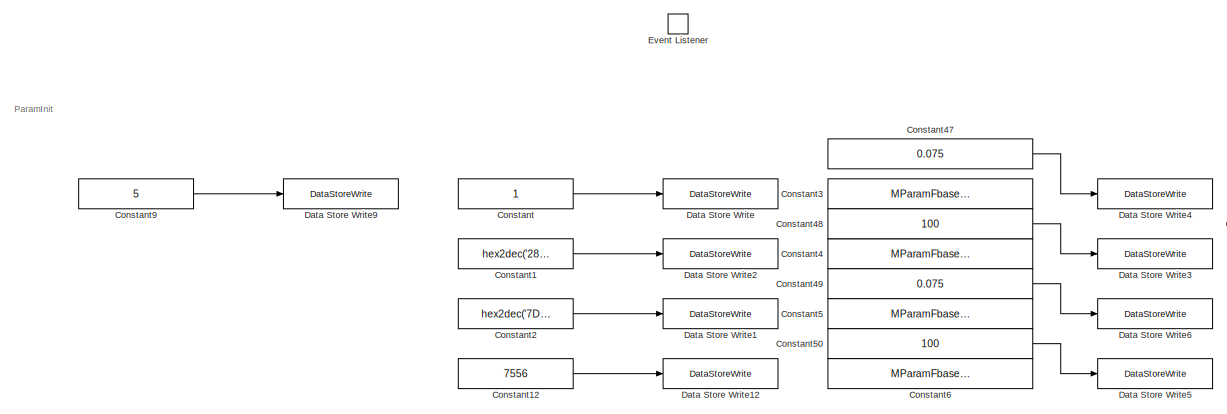
[diagram: Initialize Function - part 1/4, top left region]
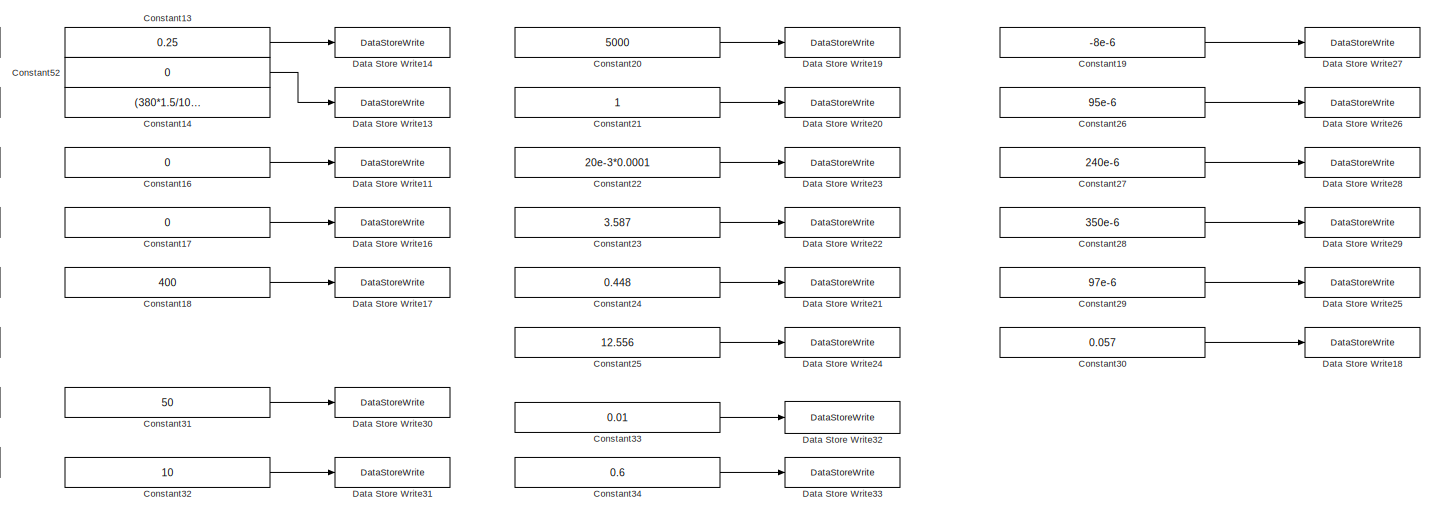
[diagram: Initialize Function - part 2/4, central region]
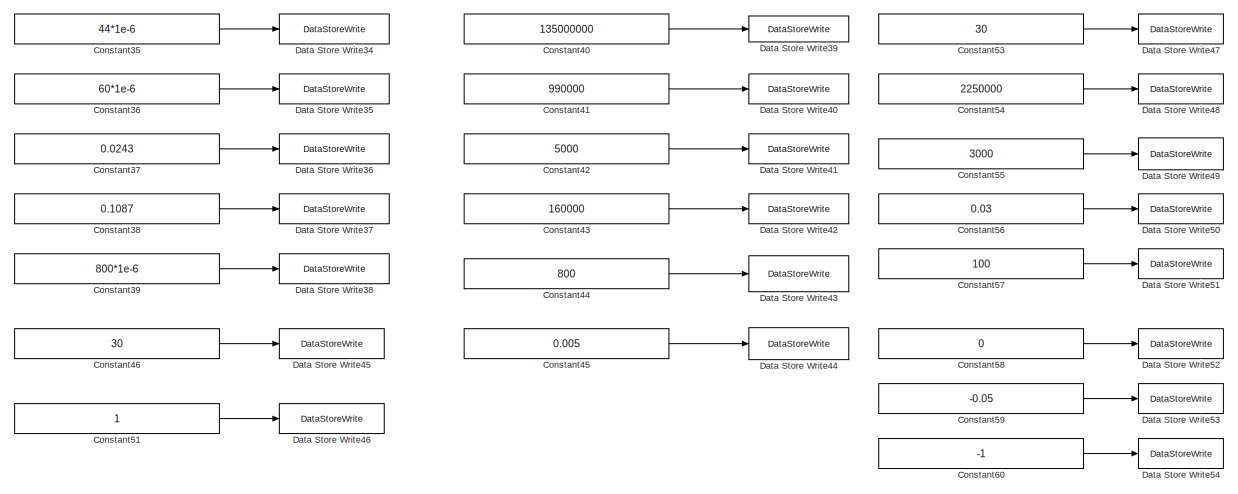
[diagram: Initialize Function - part 3/4, middle right region]
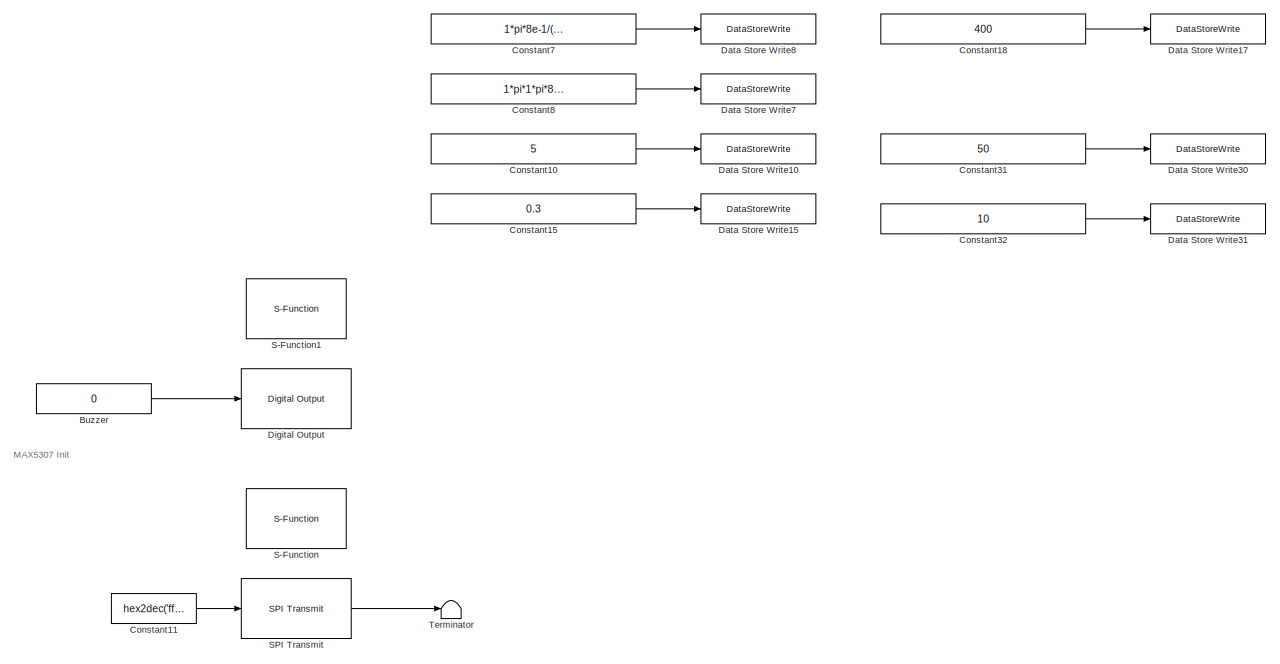
[diagram: Initialize Function - part 4/4, bottom left region]
BLOCK [SubSystem] Initialize Function
  Ports = []
  RequestExecContextInheritance = off
  TreatAsAtomicUnit = on
BLOCK [Constant] Initialize Function/Buzzer
  OutDataTypeStr = uint16
  SampleTime = -1
  Value = 0
BLOCK [Constant] Initialize Function/Constant
  OutDataTypeStr = Inherit: Inherit via back propagation
  SampleTime = -1
BLOCK [Constant] Initialize Function/Constant1
  OutDataTypeStr = Inherit: Inherit via back propagation
  SampleTime = -1
  Value = hex2dec('28')
BLOCK [Constant] Initialize Function/Constant10
  OutDataTypeStr = Inherit: Inherit via back propagation
  SampleTime = -1
  Value = 5
BLOCK [Constant] Initialize Function/Constant11
  OutDataTypeStr = uint16
  Priority = 7
  SampleTime = -1
  Value = hex2dec('ff10')
BLOCK [Constant] Initialize Function/Constant12
  OutDataTypeStr = Inherit: Inherit via back propagation
  SampleTime = -1
  Value = 7556
BLOCK [Constant] Initialize Function/Constant13
  OutDataTypeStr = Inherit: Inherit via back propagation
  SampleTime = -1
  Value = 0.25
BLOCK [Constant] Initialize Function/Constant14
  OutDataTypeStr = Inherit: Inherit via back propagation
  SampleTime = -1
  Value = (380*1.5/100-0.1)/5.6*4.5/380*400
BLOCK [Constant] Initialize Function/Constant15
  OutDataTypeStr = Inherit: Inherit via back propagation
  SampleTime = -1
  Value = 0.3
BLOCK [Constant] Initialize Function/Constant16
  OutDataTypeStr = Inherit: Inherit via back propagation
  SampleTime = -1
  Value = 0
BLOCK [Constant] Initialize Function/Constant17
  OutDataTypeStr = Inherit: Inherit via back propagation
  SampleTime = -1
  Value = 0
BLOCK [Constant] Initialize Function/Constant18
  OutDataTypeStr = Inherit: Inherit via back propagation
  SampleTime = -1
  Value = 400
BLOCK [Constant] Initialize Function/Constant19
  OutDataTypeStr = Inherit: Inherit via back propagation
  SampleTime = -1
  Value = -8e-6
BLOCK [Constant] Initialize Function/Constant2
  OutDataTypeStr = Inherit: Inherit via back propagation
  SampleTime = -1
  Value = hex2dec('7D')
BLOCK [Constant] Initialize Function/Constant20
  OutDataTypeStr = Inherit: Inherit via back propagation
  SampleTime = -1
  Value = 5000
BLOCK [Constant] Initialize Function/Constant21
  OutDataTypeStr = Inherit: Inherit via back propagation
  SampleTime = -1
BLOCK [Constant] Initialize Function/Constant22
  OutDataTypeStr = Inherit: Inherit via back propagation
  SampleTime = -1
  Value = 20e-3*0.0001
BLOCK [Constant] Initialize Function/Constant23
  OutDataTypeStr = Inherit: Inherit via back propagation
  SampleTime = -1
  Value = 3.587
BLOCK [Constant] Initialize Function/Constant24
  OutDataTypeStr = Inherit: Inherit via back propagation
  SampleTime = -1
  Value = 0.448
BLOCK [Constant] Initialize Function/Constant25
  OutDataTypeStr = Inherit: Inherit via back propagation
  SampleTime = -1
  Value = 12.556
BLOCK [Constant] Initialize Function/Constant26
  OutDataTypeStr = Inherit: Inherit via back propagation
  SampleTime = -1
  Value = 95e-6
BLOCK [Constant] Initialize Function/Constant27
  OutDataTypeStr = Inherit: Inherit via back propagation
  SampleTime = -1
  Value = 240e-6
BLOCK [Constant] Initialize Function/Constant28
  OutDataTypeStr = Inherit: Inherit via back propagation
  SampleTime = -1
  Value = 350e-6
BLOCK [Constant] Initialize Function/Constant29
  OutDataTypeStr = Inherit: Inherit via back propagation
  SampleTime = -1
  Value = 97e-6
BLOCK [Constant] Initialize Function/Constant3
  Commented = on
  OutDataTypeStr = Inherit: Inherit via back propagation
  SampleTime = -1
  Value = MParamFbase*2*pi*MParamLq*1.5
BLOCK [Constant] Initialize Function/Constant30
  OutDataTypeStr = Inherit: Inherit via back propagation
  SampleTime = -1
  Value = 0.057
BLOCK [Constant] Initialize Function/Constant31
  OutDataTypeStr = Inherit: Inherit via back propagation
  SampleTime = -1
  Value = 50
BLOCK [Constant] Initialize Function/Constant32
  OutDataTypeStr = Inherit: Inherit via back propagation
  SampleTime = -1
  Value = 10
BLOCK [Constant] Initialize Function/Constant33
  OutDataTypeStr = Inherit: Inherit via back propagation
  SampleTime = -1
  Value = 0.01
BLOCK [Constant] Initialize Function/Constant34
  OutDataTypeStr = Inherit: Inherit via back propagation
  SampleTime = -1
  Value = 0.6
BLOCK [Constant] Initialize Function/Constant35
  OutDataTypeStr = Inherit: Inherit via back propagation
  SampleTime = -1
  Value = 44*1e-6
BLOCK [Constant] Initialize Function/Constant36
  OutDataTypeStr = Inherit: Inherit via back propagation
  SampleTime = -1
  Value = 60*1e-6
BLOCK [Constant] Initialize Function/Constant37
  OutDataTypeStr = Inherit: Inherit via back propagation
  SampleTime = -1
  Value = 0.0243
BLOCK [Constant] Initialize Function/Constant38
  OutDataTypeStr = Inherit: Inherit via back propagation
  SampleTime = -1
  Value = 0.1087
BLOCK [Constant] Initialize Function/Constant39
  OutDataTypeStr = Inherit: Inherit via back propagation
  SampleTime = -1
  Value = 800*1e-6
BLOCK [Constant] Initialize Function/Constant4
  Commented = on
  OutDataTypeStr = Inherit: Inherit via back propagation
  SampleTime = -1
  Value = MParamFbase*2*pi*MParamRs*1.5
BLOCK [Constant] Initialize Function/Constant40
  OutDataTypeStr = Inherit: Inherit via back propagation
  SampleTime = -1
  Value = 135000000
BLOCK [Constant] Initialize Function/Constant41
  OutDataTypeStr = Inherit: Inherit via back propagation
  SampleTime = -1
  Value = 990000
BLOCK [Constant] Initialize Function/Constant42
  OutDataTypeStr = Inherit: Inherit via back propagation
  SampleTime = -1
  Value = 5000
BLOCK [Constant] Initialize Function/Constant43
  OutDataTypeStr = Inherit: Inherit via back propagation
  SampleTime = -1
  Value = 160000
BLOCK [Constant] Initialize Function/Constant44
  OutDataTypeStr = Inherit: Inherit via back propagation
  SampleTime = -1
  Value = 800
BLOCK [Constant] Initialize Function/Constant45
  OutDataTypeStr = Inherit: Inherit via back propagation
  SampleTime = -1
  Value = 0.005
BLOCK [Constant] Initialize Function/Constant46
  OutDataTypeStr = Inherit: Inherit via back propagation
  SampleTime = -1
  Value = 30
BLOCK [Constant] Initialize Function/Constant47
  OutDataTypeStr = Inherit: Inherit via back propagation
  SampleTime = -1
  Value = 0.075
BLOCK [Constant] Initialize Function/Constant48
  OutDataTypeStr = Inherit: Inherit via back propagation
  SampleTime = -1
  Value = 100
BLOCK [Constant] Initialize Function/Constant49
  OutDataTypeStr = Inherit: Inherit via back propagation
  SampleTime = -1
  Value = 0.075
BLOCK [Constant] Initialize Function/Constant5
  Commented = on
  OutDataTypeStr = Inherit: Inherit via back propagation
  SampleTime = -1
  Value = MParamFbase*2*pi*MParamLq*1.5
BLOCK [Constant] Initialize Function/Constant50
  OutDataTypeStr = Inherit: Inherit via back propagation
  SampleTime = -1
  Value = 100
BLOCK [Constant] Initialize Function/Constant51
  OutDataTypeStr = Inherit: Inherit via back propagation
  SampleTime = -1
BLOCK [Constant] Initialize Function/Constant52
  OutDataTypeStr = Inherit: Inherit via back propagation
  SampleTime = -1
  Value = 0
BLOCK [Constant] Initialize Function/Constant53
  OutDataTypeStr = Inherit: Inherit via back propagation
  SampleTime = -1
  Value = 30
BLOCK [Constant] Initialize Function/Constant54
  OutDataTypeStr = Inherit: Inherit via back propagation
  SampleTime = -1
  Value = 2250000
BLOCK [Constant] Initialize Function/Constant55
  OutDataTypeStr = Inherit: Inherit via back propagation
  SampleTime = -1
  Value = 3000
BLOCK [Constant] Initialize Function/Constant56
  OutDataTypeStr = Inherit: Inherit via back propagation
  SampleTime = -1
  Value = 0.03
BLOCK [Constant] Initialize Function/Constant57
  OutDataTypeStr = Inherit: Inherit via back propagation
  SampleTime = -1
  Value = 100
BLOCK [Constant] Initialize Function/Constant58
  OutDataTypeStr = Inherit: Inherit via back propagation
  SampleTime = -1
  Value = 0
BLOCK [Constant] Initialize Function/Constant59
  OutDataTypeStr = Inherit: Inherit via back propagation
  SampleTime = -1
  Value = -0.05
BLOCK [Constant] Initialize Function/Constant6
  Commented = on
  OutDataTypeStr = Inherit: Inherit via back propagation
  SampleTime = -1
  Value = MParamFbase*2*pi*MParamRs*1.5
BLOCK [Constant] Initialize Function/Constant60
  OutDataTypeStr = Inherit: Inherit via back propagation
  SampleTime = -1
  Value = -1
BLOCK [Constant] Initialize Function/Constant7
  OutDataTypeStr = Inherit: Inherit via back propagation
  SampleTime = -1
  Value = 1*pi*8e-1/(1.5*4*0.056)*2*pi/60
BLOCK [Constant] Initialize Function/Constant8
  OutDataTypeStr = Inherit: Inherit via back propagation
  SampleTime = -1
  Value = 1*pi*1*pi*8e-1/(1.5*4*0.056)*2*pi/60
BLOCK [Constant] Initialize Function/Constant9
  OutDataTypeStr = Inherit: Inherit via back propagation
  SampleTime = -1
  Value = 5
BLOCK [DataStoreWrite] Initialize Function/Data Store Write
  DataStoreName = InitMode
  Ports = [1]
BLOCK [DataStoreWrite] Initialize Function/Data Store Write1
  DataStoreName = ResloverRES
  Ports = [1]
BLOCK [DataStoreWrite] Initialize Function/Data Store Write10
  DataStoreName = N_Filter
  Ports = [1]
BLOCK [DataStoreWrite] Initialize Function/Data Store Write11
  DataStoreName = HFI_Umd
  Ports = [1]
BLOCK [DataStoreWrite] Initialize Function/Data Store Write12
  DataStoreName = ResloverMid
  Ports = [1]
BLOCK [DataStoreWrite] Initialize Function/Data Store Write13
  DataStoreName = Udelta
  Ports = [1]
BLOCK [DataStoreWrite] Initialize Function/Data Store Write14
  DataStoreName = K
  Ports = [1]
BLOCK [DataStoreWrite] Initialize Function/Data Store Write15
  DataStoreName = N_Step
  Ports = [1]
BLOCK [DataStoreWrite] Initialize Function/Data Store Write16
  DataStoreName = HFI_Umq
  Ports = [1]
BLOCK [DataStoreWrite] Initialize Function/Data Store Write17
  DataStoreName = HFI_FRQ
  Ports = [1]
BLOCK [DataStoreWrite] Initialize Function/Data Store Write18
  DataStoreName = Tr_Phidm
  Ports = [1]
BLOCK [DataStoreWrite] Initialize Function/Data Store Write19
  DataStoreName = DEKF_R
  Ports = [1]
BLOCK [DataStoreWrite] Initialize Function/Data Store Write2
  DataStoreName = ResloverFRQ
  Ports = [1]
BLOCK [DataStoreWrite] Initialize Function/Data Store Write20
  DataStoreName = DEKF_Qx
  Ports = [1]
BLOCK [DataStoreWrite] Initialize Function/Data Store Write21
  DataStoreName = DEKF_QpLdq
  Ports = [1]
BLOCK [DataStoreWrite] Initialize Function/Data Store Write22
  DataStoreName = DEKF_QpLdd
  Ports = [1]
BLOCK [DataStoreWrite] Initialize Function/Data Store Write23
  DataStoreName = DEKF_QpRs
  Ports = [1]
BLOCK [DataStoreWrite] Initialize Function/Data Store Write24
  DataStoreName = DEKF_QpLqq
  Ports = [1]
BLOCK [DataStoreWrite] Initialize Function/Data Store Write25
  DataStoreName = Tr_Ldap
  Ports = [1]
BLOCK [DataStoreWrite] Initialize Function/Data Store Write26
  DataStoreName = Tr_Ldinc
  Ports = [1]
BLOCK [DataStoreWrite] Initialize Function/Data Store Write27
  DataStoreName = Tr_Ldqinc
  Ports = [1]
BLOCK [DataStoreWrite] Initialize Function/Data Store Write28
  DataStoreName = Tr_Lqinc
  Ports = [1]
BLOCK [DataStoreWrite] Initialize Function/Data Store Write29
  DataStoreName = Tr_Lqap
  Ports = [1]
BLOCK [DataStoreWrite] Initialize Function/Data Store Write3
  DataStoreName = Id_Ki
  Ports = [1]
BLOCK [DataStoreWrite] Initialize Function/Data Store Write30
  DataStoreName = Udc_Filter
  Ports = [1]
BLOCK [DataStoreWrite] Initialize Function/Data Store Write31
  DataStoreName = Udc_Step
  Ports = [1]
BLOCK [DataStoreWrite] Initialize Function/Data Store Write32
  DataStoreName = Udc_Kp
  Ports = [1]
BLOCK [DataStoreWrite] Initialize Function/Data Store Write33
  DataStoreName = Udc_Ki
  Ports = [1]
BLOCK [DataStoreWrite] Initialize Function/Data Store Write34
  DataStoreName = FbL_Ld
  Ports = [1]
BLOCK [DataStoreWrite] Initialize Function/Data Store Write35
  DataStoreName = FbL_Lq
  Ports = [1]
BLOCK [DataStoreWrite] Initialize Function/Data Store Write36
  DataStoreName = FbL_Phif
  Ports = [1]
BLOCK [DataStoreWrite] Initialize Function/Data Store Write37
  DataStoreName = FbL_Rs
  Ports = [1]
BLOCK [DataStoreWrite] Initialize Function/Data Store Write38
  DataStoreName = FbL_Cdc
  Ports = [1]
BLOCK [DataStoreWrite] Initialize Function/Data Store Write39
  DataStoreName = FbL_k0
  Ports = [1]
BLOCK [DataStoreWrite] Initialize Function/Data Store Write4
  DataStoreName = Id_Kp
  Ports = [1]
BLOCK [DataStoreWrite] Initialize Function/Data Store Write40
  DataStoreName = FbL_k1
  Ports = [1]
BLOCK [DataStoreWrite] Initialize Function/Data Store Write41
  DataStoreName = FbL_k2
  Ports = [1]
BLOCK [DataStoreWrite] Initialize Function/Data Store Write42
  DataStoreName = FbL_k4
  Ports = [1]
BLOCK [DataStoreWrite] Initialize Function/Data Store Write43
  DataStoreName = FbL_k5
  Ports = [1]
BLOCK [DataStoreWrite] Initialize Function/Data Store Write44
  DataStoreName = FbL_k3
  Ports = [1]
BLOCK [DataStoreWrite] Initialize Function/Data Store Write45
  DataStoreName = FbL_Rdc
  Ports = [1]
BLOCK [DataStoreWrite] Initialize Function/Data Store Write46
  DataStoreName = FbL_iqMuti
  Ports = [1]
BLOCK [DataStoreWrite] Initialize Function/Data Store Write47
  DataStoreName = smc_uqset
  Ports = [1]
BLOCK [DataStoreWrite] Initialize Function/Data Store Write48
  DataStoreName = smc_b2
  Ports = [1]
BLOCK [DataStoreWrite] Initialize Function/Data Store Write49
  DataStoreName = smc_b1
  Ports = [1]
BLOCK [DataStoreWrite] Initialize Function/Data Store Write5
  DataStoreName = Iq_Ki
  Ports = [1]
BLOCK [DataStoreWrite] Initialize Function/Data Store Write50
  DataStoreName = smc_r
  Ports = [1]
BLOCK [DataStoreWrite] Initialize Function/Data Store Write51
  DataStoreName = smc_c
  Ports = [1]
BLOCK [DataStoreWrite] Initialize Function/Data Store Write52
  DataStoreName = smc_en
  Ports = [1]
BLOCK [DataStoreWrite] Initialize Function/Data Store Write53
  DataStoreName = FbL_smc_r1
  Ports = [1]
BLOCK [DataStoreWrite] Initialize Function/Data Store Write54
  DataStoreName = FbL_smc_r2
  Ports = [1]
BLOCK [DataStoreWrite] Initialize Function/Data Store Write6
  DataStoreName = Iq_Kp
  Ports = [1]
BLOCK [DataStoreWrite] Initialize Function/Data Store Write7
  DataStoreName = N_Ki
  Ports = [1]
BLOCK [DataStoreWrite] Initialize Function/Data Store Write8
  DataStoreName = N_Kp
  Ports = [1]
BLOCK [DataStoreWrite] Initialize Function/Data Store Write9
  DataStoreName = ControlMode
  Ports = [1]
BLOCK [Reference] Initialize Function/Digital Output  REF=c2837xDlib/Digital Output
  Ports = [1]
  SourceBlock = c2837xDlib/Digital Output
  SourceProductBaseCode = TIC2000
  SourceProductName = Embedded Coder Support Package for Texas Instruments C2000 Processors
  SourceType = F2837x GPIO Digital Output
  UserDataPersistent = on
BLOCK [EventListener] Initialize Function/Event Listener
  DisableCoverage = on
  EventName = reset
BLOCK [S-Function] Initialize Function/S-Function
  EnableBusSupport = off
  FunctionName = User_Defined_Code
  Parameters = code
  Ports = []
  Priority = 0
  SFcnIsStateOwnerBlock = off
  SFunctionDeploymentMode = off
BLOCK [S-Function] Initialize Function/S-Function1
  EnableBusSupport = off
  FunctionName = User_Defined_Code
  Parameters = code
  Ports = []
  Priority = 100
  SFcnIsStateOwnerBlock = off
  SFunctionDeploymentMode = off
BLOCK [Reference] Initialize Function/SPI Transmit  REF=c280xlib/SPI Transmit
  Ports = [1, 1]
  SourceBlock = c280xlib/SPI Transmit
  SourceProductBaseCode = TIC2000
  SourceProductName = Embedded Coder Support Package for Texas Instruments C2000 Processors
  SourceType = codertarget.tic2000.blocks.SPIWrite
BLOCK [Terminator] Initialize Function/Terminator
BLOCK [SubSystem] SpeedREF
  Ports = []
  RequestExecContextInheritance = off
  SystemSampleTime = 1e-3
  TreatAsAtomicUnit = on
BLOCK [DataStoreRead] SpeedREF/Data Store Read
  DataStoreName = N_Dem
  Ports = [0, 1]
BLOCK [DataStoreRead] SpeedREF/Data Store Read2
  DataStoreName = N_Step
  Ports = [0, 1]
BLOCK [DataStoreWrite] SpeedREF/Data Store Write
  DataStoreName = N_REF
  Ports = [1]
BLOCK [Saturate] SpeedREF/Saturation
  InputPortMap = u0
  LowerLimit = -6000
  Ports = [1, 1]
  UpperLimit = 6000
BLOCK [Saturate] SpeedREF/Saturation1
  InputPortMap = u0
  LowerLimit = -6000
  Ports = [1, 1]
  UpperLimit = 6000
BLOCK [SubSystem] SpeedREF/Subsystem1
  Ports = [2, 1]
  RequestExecContextInheritance = off
BLOCK [SubSystem] SpeedREF/Subsystem1/MATLAB Function
  ErrorFcn = Stateflow.Translate.translate
  PermitHierarchicalResolution = ExplicitOnly
  Ports = [3, 1]
  RequestExecContextInheritance = off
  SFBlockType = MATLAB Function
  TreatAsAtomicUnit = on
BLOCK [Demux] SpeedREF/Subsystem1/MATLAB Function/ Demux 
  Outputs = 1
  Ports = [1, 1]
BLOCK [S-Function] SpeedREF/Subsystem1/MATLAB Function/ SFunction 
  EnableBusSupport = on
  FunctionName = sf_sfun
  PortCounts = [3 2]
  Ports = [3, 2]
  SFcnIsStateOwnerBlock = off
  SFunctionDeploymentMode = off
  Tag = Stateflow S-Function 25
BLOCK [Terminator] SpeedREF/Subsystem1/MATLAB Function/ Terminator 
BLOCK [Inport] SpeedREF/Subsystem1/MATLAB Function/LastOutput
  IconDisplay = Port number
  Port = 3
BLOCK [Outport] SpeedREF/Subsystem1/MATLAB Function/Output
  IconDisplay = Port number
BLOCK [Inport] SpeedREF/Subsystem1/MATLAB Function/Step
  IconDisplay = Port number
  Port = 2
BLOCK [Inport] SpeedREF/Subsystem1/MATLAB Function/Target
  IconDisplay = Port number
BLOCK [Outport] SpeedREF/Subsystem1/RampOutput
  IconDisplay = Port number
BLOCK [Inport] SpeedREF/Subsystem1/Step
  IconDisplay = Port number
  Port = 2
BLOCK [Inport] SpeedREF/Subsystem1/TargetValue
  IconDisplay = Port number
BLOCK [UnitDelay] SpeedREF/Subsystem1/Unit Delay
  HasFrameUpgradeWarning = on
  SampleTime = -1
BLOCK [SubSystem] Subsystem
  Ports = []
  RequestExecContextInheritance = off
BLOCK [SubSystem] Subsystem1
  Commented = on
  Ports = []
  RTWMemSecFuncExecute = Em1Cs0
  RTWMemSecFuncInitTerm = Em1Cs0
  RTWSystemCode = Nonreusable function
  RequestExecContextInheritance = off
  SystemSampleTime = 1/5e3
  TreatAsAtomicUnit = on
BLOCK [DataStoreRead] Subsystem1/Data Store Read19
  DataStoreName = DEKF_Idh
  Ports = [0, 1]
BLOCK [DataStoreRead] Subsystem1/Data Store Read20
  DataStoreName = DEKF_QpRs
  Ports = [0, 1]
BLOCK [DataStoreRead] Subsystem1/Data Store Read21
  DataStoreName = DEKF_QpLdd
  Ports = [0, 1]
BLOCK [DataStoreRead] Subsystem1/Data Store Read22
  DataStoreName = DEKF_QpLdq
  Ports = [0, 1]
BLOCK [DataStoreRead] Subsystem1/Data Store Read23
  DataStoreName = DEKF_QpLqq
  Ports = [0, 1]
BLOCK [DataStoreRead] Subsystem1/Data Store Read24
  DataStoreName = DEKF_Clear
  Ports = [0, 1]
BLOCK [DataStoreRead] Subsystem1/Data Store Read25
  DataStoreName = N_400Hz
  Ports = [0, 1]
BLOCK [DataStoreRead] Subsystem1/Data Store Read26
  DataStoreName = DEKF_Phid0
  Ports = [0, 1]
BLOCK [DataStoreRead] Subsystem1/Data Store Read27
  DataStoreName = DEKF_Phiq0
  Ports = [0, 1]
BLOCK [DataStoreRead] Subsystem1/Data Store Read29
  DataStoreName = N_REF
  Ports = [0, 1]
BLOCK [DataStoreRead] Subsystem1/Data Store Read30
  DataStoreName = DEKF_Iqh
  Ports = [0, 1]
BLOCK [DataStoreRead] Subsystem1/Data Store Read31
  DataStoreName = DEKF_Udh
  Ports = [0, 1]
BLOCK [DataStoreRead] Subsystem1/Data Store Read32
  DataStoreName = DEKF_Uqh
  Ports = [0, 1]
BLOCK [DataStoreRead] Subsystem1/Data Store Read33
  DataStoreName = DEKF_R
  Ports = [0, 1]
BLOCK [DataStoreRead] Subsystem1/Data Store Read34
  DataStoreName = DEKF_Qx
  Ports = [0, 1]
BLOCK [DataStoreWrite] Subsystem1/Data Store Write1
  DataStoreName = DEKF_Ldd
  Ports = [1]
BLOCK [DataStoreWrite] Subsystem1/Data Store Write2
  DataStoreName = DEKF_Ldq
  Ports = [1]
BLOCK [DataStoreWrite] Subsystem1/Data Store Write3
  DataStoreName = DEKF_Lqq
  Ports = [1]
BLOCK [DataStoreWrite] Subsystem1/Data Store Write4
  DataStoreName = DEKF_Rs
  Ports = [1]
BLOCK [Gain] Subsystem1/Gain10
  Gain = 4/60*2*pi
  OutDataTypeStr = Inherit: Inherit via internal rule
  ParamDataTypeStr = Inherit: Inherit via internal rule
  SaturateOnIntegerOverflow = off
BLOCK [Gain] Subsystem1/Gain11
  Gain = 1e-3
  OutDataTypeStr = Inherit: Inherit via internal rule
  ParamDataTypeStr = Inherit: Inherit via internal rule
  SaturateOnIntegerOverflow = off
BLOCK [Gain] Subsystem1/Gain12
  Gain = 4/60*2*pi
  OutDataTypeStr = Inherit: Inherit via internal rule
  ParamDataTypeStr = Inherit: Inherit via internal rule
  SaturateOnIntegerOverflow = off
BLOCK [Gain] Subsystem1/Gain13
  Gain = 1e-6
  OutDataTypeStr = Inherit: Inherit via internal rule
  ParamDataTypeStr = Inherit: Inherit via internal rule
  SaturateOnIntegerOverflow = off
BLOCK [Gain] Subsystem1/Gain14
  Gain = 1e-6
  OutDataTypeStr = Inherit: Inherit via internal rule
  ParamDataTypeStr = Inherit: Inherit via internal rule
  SaturateOnIntegerOverflow = off
BLOCK [Gain] Subsystem1/Gain15
  Gain = 1e-6
  OutDataTypeStr = Inherit: Inherit via internal rule
  ParamDataTypeStr = Inherit: Inherit via internal rule
  SaturateOnIntegerOverflow = off
BLOCK [Gain] Subsystem1/Gain16
  Gain = 1e3
  OutDataTypeStr = Inherit: Inherit via internal rule
  ParamDataTypeStr = Inherit: Inherit via internal rule
  SaturateOnIntegerOverflow = off
BLOCK [SubSystem] Subsystem1/MATLAB Function1
  ErrorFcn = Stateflow.Translate.translate
  PermitHierarchicalResolution = ExplicitOnly
  Ports = [15, 6]
  RequestExecContextInheritance = off
  SFBlockType = MATLAB Function
  TreatAsAtomicUnit = on
BLOCK [Demux] Subsystem1/MATLAB Function1/ Demux 
  Outputs = 1
  Ports = [1, 1]
BLOCK [S-Function] Subsystem1/MATLAB Function1/ SFunction 
  EnableBusSupport = on
  FunctionName = sf_sfun
  PortCounts = [15 7]
  Ports = [15, 7]
  SFcnIsStateOwnerBlock = off
  SFunctionDeploymentMode = off
  Tag = Stateflow S-Function 52
BLOCK [Terminator] Subsystem1/MATLAB Function1/ Terminator 
BLOCK [Inport] Subsystem1/MATLAB Function1/Phid0
  IconDisplay = Port number
  Port = 7
BLOCK [Inport] Subsystem1/MATLAB Function1/Phiq0
  IconDisplay = Port number
  Port = 8
BLOCK [Inport] Subsystem1/MATLAB Function1/QpLdd
  IconDisplay = Port number
  Port = 12
BLOCK [Inport] Subsystem1/MATLAB Function1/QpLdq
  IconDisplay = Port number
  Port = 13
BLOCK [Inport] Subsystem1/MATLAB Function1/QpLqq
  IconDisplay = Port number
  Port = 14
BLOCK [Inport] Subsystem1/MATLAB Function1/QpRs
  IconDisplay = Port number
  Port = 11
BLOCK [Inport] Subsystem1/MATLAB Function1/Qx
  IconDisplay = Port number
  Port = 10
BLOCK [Inport] Subsystem1/MATLAB Function1/R
  IconDisplay = Port number
  Port = 9
BLOCK [Outport] Subsystem1/MATLAB Function1/Theta1_hat
  IconDisplay = Port number
  Port = 3
BLOCK [Outport] Subsystem1/MATLAB Function1/Theta2_hat
  IconDisplay = Port number
  Port = 4
BLOCK [Outport] Subsystem1/MATLAB Function1/Theta3_hat
  IconDisplay = Port number
  Port = 5
BLOCK [Outport] Subsystem1/MATLAB Function1/Theta4_hat
  IconDisplay = Port number
  Port = 6
BLOCK [Outport] Subsystem1/MATLAB Function1/X1_hat
  IconDisplay = Port number
BLOCK [Outport] Subsystem1/MATLAB Function1/X2_hat
  IconDisplay = Port number
  Port = 2
BLOCK [Inport] Subsystem1/MATLAB Function1/clear
  IconDisplay = Port number
  Port = 15
BLOCK [Inport] Subsystem1/MATLAB Function1/idh
  IconDisplay = Port number
BLOCK [Inport] Subsystem1/MATLAB Function1/iqh
  IconDisplay = Port number
  Port = 2
BLOCK [Inport] Subsystem1/MATLAB Function1/udh
  IconDisplay = Port number
  Port = 3
BLOCK [Inport] Subsystem1/MATLAB Function1/uqh
  IconDisplay = Port number
  Port = 4
BLOCK [Inport] Subsystem1/MATLAB Function1/we0
  IconDisplay = Port number
  Port = 5
BLOCK [Inport] Subsystem1/MATLAB Function1/weh
  IconDisplay = Port number
  Port = 6
BLOCK [SubSystem] Subsystem1/MATLAB Function3
  ErrorFcn = Stateflow.Translate.translate
  PermitHierarchicalResolution = ExplicitOnly
  Ports = [3, 3]
  RequestExecContextInheritance = off
  SFBlockType = MATLAB Function
  TreatAsAtomicUnit = on
BLOCK [Demux] Subsystem1/MATLAB Function3/ Demux 
  Outputs = 1
  Ports = [1, 1]
BLOCK [S-Function] Subsystem1/MATLAB Function3/ SFunction 
  EnableBusSupport = on
  FunctionName = sf_sfun
  PortCounts = [3 4]
  Ports = [3, 4]
  SFcnIsStateOwnerBlock = off
  SFunctionDeploymentMode = off
  Tag = Stateflow S-Function 53
BLOCK [Terminator] Subsystem1/MATLAB Function3/ Terminator 
BLOCK [Inport] Subsystem1/MATLAB Function3/A
  IconDisplay = Port number
BLOCK [Inport] Subsystem1/MATLAB Function3/B
  IconDisplay = Port number
  Port = 2
BLOCK [Inport] Subsystem1/MATLAB Function3/C
  IconDisplay = Port number
  Port = 3
BLOCK [Outport] Subsystem1/MATLAB Function3/Ldd
  IconDisplay = Port number
BLOCK [Outport] Subsystem1/MATLAB Function3/Ldq
  IconDisplay = Port number
  Port = 2
BLOCK [Outport] Subsystem1/MATLAB Function3/Lqq
  IconDisplay = Port number
  Port = 3
BLOCK [SubSystem] Temperature&DCBUS
  Ports = []
  RequestExecContextInheritance = off
BLOCK [Reference] Temperature&DCBUS/ADC_TempA  REF=c2802xlib/ADC
  Ports = [0, 1]
  SourceBlock = c2802xlib/ADC
  SourceProductBaseCode = TIC2000
  SourceProductName = Embedded Coder Support Package for Texas Instruments C2000 Processors
  SourceType = C2802x/03x/05x/06x/M3x/37x/07x/004x/38x ADC
  UserDataPersistent = on
BLOCK [Reference] Temperature&DCBUS/ADC_TempB  REF=c2802xlib/ADC
  Ports = [0, 1]
  SourceBlock = c2802xlib/ADC
  SourceProductBaseCode = TIC2000
  SourceProductName = Embedded Coder Support Package for Texas Instruments C2000 Processors
  SourceType = C2802x/03x/05x/06x/M3x/37x/07x/004x/38x ADC
  UserDataPersistent = on
BLOCK [Reference] Temperature&DCBUS/ADC_TempC  REF=c2802xlib/ADC
  Ports = [0, 1]
  SourceBlock = c2802xlib/ADC
  SourceProductBaseCode = TIC2000
  SourceProductName = Embedded Coder Support Package for Texas Instruments C2000 Processors
  SourceType = C2802x/03x/05x/06x/M3x/37x/07x/004x/38x ADC
  UserDataPersistent = on
BLOCK [DataStoreRead] Temperature&DCBUS/Data Store Read
  DataStoreName = N_REF
  Ports = [0, 1]
BLOCK [DataStoreRead] Temperature&DCBUS/Data Store Read1
  DataStoreName = N_FBK
  Ports = [0, 1]
BLOCK [DataStoreRead] Temperature&DCBUS/Data Store Read2
  DataStoreName = ControlMode
  Ports = [0, 1]
BLOCK [DataStoreRead] Temperature&DCBUS/Data Store Read3
  DataStoreName = Id_REF
  Ports = [0, 1]
BLOCK [DataStoreRead] Temperature&DCBUS/Data Store Read4
  DataStoreName = UDOUT_Comp
  Ports = [0, 1]
BLOCK [DataStoreRead] Temperature&DCBUS/Data Store Read5
  DataStoreName = UQOUT_Comp
  Ports = [0, 1]
BLOCK [DataStoreRead] Temperature&DCBUS/Data Store Read6
  DataStoreName = USOUT_Comp
  Ports = [0, 1]
BLOCK [DataStoreRead] Temperature&DCBUS/Data Store Read7
  DataStoreName = Iq_REF
  Ports = [0, 1]
BLOCK [DataStoreRead] Temperature&DCBUS/Data Store Read8
  DataStoreName = Udc_FBK
  Ports = [0, 1]
BLOCK [DataStoreRead] Temperature&DCBUS/Data Store Read9
  DataStoreName = Udc_REF
  Ports = [0, 1]
BLOCK [DataStoreWrite] Temperature&DCBUS/Data Store Write
  DataStoreName = TempA
  Ports = [1]
BLOCK [DataStoreWrite] Temperature&DCBUS/Data Store Write1
  DataStoreName = TempB
  Ports = [1]
BLOCK [DataStoreWrite] Temperature&DCBUS/Data Store Write2
  DataStoreName = TempC
  Ports = [1]
BLOCK [DataStoreWrite] Temperature&DCBUS/Data Store Write4
  DataStoreName = UdComP_Filter
  Ports = [1]
BLOCK [DataStoreWrite] Temperature&DCBUS/Data Store Write5
  DataStoreName = UqComP_Filter
  Ports = [1]
BLOCK [DataStoreWrite] Temperature&DCBUS/Data Store Write6
  DataStoreName = UsComP_Filter
  Ports = [1]
BLOCK [DataStoreWrite] Temperature&DCBUS/Data Store Write7
  DataStoreName = Id_Filter
  Ports = [1]
BLOCK [DataStoreWrite] Temperature&DCBUS/Data Store Write8
  DataStoreName = Iq_Filter
  Ports = [1]
BLOCK [Reference] Temperature&DCBUS/First-Order Filter  REF=powerlib_meascontrol/Filters/First-Order
Filter
  Ports = [1, 1]
  SourceBlock = powerlib_meascontrol/Filters/First-Order\nFilter
  SourceProductBaseCode = PS
  SourceProductName = Simscape Electrical
  SourceType = First-Order Filter
BLOCK [Reference] Temperature&DCBUS/First-Order Filter1  REF=powerlib_meascontrol/Filters/First-Order
Filter
  Ports = [1, 1]
  SourceBlock = powerlib_meascontrol/Filters/First-Order\nFilter
  SourceProductBaseCode = PS
  SourceProductName = Simscape Electrical
  SourceType = First-Order Filter
BLOCK [Reference] Temperature&DCBUS/First-Order Filter2  REF=powerlib_meascontrol/Filters/First-Order
Filter
  Ports = [1, 1]
  SourceBlock = powerlib_meascontrol/Filters/First-Order\nFilter
  SourceProductBaseCode = PS
  SourceProductName = Simscape Electrical
  SourceType = First-Order Filter
BLOCK [Reference] Temperature&DCBUS/First-Order Filter3  REF=powerlib_meascontrol/Filters/First-Order
Filter
  Commented = on
  Ports = [1, 1]
  SourceBlock = powerlib_meascontrol/Filters/First-Order\nFilter
  SourceProductBaseCode = PS
  SourceProductName = Simscape Electrical
  SourceType = First-Order Filter
BLOCK [Reference] Temperature&DCBUS/First-Order Filter4  REF=powerlib_meascontrol/Filters/First-Order
Filter
  Ports = [1, 1]
  SourceBlock = powerlib_meascontrol/Filters/First-Order\nFilter
  SourceProductBaseCode = PS
  SourceProductName = Simscape Electrical
  SourceType = First-Order Filter
BLOCK [Reference] Temperature&DCBUS/First-Order Filter5  REF=powerlib_meascontrol/Filters/First-Order
Filter
  Ports = [1, 1]
  SourceBlock = powerlib_meascontrol/Filters/First-Order\nFilter
  SourceProductBaseCode = PS
  SourceProductName = Simscape Electrical
  SourceType = First-Order Filter
BLOCK [Reference] Temperature&DCBUS/First-Order Filter6  REF=powerlib_meascontrol/Filters/First-Order
Filter
  Ports = [1, 1]
  SourceBlock = powerlib_meascontrol/Filters/First-Order\nFilter
  SourceProductBaseCode = PS
  SourceProductName = Simscape Electrical
  SourceType = First-Order Filter
BLOCK [Reference] Temperature&DCBUS/First-Order Filter7  REF=powerlib_meascontrol/Filters/First-Order
Filter
  Ports = [1, 1]
  SourceBlock = powerlib_meascontrol/Filters/First-Order\nFilter
  SourceProductBaseCode = PS
  SourceProductName = Simscape Electrical
  SourceType = First-Order Filter
BLOCK [Reference] Temperature&DCBUS/First-Order Filter8  REF=powerlib_meascontrol/Filters/First-Order
Filter
  Ports = [1, 1]
  SourceBlock = powerlib_meascontrol/Filters/First-Order\nFilter
  SourceProductBaseCode = PS
  SourceProductName = Simscape Electrical
  SourceType = First-Order Filter
BLOCK [FunctionCallSplit] Temperature&DCBUS/Function-Call Split
  Commented = on
  IconShape = distinctive
  NumOutputPorts = 2
  Ports = [1, 2]
BLOCK [FunctionCallSplit] Temperature&DCBUS/Function-Call Split1
  Commented = on
  IconShape = distinctive
  NumOutputPorts = 2
  Ports = [1, 2]
BLOCK [SubSystem] Temperature&DCBUS/Function-Call Subsystem
  Commented = on
  Ports = [0, 0, 0, 1]
  RequestExecContextInheritance = off
  TreatAsAtomicUnit = on
BLOCK [Constant] Temperature&DCBUS/Function-Call Subsystem/Constant
  Priority = 0
  SampleTime = -1
  Value = 0
BLOCK [Reference] Temperature&DCBUS/Function-Call Subsystem/Digital Output  REF=c2837xDlib/Digital Output
  Ports = [1]
  SourceBlock = c2837xDlib/Digital Output
  SourceProductBaseCode = TIC2000
  SourceProductName = Embedded Coder Support Package for Texas Instruments C2000 Processors
  SourceType = F2837x GPIO Digital Output
  UserDataPersistent = on
BLOCK [TriggerPort] Temperature&DCBUS/Function-Call Subsystem/function
  Ports = []
  StatesWhenEnabling = held
  TriggerType = function-call
  VariantControl = Variant
BLOCK [SubSystem] Temperature&DCBUS/Function-Call Subsystem1
  Commented = on
  Ports = [0, 0, 0, 1]
  RequestExecContextInheritance = off
  TreatAsAtomicUnit = on
BLOCK [Constant] Temperature&DCBUS/Function-Call Subsystem1/Constant1
  OutDataTypeStr = single
  SampleTime = -1
  Value = 10
BLOCK [Constant] Temperature&DCBUS/Function-Call Subsystem1/Constant2
  OutDataTypeStr = single
  Priority = 2
  SampleTime = -1
  Value = 20
BLOCK [Constant] Temperature&DCBUS/Function-Call Subsystem1/Constant4
  OutDataTypeStr = single
  SampleTime = -1
BLOCK [DataStoreRead] Temperature&DCBUS/Function-Call Subsystem1/Data Store Read2
  DataStoreName = DEKF_Rs
  Ports = [0, 1]
BLOCK [DataStoreRead] Temperature&DCBUS/Function-Call Subsystem1/Data Store Read3
  DataStoreName = DEKF_Ldd
  Ports = [0, 1]
BLOCK [DataStoreRead] Temperature&DCBUS/Function-Call Subsystem1/Data Store Read7
  DataStoreName = DEKF_Ldq
  Ports = [0, 1]
BLOCK [DataStoreWrite] Temperature&DCBUS/Function-Call Subsystem1/Data Store Write10
  DataStoreName = DEKF_Lqq
  Ports = [1]
BLOCK [DataStoreWrite] Temperature&DCBUS/Function-Call Subsystem1/Data Store Write7
  DataStoreName = DEKF_Rs
  Ports = [1]
BLOCK [DataStoreWrite] Temperature&DCBUS/Function-Call Subsystem1/Data Store Write8
  DataStoreName = DEKF_Ldd
  Ports = [1]
BLOCK [DataStoreWrite] Temperature&DCBUS/Function-Call Subsystem1/Data Store Write9
  DataStoreName = DEKF_Ldq
  Ports = [1]
BLOCK [SubSystem] Temperature&DCBUS/Function-Call Subsystem1/MATLAB Function5
  ErrorFcn = Stateflow.Translate.translate
  PermitHierarchicalResolution = ExplicitOnly
  Ports = [11, 13]
  RequestExecContextInheritance = off
  SFBlockType = MATLAB Function
  TreatAsAtomicUnit = on
BLOCK [Demux] Temperature&DCBUS/Function-Call Subsystem1/MATLAB Function5/ Demux 
  Outputs = 1
  Ports = [1, 1]
BLOCK [S-Function] Temperature&DCBUS/Function-Call Subsystem1/MATLAB Function5/ SFunction 
  EnableBusSupport = on
  FunctionName = sf_sfun
  PortCounts = [11 14]
  Ports = [11, 14]
  SFcnIsStateOwnerBlock = off
  SFunctionDeploymentMode = off
  Tag = Stateflow S-Function 40
BLOCK [Terminator] Temperature&DCBUS/Function-Call Subsystem1/MATLAB Function5/ Terminator 
BLOCK [Outport] Temperature&DCBUS/Function-Call Subsystem1/MATLAB Function5/Faid_Cal
  IconDisplay = Port number
  Port = 12
BLOCK [Outport] Temperature&DCBUS/Function-Call Subsystem1/MATLAB Function5/Faiq_Cal
  IconDisplay = Port number
  Port = 13
BLOCK [Inport] Temperature&DCBUS/Function-Call Subsystem1/MATLAB Function5/Flowrate
  IconDisplay = Port number
  Port = 11
BLOCK [Inport] Temperature&DCBUS/Function-Call Subsystem1/MATLAB Function5/Id_Sam
  IconDisplay = Port number
BLOCK [Inport] Temperature&DCBUS/Function-Call Subsystem1/MATLAB Function5/Iq_Sam
  IconDisplay = Port number
  Port = 2
BLOCK [Outport] Temperature&DCBUS/Function-Call Subsystem1/MATLAB Function5/Pb_Cal
  IconDisplay = Port number
  Port = 11
BLOCK [Outport] Temperature&DCBUS/Function-Call Subsystem1/MATLAB Function5/Pew_Cal
  IconDisplay = Port number
  Port = 10
BLOCK [Outport] Temperature&DCBUS/Function-Call Subsystem1/MATLAB Function5/Pr_Cal
  IconDisplay = Port number
  Port = 8
BLOCK [Outport] Temperature&DCBUS/Function-Call Subsystem1/MATLAB Function5/Ps_Cal
  IconDisplay = Port number
  Port = 7
BLOCK [Outport] Temperature&DCBUS/Function-Call Subsystem1/MATLAB Function5/Pw_Cal
  IconDisplay = Port number
  Port = 9
BLOCK [Inport] Temperature&DCBUS/Function-Call Subsystem1/MATLAB Function5/Speed_Sam
  IconDisplay = Port number
  Port = 3
BLOCK [Inport] Temperature&DCBUS/Function-Call Subsystem1/MATLAB Function5/Tb_Calk0
  IconDisplay = Port number
  Port = 9
BLOCK [Outport] Temperature&DCBUS/Function-Call Subsystem1/MATLAB Function5/Tb_Calk1
  IconDisplay = Port number
  Port = 5
BLOCK [Outport] Temperature&DCBUS/Function-Call Subsystem1/MATLAB Function5/Tem_Cal
  IconDisplay = Port number
  Port = 6
BLOCK [Inport] Temperature&DCBUS/Function-Call Subsystem1/MATLAB Function5/Tew_Calk0
  IconDisplay = Port number
  Port = 8
BLOCK [Outport] Temperature&DCBUS/Function-Call Subsystem1/MATLAB Function5/Tew_Calk1
  IconDisplay = Port number
  Port = 4
BLOCK [Inport] Temperature&DCBUS/Function-Call Subsystem1/MATLAB Function5/Tf_Sam
  IconDisplay = Port number
  Port = 10
BLOCK [Inport] Temperature&DCBUS/Function-Call Subsystem1/MATLAB Function5/Tr_Calk0
  IconDisplay = Port number
  Port = 5
BLOCK [Outport] Temperature&DCBUS/Function-Call Subsystem1/MATLAB Function5/Tr_Calk1
  IconDisplay = Port number
BLOCK [Inport] Temperature&DCBUS/Function-Call Subsystem1/MATLAB Function5/Ts
  IconDisplay = Port number
  Port = 4
BLOCK [Inport] Temperature&DCBUS/Function-Call Subsystem1/MATLAB Function5/Ts_Calk0
  IconDisplay = Port number
  Port = 6
BLOCK [Outport] Temperature&DCBUS/Function-Call Subsystem1/MATLAB Function5/Ts_Calk1
  IconDisplay = Port number
  Port = 2
BLOCK [Inport] Temperature&DCBUS/Function-Call Subsystem1/MATLAB Function5/Tw_Calk0
  IconDisplay = Port number
  Port = 7
BLOCK [Outport] Temperature&DCBUS/Function-Call Subsystem1/MATLAB Function5/Tw_Calk1
  IconDisplay = Port number
  Port = 3
BLOCK [UnitDelay] Temperature&DCBUS/Function-Call Subsystem1/Unit Delay
  HasFrameUpgradeWarning = on
  InitialCondition = 20
  SampleTime = -1
BLOCK [UnitDelay] Temperature&DCBUS/Function-Call Subsystem1/Unit Delay1
  HasFrameUpgradeWarning = on
  InitialCondition = 20
  SampleTime = -1
BLOCK [UnitDelay] Temperature&DCBUS/Function-Call Subsystem1/Unit Delay2
  HasFrameUpgradeWarning = on
  InitialCondition = 20
  SampleTime = -1
BLOCK [UnitDelay] Temperature&DCBUS/Function-Call Subsystem1/Unit Delay3
  HasFrameUpgradeWarning = on
  InitialCondition = 20
  SampleTime = -1
BLOCK [UnitDelay] Temperature&DCBUS/Function-Call Subsystem1/Unit Delay4
  HasFrameUpgradeWarning = on
  InitialCondition = 20
  SampleTime = -1
BLOCK [TriggerPort] Temperature&DCBUS/Function-Call Subsystem1/function
  Ports = []
  StatesWhenEnabling = held
  TriggerType = function-call
  VariantControl = Variant
BLOCK [SubSystem] Temperature&DCBUS/Function-Call Subsystem2
  Commented = on
  Ports = [0, 0, 0, 1]
  RequestExecContextInheritance = off
  TreatAsAtomicUnit = on
BLOCK [Constant] Temperature&DCBUS/Function-Call Subsystem2/Constant3
  OutDataTypeStr = uint16
  Priority = 10
  SampleTime = -1
BLOCK [Reference] Temperature&DCBUS/Function-Call Subsystem2/Digital Output1  REF=c2837xDlib/Digital Output
  Ports = [1]
  SourceBlock = c2837xDlib/Digital Output
  SourceProductBaseCode = TIC2000
  SourceProductName = Embedded Coder Support Package for Texas Instruments C2000 Processors
  SourceType = F2837x GPIO Digital Output
  UserDataPersistent = on
BLOCK [TriggerPort] Temperature&DCBUS/Function-Call Subsystem2/function
  Ports = []
  StatesWhenEnabling = held
  TriggerType = function-call
  VariantControl = Variant
BLOCK [SubSystem] Temperature&DCBUS/MATLAB Function1
  ErrorFcn = Stateflow.Translate.translate
  PermitHierarchicalResolution = ExplicitOnly
  Ports = [1, 1]
  RequestExecContextInheritance = off
  SFBlockType = MATLAB Function
  TreatAsAtomicUnit = on
BLOCK [Demux] Temperature&DCBUS/MATLAB Function1/ Demux 
  Outputs = 1
  Ports = [1, 1]
BLOCK [S-Function] Temperature&DCBUS/MATLAB Function1/ SFunction 
  EnableBusSupport = on
  FunctionName = sf_sfun
  PortCounts = [1 2]
  Ports = [1, 2]
  SFcnIsStateOwnerBlock = off
  SFunctionDeploymentMode = off
  Tag = Stateflow S-Function 9
BLOCK [Terminator] Temperature&DCBUS/MATLAB Function1/ Terminator 
BLOCK [Outport] Temperature&DCBUS/MATLAB Function1/Output
  IconDisplay = Port number
BLOCK [Inport] Temperature&DCBUS/MATLAB Function1/input
  IconDisplay = Port number
BLOCK [SubSystem] Temperature&DCBUS/MATLAB Function2
  ErrorFcn = Stateflow.Translate.translate
  PermitHierarchicalResolution = ExplicitOnly
  Ports = [1, 1]
  RequestExecContextInheritance = off
  SFBlockType = MATLAB Function
  TreatAsAtomicUnit = on
BLOCK [Demux] Temperature&DCBUS/MATLAB Function2/ Demux 
  Outputs = 1
  Ports = [1, 1]
BLOCK [S-Function] Temperature&DCBUS/MATLAB Function2/ SFunction 
  EnableBusSupport = on
  FunctionName = sf_sfun
  PortCounts = [1 2]
  Ports = [1, 2]
  SFcnIsStateOwnerBlock = off
  SFunctionDeploymentMode = off
  Tag = Stateflow S-Function 10
BLOCK [Terminator] Temperature&DCBUS/MATLAB Function2/ Terminator 
BLOCK [Outport] Temperature&DCBUS/MATLAB Function2/Output
  IconDisplay = Port number
BLOCK [Inport] Temperature&DCBUS/MATLAB Function2/input
  IconDisplay = Port number
BLOCK [SubSystem] Temperature&DCBUS/MATLAB Function3
  ErrorFcn = Stateflow.Translate.translate
  PermitHierarchicalResolution = ExplicitOnly
  Ports = [6]
  RequestExecContextInheritance = off
  SFBlockType = MATLAB Function
  TreatAsAtomicUnit = on
BLOCK [Demux] Temperature&DCBUS/MATLAB Function3/ Demux 
  Outputs = 1
  Ports = [1, 1]
BLOCK [S-Function] Temperature&DCBUS/MATLAB Function3/ SFunction 
  EnableBusSupport = on
  FunctionName = sf_sfun
  PortCounts = [6 1]
  Ports = [6, 1]
  SFcnIsStateOwnerBlock = off
  SFunctionDeploymentMode = off
  Tag = Stateflow S-Function 11
BLOCK [Terminator] Temperature&DCBUS/MATLAB Function3/ Terminator 
BLOCK [Inport] Temperature&DCBUS/MATLAB Function3/ControlMode
  IconDisplay = Port number
  Port = 6
BLOCK [Inport] Temperature&DCBUS/MATLAB Function3/N_FBK
  IconDisplay = Port number
  Port = 5
BLOCK [Inport] Temperature&DCBUS/MATLAB Function3/N_REF
  IconDisplay = Port number
  Port = 4
BLOCK [Inport] Temperature&DCBUS/MATLAB Function3/Temp_Max
  IconDisplay = Port number
BLOCK [Inport] Temperature&DCBUS/MATLAB Function3/Udc_FBK
  IconDisplay = Port number
  Port = 2
BLOCK [Inport] Temperature&DCBUS/MATLAB Function3/Udc_REF
  IconDisplay = Port number
  Port = 3
BLOCK [SubSystem] Temperature&DCBUS/MATLAB Function4
  ErrorFcn = Stateflow.Translate.translate
  PermitHierarchicalResolution = ExplicitOnly
  Ports = [1, 1]
  RequestExecContextInheritance = off
  SFBlockType = MATLAB Function
  TreatAsAtomicUnit = on
BLOCK [Demux] Temperature&DCBUS/MATLAB Function4/ Demux 
  Outputs = 1
  Ports = [1, 1]
BLOCK [S-Function] Temperature&DCBUS/MATLAB Function4/ SFunction 
  EnableBusSupport = on
  FunctionName = sf_sfun
  PortCounts = [1 2]
  Ports = [1, 2]
  SFcnIsStateOwnerBlock = off
  SFunctionDeploymentMode = off
  Tag = Stateflow S-Function 12
BLOCK [Terminator] Temperature&DCBUS/MATLAB Function4/ Terminator 
BLOCK [Outport] Temperature&DCBUS/MATLAB Function4/Output
  IconDisplay = Port number
BLOCK [Inport] Temperature&DCBUS/MATLAB Function4/input
  IconDisplay = Port number
BLOCK [SubSystem] Temperature&DCBUS/MATLAB Function5
  Commented = on
  ErrorFcn = Stateflow.Translate.translate
  PermitHierarchicalResolution = ExplicitOnly
  Ports = [0, 1]
  RequestExecContextInheritance = off
  SFBlockType = MATLAB Function
  SystemSampleTime = 1
  TreatAsAtomicUnit = on
BLOCK [Demux] Temperature&DCBUS/MATLAB Function5/ Demux 
  Outputs = 1
  Ports = [1, 1]
BLOCK [Ground] Temperature&DCBUS/MATLAB Function5/ Ground 
BLOCK [S-Function] Temperature&DCBUS/MATLAB Function5/ SFunction 
  EnableBusSupport = on
  FunctionName = sf_sfun
  PortCounts = [1 1]
  Ports = [1, 1]
  SFcnIsStateOwnerBlock = off
  SFunctionDeploymentMode = off
  Tag = Stateflow S-Function 38
BLOCK [Outport] Temperature&DCBUS/MATLAB Function5/fcncall()
  IconDisplay = Port number
BLOCK [MinMax] Temperature&DCBUS/Max
  Function = max
  InputSameDT = off
  Inputs = 3
  Ports = [3, 1]
  SaturateOnIntegerOverflow = off
BLOCK [SubSystem] UdcREF
  Ports = []
  RequestExecContextInheritance = off
  SystemSampleTime = 1e-3
  TreatAsAtomicUnit = on
BLOCK [DataStoreRead] UdcREF/Data Store Read1
  DataStoreName = Udc_Dem
  Ports = [0, 1]
BLOCK [DataStoreRead] UdcREF/Data Store Read3
  DataStoreName = Udc_Step
  Ports = [0, 1]
BLOCK [DataStoreWrite] UdcREF/Data Store Write1
  DataStoreName = Udc_REF
  Ports = [1]
BLOCK [Saturate] UdcREF/Saturation
  InputPortMap = u0
  LowerLimit = 0
  Ports = [1, 1]
  UpperLimit = 50
BLOCK [Saturate] UdcREF/Saturation1
  InputPortMap = u0
  LowerLimit = 0
  Ports = [1, 1]
  UpperLimit = 50
BLOCK [SubSystem] UdcREF/Subsystem1
  Ports = [2, 1]
  RequestExecContextInheritance = off
BLOCK [SubSystem] UdcREF/Subsystem1/MATLAB Function
  ErrorFcn = Stateflow.Translate.translate
  PermitHierarchicalResolution = ExplicitOnly
  Ports = [3, 1]
  RequestExecContextInheritance = off
  SFBlockType = MATLAB Function
  TreatAsAtomicUnit = on
BLOCK [Demux] UdcREF/Subsystem1/MATLAB Function/ Demux 
  Outputs = 1
  Ports = [1, 1]
BLOCK [S-Function] UdcREF/Subsystem1/MATLAB Function/ SFunction 
  EnableBusSupport = on
  FunctionName = sf_sfun
  PortCounts = [3 2]
  Ports = [3, 2]
  SFcnIsStateOwnerBlock = off
  SFunctionDeploymentMode = off
  Tag = Stateflow S-Function 56
BLOCK [Terminator] UdcREF/Subsystem1/MATLAB Function/ Terminator 
BLOCK [Inport] UdcREF/Subsystem1/MATLAB Function/LastOutput
  IconDisplay = Port number
  Port = 3
BLOCK [Outport] UdcREF/Subsystem1/MATLAB Function/Output
  IconDisplay = Port number
BLOCK [Inport] UdcREF/Subsystem1/MATLAB Function/Step
  IconDisplay = Port number
  Port = 2
BLOCK [Inport] UdcREF/Subsystem1/MATLAB Function/Target
  IconDisplay = Port number
BLOCK [Outport] UdcREF/Subsystem1/RampOutput
  IconDisplay = Port number
BLOCK [Inport] UdcREF/Subsystem1/Step
  IconDisplay = Port number
  Port = 2
BLOCK [Inport] UdcREF/Subsystem1/TargetValue
  IconDisplay = Port number
BLOCK [UnitDelay] UdcREF/Subsystem1/Unit Delay
  HasFrameUpgradeWarning = on
  SampleTime = -1
ANNOTATION (root): AD2S1210
ANNOTATION (root): ADCurrent
ANNOTATION (root): Buffer
ANNOTATION (root): CLA(Unused)
ANNOTATION (root): ControlParam1
ANNOTATION (root): ControlParam2
ANNOTATION (root): ControlState
ANNOTATION (root): EKF_Parameter
ANNOTATION (root): HFI
ANNOTATION (root): MAX5742
ANNOTATION (root): MRAS_Parameter
ANNOTATION (root): Task
ANNOTATION (root): Tem
ANNOTATION (root): Temperature&UDC&UdqFilter
ANNOTATION (root): Voltage Souce Inverter Nonlinearity
ANNOTATION INT/Current Sampling: 1/4095*3*1e3/4*2
ANNOTATION INT/Current Sampling: needing Calibration
ANNOTATION INT/Motor Control/SVPWM: 由于矿车控制器ePWMxA是下管，B是上管，所以add变成了++
ANNOTATION Initialize Function: MAX5307 Init
ANNOTATION Initialize Function: ParamInit
ANNOTATION Subsystem: 更新了程序执行流程 1.状态机设计程序执行时序 2.中断内部状态机初始化AD2S1210，目前可以实现激励频率修改和故障码读取 2.1分辨率需要修改硬件电阻，目前还未更改 3.位置锁存在AD采样同时，防止系统延迟造成误差 4.PWM硬件是反的，pwmA是下管，pwmB是上管，所以采用upcount时CLEAR, downcount时SET，然后pwmB反向
ANNOTATION Temperature&DCBUS: UdqFilter
LINE C28x Hardware Interrupt:1 -> INT:trigger
LINE CLA Task:1 -> CLATask:trigger
LINE INT/AD2S1210 Init/AD2S1210:1 -> INT/AD2S1210 Init/Function-Call Subsystem:trigger
LINE INT/AD2S1210 Init/AD2S1210:2 -> INT/AD2S1210 Init/Function-Call Subsystem3:trigger
LINE INT/AD2S1210 Init/AD2S1210:3 -> INT/AD2S1210 Init/Function-Call Subsystem1:trigger
LINE INT/AD2S1210 Init/AD2S1210:4 -> INT/AD2S1210 Init/Function-Call Subsystem2:trigger
LINE INT/AD2S1210 Init/AD2S1210:5 -> INT/AD2S1210 Init/Function-Call Subsystem4:trigger
LINE INT/AD2S1210 Init/Function-Call Subsystem/Data Store Read:1 -> INT/AD2S1210 Init/Function-Call Subsystem/Digital Output:1
LINE INT/AD2S1210 Init/Function-Call Subsystem1/Data Store Read:1 -> INT/AD2S1210 Init/Function-Call Subsystem1/Digital Output:1
LINE INT/AD2S1210 Init/Function-Call Subsystem2/Data Store Read1:1 -> INT/AD2S1210 Init/Function-Call Subsystem2/SPI Master Transfer:1
LINE INT/AD2S1210 Init/Function-Call Subsystem2/Data Store Read:1 -> INT/AD2S1210 Init/Function-Call Subsystem2/Digital Output:1
LINE INT/AD2S1210 Init/Function-Call Subsystem2/SPI Master Transfer:1 -> INT/AD2S1210 Init/Function-Call Subsystem2/Data Store Write:1
LINE INT/AD2S1210 Init/Function-Call Subsystem3/Data Store Read1:1 -> INT/AD2S1210 Init/Function-Call Subsystem3/Digital Output1:1
LINE INT/AD2S1210 Init/Function-Call Subsystem3/Data Store Read:1 -> INT/AD2S1210 Init/Function-Call Subsystem3/Digital Output:1
LINE INT/AD2S1210 Init/Function-Call Subsystem4/Data Store Read1:1 -> INT/AD2S1210 Init/Function-Call Subsystem4/Digital Output1:1
LINE INT/AD2S1210 Init/Function-Call Subsystem4/Data Store Read2:1 -> INT/AD2S1210 Init/Function-Call Subsystem4/Digital Output2:1
LINE INT/AD2S1210 Init/Function-Call Subsystem4/Data Store Read:1 -> INT/AD2S1210 Init/Function-Call Subsystem4/Digital Output:1
LINE INT/Chart:1 -> INT/GPIO UP:trigger
LINE INT/Chart:10 -> INT/MAX5742:trigger
LINE INT/Chart:11 -> INT/GPIO Down:trigger
LINE INT/Chart:2 -> INT/Current Sampling:trigger
LINE INT/Chart:3 -> INT/AD2S1210 Init:trigger
LINE INT/Chart:4 -> INT/Current Bias Init:trigger
LINE INT/Chart:5 -> INT/Read Rotor Position:trigger
LINE INT/Chart:6 -> INT/Motor Control:trigger
LINE INT/Chart:7 -> INT/Extra Observer:trigger
LINE INT/Chart:8 -> INT/ePWM:trigger
LINE INT/Chart:9 -> INT/Data Buffer:trigger
NET INT/Constant:1 -> INT/Data Store Write1:1, INT/Data Store Write:1
NET INT/Current Bias Init/Add1:1 -> INT/Current Bias Init/Data Store Write1:1, INT/Current Bias Init/Gain4:1
NET INT/Current Bias Init/Add2:1 -> INT/Current Bias Init/Data Store Write2:1, INT/Current Bias Init/Gain5:1
NET INT/Current Bias Init/Add6:1 -> INT/Current Bias Init/Data Store Write:1, INT/Current Bias Init/Gain3:1
LINE INT/Current Bias Init/Data Store Read1:1 -> INT/Current Bias Init/Gain1:1
LINE INT/Current Bias Init/Data Store Read2:1 -> INT/Current Bias Init/Gain2:1
LINE INT/Current Bias Init/Data Store Read:1 -> INT/Current Bias Init/Gain:1
LINE INT/Current Bias Init/Gain1:1 -> INT/Current Bias Init/Add1:1
LINE INT/Current Bias Init/Gain2:1 -> INT/Current Bias Init/Add2:1
LINE INT/Current Bias Init/Gain3:1 -> INT/Current Bias Init/Unit Delay6:1
LINE INT/Current Bias Init/Gain4:1 -> INT/Current Bias Init/Unit Delay1:1
LINE INT/Current Bias Init/Gain5:1 -> INT/Current Bias Init/Unit Delay2:1
LINE INT/Current Bias Init/Gain:1 -> INT/Current Bias Init/Add6:1
LINE INT/Current Bias Init/MATLAB Function:1 -> INT/Current Bias Init/Data Store Write3:1
LINE INT/Current Bias Init/Unit Delay1:1 -> INT/Current Bias Init/Add1:2
LINE INT/Current Bias Init/Unit Delay2:1 -> INT/Current Bias Init/Add2:2
LINE INT/Current Bias Init/Unit Delay6:1 -> INT/Current Bias Init/Add6:2
LINE INT/Current Sampling/ADC_Udc:1 -> INT/Current Sampling/MATLAB Function1:1
NET INT/Current Sampling/ADC_Wind1_U:1 -> INT/Current Sampling/Data Store Write:1, INT/Current Sampling/Mux:1
NET INT/Current Sampling/ADC_Wind1_V:1 -> INT/Current Sampling/Data Store Write4:1, INT/Current Sampling/Mux:2
NET INT/Current Sampling/ADC_Wind1_W:1 -> INT/Current Sampling/Data Store Write5:1, INT/Current Sampling/Mux:3
LINE INT/Current Sampling/Add:1 -> INT/Current Sampling/Gain:1
LINE INT/Current Sampling/Data Store Read2:1 -> INT/Current Sampling/Mux1:1
LINE INT/Current Sampling/Data Store Read3:1 -> INT/Current Sampling/Mux1:2
LINE INT/Current Sampling/Data Store Read4:1 -> INT/Current Sampling/Mux1:3
NET INT/Current Sampling/Demux:1 -> INT/Current Sampling/Data Store Write1:1, INT/Current Sampling/MATLAB Function:1
NET INT/Current Sampling/Demux:2 -> INT/Current Sampling/Data Store Write2:1, INT/Current Sampling/MATLAB Function:2
NET INT/Current Sampling/Demux:3 -> INT/Current Sampling/Data Store Write3:1, INT/Current Sampling/MATLAB Function:3
NET INT/Current Sampling/First Order Filter /Add3:1 -> INT/Current Sampling/First Order Filter /Product1:1, INT/Current Sampling/First Order Filter /output :1
LINE INT/Current Sampling/First Order Filter /Add:1 -> INT/Current Sampling/First Order Filter /Product1:2
LINE INT/Current Sampling/First Order Filter /Constant:1 -> INT/Current Sampling/First Order Filter /Add:1
LINE INT/Current Sampling/First Order Filter /Data Store Read2:1 -> INT/Current Sampling/First Order Filter /Gain1:1
LINE INT/Current Sampling/First Order Filter /Data Store Read:1 -> INT/Current Sampling/First Order Filter /Gain:1
LINE INT/Current Sampling/First Order Filter /Gain1:1 -> INT/Current Sampling/First Order Filter /Add:2
LINE INT/Current Sampling/First Order Filter /Gain:1 -> INT/Current Sampling/First Order Filter /Product:2
LINE INT/Current Sampling/First Order Filter /Product1:1 -> INT/Current Sampling/First Order Filter /Unit Delay3:1
LINE INT/Current Sampling/First Order Filter /Product:1 -> INT/Current Sampling/First Order Filter /Add3:1
LINE INT/Current Sampling/First Order Filter /Unit Delay3:1 -> INT/Current Sampling/First Order Filter /Add3:2
LINE INT/Current Sampling/First Order Filter /input:1 -> INT/Current Sampling/First Order Filter /Product:1
LINE INT/Current Sampling/First Order Filter :1 -> INT/Current Sampling/Data Store Write6:1
LINE INT/Current Sampling/Gain:1 -> INT/Current Sampling/Demux:1
NET INT/Current Sampling/MATLAB Function1:1 -> INT/Current Sampling/Data Store Write7:1, INT/Current Sampling/First Order Filter :1
LINE INT/Current Sampling/Mux1:1 -> INT/Current Sampling/Add:2
LINE INT/Current Sampling/Mux:1 -> INT/Current Sampling/Add:1
LINE INT/Current Sampling/ResloverSAMPLE1:1 -> INT/Current Sampling/Digital Output2:1
LINE INT/Current Sampling/ResloverSAMPLE:1 -> INT/Current Sampling/Digital Output1:1
LINE INT/Data Buffer/Data Store Read10:1 -> INT/Data Buffer/MATLAB Function:6
LINE INT/Data Buffer/Data Store Read11:1 -> INT/Data Buffer/MATLAB Function:4
LINE INT/Data Buffer/Data Store Read12:1 -> INT/Data Buffer/MATLAB Function:1
LINE INT/Data Buffer/Data Store Read6:1 -> INT/Data Buffer/MATLAB Function:7
LINE INT/Data Buffer/Data Store Read7:1 -> INT/Data Buffer/MATLAB Function:2
LINE INT/Data Buffer/Data Store Read8:1 -> INT/Data Buffer/MATLAB Function:5
LINE INT/Data Buffer/Data Store Read9:1 -> INT/Data Buffer/MATLAB Function:3
LINE INT/Extra Observer/Data Store Read10:1 -> INT/Extra Observer/MATLAB Function2:11
LINE INT/Extra Observer/Data Store Read11:1 -> INT/Extra Observer/MATLAB Function2:12
LINE INT/Extra Observer/Data Store Read12:1 -> INT/Extra Observer/MATLAB Function2:13
LINE INT/Extra Observer/Data Store Read13:1 -> INT/Extra Observer/MATLAB Function2:14
LINE INT/Extra Observer/Data Store Read14:1 -> INT/Extra Observer/MATLAB Function2:15
LINE INT/Extra Observer/Data Store Read15:1 -> INT/Extra Observer/Gain9:1
LINE INT/Extra Observer/Data Store Read16:1 -> INT/Extra Observer/MATLAB Function2:7
LINE INT/Extra Observer/Data Store Read17:1 -> INT/Extra Observer/MATLAB Function2:8
LINE INT/Extra Observer/Data Store Read18:1 -> INT/Extra Observer/MATLAB Function4:2
LINE INT/Extra Observer/Data Store Read19:1 -> INT/Extra Observer/MATLAB Function1:1
LINE INT/Extra Observer/Data Store Read1:1 -> INT/Extra Observer/Gain4:1
LINE INT/Extra Observer/Data Store Read20:1 -> INT/Extra Observer/MATLAB Function1:11
LINE INT/Extra Observer/Data Store Read21:1 -> INT/Extra Observer/MATLAB Function1:12
LINE INT/Extra Observer/Data Store Read22:1 -> INT/Extra Observer/MATLAB Function1:13
LINE INT/Extra Observer/Data Store Read23:1 -> INT/Extra Observer/MATLAB Function1:14
LINE INT/Extra Observer/Data Store Read24:1 -> INT/Extra Observer/MATLAB Function1:15
LINE INT/Extra Observer/Data Store Read25:1 -> INT/Extra Observer/Gain12:1
LINE INT/Extra Observer/Data Store Read26:1 -> INT/Extra Observer/MATLAB Function1:7
LINE INT/Extra Observer/Data Store Read27:1 -> INT/Extra Observer/MATLAB Function1:8
LINE INT/Extra Observer/Data Store Read29:1 -> INT/Extra Observer/Gain10:1
LINE INT/Extra Observer/Data Store Read2:1 -> INT/Extra Observer/Gain5:1
LINE INT/Extra Observer/Data Store Read30:1 -> INT/Extra Observer/MATLAB Function1:2
LINE INT/Extra Observer/Data Store Read31:1 -> INT/Extra Observer/MATLAB Function1:3
LINE INT/Extra Observer/Data Store Read32:1 -> INT/Extra Observer/MATLAB Function1:4
LINE INT/Extra Observer/Data Store Read33:1 -> INT/Extra Observer/Gain11:1
LINE INT/Extra Observer/Data Store Read34:1 -> INT/Extra Observer/MATLAB Function1:10
LINE INT/Extra Observer/Data Store Read35:1 -> INT/Extra Observer/MATLAB Function4:1
LINE INT/Extra Observer/Data Store Read36:1 -> INT/Extra Observer/MATLAB Function5:5
LINE INT/Extra Observer/Data Store Read37:1 -> INT/Extra Observer/MATLAB Function5:6
LINE INT/Extra Observer/Data Store Read38:1 -> INT/Extra Observer/MATLAB Function5:7
LINE INT/Extra Observer/Data Store Read39:1 -> INT/Extra Observer/MATLAB Function5:8
LINE INT/Extra Observer/Data Store Read3:1 -> INT/Extra Observer/Gain6:1
LINE INT/Extra Observer/Data Store Read4:1 -> INT/Extra Observer/Gain:1
LINE INT/Extra Observer/Data Store Read5:1 -> INT/Extra Observer/Park Transformation:2
LINE INT/Extra Observer/Data Store Read6:1 -> INT/Extra Observer/Park Transformation1:1
LINE INT/Extra Observer/Data Store Read7:1 -> INT/Extra Observer/Park Transformation1:2
LINE INT/Extra Observer/Data Store Read8:1 -> INT/Extra Observer/Gain8:1
LINE INT/Extra Observer/Data Store Read9:1 -> INT/Extra Observer/MATLAB Function2:10
LINE INT/Extra Observer/Data Store Read:1 -> INT/Extra Observer/Park Transformation:1
LINE INT/Extra Observer/Gain10:1 -> INT/Extra Observer/MATLAB Function1:5
LINE INT/Extra Observer/Gain11:1 -> INT/Extra Observer/MATLAB Function1:9
LINE INT/Extra Observer/Gain12:1 -> INT/Extra Observer/MATLAB Function1:6
LINE INT/Extra Observer/Gain13:1 -> INT/Extra Observer/MATLAB Function3:1
LINE INT/Extra Observer/Gain14:1 -> INT/Extra Observer/MATLAB Function3:2
LINE INT/Extra Observer/Gain15:1 -> INT/Extra Observer/MATLAB Function3:3
LINE INT/Extra Observer/Gain16:1 -> INT/Extra Observer/Data Store Write4:1
LINE INT/Extra Observer/Gain1:1 -> INT/Extra Observer/MATLAB Function10:1
LINE INT/Extra Observer/Gain2:1 -> INT/Extra Observer/MATLAB Function10:2
LINE INT/Extra Observer/Gain3:1 -> INT/Extra Observer/MATLAB Function10:3
LINE INT/Extra Observer/Gain4:1 -> INT/Extra Observer/MATLAB Function:3
LINE INT/Extra Observer/Gain5:1 -> INT/Extra Observer/MATLAB Function:4
LINE INT/Extra Observer/Gain6:1 -> INT/Extra Observer/MATLAB Function:5
LINE INT/Extra Observer/Gain7:1 -> INT/Extra Observer/Data Store Write8:1
LINE INT/Extra Observer/Gain8:1 -> INT/Extra Observer/MATLAB Function2:9
LINE INT/Extra Observer/Gain9:1 -> INT/Extra Observer/MATLAB Function2:6
LINE INT/Extra Observer/Gain:1 -> INT/Extra Observer/MATLAB Function2:5
LINE INT/Extra Observer/MATLAB Function10:1 -> INT/Extra Observer/Data Store Write10:1
LINE INT/Extra Observer/MATLAB Function10:2 -> INT/Extra Observer/Data Store Write12:1
LINE INT/Extra Observer/MATLAB Function10:3 -> INT/Extra Observer/Data Store Write13:1
LINE INT/Extra Observer/MATLAB Function1:3 -> INT/Extra Observer/Gain16:1
LINE INT/Extra Observer/MATLAB Function1:4 -> INT/Extra Observer/Gain13:1
LINE INT/Extra Observer/MATLAB Function1:5 -> INT/Extra Observer/Gain14:1
LINE INT/Extra Observer/MATLAB Function1:6 -> INT/Extra Observer/Gain15:1
LINE INT/Extra Observer/MATLAB Function2:1 -> INT/Extra Observer/MATLAB Function:1
LINE INT/Extra Observer/MATLAB Function2:2 -> INT/Extra Observer/MATLAB Function:2
LINE INT/Extra Observer/MATLAB Function2:3 -> INT/Extra Observer/Gain7:1
LINE INT/Extra Observer/MATLAB Function2:4 -> INT/Extra Observer/Gain1:1
LINE INT/Extra Observer/MATLAB Function2:5 -> INT/Extra Observer/Gain2:1
LINE INT/Extra Observer/MATLAB Function2:6 -> INT/Extra Observer/Gain3:1
LINE INT/Extra Observer/MATLAB Function3:1 -> INT/Extra Observer/Data Store Write1:1
LINE INT/Extra Observer/MATLAB Function3:2 -> INT/Extra Observer/Data Store Write2:1
LINE INT/Extra Observer/MATLAB Function3:3 -> INT/Extra Observer/Data Store Write3:1
NET INT/Extra Observer/MATLAB Function4:1 -> INT/Extra Observer/Park Transformation1:3, INT/Extra Observer/Park Transformation:3
LINE INT/Extra Observer/MATLAB Function:1 -> INT/Extra Observer/Data Store Write9:1
LINE INT/Extra Observer/MATLAB Function:2 -> INT/Extra Observer/Data Store Write11:1
LINE INT/Extra Observer/Park Transformation/Add1:1 -> INT/Extra Observer/Park Transformation/Q:1
LINE INT/Extra Observer/Park Transformation/Add:1 -> INT/Extra Observer/Park Transformation/D:1
NET INT/Extra Observer/Park Transformation/Alpha:1 -> INT/Extra Observer/Park Transformation/Product3:1, INT/Extra Observer/Park Transformation/Product:1
NET INT/Extra Observer/Park Transformation/Beta:1 -> INT/Extra Observer/Park Transformation/Product1:1, INT/Extra Observer/Park Transformation/Product2:1
NET INT/Extra Observer/Park Transformation/Gain:1 -> INT/Extra Observer/Park Transformation/Sin1:1, INT/Extra Observer/Park Transformation/Sin:1
LINE INT/Extra Observer/Park Transformation/Product1:1 -> INT/Extra Observer/Park Transformation/Add:2
LINE INT/Extra Observer/Park Transformation/Product2:1 -> INT/Extra Observer/Park Transformation/Add1:1
LINE INT/Extra Observer/Park Transformation/Product3:1 -> INT/Extra Observer/Park Transformation/Add1:2
LINE INT/Extra Observer/Park Transformation/Product:1 -> INT/Extra Observer/Park Transformation/Add:1
NET INT/Extra Observer/Park Transformation/Sin1:1 -> INT/Extra Observer/Park Transformation/Product2:2, INT/Extra Observer/Park Transformation/Product:2
NET INT/Extra Observer/Park Transformation/Sin:1 -> INT/Extra Observer/Park Transformation/Product1:2, INT/Extra Observer/Park Transformation/Product3:2
LINE INT/Extra Observer/Park Transformation/theta:1 -> INT/Extra Observer/Park Transformation/Gain:1
LINE INT/Extra Observer/Park Transformation1/Add1:1 -> INT/Extra Observer/Park Transformation1/Q:1
LINE INT/Extra Observer/Park Transformation1/Add:1 -> INT/Extra Observer/Park Transformation1/D:1
NET INT/Extra Observer/Park Transformation1/Alpha:1 -> INT/Extra Observer/Park Transformation1/Product3:1, INT/Extra Observer/Park Transformation1/Product:1
NET INT/Extra Observer/Park Transformation1/Beta:1 -> INT/Extra Observer/Park Transformation1/Product1:1, INT/Extra Observer/Park Transformation1/Product2:1
NET INT/Extra Observer/Park Transformation1/Gain:1 -> INT/Extra Observer/Park Transformation1/Sin1:1, INT/Extra Observer/Park Transformation1/Sin:1
LINE INT/Extra Observer/Park Transformation1/Product1:1 -> INT/Extra Observer/Park Transformation1/Add:2
LINE INT/Extra Observer/Park Transformation1/Product2:1 -> INT/Extra Observer/Park Transformation1/Add1:1
LINE INT/Extra Observer/Park Transformation1/Product3:1 -> INT/Extra Observer/Park Transformation1/Add1:2
LINE INT/Extra Observer/Park Transformation1/Product:1 -> INT/Extra Observer/Park Transformation1/Add:1
NET INT/Extra Observer/Park Transformation1/Sin1:1 -> INT/Extra Observer/Park Transformation1/Product2:2, INT/Extra Observer/Park Transformation1/Product:2
NET INT/Extra Observer/Park Transformation1/Sin:1 -> INT/Extra Observer/Park Transformation1/Product1:2, INT/Extra Observer/Park Transformation1/Product3:2
LINE INT/Extra Observer/Park Transformation1/theta:1 -> INT/Extra Observer/Park Transformation1/Gain:1
NET INT/Extra Observer/Park Transformation1:1 -> INT/Extra Observer/MATLAB Function2:3, INT/Extra Observer/MATLAB Function5:3
NET INT/Extra Observer/Park Transformation1:2 -> INT/Extra Observer/MATLAB Function2:4, INT/Extra Observer/MATLAB Function5:4
NET INT/Extra Observer/Park Transformation:1 -> INT/Extra Observer/MATLAB Function2:1, INT/Extra Observer/MATLAB Function5:1
NET INT/Extra Observer/Park Transformation:2 -> INT/Extra Observer/MATLAB Function2:2, INT/Extra Observer/MATLAB Function5:2
LINE INT/GPIO Down/Constant:1 -> INT/GPIO Down/Digital Output:1
NET INT/GPIO UP/Add:1 -> INT/GPIO UP/Data Store Write6:1, INT/GPIO UP/MATLAB Function2:1
LINE INT/GPIO UP/Constant:1 -> INT/GPIO UP/Digital Output:1
LINE INT/GPIO UP/Demux:1 -> INT/GPIO UP/Add:1
LINE INT/GPIO UP/Demux:2 -> INT/GPIO UP/Gain1:1
LINE INT/GPIO UP/Demux:3 -> INT/GPIO UP/Gain2:1
LINE INT/GPIO UP/Demux:4 -> INT/GPIO UP/Gain3:1
LINE INT/GPIO UP/Demux:5 -> INT/GPIO UP/Gain4:1
LINE INT/GPIO UP/Demux:6 -> INT/GPIO UP/Gain5:1
LINE INT/GPIO UP/Digital Input:1 -> INT/GPIO UP/Demux:1
LINE INT/GPIO UP/Gain1:1 -> INT/GPIO UP/Add:2
LINE INT/GPIO UP/Gain2:1 -> INT/GPIO UP/Add:3
LINE INT/GPIO UP/Gain3:1 -> INT/GPIO UP/Add:4
LINE INT/GPIO UP/Gain4:1 -> INT/GPIO UP/Add:5
LINE INT/GPIO UP/Gain5:1 -> INT/GPIO UP/Add:6
LINE INT/MAX5742/Add1:1 -> INT/MAX5742/SPI Transmit1:1
LINE INT/MAX5742/Add2:1 -> INT/MAX5742/SPI Transmit:1
LINE INT/MAX5742/Add3:1 -> INT/MAX5742/SPI Transmit3:1
LINE INT/MAX5742/Add4:1 -> INT/MAX5742/SPI Transmit2:1
LINE INT/MAX5742/Constant1:1 -> INT/MAX5742/Add2:2
LINE INT/MAX5742/Constant2:1 -> INT/MAX5742/Saturation:1
LINE INT/MAX5742/Constant3:1 -> INT/MAX5742/Saturation1:1
LINE INT/MAX5742/Constant4:1 -> INT/MAX5742/Add1:2
LINE INT/MAX5742/Constant5:1 -> INT/MAX5742/Saturation2:1
LINE INT/MAX5742/Constant6:1 -> INT/MAX5742/Add4:2
LINE INT/MAX5742/Constant8:1 -> INT/MAX5742/Add3:2
LINE INT/MAX5742/Data Store Read:1 -> INT/MAX5742/Saturation3:1
LINE INT/MAX5742/MAX1:1 -> INT/MAX5742/Subsystem:trigger
LINE INT/MAX5742/MAX1:2 -> INT/MAX5742/Subsystem1:trigger
LINE INT/MAX5742/MAX1:3 -> INT/MAX5742/Subsystem2:trigger
LINE INT/MAX5742/MAX1:4 -> INT/MAX5742/Subsystem3:trigger
LINE INT/MAX5742/MAX5742:1 -> INT/MAX5742/Subsystem4:trigger
LINE INT/MAX5742/MAX5742:2 -> INT/MAX5742/Subsystem5:trigger
LINE INT/MAX5742/MAX5742:3 -> INT/MAX5742/Subsystem6:trigger
LINE INT/MAX5742/MAX5742:4 -> INT/MAX5742/Subsystem7:trigger
LINE INT/MAX5742/SPI Transmit1:1 -> INT/MAX5742/Terminator1:1
LINE INT/MAX5742/SPI Transmit2:1 -> INT/MAX5742/Terminator2:1
LINE INT/MAX5742/SPI Transmit3:1 -> INT/MAX5742/Terminator3:1
LINE INT/MAX5742/SPI Transmit:1 -> INT/MAX5742/Terminator:1
LINE INT/MAX5742/Saturation1:1 -> INT/MAX5742/Add1:1
LINE INT/MAX5742/Saturation2:1 -> INT/MAX5742/Add4:1
LINE INT/MAX5742/Saturation3:1 -> INT/MAX5742/Add3:1
LINE INT/MAX5742/Saturation:1 -> INT/MAX5742/Add2:1
LINE INT/MAX5742/Subsystem/Abs:1 -> INT/MAX5742/Subsystem/Gain2:1
LINE INT/MAX5742/Subsystem/Add1:1 -> INT/MAX5742/Subsystem/SPI Transmit2:1
LINE INT/MAX5742/Subsystem/Add2:1 -> INT/MAX5742/Subsystem/SPI Transmit:1
LINE INT/MAX5742/Subsystem/Add3:1 -> INT/MAX5742/Subsystem/SPI Transmit1:1
LINE INT/MAX5742/Subsystem/Add4:1 -> INT/MAX5742/Subsystem/Abs:1
LINE INT/MAX5742/Subsystem/Add:1 -> INT/MAX5742/Subsystem/Gain:1
LINE INT/MAX5742/Subsystem/Constant1:1 -> INT/MAX5742/Subsystem/Add2:2
LINE INT/MAX5742/Subsystem/Constant2:1 -> INT/MAX5742/Subsystem/Add1:2
LINE INT/MAX5742/Subsystem/Constant3:1 -> INT/MAX5742/Subsystem/Add3:2
LINE INT/MAX5742/Subsystem/Constant4:1 -> INT/MAX5742/Subsystem/Add4:2
LINE INT/MAX5742/Subsystem/Constant:1 -> INT/MAX5742/Subsystem/Add:2
LINE INT/MAX5742/Subsystem/Data Store Read13:1 -> INT/MAX5742/Subsystem/Add4:1
LINE INT/MAX5742/Subsystem/Data Store Read36:1 -> INT/MAX5742/Subsystem/Gain1:1
LINE INT/MAX5742/Subsystem/Data Store Read:1 -> INT/MAX5742/Subsystem/Add:1
LINE INT/MAX5742/Subsystem/Gain1:1 -> INT/MAX5742/Subsystem/Saturation1:1
LINE INT/MAX5742/Subsystem/Gain2:1 -> INT/MAX5742/Subsystem/Saturation2:1
LINE INT/MAX5742/Subsystem/Gain:1 -> INT/MAX5742/Subsystem/Saturation:1
LINE INT/MAX5742/Subsystem/SPI Transmit1:1 -> INT/MAX5742/Subsystem/Terminator1:1
LINE INT/MAX5742/Subsystem/SPI Transmit2:1 -> INT/MAX5742/Subsystem/Terminator2:1
LINE INT/MAX5742/Subsystem/SPI Transmit:1 -> INT/MAX5742/Subsystem/Terminator:1
LINE INT/MAX5742/Subsystem/Saturation1:1 -> INT/MAX5742/Subsystem/Add3:1
LINE INT/MAX5742/Subsystem/Saturation2:1 -> INT/MAX5742/Subsystem/Add1:1
LINE INT/MAX5742/Subsystem/Saturation:1 -> INT/MAX5742/Subsystem/Add2:1
LINE INT/MAX5742/Subsystem1/Abs:1 -> INT/MAX5742/Subsystem1/Gain3:1
LINE INT/MAX5742/Subsystem1/Add1:1 -> INT/MAX5742/Subsystem1/SPI Transmit1:1
LINE INT/MAX5742/Subsystem1/Add2:1 -> INT/MAX5742/Subsystem1/SPI Transmit2:1
LINE INT/MAX5742/Subsystem1/Add3:1 -> INT/MAX5742/Subsystem1/SPI Transmit3:1
LINE INT/MAX5742/Subsystem1/Constant1:1 -> INT/MAX5742/Subsystem1/Add2:2
LINE INT/MAX5742/Subsystem1/Constant2:1 -> INT/MAX5742/Subsystem1/Add1:2
LINE INT/MAX5742/Subsystem1/Constant3:1 -> INT/MAX5742/Subsystem1/Add3:2
LINE INT/MAX5742/Subsystem1/Data Store Read14:1 -> INT/MAX5742/Subsystem1/Abs:1
LINE INT/MAX5742/Subsystem1/Data Store Read1:1 -> INT/MAX5742/Subsystem1/Gain1:1
LINE INT/MAX5742/Subsystem1/Data Store Read37:1 -> INT/MAX5742/Subsystem1/Gain2:1
LINE INT/MAX5742/Subsystem1/Gain1:1 -> INT/MAX5742/Subsystem1/Saturation1:1
LINE INT/MAX5742/Subsystem1/Gain2:1 -> INT/MAX5742/Subsystem1/Saturation2:1
LINE INT/MAX5742/Subsystem1/Gain3:1 -> INT/MAX5742/Subsystem1/Saturation3:1
LINE INT/MAX5742/Subsystem1/SPI Transmit1:1 -> INT/MAX5742/Subsystem1/Terminator1:1
LINE INT/MAX5742/Subsystem1/SPI Transmit2:1 -> INT/MAX5742/Subsystem1/Terminator2:1
LINE INT/MAX5742/Subsystem1/SPI Transmit3:1 -> INT/MAX5742/Subsystem1/Terminator3:1
LINE INT/MAX5742/Subsystem1/Saturation1:1 -> INT/MAX5742/Subsystem1/Add1:1
LINE INT/MAX5742/Subsystem1/Saturation2:1 -> INT/MAX5742/Subsystem1/Add2:1
LINE INT/MAX5742/Subsystem1/Saturation3:1 -> INT/MAX5742/Subsystem1/Add3:1
LINE INT/MAX5742/Subsystem2/Abs:1 -> INT/MAX5742/Subsystem2/Gain1:1
LINE INT/MAX5742/Subsystem2/Add1:1 -> INT/MAX5742/Subsystem2/SPI Transmit1:1
LINE INT/MAX5742/Subsystem2/Add2:1 -> INT/MAX5742/Subsystem2/SPI Transmit3:1
LINE INT/MAX5742/Subsystem2/Add4:1 -> INT/MAX5742/Subsystem2/SPI Transmit2:1
LINE INT/MAX5742/Subsystem2/Constant1:1 -> INT/MAX5742/Subsystem2/Add1:2
LINE INT/MAX5742/Subsystem2/Constant2:1 -> INT/MAX5742/Subsystem2/Add2:2
LINE INT/MAX5742/Subsystem2/Constant5:1 -> INT/MAX5742/Subsystem2/Add4:2
LINE INT/MAX5742/Subsystem2/Data Store Read1:1 -> INT/MAX5742/Subsystem2/Gain3:1
LINE INT/MAX5742/Subsystem2/Data Store Read38:1 -> INT/MAX5742/Subsystem2/Abs:1
LINE INT/MAX5742/Subsystem2/Data Store Read:1 -> INT/MAX5742/Subsystem2/Gain2:1
LINE INT/MAX5742/Subsystem2/Gain1:1 -> INT/MAX5742/Subsystem2/Saturation1:1
LINE INT/MAX5742/Subsystem2/Gain2:1 -> INT/MAX5742/Subsystem2/Saturation2:1
LINE INT/MAX5742/Subsystem2/Gain3:1 -> INT/MAX5742/Subsystem2/Saturation3:1
LINE INT/MAX5742/Subsystem2/SPI Transmit1:1 -> INT/MAX5742/Subsystem2/Terminator1:1
LINE INT/MAX5742/Subsystem2/SPI Transmit2:1 -> INT/MAX5742/Subsystem2/Terminator2:1
LINE INT/MAX5742/Subsystem2/SPI Transmit3:1 -> INT/MAX5742/Subsystem2/Terminator3:1
LINE INT/MAX5742/Subsystem2/Saturation1:1 -> INT/MAX5742/Subsystem2/Add1:1
LINE INT/MAX5742/Subsystem2/Saturation2:1 -> INT/MAX5742/Subsystem2/Add4:1
LINE INT/MAX5742/Subsystem2/Saturation3:1 -> INT/MAX5742/Subsystem2/Add2:1
LINE INT/MAX5742/Subsystem3/Add1:1 -> INT/MAX5742/Subsystem3/SPI Transmit1:1
LINE INT/MAX5742/Subsystem3/Add3:1 -> INT/MAX5742/Subsystem3/SPI Transmit3:1
LINE INT/MAX5742/Subsystem3/Constant1:1 -> INT/MAX5742/Subsystem3/Add1:2
LINE INT/MAX5742/Subsystem3/Constant6:1 -> INT/MAX5742/Subsystem3/Add3:2
LINE INT/MAX5742/Subsystem3/Data Store Read21:1 -> INT/MAX5742/Subsystem3/Gain1:1
LINE INT/MAX5742/Subsystem3/Data Store Read:1 -> INT/MAX5742/Subsystem3/Gain2:1
LINE INT/MAX5742/Subsystem3/Gain1:1 -> INT/MAX5742/Subsystem3/Saturation3:1
LINE INT/MAX5742/Subsystem3/Gain2:1 -> INT/MAX5742/Subsystem3/Saturation1:1
LINE INT/MAX5742/Subsystem3/SPI Transmit1:1 -> INT/MAX5742/Subsystem3/Terminator1:1
LINE INT/MAX5742/Subsystem3/SPI Transmit3:1 -> INT/MAX5742/Subsystem3/Terminator3:1
LINE INT/MAX5742/Subsystem3/Saturation1:1 -> INT/MAX5742/Subsystem3/Add1:1
LINE INT/MAX5742/Subsystem3/Saturation3:1 -> INT/MAX5742/Subsystem3/Add3:1
LINE INT/MAX5742/Subsystem4/Add2:1 -> INT/MAX5742/Subsystem4/SPI Transmit:1
LINE INT/MAX5742/Subsystem4/Constant1:1 -> INT/MAX5742/Subsystem4/Add2:2
LINE INT/MAX5742/Subsystem4/Constant2:1 -> INT/MAX5742/Subsystem4/Saturation:1
LINE INT/MAX5742/Subsystem4/SPI Transmit:1 -> INT/MAX5742/Subsystem4/Terminator:1
LINE INT/MAX5742/Subsystem4/Saturation:1 -> INT/MAX5742/Subsystem4/Add2:1
LINE INT/MAX5742/Subsystem5/Add1:1 -> INT/MAX5742/Subsystem5/SPI Transmit1:1
LINE INT/MAX5742/Subsystem5/Constant1:1 -> INT/MAX5742/Subsystem5/Saturation1:1
LINE INT/MAX5742/Subsystem5/Constant2:1 -> INT/MAX5742/Subsystem5/Add1:2
LINE INT/MAX5742/Subsystem5/SPI Transmit1:1 -> INT/MAX5742/Subsystem5/Terminator1:1
LINE INT/MAX5742/Subsystem5/Saturation1:1 -> INT/MAX5742/Subsystem5/Add1:1
LINE INT/MAX5742/Subsystem6/Add4:1 -> INT/MAX5742/Subsystem6/SPI Transmit2:1
LINE INT/MAX5742/Subsystem6/Constant1:1 -> INT/MAX5742/Subsystem6/Saturation2:1
LINE INT/MAX5742/Subsystem6/Constant5:1 -> INT/MAX5742/Subsystem6/Add4:2
LINE INT/MAX5742/Subsystem6/SPI Transmit2:1 -> INT/MAX5742/Subsystem6/Terminator2:1
LINE INT/MAX5742/Subsystem6/Saturation2:1 -> INT/MAX5742/Subsystem6/Add4:1
LINE INT/MAX5742/Subsystem7/Add3:1 -> INT/MAX5742/Subsystem7/SPI Transmit3:1
LINE INT/MAX5742/Subsystem7/Constant6:1 -> INT/MAX5742/Subsystem7/Add3:2
LINE INT/MAX5742/Subsystem7/Data Store Read:1 -> INT/MAX5742/Subsystem7/Saturation3:1
LINE INT/MAX5742/Subsystem7/SPI Transmit3:1 -> INT/MAX5742/Subsystem7/Terminator3:1
LINE INT/MAX5742/Subsystem7/Saturation3:1 -> INT/MAX5742/Subsystem7/Add3:1
LINE INT/Motor Control/Clark Transformation/Add1:1 -> INT/Motor Control/Clark Transformation/Gain3:1
LINE INT/Motor Control/Clark Transformation/Add:1 -> INT/Motor Control/Clark Transformation/Gain2:1
LINE INT/Motor Control/Clark Transformation/Gain1:1 -> INT/Motor Control/Clark Transformation/Add:3
LINE INT/Motor Control/Clark Transformation/Gain2:1 -> INT/Motor Control/Clark Transformation/Alpha:1
LINE INT/Motor Control/Clark Transformation/Gain3:1 -> INT/Motor Control/Clark Transformation/Beta:1
LINE INT/Motor Control/Clark Transformation/Gain:1 -> INT/Motor Control/Clark Transformation/Add:2
LINE INT/Motor Control/Clark Transformation/U:1 -> INT/Motor Control/Clark Transformation/Add:1
NET INT/Motor Control/Clark Transformation/V:1 -> INT/Motor Control/Clark Transformation/Add1:1, INT/Motor Control/Clark Transformation/Gain:1
NET INT/Motor Control/Clark Transformation/W:1 -> INT/Motor Control/Clark Transformation/Add1:2, INT/Motor Control/Clark Transformation/Gain1:1
LINE INT/Motor Control/Clark Transformation:1 -> INT/Motor Control/Park Transformation:1
LINE INT/Motor Control/Clark Transformation:2 -> INT/Motor Control/Park Transformation:2
LINE INT/Motor Control/Current_PI/Add1:1 -> INT/Motor Control/Current_PI/Gain4:1
NET INT/Motor Control/Current_PI/Add2:1 -> INT/Motor Control/Current_PI/Data Store Write15:1, INT/Motor Control/Current_PI/Unit Delay:1
LINE INT/Motor Control/Current_PI/Add3:1 -> INT/Motor Control/Current_PI/MATLAB Function2:2
LINE INT/Motor Control/Current_PI/Add:1 -> INT/Motor Control/Current_PI/MATLAB Function:2
LINE INT/Motor Control/Current_PI/DEKF_Filter/Add10:1 -> INT/Motor Control/Current_PI/DEKF_Filter/Data Store Write19:1
LINE INT/Motor Control/Current_PI/DEKF_Filter/Add11:1 -> INT/Motor Control/Current_PI/DEKF_Filter/Data Store Write22:1
LINE INT/Motor Control/Current_PI/DEKF_Filter/Add12:1 -> INT/Motor Control/Current_PI/DEKF_Filter/Data Store Write23:1
LINE INT/Motor Control/Current_PI/DEKF_Filter/Add13:1 -> INT/Motor Control/Current_PI/DEKF_Filter/Add14:2
LINE INT/Motor Control/Current_PI/DEKF_Filter/Add14:1 -> INT/Motor Control/Current_PI/DEKF_Filter/Gain3:1
LINE INT/Motor Control/Current_PI/DEKF_Filter/Add1:1 -> INT/Motor Control/Current_PI/DEKF_Filter/Divide1:1
LINE INT/Motor Control/Current_PI/DEKF_Filter/Add2:1 -> INT/Motor Control/Current_PI/DEKF_Filter/Product3:1
NET INT/Motor Control/Current_PI/DEKF_Filter/Add3:1 -> INT/Motor Control/Current_PI/DEKF_Filter/Add14:1, INT/Motor Control/Current_PI/DEKF_Filter/Gain4:1
LINE INT/Motor Control/Current_PI/DEKF_Filter/Add4:1 -> INT/Motor Control/Current_PI/DEKF_Filter/Product5:1
LINE INT/Motor Control/Current_PI/DEKF_Filter/Add5:1 -> INT/Motor Control/Current_PI/DEKF_Filter/Product6:1
LINE INT/Motor Control/Current_PI/DEKF_Filter/Add6:1 -> INT/Motor Control/Current_PI/DEKF_Filter/Product9:1
LINE INT/Motor Control/Current_PI/DEKF_Filter/Add7:1 -> INT/Motor Control/Current_PI/DEKF_Filter/Product10:1
LINE INT/Motor Control/Current_PI/DEKF_Filter/Add8:1 -> INT/Motor Control/Current_PI/DEKF_Filter/Product11:2
LINE INT/Motor Control/Current_PI/DEKF_Filter/Add9:1 -> INT/Motor Control/Current_PI/DEKF_Filter/Data Store Write16:1
LINE INT/Motor Control/Current_PI/DEKF_Filter/Add:1 -> INT/Motor Control/Current_PI/DEKF_Filter/Gain2:1
NET INT/Motor Control/Current_PI/DEKF_Filter/BP400Hz_4Ord1:1 -> INT/Motor Control/Current_PI/DEKF_Filter/Add10:1, INT/Motor Control/Current_PI/DEKF_Filter/Data Store Write18:1
NET INT/Motor Control/Current_PI/DEKF_Filter/BP400Hz_4Ord2:1 -> INT/Motor Control/Current_PI/DEKF_Filter/Add11:1, INT/Motor Control/Current_PI/DEKF_Filter/Data Store Write20:1
NET INT/Motor Control/Current_PI/DEKF_Filter/BP400Hz_4Ord3:1 -> INT/Motor Control/Current_PI/DEKF_Filter/Add12:1, INT/Motor Control/Current_PI/DEKF_Filter/Data Store Write21:1
NET INT/Motor Control/Current_PI/DEKF_Filter/BP400Hz_4Ord:1 -> INT/Motor Control/Current_PI/DEKF_Filter/Add9:1, INT/Motor Control/Current_PI/DEKF_Filter/Data Store Write17:1
LINE INT/Motor Control/Current_PI/DEKF_Filter/BP_400Hz_4Ord:1 -> INT/Motor Control/Current_PI/DEKF_Filter/Data Store Write4:1
LINE INT/Motor Control/Current_PI/DEKF_Filter/Data Store Read10:1 -> INT/Motor Control/Current_PI/DEKF_Filter/Add2:2
LINE INT/Motor Control/Current_PI/DEKF_Filter/Data Store Read11:1 -> INT/Motor Control/Current_PI/DEKF_Filter/Subsystem2:1
NET INT/Motor Control/Current_PI/DEKF_Filter/Data Store Read12:1 -> INT/Motor Control/Current_PI/DEKF_Filter/Subsystem1:2, INT/Motor Control/Current_PI/DEKF_Filter/Subsystem2:2, INT/Motor Control/Current_PI/DEKF_Filter/Subsystem3:2, INT/Motor Control/Current_PI/DEKF_Filter/Subsystem:2
NET INT/Motor Control/Current_PI/DEKF_Filter/Data Store Read13:1 -> INT/Motor Control/Current_PI/DEKF_Filter/Subsystem1:3, INT/Motor Control/Current_PI/DEKF_Filter/Subsystem2:3, INT/Motor Control/Current_PI/DEKF_Filter/Subsystem3:3, INT/Motor Control/Current_PI/DEKF_Filter/Subsystem:3
LINE INT/Motor Control/Current_PI/DEKF_Filter/Data Store Read14:1 -> INT/Motor Control/Current_PI/DEKF_Filter/Subsystem3:1
LINE INT/Motor Control/Current_PI/DEKF_Filter/Data Store Read15:1 -> INT/Motor Control/Current_PI/DEKF_Filter/Add4:2
LINE INT/Motor Control/Current_PI/DEKF_Filter/Data Store Read16:1 -> INT/Motor Control/Current_PI/DEKF_Filter/Add2:1
LINE INT/Motor Control/Current_PI/DEKF_Filter/Data Store Read17:1 -> INT/Motor Control/Current_PI/DEKF_Filter/Add5:2
NET INT/Motor Control/Current_PI/DEKF_Filter/Data Store Read18:1 -> INT/Motor Control/Current_PI/DEKF_Filter/Add9:2, INT/Motor Control/Current_PI/DEKF_Filter/BP400Hz_4Ord:1
NET INT/Motor Control/Current_PI/DEKF_Filter/Data Store Read19:1 -> INT/Motor Control/Current_PI/DEKF_Filter/Add11:2, INT/Motor Control/Current_PI/DEKF_Filter/BP400Hz_4Ord2:1
LINE INT/Motor Control/Current_PI/DEKF_Filter/Data Store Read1:1 -> INT/Motor Control/Current_PI/DEKF_Filter/Saturation:1
LINE INT/Motor Control/Current_PI/DEKF_Filter/Data Store Read20:1 -> INT/Motor Control/Current_PI/DEKF_Filter/Product9:2
NET INT/Motor Control/Current_PI/DEKF_Filter/Data Store Read23:1 -> INT/Motor Control/Current_PI/DEKF_Filter/Add12:2, INT/Motor Control/Current_PI/DEKF_Filter/BP400Hz_4Ord3:1
NET INT/Motor Control/Current_PI/DEKF_Filter/Data Store Read24:1 -> INT/Motor Control/Current_PI/DEKF_Filter/Add10:2, INT/Motor Control/Current_PI/DEKF_Filter/BP400Hz_4Ord1:1
LINE INT/Motor Control/Current_PI/DEKF_Filter/Data Store Read25:1 -> INT/Motor Control/Current_PI/DEKF_Filter/Subsystem:1
LINE INT/Motor Control/Current_PI/DEKF_Filter/Data Store Read26:1 -> INT/Motor Control/Current_PI/DEKF_Filter/Subsystem1:1
LINE INT/Motor Control/Current_PI/DEKF_Filter/Data Store Read27:1 -> INT/Motor Control/Current_PI/DEKF_Filter/Product2:2
LINE INT/Motor Control/Current_PI/DEKF_Filter/Data Store Read28:1 -> INT/Motor Control/Current_PI/DEKF_Filter/Product4:2
LINE INT/Motor Control/Current_PI/DEKF_Filter/Data Store Read29:1 -> INT/Motor Control/Current_PI/DEKF_Filter/Product6:2
LINE INT/Motor Control/Current_PI/DEKF_Filter/Data Store Read2:1 -> INT/Motor Control/Current_PI/DEKF_Filter/Product:1
LINE INT/Motor Control/Current_PI/DEKF_Filter/Data Store Read31:1 -> INT/Motor Control/Current_PI/DEKF_Filter/Product3:2
LINE INT/Motor Control/Current_PI/DEKF_Filter/Data Store Read32:1 -> INT/Motor Control/Current_PI/DEKF_Filter/Product3:3
LINE INT/Motor Control/Current_PI/DEKF_Filter/Data Store Read33:1 -> INT/Motor Control/Current_PI/DEKF_Filter/Add4:1
LINE INT/Motor Control/Current_PI/DEKF_Filter/Data Store Read34:1 -> INT/Motor Control/Current_PI/DEKF_Filter/Product4:1
LINE INT/Motor Control/Current_PI/DEKF_Filter/Data Store Read35:1 -> INT/Motor Control/Current_PI/DEKF_Filter/Product5:2
LINE INT/Motor Control/Current_PI/DEKF_Filter/Data Store Read36:1 -> INT/Motor Control/Current_PI/DEKF_Filter/Product5:3
LINE INT/Motor Control/Current_PI/DEKF_Filter/Data Store Read39:1 -> INT/Motor Control/Current_PI/DEKF_Filter/Add5:1
LINE INT/Motor Control/Current_PI/DEKF_Filter/Data Store Read3:1 -> INT/Motor Control/Current_PI/DEKF_Filter/Add1:1
LINE INT/Motor Control/Current_PI/DEKF_Filter/Data Store Read40:1 -> INT/Motor Control/Current_PI/DEKF_Filter/Product6:3
LINE INT/Motor Control/Current_PI/DEKF_Filter/Data Store Read41:1 -> INT/Motor Control/Current_PI/DEKF_Filter/Product7:2
LINE INT/Motor Control/Current_PI/DEKF_Filter/Data Store Read42:1 -> INT/Motor Control/Current_PI/DEKF_Filter/Product7:1
LINE INT/Motor Control/Current_PI/DEKF_Filter/Data Store Read43:1 -> INT/Motor Control/Current_PI/DEKF_Filter/Product8:1
LINE INT/Motor Control/Current_PI/DEKF_Filter/Data Store Read44:1 -> INT/Motor Control/Current_PI/DEKF_Filter/Product8:2
LINE INT/Motor Control/Current_PI/DEKF_Filter/Data Store Read45:1 -> INT/Motor Control/Current_PI/DEKF_Filter/Add7:2
LINE INT/Motor Control/Current_PI/DEKF_Filter/Data Store Read46:1 -> INT/Motor Control/Current_PI/DEKF_Filter/Add7:1
LINE INT/Motor Control/Current_PI/DEKF_Filter/Data Store Read47:1 -> INT/Motor Control/Current_PI/DEKF_Filter/Product10:2
LINE INT/Motor Control/Current_PI/DEKF_Filter/Data Store Read48:1 -> INT/Motor Control/Current_PI/DEKF_Filter/Product10:3
LINE INT/Motor Control/Current_PI/DEKF_Filter/Data Store Read49:1 -> INT/Motor Control/Current_PI/DEKF_Filter/Product11:1
LINE INT/Motor Control/Current_PI/DEKF_Filter/Data Store Read4:1 -> INT/Motor Control/Current_PI/DEKF_Filter/Saturation1:1
LINE INT/Motor Control/Current_PI/DEKF_Filter/Data Store Read50:1 -> INT/Motor Control/Current_PI/DEKF_Filter/Square1:1
LINE INT/Motor Control/Current_PI/DEKF_Filter/Data Store Read51:1 -> INT/Motor Control/Current_PI/DEKF_Filter/Square:1
LINE INT/Motor Control/Current_PI/DEKF_Filter/Data Store Read5:1 -> INT/Motor Control/Current_PI/DEKF_Filter/Product1:1
LINE INT/Motor Control/Current_PI/DEKF_Filter/Data Store Read6:1 -> INT/Motor Control/Current_PI/DEKF_Filter/Product1:2
NET INT/Motor Control/Current_PI/DEKF_Filter/Data Store Read7:1 -> INT/Motor Control/Current_PI/DEKF_Filter/MATLAB Function1:1, INT/Motor Control/Current_PI/DEKF_Filter/Unit Delay:1
LINE INT/Motor Control/Current_PI/DEKF_Filter/Data Store Read8:1 -> INT/Motor Control/Current_PI/DEKF_Filter/Product2:1
LINE INT/Motor Control/Current_PI/DEKF_Filter/Data Store Read9:1 -> INT/Motor Control/Current_PI/DEKF_Filter/Product:2
LINE INT/Motor Control/Current_PI/DEKF_Filter/Data Store Read:1 -> INT/Motor Control/Current_PI/DEKF_Filter/Add:1
LINE INT/Motor Control/Current_PI/DEKF_Filter/Divide1:1 -> INT/Motor Control/Current_PI/DEKF_Filter/LP_100Hz_2Ord1:1
LINE INT/Motor Control/Current_PI/DEKF_Filter/Divide:1 -> INT/Motor Control/Current_PI/DEKF_Filter/LP_100Hz_2Ord:1
LINE INT/Motor Control/Current_PI/DEKF_Filter/Gain1:1 -> INT/Motor Control/Current_PI/DEKF_Filter/Divide1:2
LINE INT/Motor Control/Current_PI/DEKF_Filter/Gain2:1 -> INT/Motor Control/Current_PI/DEKF_Filter/Divide:1
LINE INT/Motor Control/Current_PI/DEKF_Filter/Gain3:1 -> INT/Motor Control/Current_PI/DEKF_Filter/Data Store Write3:1
LINE INT/Motor Control/Current_PI/DEKF_Filter/Gain4:1 -> INT/Motor Control/Current_PI/DEKF_Filter/Data Store Write:1
LINE INT/Motor Control/Current_PI/DEKF_Filter/Gain:1 -> INT/Motor Control/Current_PI/DEKF_Filter/Divide:2
LINE INT/Motor Control/Current_PI/DEKF_Filter/LP_100Hz_2Ord1:1 -> INT/Motor Control/Current_PI/DEKF_Filter/Moving Average1:1
LINE INT/Motor Control/Current_PI/DEKF_Filter/LP_100Hz_2Ord:1 -> INT/Motor Control/Current_PI/DEKF_Filter/Moving Average:1
NET INT/Motor Control/Current_PI/DEKF_Filter/MATLAB Function1:1 -> INT/Motor Control/Current_PI/DEKF_Filter/BP_400Hz_4Ord:1, INT/Motor Control/Current_PI/DEKF_Filter/Data Store Write5:1
LINE INT/Motor Control/Current_PI/DEKF_Filter/Moving Average1:1 -> INT/Motor Control/Current_PI/DEKF_Filter/Saturation3:1
LINE INT/Motor Control/Current_PI/DEKF_Filter/Moving Average:1 -> INT/Motor Control/Current_PI/DEKF_Filter/Saturation2:1
LINE INT/Motor Control/Current_PI/DEKF_Filter/Product10:1 -> INT/Motor Control/Current_PI/DEKF_Filter/Add13:5
LINE INT/Motor Control/Current_PI/DEKF_Filter/Product11:1 -> INT/Motor Control/Current_PI/DEKF_Filter/Add13:6
LINE INT/Motor Control/Current_PI/DEKF_Filter/Product1:1 -> INT/Motor Control/Current_PI/DEKF_Filter/Add1:2
LINE INT/Motor Control/Current_PI/DEKF_Filter/Product2:1 -> INT/Motor Control/Current_PI/DEKF_Filter/Add3:1
LINE INT/Motor Control/Current_PI/DEKF_Filter/Product3:1 -> INT/Motor Control/Current_PI/DEKF_Filter/Add3:2
LINE INT/Motor Control/Current_PI/DEKF_Filter/Product4:1 -> INT/Motor Control/Current_PI/DEKF_Filter/Add13:1
LINE INT/Motor Control/Current_PI/DEKF_Filter/Product5:1 -> INT/Motor Control/Current_PI/DEKF_Filter/Add13:2
LINE INT/Motor Control/Current_PI/DEKF_Filter/Product6:1 -> INT/Motor Control/Current_PI/DEKF_Filter/Add13:3
LINE INT/Motor Control/Current_PI/DEKF_Filter/Product7:1 -> INT/Motor Control/Current_PI/DEKF_Filter/Add6:1
LINE INT/Motor Control/Current_PI/DEKF_Filter/Product8:1 -> INT/Motor Control/Current_PI/DEKF_Filter/Add6:2
LINE INT/Motor Control/Current_PI/DEKF_Filter/Product9:1 -> INT/Motor Control/Current_PI/DEKF_Filter/Add13:4
LINE INT/Motor Control/Current_PI/DEKF_Filter/Product:1 -> INT/Motor Control/Current_PI/DEKF_Filter/Add:2
LINE INT/Motor Control/Current_PI/DEKF_Filter/Saturation1:1 -> INT/Motor Control/Current_PI/DEKF_Filter/Gain1:1
LINE INT/Motor Control/Current_PI/DEKF_Filter/Saturation2:1 -> INT/Motor Control/Current_PI/DEKF_Filter/Data Store Write1:1
LINE INT/Motor Control/Current_PI/DEKF_Filter/Saturation3:1 -> INT/Motor Control/Current_PI/DEKF_Filter/Data Store Write2:1
LINE INT/Motor Control/Current_PI/DEKF_Filter/Saturation:1 -> INT/Motor Control/Current_PI/DEKF_Filter/Gain:1
LINE INT/Motor Control/Current_PI/DEKF_Filter/Square1:1 -> INT/Motor Control/Current_PI/DEKF_Filter/Add8:2
LINE INT/Motor Control/Current_PI/DEKF_Filter/Square:1 -> INT/Motor Control/Current_PI/DEKF_Filter/Add8:1
LINE INT/Motor Control/Current_PI/DEKF_Filter/Subsystem/Add1:1 -> INT/Motor Control/Current_PI/DEKF_Filter/Subsystem/Product:1
LINE INT/Motor Control/Current_PI/DEKF_Filter/Subsystem/Add2:1 -> INT/Motor Control/Current_PI/DEKF_Filter/Subsystem/BandStopSignal:1
LINE INT/Motor Control/Current_PI/DEKF_Filter/Subsystem/Add:1 -> INT/Motor Control/Current_PI/DEKF_Filter/Subsystem/Product2:2
NET INT/Motor Control/Current_PI/DEKF_Filter/Subsystem/Discrete-Time Integrator1:1 -> INT/Motor Control/Current_PI/DEKF_Filter/Subsystem/Add1:2, INT/Motor Control/Current_PI/DEKF_Filter/Subsystem/OutputSignal90Deg:1
NET INT/Motor Control/Current_PI/DEKF_Filter/Subsystem/Discrete-Time Integrator:1 -> INT/Motor Control/Current_PI/DEKF_Filter/Subsystem/Add2:1, INT/Motor Control/Current_PI/DEKF_Filter/Subsystem/Add:1, INT/Motor Control/Current_PI/DEKF_Filter/Subsystem/OutputSignal:1, INT/Motor Control/Current_PI/DEKF_Filter/Subsystem/Product1:2
LINE INT/Motor Control/Current_PI/DEKF_Filter/Subsystem/Frq :1 -> INT/Motor Control/Current_PI/DEKF_Filter/Subsystem/Gain1:1
NET INT/Motor Control/Current_PI/DEKF_Filter/Subsystem/Gain1:1 -> INT/Motor Control/Current_PI/DEKF_Filter/Subsystem/Product1:1, INT/Motor Control/Current_PI/DEKF_Filter/Subsystem/Product:2
NET INT/Motor Control/Current_PI/DEKF_Filter/Subsystem/InputSignal :1 -> INT/Motor Control/Current_PI/DEKF_Filter/Subsystem/Add2:2, INT/Motor Control/Current_PI/DEKF_Filter/Subsystem/Add:2
LINE INT/Motor Control/Current_PI/DEKF_Filter/Subsystem/K:1 -> INT/Motor Control/Current_PI/DEKF_Filter/Subsystem/Product2:1
LINE INT/Motor Control/Current_PI/DEKF_Filter/Subsystem/Product1:1 -> INT/Motor Control/Current_PI/DEKF_Filter/Subsystem/Discrete-Time Integrator1:1
LINE INT/Motor Control/Current_PI/DEKF_Filter/Subsystem/Product2:1 -> INT/Motor Control/Current_PI/DEKF_Filter/Subsystem/Add1:1
LINE INT/Motor Control/Current_PI/DEKF_Filter/Subsystem/Product:1 -> INT/Motor Control/Current_PI/DEKF_Filter/Subsystem/Discrete-Time Integrator:1
LINE INT/Motor Control/Current_PI/DEKF_Filter/Subsystem1/Add1:1 -> INT/Motor Control/Current_PI/DEKF_Filter/Subsystem1/Product:1
LINE INT/Motor Control/Current_PI/DEKF_Filter/Subsystem1/Add2:1 -> INT/Motor Control/Current_PI/DEKF_Filter/Subsystem1/BandStopSignal:1
LINE INT/Motor Control/Current_PI/DEKF_Filter/Subsystem1/Add:1 -> INT/Motor Control/Current_PI/DEKF_Filter/Subsystem1/Product2:2
NET INT/Motor Control/Current_PI/DEKF_Filter/Subsystem1/Discrete-Time Integrator1:1 -> INT/Motor Control/Current_PI/DEKF_Filter/Subsystem1/Add1:2, INT/Motor Control/Current_PI/DEKF_Filter/Subsystem1/OutputSignal90Deg:1
NET INT/Motor Control/Current_PI/DEKF_Filter/Subsystem1/Discrete-Time Integrator:1 -> INT/Motor Control/Current_PI/DEKF_Filter/Subsystem1/Add2:1, INT/Motor Control/Current_PI/DEKF_Filter/Subsystem1/Add:1, INT/Motor Control/Current_PI/DEKF_Filter/Subsystem1/OutputSignal:1, INT/Motor Control/Current_PI/DEKF_Filter/Subsystem1/Product1:2
LINE INT/Motor Control/Current_PI/DEKF_Filter/Subsystem1/Frq :1 -> INT/Motor Control/Current_PI/DEKF_Filter/Subsystem1/Gain1:1
NET INT/Motor Control/Current_PI/DEKF_Filter/Subsystem1/Gain1:1 -> INT/Motor Control/Current_PI/DEKF_Filter/Subsystem1/Product1:1, INT/Motor Control/Current_PI/DEKF_Filter/Subsystem1/Product:2
NET INT/Motor Control/Current_PI/DEKF_Filter/Subsystem1/InputSignal :1 -> INT/Motor Control/Current_PI/DEKF_Filter/Subsystem1/Add2:2, INT/Motor Control/Current_PI/DEKF_Filter/Subsystem1/Add:2
LINE INT/Motor Control/Current_PI/DEKF_Filter/Subsystem1/K:1 -> INT/Motor Control/Current_PI/DEKF_Filter/Subsystem1/Product2:1
LINE INT/Motor Control/Current_PI/DEKF_Filter/Subsystem1/Product1:1 -> INT/Motor Control/Current_PI/DEKF_Filter/Subsystem1/Discrete-Time Integrator1:1
LINE INT/Motor Control/Current_PI/DEKF_Filter/Subsystem1/Product2:1 -> INT/Motor Control/Current_PI/DEKF_Filter/Subsystem1/Add1:1
LINE INT/Motor Control/Current_PI/DEKF_Filter/Subsystem1/Product:1 -> INT/Motor Control/Current_PI/DEKF_Filter/Subsystem1/Discrete-Time Integrator:1
LINE INT/Motor Control/Current_PI/DEKF_Filter/Subsystem1:1 -> INT/Motor Control/Current_PI/DEKF_Filter/Data Store Write9:1
LINE INT/Motor Control/Current_PI/DEKF_Filter/Subsystem1:3 -> INT/Motor Control/Current_PI/DEKF_Filter/Data Store Write11:1
LINE INT/Motor Control/Current_PI/DEKF_Filter/Subsystem2/Add1:1 -> INT/Motor Control/Current_PI/DEKF_Filter/Subsystem2/Product:1
LINE INT/Motor Control/Current_PI/DEKF_Filter/Subsystem2/Add2:1 -> INT/Motor Control/Current_PI/DEKF_Filter/Subsystem2/BandStopSignal:1
LINE INT/Motor Control/Current_PI/DEKF_Filter/Subsystem2/Add:1 -> INT/Motor Control/Current_PI/DEKF_Filter/Subsystem2/Product2:2
NET INT/Motor Control/Current_PI/DEKF_Filter/Subsystem2/Discrete-Time Integrator1:1 -> INT/Motor Control/Current_PI/DEKF_Filter/Subsystem2/Add1:2, INT/Motor Control/Current_PI/DEKF_Filter/Subsystem2/OutputSignal90Deg:1
NET INT/Motor Control/Current_PI/DEKF_Filter/Subsystem2/Discrete-Time Integrator:1 -> INT/Motor Control/Current_PI/DEKF_Filter/Subsystem2/Add2:1, INT/Motor Control/Current_PI/DEKF_Filter/Subsystem2/Add:1, INT/Motor Control/Current_PI/DEKF_Filter/Subsystem2/OutputSignal:1, INT/Motor Control/Current_PI/DEKF_Filter/Subsystem2/Product1:2
LINE INT/Motor Control/Current_PI/DEKF_Filter/Subsystem2/Frq :1 -> INT/Motor Control/Current_PI/DEKF_Filter/Subsystem2/Gain1:1
NET INT/Motor Control/Current_PI/DEKF_Filter/Subsystem2/Gain1:1 -> INT/Motor Control/Current_PI/DEKF_Filter/Subsystem2/Product1:1, INT/Motor Control/Current_PI/DEKF_Filter/Subsystem2/Product:2
NET INT/Motor Control/Current_PI/DEKF_Filter/Subsystem2/InputSignal :1 -> INT/Motor Control/Current_PI/DEKF_Filter/Subsystem2/Add2:2, INT/Motor Control/Current_PI/DEKF_Filter/Subsystem2/Add:2
LINE INT/Motor Control/Current_PI/DEKF_Filter/Subsystem2/K:1 -> INT/Motor Control/Current_PI/DEKF_Filter/Subsystem2/Product2:1
LINE INT/Motor Control/Current_PI/DEKF_Filter/Subsystem2/Product1:1 -> INT/Motor Control/Current_PI/DEKF_Filter/Subsystem2/Discrete-Time Integrator1:1
LINE INT/Motor Control/Current_PI/DEKF_Filter/Subsystem2/Product2:1 -> INT/Motor Control/Current_PI/DEKF_Filter/Subsystem2/Add1:1
LINE INT/Motor Control/Current_PI/DEKF_Filter/Subsystem2/Product:1 -> INT/Motor Control/Current_PI/DEKF_Filter/Subsystem2/Discrete-Time Integrator:1
LINE INT/Motor Control/Current_PI/DEKF_Filter/Subsystem2:1 -> INT/Motor Control/Current_PI/DEKF_Filter/Data Store Write12:1
LINE INT/Motor Control/Current_PI/DEKF_Filter/Subsystem2:3 -> INT/Motor Control/Current_PI/DEKF_Filter/Data Store Write14:1
LINE INT/Motor Control/Current_PI/DEKF_Filter/Subsystem3/Add1:1 -> INT/Motor Control/Current_PI/DEKF_Filter/Subsystem3/Product:1
LINE INT/Motor Control/Current_PI/DEKF_Filter/Subsystem3/Add2:1 -> INT/Motor Control/Current_PI/DEKF_Filter/Subsystem3/BandStopSignal:1
LINE INT/Motor Control/Current_PI/DEKF_Filter/Subsystem3/Add:1 -> INT/Motor Control/Current_PI/DEKF_Filter/Subsystem3/Product2:2
NET INT/Motor Control/Current_PI/DEKF_Filter/Subsystem3/Discrete-Time Integrator1:1 -> INT/Motor Control/Current_PI/DEKF_Filter/Subsystem3/Add1:2, INT/Motor Control/Current_PI/DEKF_Filter/Subsystem3/OutputSignal90Deg:1
NET INT/Motor Control/Current_PI/DEKF_Filter/Subsystem3/Discrete-Time Integrator:1 -> INT/Motor Control/Current_PI/DEKF_Filter/Subsystem3/Add2:1, INT/Motor Control/Current_PI/DEKF_Filter/Subsystem3/Add:1, INT/Motor Control/Current_PI/DEKF_Filter/Subsystem3/OutputSignal:1, INT/Motor Control/Current_PI/DEKF_Filter/Subsystem3/Product1:2
LINE INT/Motor Control/Current_PI/DEKF_Filter/Subsystem3/Frq :1 -> INT/Motor Control/Current_PI/DEKF_Filter/Subsystem3/Gain1:1
NET INT/Motor Control/Current_PI/DEKF_Filter/Subsystem3/Gain1:1 -> INT/Motor Control/Current_PI/DEKF_Filter/Subsystem3/Product1:1, INT/Motor Control/Current_PI/DEKF_Filter/Subsystem3/Product:2
NET INT/Motor Control/Current_PI/DEKF_Filter/Subsystem3/InputSignal :1 -> INT/Motor Control/Current_PI/DEKF_Filter/Subsystem3/Add2:2, INT/Motor Control/Current_PI/DEKF_Filter/Subsystem3/Add:2
LINE INT/Motor Control/Current_PI/DEKF_Filter/Subsystem3/K:1 -> INT/Motor Control/Current_PI/DEKF_Filter/Subsystem3/Product2:1
LINE INT/Motor Control/Current_PI/DEKF_Filter/Subsystem3/Product1:1 -> INT/Motor Control/Current_PI/DEKF_Filter/Subsystem3/Discrete-Time Integrator1:1
LINE INT/Motor Control/Current_PI/DEKF_Filter/Subsystem3/Product2:1 -> INT/Motor Control/Current_PI/DEKF_Filter/Subsystem3/Add1:1
LINE INT/Motor Control/Current_PI/DEKF_Filter/Subsystem3/Product:1 -> INT/Motor Control/Current_PI/DEKF_Filter/Subsystem3/Discrete-Time Integrator:1
LINE INT/Motor Control/Current_PI/DEKF_Filter/Subsystem3:1 -> INT/Motor Control/Current_PI/DEKF_Filter/Data Store Write13:1
LINE INT/Motor Control/Current_PI/DEKF_Filter/Subsystem3:3 -> INT/Motor Control/Current_PI/DEKF_Filter/Data Store Write15:1
LINE INT/Motor Control/Current_PI/DEKF_Filter/Subsystem:1 -> INT/Motor Control/Current_PI/DEKF_Filter/Data Store Write8:1
LINE INT/Motor Control/Current_PI/DEKF_Filter/Subsystem:3 -> INT/Motor Control/Current_PI/DEKF_Filter/Data Store Write10:1
LINE INT/Motor Control/Current_PI/DEKF_Filter/Unit Delay:1 -> INT/Motor Control/Current_PI/DEKF_Filter/MATLAB Function1:2
LINE INT/Motor Control/Current_PI/Data Store Read10:1 -> INT/Motor Control/Current_PI/MATLAB Function2:1
LINE INT/Motor Control/Current_PI/Data Store Read11:1 -> INT/Motor Control/Current_PI/MATLAB Function4:1
LINE INT/Motor Control/Current_PI/Data Store Read13:1 -> INT/Motor Control/Current_PI/Product2:1
LINE INT/Motor Control/Current_PI/Data Store Read14:1 -> INT/Motor Control/Current_PI/Product3:1
LINE INT/Motor Control/Current_PI/Data Store Read18:1 -> INT/Motor Control/Current_PI/Product2:2
LINE INT/Motor Control/Current_PI/Data Store Read19:1 -> INT/Motor Control/Current_PI/Product3:2
LINE INT/Motor Control/Current_PI/Data Store Read5:1 -> INT/Motor Control/Current_PI/MATLAB Function1:3
LINE INT/Motor Control/Current_PI/Data Store Read6:1 -> INT/Motor Control/Current_PI/Mux5:2
LINE INT/Motor Control/Current_PI/Data Store Read7:1 -> INT/Motor Control/Current_PI/Mux5:3
LINE INT/Motor Control/Current_PI/Data Store Read9:1 -> INT/Motor Control/Current_PI/MATLAB Function:1
LINE INT/Motor Control/Current_PI/Data Store Read:1 -> INT/Motor Control/Current_PI/Mux5:1
LINE INT/Motor Control/Current_PI/Gain4:1 -> INT/Motor Control/Current_PI/Gain5:1
LINE INT/Motor Control/Current_PI/Gain5:1 -> INT/Motor Control/Current_PI/Add2:1
LINE INT/Motor Control/Current_PI/Gain6:1 -> INT/Motor Control/Current_PI/Add2:2
NET INT/Motor Control/Current_PI/MATLAB Function1:1 -> INT/Motor Control/Current_PI/Data Store Write2:1, INT/Motor Control/Current_PI/Mux4:1, INT/Motor Control/Current_PI/Ud_Reference:1
LINE INT/Motor Control/Current_PI/MATLAB Function1:2 -> INT/Motor Control/Current_PI/Data Store Write4:1
NET INT/Motor Control/Current_PI/MATLAB Function1:3 -> INT/Motor Control/Current_PI/Data Store Write3:1, INT/Motor Control/Current_PI/Mux4:2, INT/Motor Control/Current_PI/Uq_Reference:1
LINE INT/Motor Control/Current_PI/MATLAB Function2:1 -> INT/Motor Control/Current_PI/MATLAB Function1:2
LINE INT/Motor Control/Current_PI/MATLAB Function4:1 -> INT/Motor Control/Current_PI/DEKF_Filter:trigger
LINE INT/Motor Control/Current_PI/MATLAB Function:1 -> INT/Motor Control/Current_PI/MATLAB Function1:1
LINE INT/Motor Control/Current_PI/Mux4:1 -> INT/Motor Control/Current_PI/RealVoltageCompesation :1
LINE INT/Motor Control/Current_PI/Mux5:1 -> INT/Motor Control/Current_PI/deadzone compesation:1
LINE INT/Motor Control/Current_PI/Product2:1 -> INT/Motor Control/Current_PI/Add1:1
LINE INT/Motor Control/Current_PI/Product3:1 -> INT/Motor Control/Current_PI/Add1:2
NET INT/Motor Control/Current_PI/RealVoltageCompesation /Add1:1 -> INT/Motor Control/Current_PI/RealVoltageCompesation /Square1:1, INT/Motor Control/Current_PI/RealVoltageCompesation /UqComP:1
LINE INT/Motor Control/Current_PI/RealVoltageCompesation /Add2:1 -> INT/Motor Control/Current_PI/RealVoltageCompesation /Sqrt:1
NET INT/Motor Control/Current_PI/RealVoltageCompesation /Add:1 -> INT/Motor Control/Current_PI/RealVoltageCompesation /Square:1, INT/Motor Control/Current_PI/RealVoltageCompesation /UdComP:1
LINE INT/Motor Control/Current_PI/RealVoltageCompesation /Clark Transformation/Add1:1 -> INT/Motor Control/Current_PI/RealVoltageCompesation /Clark Transformation/Gain3:1
LINE INT/Motor Control/Current_PI/RealVoltageCompesation /Clark Transformation/Add:1 -> INT/Motor Control/Current_PI/RealVoltageCompesation /Clark Transformation/Gain2:1
LINE INT/Motor Control/Current_PI/RealVoltageCompesation /Clark Transformation/Gain1:1 -> INT/Motor Control/Current_PI/RealVoltageCompesation /Clark Transformation/Add:3
LINE INT/Motor Control/Current_PI/RealVoltageCompesation /Clark Transformation/Gain2:1 -> INT/Motor Control/Current_PI/RealVoltageCompesation /Clark Transformation/Alpha:1
LINE INT/Motor Control/Current_PI/RealVoltageCompesation /Clark Transformation/Gain3:1 -> INT/Motor Control/Current_PI/RealVoltageCompesation /Clark Transformation/Beta:1
LINE INT/Motor Control/Current_PI/RealVoltageCompesation /Clark Transformation/Gain:1 -> INT/Motor Control/Current_PI/RealVoltageCompesation /Clark Transformation/Add:2
LINE INT/Motor Control/Current_PI/RealVoltageCompesation /Clark Transformation/U:1 -> INT/Motor Control/Current_PI/RealVoltageCompesation /Clark Transformation/Add:1
NET INT/Motor Control/Current_PI/RealVoltageCompesation /Clark Transformation/V:1 -> INT/Motor Control/Current_PI/RealVoltageCompesation /Clark Transformation/Add1:1, INT/Motor Control/Current_PI/RealVoltageCompesation /Clark Transformation/Gain:1
NET INT/Motor Control/Current_PI/RealVoltageCompesation /Clark Transformation/W:1 -> INT/Motor Control/Current_PI/RealVoltageCompesation /Clark Transformation/Add1:2, INT/Motor Control/Current_PI/RealVoltageCompesation /Clark Transformation/Gain1:1
LINE INT/Motor Control/Current_PI/RealVoltageCompesation /Clark Transformation:1 -> INT/Motor Control/Current_PI/RealVoltageCompesation /Park Transformation:1
LINE INT/Motor Control/Current_PI/RealVoltageCompesation /Clark Transformation:2 -> INT/Motor Control/Current_PI/RealVoltageCompesation /Park Transformation:2
NET INT/Motor Control/Current_PI/RealVoltageCompesation /Data Store Read1:1 -> INT/Motor Control/Current_PI/RealVoltageCompesation /MATLAB Function1:3, INT/Motor Control/Current_PI/RealVoltageCompesation /MATLAB Function2:3, INT/Motor Control/Current_PI/RealVoltageCompesation /MATLAB Function:3
LINE INT/Motor Control/Current_PI/RealVoltageCompesation /Data Store Read2:1 -> INT/Motor Control/Current_PI/RealVoltageCompesation /Park Transformation:3
LINE INT/Motor Control/Current_PI/RealVoltageCompesation /Data Store Read3:1 -> INT/Motor Control/Current_PI/RealVoltageCompesation /Gain:1
LINE INT/Motor Control/Current_PI/RealVoltageCompesation /Data Store Read4:1 -> INT/Motor Control/Current_PI/RealVoltageCompesation /Product:2
NET INT/Motor Control/Current_PI/RealVoltageCompesation /Data Store Read:1 -> INT/Motor Control/Current_PI/RealVoltageCompesation /MATLAB Function1:2, INT/Motor Control/Current_PI/RealVoltageCompesation /MATLAB Function2:2, INT/Motor Control/Current_PI/RealVoltageCompesation /MATLAB Function:2
LINE INT/Motor Control/Current_PI/RealVoltageCompesation /Delay:1 -> INT/Motor Control/Current_PI/RealVoltageCompesation /Demux1:1
LINE INT/Motor Control/Current_PI/RealVoltageCompesation /Demux1:1 -> INT/Motor Control/Current_PI/RealVoltageCompesation /Park Transformation1:1
LINE INT/Motor Control/Current_PI/RealVoltageCompesation /Demux1:2 -> INT/Motor Control/Current_PI/RealVoltageCompesation /Park Transformation1:2
LINE INT/Motor Control/Current_PI/RealVoltageCompesation /Demux:1 -> INT/Motor Control/Current_PI/RealVoltageCompesation /MATLAB Function:1
LINE INT/Motor Control/Current_PI/RealVoltageCompesation /Demux:2 -> INT/Motor Control/Current_PI/RealVoltageCompesation /MATLAB Function1:1
LINE INT/Motor Control/Current_PI/RealVoltageCompesation /Demux:3 -> INT/Motor Control/Current_PI/RealVoltageCompesation /MATLAB Function2:1
LINE INT/Motor Control/Current_PI/RealVoltageCompesation /Gain:1 -> INT/Motor Control/Current_PI/RealVoltageCompesation /Product:1
LINE INT/Motor Control/Current_PI/RealVoltageCompesation /Iuvw:1 -> INT/Motor Control/Current_PI/RealVoltageCompesation /Demux:1
LINE INT/Motor Control/Current_PI/RealVoltageCompesation /MATLAB Function1:1 -> INT/Motor Control/Current_PI/RealVoltageCompesation /Clark Transformation:2
LINE INT/Motor Control/Current_PI/RealVoltageCompesation /MATLAB Function2:1 -> INT/Motor Control/Current_PI/RealVoltageCompesation /Clark Transformation:3
LINE INT/Motor Control/Current_PI/RealVoltageCompesation /MATLAB Function:1 -> INT/Motor Control/Current_PI/RealVoltageCompesation /Clark Transformation:1
LINE INT/Motor Control/Current_PI/RealVoltageCompesation /Park Transformation/Add1:1 -> INT/Motor Control/Current_PI/RealVoltageCompesation /Park Transformation/Q:1
LINE INT/Motor Control/Current_PI/RealVoltageCompesation /Park Transformation/Add:1 -> INT/Motor Control/Current_PI/RealVoltageCompesation /Park Transformation/D:1
NET INT/Motor Control/Current_PI/RealVoltageCompesation /Park Transformation/Alpha:1 -> INT/Motor Control/Current_PI/RealVoltageCompesation /Park Transformation/Product3:1, INT/Motor Control/Current_PI/RealVoltageCompesation /Park Transformation/Product:1
NET INT/Motor Control/Current_PI/RealVoltageCompesation /Park Transformation/Beta:1 -> INT/Motor Control/Current_PI/RealVoltageCompesation /Park Transformation/Product1:1, INT/Motor Control/Current_PI/RealVoltageCompesation /Park Transformation/Product2:1
LINE INT/Motor Control/Current_PI/RealVoltageCompesation /Park Transformation/Product1:1 -> INT/Motor Control/Current_PI/RealVoltageCompesation /Park Transformation/Add:2
LINE INT/Motor Control/Current_PI/RealVoltageCompesation /Park Transformation/Product2:1 -> INT/Motor Control/Current_PI/RealVoltageCompesation /Park Transformation/Add1:1
LINE INT/Motor Control/Current_PI/RealVoltageCompesation /Park Transformation/Product3:1 -> INT/Motor Control/Current_PI/RealVoltageCompesation /Park Transformation/Add1:2
LINE INT/Motor Control/Current_PI/RealVoltageCompesation /Park Transformation/Product:1 -> INT/Motor Control/Current_PI/RealVoltageCompesation /Park Transformation/Add:1
NET INT/Motor Control/Current_PI/RealVoltageCompesation /Park Transformation/Sin1:1 -> INT/Motor Control/Current_PI/RealVoltageCompesation /Park Transformation/Product2:2, INT/Motor Control/Current_PI/RealVoltageCompesation /Park Transformation/Product:2
NET INT/Motor Control/Current_PI/RealVoltageCompesation /Park Transformation/Sin:1 -> INT/Motor Control/Current_PI/RealVoltageCompesation /Park Transformation/Product1:2, INT/Motor Control/Current_PI/RealVoltageCompesation /Park Transformation/Product3:2
NET INT/Motor Control/Current_PI/RealVoltageCompesation /Park Transformation/theta:1 -> INT/Motor Control/Current_PI/RealVoltageCompesation /Park Transformation/Sin1:1, INT/Motor Control/Current_PI/RealVoltageCompesation /Park Transformation/Sin:1
LINE INT/Motor Control/Current_PI/RealVoltageCompesation /Park Transformation1/Add1:1 -> INT/Motor Control/Current_PI/RealVoltageCompesation /Park Transformation1/Q:1
LINE INT/Motor Control/Current_PI/RealVoltageCompesation /Park Transformation1/Add:1 -> INT/Motor Control/Current_PI/RealVoltageCompesation /Park Transformation1/D:1
NET INT/Motor Control/Current_PI/RealVoltageCompesation /Park Transformation1/Alpha:1 -> INT/Motor Control/Current_PI/RealVoltageCompesation /Park Transformation1/Product3:1, INT/Motor Control/Current_PI/RealVoltageCompesation /Park Transformation1/Product:1
NET INT/Motor Control/Current_PI/RealVoltageCompesation /Park Transformation1/Beta:1 -> INT/Motor Control/Current_PI/RealVoltageCompesation /Park Transformation1/Product1:1, INT/Motor Control/Current_PI/RealVoltageCompesation /Park Transformation1/Product2:1
LINE INT/Motor Control/Current_PI/RealVoltageCompesation /Park Transformation1/Product1:1 -> INT/Motor Control/Current_PI/RealVoltageCompesation /Park Transformation1/Add:2
LINE INT/Motor Control/Current_PI/RealVoltageCompesation /Park Transformation1/Product2:1 -> INT/Motor Control/Current_PI/RealVoltageCompesation /Park Transformation1/Add1:1
LINE INT/Motor Control/Current_PI/RealVoltageCompesation /Park Transformation1/Product3:1 -> INT/Motor Control/Current_PI/RealVoltageCompesation /Park Transformation1/Add1:2
LINE INT/Motor Control/Current_PI/RealVoltageCompesation /Park Transformation1/Product:1 -> INT/Motor Control/Current_PI/RealVoltageCompesation /Park Transformation1/Add:1
NET INT/Motor Control/Current_PI/RealVoltageCompesation /Park Transformation1/Sin1:1 -> INT/Motor Control/Current_PI/RealVoltageCompesation /Park Transformation1/Product2:2, INT/Motor Control/Current_PI/RealVoltageCompesation /Park Transformation1/Product:2
NET INT/Motor Control/Current_PI/RealVoltageCompesation /Park Transformation1/Sin:1 -> INT/Motor Control/Current_PI/RealVoltageCompesation /Park Transformation1/Product1:2, INT/Motor Control/Current_PI/RealVoltageCompesation /Park Transformation1/Product3:2
NET INT/Motor Control/Current_PI/RealVoltageCompesation /Park Transformation1/theta:1 -> INT/Motor Control/Current_PI/RealVoltageCompesation /Park Transformation1/Sin1:1, INT/Motor Control/Current_PI/RealVoltageCompesation /Park Transformation1/Sin:1
LINE INT/Motor Control/Current_PI/RealVoltageCompesation /Park Transformation1:1 -> INT/Motor Control/Current_PI/RealVoltageCompesation /Add:1
LINE INT/Motor Control/Current_PI/RealVoltageCompesation /Park Transformation1:2 -> INT/Motor Control/Current_PI/RealVoltageCompesation /Add1:1
LINE INT/Motor Control/Current_PI/RealVoltageCompesation /Park Transformation:1 -> INT/Motor Control/Current_PI/RealVoltageCompesation /Add:2
LINE INT/Motor Control/Current_PI/RealVoltageCompesation /Park Transformation:2 -> INT/Motor Control/Current_PI/RealVoltageCompesation /Add1:2
LINE INT/Motor Control/Current_PI/RealVoltageCompesation /Product:1 -> INT/Motor Control/Current_PI/RealVoltageCompesation /Park Transformation1:3
LINE INT/Motor Control/Current_PI/RealVoltageCompesation /Sqrt:1 -> INT/Motor Control/Current_PI/RealVoltageCompesation /UsComP:1
LINE INT/Motor Control/Current_PI/RealVoltageCompesation /Square1:1 -> INT/Motor Control/Current_PI/RealVoltageCompesation /Add2:2
LINE INT/Motor Control/Current_PI/RealVoltageCompesation /Square:1 -> INT/Motor Control/Current_PI/RealVoltageCompesation /Add2:1
LINE INT/Motor Control/Current_PI/RealVoltageCompesation /Udq:1 -> INT/Motor Control/Current_PI/RealVoltageCompesation /Delay:1
NET INT/Motor Control/Current_PI/RealVoltageCompesation :1 -> INT/Motor Control/Current_PI/Data Store Write5:1, INT/Motor Control/Current_PI/Data Store Write8:1
NET INT/Motor Control/Current_PI/RealVoltageCompesation :2 -> INT/Motor Control/Current_PI/Data Store Write6:1, INT/Motor Control/Current_PI/Data Store Write9:1
LINE INT/Motor Control/Current_PI/RealVoltageCompesation :3 -> INT/Motor Control/Current_PI/Data Store Write7:1
LINE INT/Motor Control/Current_PI/Saturation:1 -> INT/Motor Control/Current_PI/Gain6:1
LINE INT/Motor Control/Current_PI/Ud:1 -> INT/Motor Control/Current_PI/Add:1
LINE INT/Motor Control/Current_PI/Unit Delay:1 -> INT/Motor Control/Current_PI/Saturation:1
LINE INT/Motor Control/Current_PI/Uq:1 -> INT/Motor Control/Current_PI/Add3:1
LINE INT/Motor Control/Current_PI/deadzone compesation/Clark Transformation/Add1:1 -> INT/Motor Control/Current_PI/deadzone compesation/Clark Transformation/Gain3:1
LINE INT/Motor Control/Current_PI/deadzone compesation/Clark Transformation/Add:1 -> INT/Motor Control/Current_PI/deadzone compesation/Clark Transformation/Gain2:1
LINE INT/Motor Control/Current_PI/deadzone compesation/Clark Transformation/Gain1:1 -> INT/Motor Control/Current_PI/deadzone compesation/Clark Transformation/Add:3
LINE INT/Motor Control/Current_PI/deadzone compesation/Clark Transformation/Gain2:1 -> INT/Motor Control/Current_PI/deadzone compesation/Clark Transformation/Alpha:1
LINE INT/Motor Control/Current_PI/deadzone compesation/Clark Transformation/Gain3:1 -> INT/Motor Control/Current_PI/deadzone compesation/Clark Transformation/Beta:1
LINE INT/Motor Control/Current_PI/deadzone compesation/Clark Transformation/Gain:1 -> INT/Motor Control/Current_PI/deadzone compesation/Clark Transformation/Add:2
LINE INT/Motor Control/Current_PI/deadzone compesation/Clark Transformation/U:1 -> INT/Motor Control/Current_PI/deadzone compesation/Clark Transformation/Add:1
NET INT/Motor Control/Current_PI/deadzone compesation/Clark Transformation/V:1 -> INT/Motor Control/Current_PI/deadzone compesation/Clark Transformation/Add1:1, INT/Motor Control/Current_PI/deadzone compesation/Clark Transformation/Gain:1
NET INT/Motor Control/Current_PI/deadzone compesation/Clark Transformation/W:1 -> INT/Motor Control/Current_PI/deadzone compesation/Clark Transformation/Add1:2, INT/Motor Control/Current_PI/deadzone compesation/Clark Transformation/Gain1:1
LINE INT/Motor Control/Current_PI/deadzone compesation/Clark Transformation:1 -> INT/Motor Control/Current_PI/deadzone compesation/Park Transformation:1
LINE INT/Motor Control/Current_PI/deadzone compesation/Clark Transformation:2 -> INT/Motor Control/Current_PI/deadzone compesation/Park Transformation:2
NET INT/Motor Control/Current_PI/deadzone compesation/Data Store Read1:1 -> INT/Motor Control/Current_PI/deadzone compesation/MATLAB Function3:2, INT/Motor Control/Current_PI/deadzone compesation/MATLAB Function5:2, INT/Motor Control/Current_PI/deadzone compesation/MATLAB Function6:2
NET INT/Motor Control/Current_PI/deadzone compesation/Data Store Read2:1 -> INT/Motor Control/Current_PI/deadzone compesation/MATLAB Function3:3, INT/Motor Control/Current_PI/deadzone compesation/MATLAB Function5:3, INT/Motor Control/Current_PI/deadzone compesation/MATLAB Function6:3
LINE INT/Motor Control/Current_PI/deadzone compesation/Data Store Read3:1 -> INT/Motor Control/Current_PI/deadzone compesation/Park Transformation:3
LINE INT/Motor Control/Current_PI/deadzone compesation/Demux:1 -> INT/Motor Control/Current_PI/deadzone compesation/MATLAB Function3:1
LINE INT/Motor Control/Current_PI/deadzone compesation/Demux:2 -> INT/Motor Control/Current_PI/deadzone compesation/MATLAB Function5:1
LINE INT/Motor Control/Current_PI/deadzone compesation/Demux:3 -> INT/Motor Control/Current_PI/deadzone compesation/MATLAB Function6:1
LINE INT/Motor Control/Current_PI/deadzone compesation/Iabc:1 -> INT/Motor Control/Current_PI/deadzone compesation/Demux:1
LINE INT/Motor Control/Current_PI/deadzone compesation/MATLAB Function3:1 -> INT/Motor Control/Current_PI/deadzone compesation/Clark Transformation:1
LINE INT/Motor Control/Current_PI/deadzone compesation/MATLAB Function5:1 -> INT/Motor Control/Current_PI/deadzone compesation/Clark Transformation:2
LINE INT/Motor Control/Current_PI/deadzone compesation/MATLAB Function6:1 -> INT/Motor Control/Current_PI/deadzone compesation/Clark Transformation:3
LINE INT/Motor Control/Current_PI/deadzone compesation/Park Transformation/Add1:1 -> INT/Motor Control/Current_PI/deadzone compesation/Park Transformation/Q:1
LINE INT/Motor Control/Current_PI/deadzone compesation/Park Transformation/Add:1 -> INT/Motor Control/Current_PI/deadzone compesation/Park Transformation/D:1
NET INT/Motor Control/Current_PI/deadzone compesation/Park Transformation/Alpha:1 -> INT/Motor Control/Current_PI/deadzone compesation/Park Transformation/Product3:1, INT/Motor Control/Current_PI/deadzone compesation/Park Transformation/Product:1
NET INT/Motor Control/Current_PI/deadzone compesation/Park Transformation/Beta:1 -> INT/Motor Control/Current_PI/deadzone compesation/Park Transformation/Product1:1, INT/Motor Control/Current_PI/deadzone compesation/Park Transformation/Product2:1
LINE INT/Motor Control/Current_PI/deadzone compesation/Park Transformation/Product1:1 -> INT/Motor Control/Current_PI/deadzone compesation/Park Transformation/Add:2
LINE INT/Motor Control/Current_PI/deadzone compesation/Park Transformation/Product2:1 -> INT/Motor Control/Current_PI/deadzone compesation/Park Transformation/Add1:1
LINE INT/Motor Control/Current_PI/deadzone compesation/Park Transformation/Product3:1 -> INT/Motor Control/Current_PI/deadzone compesation/Park Transformation/Add1:2
LINE INT/Motor Control/Current_PI/deadzone compesation/Park Transformation/Product:1 -> INT/Motor Control/Current_PI/deadzone compesation/Park Transformation/Add:1
NET INT/Motor Control/Current_PI/deadzone compesation/Park Transformation/Sin1:1 -> INT/Motor Control/Current_PI/deadzone compesation/Park Transformation/Product2:2, INT/Motor Control/Current_PI/deadzone compesation/Park Transformation/Product:2
NET INT/Motor Control/Current_PI/deadzone compesation/Park Transformation/Sin:1 -> INT/Motor Control/Current_PI/deadzone compesation/Park Transformation/Product1:2, INT/Motor Control/Current_PI/deadzone compesation/Park Transformation/Product3:2
NET INT/Motor Control/Current_PI/deadzone compesation/Park Transformation/theta:1 -> INT/Motor Control/Current_PI/deadzone compesation/Park Transformation/Sin1:1, INT/Motor Control/Current_PI/deadzone compesation/Park Transformation/Sin:1
LINE INT/Motor Control/Current_PI/deadzone compesation/Park Transformation:1 -> INT/Motor Control/Current_PI/deadzone compesation/Ud_dead:1
LINE INT/Motor Control/Current_PI/deadzone compesation/Park Transformation:2 -> INT/Motor Control/Current_PI/deadzone compesation/Uq_dead:1
LINE INT/Motor Control/Current_PI/deadzone compesation:1 -> INT/Motor Control/Current_PI/Add:2
LINE INT/Motor Control/Current_PI/deadzone compesation:2 -> INT/Motor Control/Current_PI/Add3:2
LINE INT/Motor Control/Current_PI:1 -> INT/Motor Control/SVPWM:1
LINE INT/Motor Control/Current_PI:2 -> INT/Motor Control/SVPWM:2
LINE INT/Motor Control/Data Store Read13:1 -> INT/Motor Control/Park Transformation:3
LINE INT/Motor Control/Data Store Read14:1 -> INT/Motor Control/Current_PI:1
LINE INT/Motor Control/Data Store Read15:1 -> INT/Motor Control/Current_PI:2
LINE INT/Motor Control/Data Store Read16:1 -> INT/Motor Control/Clark Transformation:3
LINE INT/Motor Control/Data Store Read1:1 -> INT/Motor Control/SVPWM:3
LINE INT/Motor Control/Data Store Read2:1 -> INT/Motor Control/Switch Case:1
LINE INT/Motor Control/Data Store Read5:1 -> INT/Motor Control/Clark Transformation:1
LINE INT/Motor Control/Data Store Read6:1 -> INT/Motor Control/Clark Transformation:2
LINE INT/Motor Control/Demux:1 -> INT/Motor Control/Data Store Write:1
LINE INT/Motor Control/Demux:2 -> INT/Motor Control/Data Store Write1:1
LINE INT/Motor Control/Demux:3 -> INT/Motor Control/Data Store Write2:1
LINE INT/Motor Control/Error/Constant1:1 -> INT/Motor Control/Error/Data Store Write1:1
LINE INT/Motor Control/Error/Constant:1 -> INT/Motor Control/Error/Data Store Write2:1
LINE INT/Motor Control/FbLMode/Add1:1 -> INT/Motor Control/FbLMode/Data Store Write1:1
LINE INT/Motor Control/FbLMode/Add2:1 -> INT/Motor Control/FbLMode/MATLAB Function:9
LINE INT/Motor Control/FbLMode/Add:1 -> INT/Motor Control/FbLMode/Subsystem1:2
LINE INT/Motor Control/FbLMode/Constant1:1 -> INT/Motor Control/FbLMode/Mux1:2
LINE INT/Motor Control/FbLMode/Constant2:1 -> INT/Motor Control/FbLMode/Mux3:1
LINE INT/Motor Control/FbLMode/Constant3:1 -> INT/Motor Control/FbLMode/Mux3:2
LINE INT/Motor Control/FbLMode/Constant4:1 -> INT/Motor Control/FbLMode/Mux4:2
LINE INT/Motor Control/FbLMode/Constant5:1 -> INT/Motor Control/FbLMode/Mux5:1
LINE INT/Motor Control/FbLMode/Constant6:1 -> INT/Motor Control/FbLMode/Mux5:2
LINE INT/Motor Control/FbLMode/Constant:1 -> INT/Motor Control/FbLMode/Mux1:1
NET INT/Motor Control/FbLMode/Data Store Read10:1 -> INT/Motor Control/FbLMode/Product:1, INT/Motor Control/FbLMode/Product:2
LINE INT/Motor Control/FbLMode/Data Store Read11:1 -> INT/Motor Control/FbLMode/MATLAB Function:4
LINE INT/Motor Control/FbLMode/Data Store Read12:1 -> INT/Motor Control/FbLMode/MATLAB Function:12
LINE INT/Motor Control/FbLMode/Data Store Read13:1 -> INT/Motor Control/FbLMode/Switch2:2
LINE INT/Motor Control/FbLMode/Data Store Read14:1 -> INT/Motor Control/FbLMode/MATLAB Function1:6
LINE INT/Motor Control/FbLMode/Data Store Read15:1 -> INT/Motor Control/FbLMode/MATLAB Function1:5
LINE INT/Motor Control/FbLMode/Data Store Read16:1 -> INT/Motor Control/FbLMode/MATLAB Function1:4
LINE INT/Motor Control/FbLMode/Data Store Read17:1 -> INT/Motor Control/FbLMode/Switch1:2
LINE INT/Motor Control/FbLMode/Data Store Read18:1 -> INT/Motor Control/FbLMode/Mux2:1
LINE INT/Motor Control/FbLMode/Data Store Read19:1 -> INT/Motor Control/FbLMode/Subsystem:3
LINE INT/Motor Control/FbLMode/Data Store Read1:1 -> INT/Motor Control/FbLMode/MATLAB Function1:2
LINE INT/Motor Control/FbLMode/Data Store Read20:1 -> INT/Motor Control/FbLMode/Mux4:1
LINE INT/Motor Control/FbLMode/Data Store Read21:1 -> INT/Motor Control/FbLMode/Mux2:2
LINE INT/Motor Control/FbLMode/Data Store Read22:1 -> INT/Motor Control/FbLMode/MATLAB Function1:8
LINE INT/Motor Control/FbLMode/Data Store Read23:1 -> INT/Motor Control/FbLMode/MATLAB Function:2
LINE INT/Motor Control/FbLMode/Data Store Read24:1 -> INT/Motor Control/FbLMode/MATLAB Function:1
LINE INT/Motor Control/FbLMode/Data Store Read25:1 -> INT/Motor Control/FbLMode/MATLAB Function:13
LINE INT/Motor Control/FbLMode/Data Store Read26:1 -> INT/Motor Control/FbLMode/Subsystem1:1
LINE INT/Motor Control/FbLMode/Data Store Read27:1 -> INT/Motor Control/FbLMode/Mux:1
LINE INT/Motor Control/FbLMode/Data Store Read28:1 -> INT/Motor Control/FbLMode/Switch:2
LINE INT/Motor Control/FbLMode/Data Store Read29:1 -> INT/Motor Control/FbLMode/Mux:2
LINE INT/Motor Control/FbLMode/Data Store Read2:1 -> INT/Motor Control/FbLMode/Data Store Write:1
LINE INT/Motor Control/FbLMode/Data Store Read30:1 -> INT/Motor Control/FbLMode/Product1:2
LINE INT/Motor Control/FbLMode/Data Store Read31:1 -> INT/Motor Control/FbLMode/MATLAB Function2:2
LINE INT/Motor Control/FbLMode/Data Store Read32:1 -> INT/Motor Control/FbLMode/MATLAB Function2:3
LINE INT/Motor Control/FbLMode/Data Store Read33:1 -> INT/Motor Control/FbLMode/Product1:1
LINE INT/Motor Control/FbLMode/Data Store Read3:1 -> INT/Motor Control/FbLMode/MATLAB Function:7
LINE INT/Motor Control/FbLMode/Data Store Read4:1 -> INT/Motor Control/FbLMode/MATLAB Function:6
LINE INT/Motor Control/FbLMode/Data Store Read5:1 -> INT/Motor Control/FbLMode/MATLAB Function1:3
LINE INT/Motor Control/FbLMode/Data Store Read6:1 -> INT/Motor Control/FbLMode/MATLAB Function1:7
LINE INT/Motor Control/FbLMode/Data Store Read7:1 -> INT/Motor Control/FbLMode/MATLAB Function:5
LINE INT/Motor Control/FbLMode/Data Store Read8:1 -> INT/Motor Control/FbLMode/Add2:2
LINE INT/Motor Control/FbLMode/Data Store Read9:1 -> INT/Motor Control/FbLMode/MATLAB Function:8
LINE INT/Motor Control/FbLMode/Data Store Read:1 -> INT/Motor Control/FbLMode/MATLAB Function1:1
LINE INT/Motor Control/FbLMode/Demux1:1 -> INT/Motor Control/FbLMode/Subsystem:1
LINE INT/Motor Control/FbLMode/Demux1:2 -> INT/Motor Control/FbLMode/Subsystem:2
LINE INT/Motor Control/FbLMode/Demux2:1 -> INT/Motor Control/FbLMode/Subsystem:4
LINE INT/Motor Control/FbLMode/Demux2:2 -> INT/Motor Control/FbLMode/Subsystem:5
LINE INT/Motor Control/FbLMode/Demux:1 -> INT/Motor Control/FbLMode/Add:1
LINE INT/Motor Control/FbLMode/Demux:2 -> INT/Motor Control/FbLMode/Add:2
LINE INT/Motor Control/FbLMode/MATLAB Function1:1 -> INT/Motor Control/FbLMode/Add1:1
LINE INT/Motor Control/FbLMode/MATLAB Function2:1 -> INT/Motor Control/FbLMode/Add2:1
LINE INT/Motor Control/FbLMode/MATLAB Function:1 -> INT/Motor Control/FbLMode/Data Store Write3:1
LINE INT/Motor Control/FbLMode/MATLAB Function:2 -> INT/Motor Control/FbLMode/Data Store Write4:1
LINE INT/Motor Control/FbLMode/MATLAB Function:3 -> INT/Motor Control/FbLMode/Data Store Write5:1
NET INT/Motor Control/FbLMode/MATLAB Function:4 -> INT/Motor Control/FbLMode/Data Store Write10:1, INT/Motor Control/FbLMode/Data Store Write7:1
NET INT/Motor Control/FbLMode/MATLAB Function:5 -> INT/Motor Control/FbLMode/Data Store Write6:1, INT/Motor Control/FbLMode/Data Store Write9:1
LINE INT/Motor Control/FbLMode/Mux1:1 -> INT/Motor Control/FbLMode/Switch:1
LINE INT/Motor Control/FbLMode/Mux2:1 -> INT/Motor Control/FbLMode/Switch1:3
LINE INT/Motor Control/FbLMode/Mux3:1 -> INT/Motor Control/FbLMode/Switch1:1
LINE INT/Motor Control/FbLMode/Mux4:1 -> INT/Motor Control/FbLMode/Switch2:3
LINE INT/Motor Control/FbLMode/Mux5:1 -> INT/Motor Control/FbLMode/Switch2:1
LINE INT/Motor Control/FbLMode/Mux:1 -> INT/Motor Control/FbLMode/Switch:3
LINE INT/Motor Control/FbLMode/Product1:1 -> INT/Motor Control/FbLMode/MATLAB Function2:1
LINE INT/Motor Control/FbLMode/Product:1 -> INT/Motor Control/FbLMode/MATLAB Function:3
LINE INT/Motor Control/FbLMode/Subsystem/Add:1 -> INT/Motor Control/FbLMode/Subsystem/v1:1
LINE INT/Motor Control/FbLMode/Subsystem/Data Store Read:1 -> INT/Motor Control/FbLMode/Subsystem/Gain:1
LINE INT/Motor Control/FbLMode/Subsystem/Gain:1 -> INT/Motor Control/FbLMode/Subsystem/Product:2
LINE INT/Motor Control/FbLMode/Subsystem/PID_z1 /Data Store Read4:1 -> INT/Motor Control/FbLMode/Subsystem/PID_z1 /Gain:1
LINE INT/Motor Control/FbLMode/Subsystem/PID_z1 /Data Store Read:1 -> INT/Motor Control/FbLMode/Subsystem/PID_z1 /Subsystem:1
LINE INT/Motor Control/FbLMode/Subsystem/PID_z1 /Fbk:1 -> INT/Motor Control/FbLMode/Subsystem/PID_z1 /Sum2:2
LINE INT/Motor Control/FbLMode/Subsystem/PID_z1 /Gain:1 -> INT/Motor Control/FbLMode/Subsystem/PID_z1 /Product:2
LINE INT/Motor Control/FbLMode/Subsystem/PID_z1 /Product:1 -> INT/Motor Control/FbLMode/Subsystem/PID_z1 /Sum1:1
LINE INT/Motor Control/FbLMode/Subsystem/PID_z1 /Ref:1 -> INT/Motor Control/FbLMode/Subsystem/PID_z1 /Sum2:1
LINE INT/Motor Control/FbLMode/Subsystem/PID_z1 /Subsystem/Data Store Read2:1 -> INT/Motor Control/FbLMode/Subsystem/PID_z1 /Subsystem/Gain1:1
LINE INT/Motor Control/FbLMode/Subsystem/PID_z1 /Subsystem/Gain1:1 -> INT/Motor Control/FbLMode/Subsystem/PID_z1 /Subsystem/Gain:1
LINE INT/Motor Control/FbLMode/Subsystem/PID_z1 /Subsystem/Gain:1 -> INT/Motor Control/FbLMode/Subsystem/PID_z1 /Subsystem/Product1:1
LINE INT/Motor Control/FbLMode/Subsystem/PID_z1 /Subsystem/OLD_UI_REG3:1 -> INT/Motor Control/FbLMode/Subsystem/PID_z1 /Subsystem/Sum3:1
LINE INT/Motor Control/FbLMode/Subsystem/PID_z1 /Subsystem/Product1:1 -> INT/Motor Control/FbLMode/Subsystem/PID_z1 /Subsystem/Sum3:2
LINE INT/Motor Control/FbLMode/Subsystem/PID_z1 /Subsystem/Sum3:1 -> INT/Motor Control/FbLMode/Subsystem/PID_z1 /Subsystem/UI_REG1:1
LINE INT/Motor Control/FbLMode/Subsystem/PID_z1 /Subsystem/up_reg3:1 -> INT/Motor Control/FbLMode/Subsystem/PID_z1 /Subsystem/Product1:2
NET INT/Motor Control/FbLMode/Subsystem/PID_z1 /Subsystem:1 -> INT/Motor Control/FbLMode/Subsystem/PID_z1 /Data Store Write:1, INT/Motor Control/FbLMode/Subsystem/PID_z1 /Sum1:2
LINE INT/Motor Control/FbLMode/Subsystem/PID_z1 /Sum1:1 -> INT/Motor Control/FbLMode/Subsystem/PID_z1 /Out:1
NET INT/Motor Control/FbLMode/Subsystem/PID_z1 /Sum2:1 -> INT/Motor Control/FbLMode/Subsystem/PID_z1 /Product:1, INT/Motor Control/FbLMode/Subsystem/PID_z1 /Subsystem:2
LINE INT/Motor Control/FbLMode/Subsystem/PID_z1 :1 -> INT/Motor Control/FbLMode/Subsystem/Add:2
LINE INT/Motor Control/FbLMode/Subsystem/PID_z3/Data Store Read1:1 -> INT/Motor Control/FbLMode/Subsystem/PID_z3/Gain:1
LINE INT/Motor Control/FbLMode/Subsystem/PID_z3/Data Store Read:1 -> INT/Motor Control/FbLMode/Subsystem/PID_z3/Subsystem:1
LINE INT/Motor Control/FbLMode/Subsystem/PID_z3/Fbk:1 -> INT/Motor Control/FbLMode/Subsystem/PID_z3/Sum2:2
LINE INT/Motor Control/FbLMode/Subsystem/PID_z3/Gain:1 -> INT/Motor Control/FbLMode/Subsystem/PID_z3/Product:2
LINE INT/Motor Control/FbLMode/Subsystem/PID_z3/Product:1 -> INT/Motor Control/FbLMode/Subsystem/PID_z3/Sum1:1
LINE INT/Motor Control/FbLMode/Subsystem/PID_z3/Ref:1 -> INT/Motor Control/FbLMode/Subsystem/PID_z3/Sum2:1
LINE INT/Motor Control/FbLMode/Subsystem/PID_z3/Subsystem/Data Store Read:1 -> INT/Motor Control/FbLMode/Subsystem/PID_z3/Subsystem/Gain1:1
LINE INT/Motor Control/FbLMode/Subsystem/PID_z3/Subsystem/Gain1:1 -> INT/Motor Control/FbLMode/Subsystem/PID_z3/Subsystem/Gain:1
LINE INT/Motor Control/FbLMode/Subsystem/PID_z3/Subsystem/Gain:1 -> INT/Motor Control/FbLMode/Subsystem/PID_z3/Subsystem/Product1:1
LINE INT/Motor Control/FbLMode/Subsystem/PID_z3/Subsystem/OLD_UI_REG3:1 -> INT/Motor Control/FbLMode/Subsystem/PID_z3/Subsystem/Sum3:1
LINE INT/Motor Control/FbLMode/Subsystem/PID_z3/Subsystem/Product1:1 -> INT/Motor Control/FbLMode/Subsystem/PID_z3/Subsystem/Sum3:2
LINE INT/Motor Control/FbLMode/Subsystem/PID_z3/Subsystem/Sum3:1 -> INT/Motor Control/FbLMode/Subsystem/PID_z3/Subsystem/UI_REG1:1
LINE INT/Motor Control/FbLMode/Subsystem/PID_z3/Subsystem/up_reg3:1 -> INT/Motor Control/FbLMode/Subsystem/PID_z3/Subsystem/Product1:2
NET INT/Motor Control/FbLMode/Subsystem/PID_z3/Subsystem:1 -> INT/Motor Control/FbLMode/Subsystem/PID_z3/Data Store Write1:1, INT/Motor Control/FbLMode/Subsystem/PID_z3/Sum1:2
LINE INT/Motor Control/FbLMode/Subsystem/PID_z3/Sum1:1 -> INT/Motor Control/FbLMode/Subsystem/PID_z3/Out:1
NET INT/Motor Control/FbLMode/Subsystem/PID_z3/Sum2:1 -> INT/Motor Control/FbLMode/Subsystem/PID_z3/Product:1, INT/Motor Control/FbLMode/Subsystem/PID_z3/Subsystem:2
LINE INT/Motor Control/FbLMode/Subsystem/PID_z3:1 -> INT/Motor Control/FbLMode/Subsystem/v2:1
LINE INT/Motor Control/FbLMode/Subsystem/Product:1 -> INT/Motor Control/FbLMode/Subsystem/Add:3
NET INT/Motor Control/FbLMode/Subsystem/Subsystem/Add1:1 -> INT/Motor Control/FbLMode/Subsystem/Subsystem/Product:1, INT/Motor Control/FbLMode/Subsystem/Subsystem/Sign:1
LINE INT/Motor Control/FbLMode/Subsystem/Subsystem/Add2:1 -> INT/Motor Control/FbLMode/Subsystem/Subsystem/Out1:1
NET INT/Motor Control/FbLMode/Subsystem/Subsystem/Add:1 -> INT/Motor Control/FbLMode/Subsystem/Subsystem/Gain:1, INT/Motor Control/FbLMode/Subsystem/Subsystem/Subsystem:2
LINE INT/Motor Control/FbLMode/Subsystem/Subsystem/Data Store Read1:1 -> INT/Motor Control/FbLMode/Subsystem/Subsystem/Product:2
LINE INT/Motor Control/FbLMode/Subsystem/Subsystem/Data Store Read2:1 -> INT/Motor Control/FbLMode/Subsystem/Subsystem/Product1:2
LINE INT/Motor Control/FbLMode/Subsystem/Subsystem/Data Store Read:1 -> INT/Motor Control/FbLMode/Subsystem/Subsystem/Subsystem:1
LINE INT/Motor Control/FbLMode/Subsystem/Subsystem/Gain:1 -> INT/Motor Control/FbLMode/Subsystem/Subsystem/Add1:2
LINE INT/Motor Control/FbLMode/Subsystem/Subsystem/Product1:1 -> INT/Motor Control/FbLMode/Subsystem/Subsystem/Add2:2
LINE INT/Motor Control/FbLMode/Subsystem/Subsystem/Product:1 -> INT/Motor Control/FbLMode/Subsystem/Subsystem/Add2:1
LINE INT/Motor Control/FbLMode/Subsystem/Subsystem/Sign:1 -> INT/Motor Control/FbLMode/Subsystem/Subsystem/Product1:1
LINE INT/Motor Control/FbLMode/Subsystem/Subsystem/Subsystem/Constant:1 -> INT/Motor Control/FbLMode/Subsystem/Subsystem/Subsystem/Gain:1
LINE INT/Motor Control/FbLMode/Subsystem/Subsystem/Subsystem/Gain:1 -> INT/Motor Control/FbLMode/Subsystem/Subsystem/Subsystem/Product1:1
LINE INT/Motor Control/FbLMode/Subsystem/Subsystem/Subsystem/OLD_UI_REG3:1 -> INT/Motor Control/FbLMode/Subsystem/Subsystem/Subsystem/Sum3:1
LINE INT/Motor Control/FbLMode/Subsystem/Subsystem/Subsystem/Product1:1 -> INT/Motor Control/FbLMode/Subsystem/Subsystem/Subsystem/Sum3:2
LINE INT/Motor Control/FbLMode/Subsystem/Subsystem/Subsystem/Sum3:1 -> INT/Motor Control/FbLMode/Subsystem/Subsystem/Subsystem/UI_REG1:1
LINE INT/Motor Control/FbLMode/Subsystem/Subsystem/Subsystem/up_reg3:1 -> INT/Motor Control/FbLMode/Subsystem/Subsystem/Subsystem/Product1:2
NET INT/Motor Control/FbLMode/Subsystem/Subsystem/Subsystem:1 -> INT/Motor Control/FbLMode/Subsystem/Subsystem/Add1:1, INT/Motor Control/FbLMode/Subsystem/Subsystem/Data Store Write:1
LINE INT/Motor Control/FbLMode/Subsystem/Subsystem/z1:1 -> INT/Motor Control/FbLMode/Subsystem/Subsystem/Add:1
LINE INT/Motor Control/FbLMode/Subsystem/Subsystem/z1ref:1 -> INT/Motor Control/FbLMode/Subsystem/Subsystem/Add:2
LINE INT/Motor Control/FbLMode/Subsystem/Subsystem/z2:1 -> INT/Motor Control/FbLMode/Subsystem/Subsystem/Add1:3
LINE INT/Motor Control/FbLMode/Subsystem/Subsystem:1 -> INT/Motor Control/FbLMode/Subsystem/Add:1
NET INT/Motor Control/FbLMode/Subsystem/z1:1 -> INT/Motor Control/FbLMode/Subsystem/PID_z1 :2, INT/Motor Control/FbLMode/Subsystem/Subsystem:3
NET INT/Motor Control/FbLMode/Subsystem/z1ref:1 -> INT/Motor Control/FbLMode/Subsystem/PID_z1 :1, INT/Motor Control/FbLMode/Subsystem/Subsystem:2
NET INT/Motor Control/FbLMode/Subsystem/z2:1 -> INT/Motor Control/FbLMode/Subsystem/Product:1, INT/Motor Control/FbLMode/Subsystem/Subsystem:1
LINE INT/Motor Control/FbLMode/Subsystem/z3:1 -> INT/Motor Control/FbLMode/Subsystem/PID_z3:2
LINE INT/Motor Control/FbLMode/Subsystem/z3ref:1 -> INT/Motor Control/FbLMode/Subsystem/PID_z3:1
LINE INT/Motor Control/FbLMode/Subsystem1/Data Store Read1:1 -> INT/Motor Control/FbLMode/Subsystem1/Gain:1
LINE INT/Motor Control/FbLMode/Subsystem1/Gain:1 -> INT/Motor Control/FbLMode/Subsystem1/Product1:1
LINE INT/Motor Control/FbLMode/Subsystem1/OLD_UI_REG3:1 -> INT/Motor Control/FbLMode/Subsystem1/Sum3:1
LINE INT/Motor Control/FbLMode/Subsystem1/Product1:1 -> INT/Motor Control/FbLMode/Subsystem1/Sum3:2
LINE INT/Motor Control/FbLMode/Subsystem1/Sum3:1 -> INT/Motor Control/FbLMode/Subsystem1/UI_REG1:1
LINE INT/Motor Control/FbLMode/Subsystem1/up_reg3:1 -> INT/Motor Control/FbLMode/Subsystem1/Product1:2
NET INT/Motor Control/FbLMode/Subsystem1:1 -> INT/Motor Control/FbLMode/Add1:2, INT/Motor Control/FbLMode/Data Store Write11:1
NET INT/Motor Control/FbLMode/Subsystem:1 -> INT/Motor Control/FbLMode/Data Store Write2:1, INT/Motor Control/FbLMode/MATLAB Function:10
NET INT/Motor Control/FbLMode/Subsystem:2 -> INT/Motor Control/FbLMode/Data Store Write8:1, INT/Motor Control/FbLMode/MATLAB Function:11
LINE INT/Motor Control/FbLMode/Switch1:1 -> INT/Motor Control/FbLMode/Demux1:1
LINE INT/Motor Control/FbLMode/Switch2:1 -> INT/Motor Control/FbLMode/Demux2:1
LINE INT/Motor Control/FbLMode/Switch:1 -> INT/Motor Control/FbLMode/Demux:1
LINE INT/Motor Control/IF/Data Store Read2:1 -> INT/Motor Control/IF/Subsystem1:1
LINE INT/Motor Control/IF/Data Store Read3:1 -> INT/Motor Control/IF/Subsystem1:2
NET INT/Motor Control/IF/Subsystem1/MATLAB Function:1 -> INT/Motor Control/IF/Subsystem1/RampOutput:1, INT/Motor Control/IF/Subsystem1/Unit Delay:1
LINE INT/Motor Control/IF/Subsystem1/Step:1 -> INT/Motor Control/IF/Subsystem1/MATLAB Function:2
LINE INT/Motor Control/IF/Subsystem1/TargetValue:1 -> INT/Motor Control/IF/Subsystem1/MATLAB Function:1
LINE INT/Motor Control/IF/Subsystem1/Unit Delay:1 -> INT/Motor Control/IF/Subsystem1/MATLAB Function:3
LINE INT/Motor Control/IF/Subsystem1:1 -> INT/Motor Control/IF/Subsystem2:1
LINE INT/Motor Control/IF/Subsystem2/FRQ:1 -> INT/Motor Control/IF/Subsystem2/MATLAB Function:1
NET INT/Motor Control/IF/Subsystem2/MATLAB Function:1 -> INT/Motor Control/IF/Subsystem2/Ang:1, INT/Motor Control/IF/Subsystem2/Unit Delay:1
LINE INT/Motor Control/IF/Subsystem2/Unit Delay:1 -> INT/Motor Control/IF/Subsystem2/MATLAB Function:2
LINE INT/Motor Control/IF/Subsystem2:1 -> INT/Motor Control/IF/Data Store Write:1
LINE INT/Motor Control/Park Transformation/Add1:1 -> INT/Motor Control/Park Transformation/Q:1
LINE INT/Motor Control/Park Transformation/Add:1 -> INT/Motor Control/Park Transformation/D:1
NET INT/Motor Control/Park Transformation/Alpha:1 -> INT/Motor Control/Park Transformation/Product3:1, INT/Motor Control/Park Transformation/Product:1
NET INT/Motor Control/Park Transformation/Beta:1 -> INT/Motor Control/Park Transformation/Product1:1, INT/Motor Control/Park Transformation/Product2:1
LINE INT/Motor Control/Park Transformation/Product1:1 -> INT/Motor Control/Park Transformation/Add:2
LINE INT/Motor Control/Park Transformation/Product2:1 -> INT/Motor Control/Park Transformation/Add1:1
LINE INT/Motor Control/Park Transformation/Product3:1 -> INT/Motor Control/Park Transformation/Add1:2
LINE INT/Motor Control/Park Transformation/Product:1 -> INT/Motor Control/Park Transformation/Add:1
NET INT/Motor Control/Park Transformation/Sin1:1 -> INT/Motor Control/Park Transformation/Product2:2, INT/Motor Control/Park Transformation/Product:2
NET INT/Motor Control/Park Transformation/Sin:1 -> INT/Motor Control/Park Transformation/Product1:2, INT/Motor Control/Park Transformation/Product3:2
NET INT/Motor Control/Park Transformation/theta:1 -> INT/Motor Control/Park Transformation/Sin1:1, INT/Motor Control/Park Transformation/Sin:1
LINE INT/Motor Control/Park Transformation:1 -> INT/Motor Control/Data Store Write8:1
LINE INT/Motor Control/Park Transformation:2 -> INT/Motor Control/Data Store Write6:1
LINE INT/Motor Control/SVPWM/Add:1 -> INT/Motor Control/SVPWM/MATLAB Function1:1
LINE INT/Motor Control/SVPWM/Angle:1 -> INT/Motor Control/SVPWM/Add:1
LINE INT/Motor Control/SVPWM/Constant1:1 -> INT/Motor Control/SVPWM/Sum1:2
LINE INT/Motor Control/SVPWM/Data Store Read3:1 -> INT/Motor Control/SVPWM/MATLAB Function1:2
LINE INT/Motor Control/SVPWM/Data Store Read4:1 -> INT/Motor Control/SVPWM/Gain2:1
LINE INT/Motor Control/SVPWM/Data Store Read5:1 -> INT/Motor Control/SVPWM/Gain:1
LINE INT/Motor Control/SVPWM/Demux:1 -> INT/Motor Control/SVPWM/Inverse Park Transformation:1
LINE INT/Motor Control/SVPWM/Demux:2 -> INT/Motor Control/SVPWM/Inverse Park Transformation:2
LINE INT/Motor Control/SVPWM/Divide:1 -> INT/Motor Control/SVPWM/Demux:1
LINE INT/Motor Control/SVPWM/Gain1:1 -> INT/Motor Control/SVPWM/Sum1:1
LINE INT/Motor Control/SVPWM/Gain2:1 -> INT/Motor Control/SVPWM/Add:2
LINE INT/Motor Control/SVPWM/Gain:1 -> INT/Motor Control/SVPWM/Saturation:1
NET INT/Motor Control/SVPWM/Inverse Park Transformation/D:1 -> INT/Motor Control/SVPWM/Inverse Park Transformation/Product3:1, INT/Motor Control/SVPWM/Inverse Park Transformation/Product:1
LINE INT/Motor Control/SVPWM/Inverse Park Transformation/Product1:1 -> INT/Motor Control/SVPWM/Inverse Park Transformation/Sum2:2
LINE INT/Motor Control/SVPWM/Inverse Park Transformation/Product2:1 -> INT/Motor Control/SVPWM/Inverse Park Transformation/Sum1:1
LINE INT/Motor Control/SVPWM/Inverse Park Transformation/Product3:1 -> INT/Motor Control/SVPWM/Inverse Park Transformation/Sum1:2
LINE INT/Motor Control/SVPWM/Inverse Park Transformation/Product:1 -> INT/Motor Control/SVPWM/Inverse Park Transformation/Sum2:1
NET INT/Motor Control/SVPWM/Inverse Park Transformation/Q:1 -> INT/Motor Control/SVPWM/Inverse Park Transformation/Product1:1, INT/Motor Control/SVPWM/Inverse Park Transformation/Product2:1
NET INT/Motor Control/SVPWM/Inverse Park Transformation/Sin1:1 -> INT/Motor Control/SVPWM/Inverse Park Transformation/Product2:2, INT/Motor Control/SVPWM/Inverse Park Transformation/Product:2
NET INT/Motor Control/SVPWM/Inverse Park Transformation/Sin:1 -> INT/Motor Control/SVPWM/Inverse Park Transformation/Product1:2, INT/Motor Control/SVPWM/Inverse Park Transformation/Product3:2
LINE INT/Motor Control/SVPWM/Inverse Park Transformation/Sum1:1 -> INT/Motor Control/SVPWM/Inverse Park Transformation/Beta:1
LINE INT/Motor Control/SVPWM/Inverse Park Transformation/Sum2:1 -> INT/Motor Control/SVPWM/Inverse Park Transformation/Alpha:1
NET INT/Motor Control/SVPWM/Inverse Park Transformation/theta:1 -> INT/Motor Control/SVPWM/Inverse Park Transformation/Sin1:1, INT/Motor Control/SVPWM/Inverse Park Transformation/Sin:1
LINE INT/Motor Control/SVPWM/Inverse Park Transformation:1 -> INT/Motor Control/SVPWM/MATLAB Function:1
LINE INT/Motor Control/SVPWM/Inverse Park Transformation:2 -> INT/Motor Control/SVPWM/MATLAB Function:2
LINE INT/Motor Control/SVPWM/MATLAB Function1:1 -> INT/Motor Control/SVPWM/Inverse Park Transformation:3
LINE INT/Motor Control/SVPWM/MATLAB Function:1 -> INT/Motor Control/SVPWM/Mux1:1
LINE INT/Motor Control/SVPWM/MATLAB Function:2 -> INT/Motor Control/SVPWM/Mux1:2
LINE INT/Motor Control/SVPWM/MATLAB Function:3 -> INT/Motor Control/SVPWM/Mux1:3
LINE INT/Motor Control/SVPWM/Mux1:1 -> INT/Motor Control/SVPWM/Gain1:1
LINE INT/Motor Control/SVPWM/Mux:1 -> INT/Motor Control/SVPWM/Divide:1
LINE INT/Motor Control/SVPWM/Saturation:1 -> INT/Motor Control/SVPWM/Divide:2
LINE INT/Motor Control/SVPWM/Sum1:1 -> INT/Motor Control/SVPWM/COMPARE:1
LINE INT/Motor Control/SVPWM/Ud_Reference:1 -> INT/Motor Control/SVPWM/Mux:1
LINE INT/Motor Control/SVPWM/Uq_Reference:1 -> INT/Motor Control/SVPWM/Mux:2
LINE INT/Motor Control/SVPWM:1 -> INT/Motor Control/Demux:1
LINE INT/Motor Control/SpeedMode/Constant3:1 -> INT/Motor Control/SpeedMode/Product:1
LINE INT/Motor Control/SpeedMode/Constant4:1 -> INT/Motor Control/SpeedMode/Product1:1
LINE INT/Motor Control/SpeedMode/Constant5:1 -> INT/Motor Control/SpeedMode/Product2:1
LINE INT/Motor Control/SpeedMode/Constant6:1 -> INT/Motor Control/SpeedMode/Product3:1
LINE INT/Motor Control/SpeedMode/Data Store Read1:1 -> INT/Motor Control/SpeedMode/MATLAB Function1:1
LINE INT/Motor Control/SpeedMode/Data Store Read2:1 -> INT/Motor Control/SpeedMode/Data Store Write:1
LINE INT/Motor Control/SpeedMode/Data Store Read3:1 -> INT/Motor Control/SpeedMode/MATLAB Function1:2
LINE INT/Motor Control/SpeedMode/Data Store Read4:1 -> INT/Motor Control/SpeedMode/Product1:2
LINE INT/Motor Control/SpeedMode/Data Store Read5:1 -> INT/Motor Control/SpeedMode/Product2:2
LINE INT/Motor Control/SpeedMode/Data Store Read6:1 -> INT/Motor Control/SpeedMode/Product3:2
LINE INT/Motor Control/SpeedMode/Data Store Read:1 -> INT/Motor Control/SpeedMode/Product:2
LINE INT/Motor Control/SpeedMode/Function-Call Subsystem/Abs:1 -> INT/Motor Control/SpeedMode/Function-Call Subsystem/Gain:1
LINE INT/Motor Control/SpeedMode/Function-Call Subsystem/Constant1:1 -> INT/Motor Control/SpeedMode/Function-Call Subsystem/Mux1:2
LINE INT/Motor Control/SpeedMode/Function-Call Subsystem/Constant2:1 -> INT/Motor Control/SpeedMode/Function-Call Subsystem/Data Store Write2:1
LINE INT/Motor Control/SpeedMode/Function-Call Subsystem/Constant:1 -> INT/Motor Control/SpeedMode/Function-Call Subsystem/Mux1:1
LINE INT/Motor Control/SpeedMode/Function-Call Subsystem/Data Store Read1:1 -> INT/Motor Control/SpeedMode/Function-Call Subsystem/Mux:2
LINE INT/Motor Control/SpeedMode/Function-Call Subsystem/Data Store Read2:1 -> INT/Motor Control/SpeedMode/Function-Call Subsystem/Switch:2
LINE INT/Motor Control/SpeedMode/Function-Call Subsystem/Data Store Read3:1 -> INT/Motor Control/SpeedMode/Function-Call Subsystem/Mux:1
LINE INT/Motor Control/SpeedMode/Function-Call Subsystem/Demux:1 -> INT/Motor Control/SpeedMode/Function-Call Subsystem/PID_n :1
LINE INT/Motor Control/SpeedMode/Function-Call Subsystem/Demux:2 -> INT/Motor Control/SpeedMode/Function-Call Subsystem/PID_n :2
LINE INT/Motor Control/SpeedMode/Function-Call Subsystem/Mux1:1 -> INT/Motor Control/SpeedMode/Function-Call Subsystem/Switch:1
LINE INT/Motor Control/SpeedMode/Function-Call Subsystem/Mux:1 -> INT/Motor Control/SpeedMode/Function-Call Subsystem/Switch:3
LINE INT/Motor Control/SpeedMode/Function-Call Subsystem/PID_n /Constant:1 -> INT/Motor Control/SpeedMode/Function-Call Subsystem/PID_n /MATLAB Function:1
LINE INT/Motor Control/SpeedMode/Function-Call Subsystem/PID_n /Data Store Read1:1 -> INT/Motor Control/SpeedMode/Function-Call Subsystem/PID_n /Subsystem:1
LINE INT/Motor Control/SpeedMode/Function-Call Subsystem/PID_n /Data Store Read:1 -> INT/Motor Control/SpeedMode/Function-Call Subsystem/PID_n /Product:2
LINE INT/Motor Control/SpeedMode/Function-Call Subsystem/PID_n /Fbk:1 -> INT/Motor Control/SpeedMode/Function-Call Subsystem/PID_n /Sum2:2
LINE INT/Motor Control/SpeedMode/Function-Call Subsystem/PID_n /MATLAB Function:1 -> INT/Motor Control/SpeedMode/Function-Call Subsystem/PID_n /Out:1
LINE INT/Motor Control/SpeedMode/Function-Call Subsystem/PID_n /Product:1 -> INT/Motor Control/SpeedMode/Function-Call Subsystem/PID_n /Sum1:1
LINE INT/Motor Control/SpeedMode/Function-Call Subsystem/PID_n /Ref:1 -> INT/Motor Control/SpeedMode/Function-Call Subsystem/PID_n /Sum2:1
LINE INT/Motor Control/SpeedMode/Function-Call Subsystem/PID_n /Subsystem/Data Store Read2:1 -> INT/Motor Control/SpeedMode/Function-Call Subsystem/PID_n /Subsystem/Gain:1
LINE INT/Motor Control/SpeedMode/Function-Call Subsystem/PID_n /Subsystem/Gain:1 -> INT/Motor Control/SpeedMode/Function-Call Subsystem/PID_n /Subsystem/Product1:1
LINE INT/Motor Control/SpeedMode/Function-Call Subsystem/PID_n /Subsystem/OLD_UI_REG3:1 -> INT/Motor Control/SpeedMode/Function-Call Subsystem/PID_n /Subsystem/Sum3:1
LINE INT/Motor Control/SpeedMode/Function-Call Subsystem/PID_n /Subsystem/Product1:1 -> INT/Motor Control/SpeedMode/Function-Call Subsystem/PID_n /Subsystem/Sum3:2
LINE INT/Motor Control/SpeedMode/Function-Call Subsystem/PID_n /Subsystem/Sum3:1 -> INT/Motor Control/SpeedMode/Function-Call Subsystem/PID_n /Subsystem/UI_REG1:1
LINE INT/Motor Control/SpeedMode/Function-Call Subsystem/PID_n /Subsystem/up_reg3:1 -> INT/Motor Control/SpeedMode/Function-Call Subsystem/PID_n /Subsystem/Product1:2
NET INT/Motor Control/SpeedMode/Function-Call Subsystem/PID_n /Subsystem:1 -> INT/Motor Control/SpeedMode/Function-Call Subsystem/PID_n /Data Store Write:1, INT/Motor Control/SpeedMode/Function-Call Subsystem/PID_n /Sum1:2
LINE INT/Motor Control/SpeedMode/Function-Call Subsystem/PID_n /Sum1:1 -> INT/Motor Control/SpeedMode/Function-Call Subsystem/PID_n /MATLAB Function:2
NET INT/Motor Control/SpeedMode/Function-Call Subsystem/PID_n /Sum2:1 -> INT/Motor Control/SpeedMode/Function-Call Subsystem/PID_n /Product:1, INT/Motor Control/SpeedMode/Function-Call Subsystem/PID_n /Subsystem:2
NET INT/Motor Control/SpeedMode/Function-Call Subsystem/PID_n :1 -> INT/Motor Control/SpeedMode/Function-Call Subsystem/Abs:1, INT/Motor Control/SpeedMode/Function-Call Subsystem/Data Store Write1:1
LINE INT/Motor Control/SpeedMode/Function-Call Subsystem/Switch:1 -> INT/Motor Control/SpeedMode/Function-Call Subsystem/Demux:1
LINE INT/Motor Control/SpeedMode/MATLAB Function:1 -> INT/Motor Control/SpeedMode/Function-Call Subsystem:trigger
LINE INT/Motor Control/SpeedMode/Product1:1 -> INT/Motor Control/SpeedMode/Data Store Write3:1
LINE INT/Motor Control/SpeedMode/Product2:1 -> INT/Motor Control/SpeedMode/Data Store Write6:1
LINE INT/Motor Control/SpeedMode/Product3:1 -> INT/Motor Control/SpeedMode/Data Store Write5:1
LINE INT/Motor Control/SpeedMode/Product:1 -> INT/Motor Control/SpeedMode/Data Store Write4:1
LINE INT/Motor Control/Stop /Constant3:1 -> INT/Motor Control/Stop /Data Store Write4:1
LINE INT/Motor Control/Stop /Constant4:1 -> INT/Motor Control/Stop /Data Store Write3:1
LINE INT/Motor Control/Switch Case:1 -> INT/Motor Control/Adjusting Mode:ifaction
LINE INT/Motor Control/Switch Case:2 -> INT/Motor Control/VF:ifaction
LINE INT/Motor Control/Switch Case:3 -> INT/Motor Control/IF:ifaction
LINE INT/Motor Control/Switch Case:4 -> INT/Motor Control/TorqueMode:ifaction
LINE INT/Motor Control/Switch Case:5 -> INT/Motor Control/SpeedMode:ifaction
LINE INT/Motor Control/Switch Case:6 -> INT/Motor Control/Stop :ifaction
LINE INT/Motor Control/Switch Case:7 -> INT/Motor Control/FbLMode:ifaction
LINE INT/Motor Control/Switch Case:8 -> INT/Motor Control/Error:ifaction
LINE INT/Motor Control/TorqueMode/Abs:1 -> INT/Motor Control/TorqueMode/Gain1:1
LINE INT/Motor Control/TorqueMode/Constant1:1 -> INT/Motor Control/TorqueMode/Mux1:2
LINE INT/Motor Control/TorqueMode/Constant2:1 -> INT/Motor Control/TorqueMode/Data Store Write4:1
LINE INT/Motor Control/TorqueMode/Constant:1 -> INT/Motor Control/TorqueMode/Mux1:1
LINE INT/Motor Control/TorqueMode/Current_PI1/Add6:1 -> INT/Motor Control/TorqueMode/Current_PI1/Product1:2
NET INT/Motor Control/TorqueMode/Current_PI1/Add7:1 -> INT/Motor Control/TorqueMode/Current_PI1/MATLAB Function6:1, INT/Motor Control/TorqueMode/Current_PI1/Mux:1
NET INT/Motor Control/TorqueMode/Current_PI1/Add8:1 -> INT/Motor Control/TorqueMode/Current_PI1/MATLAB Function7:1, INT/Motor Control/TorqueMode/Current_PI1/Mux2:1
LINE INT/Motor Control/TorqueMode/Current_PI1/Constant1:1 -> INT/Motor Control/TorqueMode/Current_PI1/Mux1:2
LINE INT/Motor Control/TorqueMode/Current_PI1/Constant2:1 -> INT/Motor Control/TorqueMode/Current_PI1/Mux3:1
LINE INT/Motor Control/TorqueMode/Current_PI1/Constant3:1 -> INT/Motor Control/TorqueMode/Current_PI1/Mux3:2
LINE INT/Motor Control/TorqueMode/Current_PI1/Constant4:1 -> INT/Motor Control/TorqueMode/Current_PI1/Add6:2
LINE INT/Motor Control/TorqueMode/Current_PI1/Constant:1 -> INT/Motor Control/TorqueMode/Current_PI1/Mux1:1
LINE INT/Motor Control/TorqueMode/Current_PI1/Data Store Read1:1 -> INT/Motor Control/TorqueMode/Current_PI1/Add8:2
LINE INT/Motor Control/TorqueMode/Current_PI1/Data Store Read20:1 -> INT/Motor Control/TorqueMode/Current_PI1/MATLAB Function5:2
LINE INT/Motor Control/TorqueMode/Current_PI1/Data Store Read21:1 -> INT/Motor Control/TorqueMode/Current_PI1/MATLAB Function5:1
LINE INT/Motor Control/TorqueMode/Current_PI1/Data Store Read22:1 -> INT/Motor Control/TorqueMode/Current_PI1/MATLAB Function5:3
LINE INT/Motor Control/TorqueMode/Current_PI1/Data Store Read2:1 -> INT/Motor Control/TorqueMode/Current_PI1/Add7:1
LINE INT/Motor Control/TorqueMode/Current_PI1/Data Store Read3:1 -> INT/Motor Control/TorqueMode/Current_PI1/Switch1:2
LINE INT/Motor Control/TorqueMode/Current_PI1/Data Store Read4:1 -> INT/Motor Control/TorqueMode/Current_PI1/Switch:2
LINE INT/Motor Control/TorqueMode/Current_PI1/Data Store Read8:1 -> INT/Motor Control/TorqueMode/Current_PI1/Gain:1
NET INT/Motor Control/TorqueMode/Current_PI1/Demux1:1 -> INT/Motor Control/TorqueMode/Current_PI1/Data Store Write11:1, INT/Motor Control/TorqueMode/Current_PI1/PID_Iq:1
NET INT/Motor Control/TorqueMode/Current_PI1/Demux1:2 -> INT/Motor Control/TorqueMode/Current_PI1/Data Store Write13:1, INT/Motor Control/TorqueMode/Current_PI1/Gain1:1, INT/Motor Control/TorqueMode/Current_PI1/PID_Iq:2
NET INT/Motor Control/TorqueMode/Current_PI1/Demux:1 -> INT/Motor Control/TorqueMode/Current_PI1/Data Store Write10:1, INT/Motor Control/TorqueMode/Current_PI1/PID_Id :1
NET INT/Motor Control/TorqueMode/Current_PI1/Demux:2 -> INT/Motor Control/TorqueMode/Current_PI1/Data Store Write12:1, INT/Motor Control/TorqueMode/Current_PI1/Gain3:1, INT/Motor Control/TorqueMode/Current_PI1/PID_Id :2
LINE INT/Motor Control/TorqueMode/Current_PI1/Gain1:1 -> INT/Motor Control/TorqueMode/Current_PI1/Product:1
LINE INT/Motor Control/TorqueMode/Current_PI1/Gain2:1 -> INT/Motor Control/TorqueMode/Current_PI1/Sum:2
LINE INT/Motor Control/TorqueMode/Current_PI1/Gain3:1 -> INT/Motor Control/TorqueMode/Current_PI1/Add6:1
NET INT/Motor Control/TorqueMode/Current_PI1/Gain:1 -> INT/Motor Control/TorqueMode/Current_PI1/Product1:1, INT/Motor Control/TorqueMode/Current_PI1/Product:2
NET INT/Motor Control/TorqueMode/Current_PI1/Id_FeedBack:1 -> INT/Motor Control/TorqueMode/Current_PI1/MATLAB Function6:2, INT/Motor Control/TorqueMode/Current_PI1/Mux:2
NET INT/Motor Control/TorqueMode/Current_PI1/Iq_FeedBack:1 -> INT/Motor Control/TorqueMode/Current_PI1/MATLAB Function7:2, INT/Motor Control/TorqueMode/Current_PI1/Mux2:2
LINE INT/Motor Control/TorqueMode/Current_PI1/MATLAB Function5:1 -> INT/Motor Control/TorqueMode/Current_PI1/Add7:2
LINE INT/Motor Control/TorqueMode/Current_PI1/MATLAB Function5:2 -> INT/Motor Control/TorqueMode/Current_PI1/Add8:1
LINE INT/Motor Control/TorqueMode/Current_PI1/Mux1:1 -> INT/Motor Control/TorqueMode/Current_PI1/Switch:1
LINE INT/Motor Control/TorqueMode/Current_PI1/Mux2:1 -> INT/Motor Control/TorqueMode/Current_PI1/Switch1:3
LINE INT/Motor Control/TorqueMode/Current_PI1/Mux3:1 -> INT/Motor Control/TorqueMode/Current_PI1/Switch1:1
LINE INT/Motor Control/TorqueMode/Current_PI1/Mux:1 -> INT/Motor Control/TorqueMode/Current_PI1/Switch:3
LINE INT/Motor Control/TorqueMode/Current_PI1/PID_Id /Data Store Read1:1 -> INT/Motor Control/TorqueMode/Current_PI1/PID_Id /Subsystem:1
LINE INT/Motor Control/TorqueMode/Current_PI1/PID_Id /Data Store Read3:1 -> INT/Motor Control/TorqueMode/Current_PI1/PID_Id /MATLAB Function1:1
LINE INT/Motor Control/TorqueMode/Current_PI1/PID_Id /Data Store Read:1 -> INT/Motor Control/TorqueMode/Current_PI1/PID_Id /Product:2
LINE INT/Motor Control/TorqueMode/Current_PI1/PID_Id /Fbk:1 -> INT/Motor Control/TorqueMode/Current_PI1/PID_Id /Sum2:2
LINE INT/Motor Control/TorqueMode/Current_PI1/PID_Id /MATLAB Function1:1 -> INT/Motor Control/TorqueMode/Current_PI1/PID_Id /Data Store Write:1
LINE INT/Motor Control/TorqueMode/Current_PI1/PID_Id /Product:1 -> INT/Motor Control/TorqueMode/Current_PI1/PID_Id /Sum1:1
LINE INT/Motor Control/TorqueMode/Current_PI1/PID_Id /Ref:1 -> INT/Motor Control/TorqueMode/Current_PI1/PID_Id /Sum2:1
LINE INT/Motor Control/TorqueMode/Current_PI1/PID_Id /Subsystem/Data Store Read2:1 -> INT/Motor Control/TorqueMode/Current_PI1/PID_Id /Subsystem/Gain:1
LINE INT/Motor Control/TorqueMode/Current_PI1/PID_Id /Subsystem/Gain:1 -> INT/Motor Control/TorqueMode/Current_PI1/PID_Id /Subsystem/Product1:1
LINE INT/Motor Control/TorqueMode/Current_PI1/PID_Id /Subsystem/OLD_UI_REG3:1 -> INT/Motor Control/TorqueMode/Current_PI1/PID_Id /Subsystem/Sum3:1
LINE INT/Motor Control/TorqueMode/Current_PI1/PID_Id /Subsystem/Product1:1 -> INT/Motor Control/TorqueMode/Current_PI1/PID_Id /Subsystem/Sum3:2
LINE INT/Motor Control/TorqueMode/Current_PI1/PID_Id /Subsystem/Sum3:1 -> INT/Motor Control/TorqueMode/Current_PI1/PID_Id /Subsystem/UI_REG1:1
LINE INT/Motor Control/TorqueMode/Current_PI1/PID_Id /Subsystem/up_reg3:1 -> INT/Motor Control/TorqueMode/Current_PI1/PID_Id /Subsystem/Product1:2
NET INT/Motor Control/TorqueMode/Current_PI1/PID_Id /Subsystem:1 -> INT/Motor Control/TorqueMode/Current_PI1/PID_Id /MATLAB Function1:2, INT/Motor Control/TorqueMode/Current_PI1/PID_Id /Sum1:2
LINE INT/Motor Control/TorqueMode/Current_PI1/PID_Id /Sum1:1 -> INT/Motor Control/TorqueMode/Current_PI1/PID_Id /Out:1
NET INT/Motor Control/TorqueMode/Current_PI1/PID_Id /Sum2:1 -> INT/Motor Control/TorqueMode/Current_PI1/PID_Id /Product:1, INT/Motor Control/TorqueMode/Current_PI1/PID_Id /Subsystem:2
LINE INT/Motor Control/TorqueMode/Current_PI1/PID_Id :1 -> INT/Motor Control/TorqueMode/Current_PI1/Sum:1
LINE INT/Motor Control/TorqueMode/Current_PI1/PID_Iq/Data Store Read1:1 -> INT/Motor Control/TorqueMode/Current_PI1/PID_Iq/Subsystem:1
LINE INT/Motor Control/TorqueMode/Current_PI1/PID_Iq/Data Store Read2:1 -> INT/Motor Control/TorqueMode/Current_PI1/PID_Iq/MATLAB Function:1
LINE INT/Motor Control/TorqueMode/Current_PI1/PID_Iq/Data Store Read3:1 -> INT/Motor Control/TorqueMode/Current_PI1/PID_Iq/MATLAB Function1:1
LINE INT/Motor Control/TorqueMode/Current_PI1/PID_Iq/Data Store Read:1 -> INT/Motor Control/TorqueMode/Current_PI1/PID_Iq/Product:2
LINE INT/Motor Control/TorqueMode/Current_PI1/PID_Iq/Fbk:1 -> INT/Motor Control/TorqueMode/Current_PI1/PID_Iq/Sum2:2
LINE INT/Motor Control/TorqueMode/Current_PI1/PID_Iq/MATLAB Function1:1 -> INT/Motor Control/TorqueMode/Current_PI1/PID_Iq/Data Store Write:1
LINE INT/Motor Control/TorqueMode/Current_PI1/PID_Iq/MATLAB Function:1 -> INT/Motor Control/TorqueMode/Current_PI1/PID_Iq/Out:1
LINE INT/Motor Control/TorqueMode/Current_PI1/PID_Iq/Product:1 -> INT/Motor Control/TorqueMode/Current_PI1/PID_Iq/Sum1:1
LINE INT/Motor Control/TorqueMode/Current_PI1/PID_Iq/Ref:1 -> INT/Motor Control/TorqueMode/Current_PI1/PID_Iq/Sum2:1
LINE INT/Motor Control/TorqueMode/Current_PI1/PID_Iq/Subsystem/Data Store Read2:1 -> INT/Motor Control/TorqueMode/Current_PI1/PID_Iq/Subsystem/Gain:1
LINE INT/Motor Control/TorqueMode/Current_PI1/PID_Iq/Subsystem/Gain:1 -> INT/Motor Control/TorqueMode/Current_PI1/PID_Iq/Subsystem/Product1:1
LINE INT/Motor Control/TorqueMode/Current_PI1/PID_Iq/Subsystem/OLD_UI_REG3:1 -> INT/Motor Control/TorqueMode/Current_PI1/PID_Iq/Subsystem/Sum3:1
LINE INT/Motor Control/TorqueMode/Current_PI1/PID_Iq/Subsystem/Product1:1 -> INT/Motor Control/TorqueMode/Current_PI1/PID_Iq/Subsystem/Sum3:2
LINE INT/Motor Control/TorqueMode/Current_PI1/PID_Iq/Subsystem/Sum3:1 -> INT/Motor Control/TorqueMode/Current_PI1/PID_Iq/Subsystem/UI_REG1:1
LINE INT/Motor Control/TorqueMode/Current_PI1/PID_Iq/Subsystem/up_reg3:1 -> INT/Motor Control/TorqueMode/Current_PI1/PID_Iq/Subsystem/Product1:2
NET INT/Motor Control/TorqueMode/Current_PI1/PID_Iq/Subsystem:1 -> INT/Motor Control/TorqueMode/Current_PI1/PID_Iq/MATLAB Function1:2, INT/Motor Control/TorqueMode/Current_PI1/PID_Iq/Sum1:2
LINE INT/Motor Control/TorqueMode/Current_PI1/PID_Iq/Sum1:1 -> INT/Motor Control/TorqueMode/Current_PI1/PID_Iq/MATLAB Function:2
NET INT/Motor Control/TorqueMode/Current_PI1/PID_Iq/Sum2:1 -> INT/Motor Control/TorqueMode/Current_PI1/PID_Iq/Product:1, INT/Motor Control/TorqueMode/Current_PI1/PID_Iq/Subsystem:2
LINE INT/Motor Control/TorqueMode/Current_PI1/PID_Iq:1 -> INT/Motor Control/TorqueMode/Current_PI1/Sum1:2
LINE INT/Motor Control/TorqueMode/Current_PI1/Product1:1 -> INT/Motor Control/TorqueMode/Current_PI1/Sum1:1
LINE INT/Motor Control/TorqueMode/Current_PI1/Product:1 -> INT/Motor Control/TorqueMode/Current_PI1/Gain2:1
LINE INT/Motor Control/TorqueMode/Current_PI1/Sum1:1 -> INT/Motor Control/TorqueMode/Current_PI1/Uq:1
LINE INT/Motor Control/TorqueMode/Current_PI1/Sum:1 -> INT/Motor Control/TorqueMode/Current_PI1/Ud:1
LINE INT/Motor Control/TorqueMode/Current_PI1/Switch1:1 -> INT/Motor Control/TorqueMode/Current_PI1/Demux1:1
LINE INT/Motor Control/TorqueMode/Current_PI1/Switch:1 -> INT/Motor Control/TorqueMode/Current_PI1/Demux:1
LINE INT/Motor Control/TorqueMode/Current_PI1:1 -> INT/Motor Control/TorqueMode/Data Store Write14:1
LINE INT/Motor Control/TorqueMode/Current_PI1:2 -> INT/Motor Control/TorqueMode/Data Store Write16:1
LINE INT/Motor Control/TorqueMode/Data Store Read17:1 -> INT/Motor Control/TorqueMode/Current_PI1:2
LINE INT/Motor Control/TorqueMode/Data Store Read1:1 -> INT/Motor Control/TorqueMode/MATLAB Function2:1
LINE INT/Motor Control/TorqueMode/Data Store Read2:1 -> INT/Motor Control/TorqueMode/Data Store Write:1
LINE INT/Motor Control/TorqueMode/Data Store Read3:1 -> INT/Motor Control/TorqueMode/MATLAB Function2:2
LINE INT/Motor Control/TorqueMode/Data Store Read4:1 -> INT/Motor Control/TorqueMode/MATLAB Function1:1
LINE INT/Motor Control/TorqueMode/Data Store Read5:1 -> INT/Motor Control/TorqueMode/Current_PI1:1
LINE INT/Motor Control/TorqueMode/Data Store Read6:1 -> INT/Motor Control/TorqueMode/Switch:2
LINE INT/Motor Control/TorqueMode/Data Store Read7:1 -> INT/Motor Control/TorqueMode/Switch1:2
NET INT/Motor Control/TorqueMode/Data Store Read8:1 -> INT/Motor Control/TorqueMode/Product1:1, INT/Motor Control/TorqueMode/Product1:2
NET INT/Motor Control/TorqueMode/Data Store Read:1 -> INT/Motor Control/TorqueMode/Product:1, INT/Motor Control/TorqueMode/Product:2
LINE INT/Motor Control/TorqueMode/Demux:1 -> INT/Motor Control/TorqueMode/PID_n :1
LINE INT/Motor Control/TorqueMode/Demux:2 -> INT/Motor Control/TorqueMode/PID_n :2
LINE INT/Motor Control/TorqueMode/Function-Call Subsystem/Constant1:1 -> INT/Motor Control/TorqueMode/Function-Call Subsystem/Data Store Write2:1
LINE INT/Motor Control/TorqueMode/Function-Call Subsystem/Constant2:1 -> INT/Motor Control/TorqueMode/Function-Call Subsystem/Data Store Write1:1
LINE INT/Motor Control/TorqueMode/Function-Call Subsystem/Constant3:1 -> INT/Motor Control/TorqueMode/Function-Call Subsystem/Data Store Write3:1
LINE INT/Motor Control/TorqueMode/Function-Call Subsystem/Constant:1 -> INT/Motor Control/TorqueMode/Function-Call Subsystem/Data Store Write:1
LINE INT/Motor Control/TorqueMode/Gain1:1 -> INT/Motor Control/TorqueMode/Gain2:1
LINE INT/Motor Control/TorqueMode/Gain2:1 -> INT/Motor Control/TorqueMode/Data Store Write2:1
LINE INT/Motor Control/TorqueMode/Gain3:1 -> INT/Motor Control/TorqueMode/Gain:1
LINE INT/Motor Control/TorqueMode/Gain4:1 -> INT/Motor Control/TorqueMode/Switch1:3
LINE INT/Motor Control/TorqueMode/Gain:1 -> INT/Motor Control/TorqueMode/Data Store Write1:1
LINE INT/Motor Control/TorqueMode/MATLAB Function1:1 -> INT/Motor Control/TorqueMode/Function-Call Subsystem:trigger
NET INT/Motor Control/TorqueMode/MATLAB Function2:1 -> INT/Motor Control/TorqueMode/Abs:1, INT/Motor Control/TorqueMode/Gain3:1
LINE INT/Motor Control/TorqueMode/Mux1:1 -> INT/Motor Control/TorqueMode/Switch:1
NET INT/Motor Control/TorqueMode/Mux:1 -> INT/Motor Control/TorqueMode/Subsystem:1, INT/Motor Control/TorqueMode/Switch:3
LINE INT/Motor Control/TorqueMode/PID_n /Constant:1 -> INT/Motor Control/TorqueMode/PID_n /MATLAB Function:1
LINE INT/Motor Control/TorqueMode/PID_n /Data Store Read2:1 -> INT/Motor Control/TorqueMode/PID_n /Product:2
LINE INT/Motor Control/TorqueMode/PID_n /Data Store Read:1 -> INT/Motor Control/TorqueMode/PID_n /Subsystem:1
LINE INT/Motor Control/TorqueMode/PID_n /Fbk:1 -> INT/Motor Control/TorqueMode/PID_n /Sum2:2
LINE INT/Motor Control/TorqueMode/PID_n /MATLAB Function:1 -> INT/Motor Control/TorqueMode/PID_n /Out:1
LINE INT/Motor Control/TorqueMode/PID_n /Product:1 -> INT/Motor Control/TorqueMode/PID_n /Sum1:1
LINE INT/Motor Control/TorqueMode/PID_n /Ref:1 -> INT/Motor Control/TorqueMode/PID_n /Sum2:1
LINE INT/Motor Control/TorqueMode/PID_n /Subsystem/Data Store Read3:1 -> INT/Motor Control/TorqueMode/PID_n /Subsystem/Gain:1
LINE INT/Motor Control/TorqueMode/PID_n /Subsystem/Gain:1 -> INT/Motor Control/TorqueMode/PID_n /Subsystem/Product1:1
LINE INT/Motor Control/TorqueMode/PID_n /Subsystem/OLD_UI_REG3:1 -> INT/Motor Control/TorqueMode/PID_n /Subsystem/Sum3:1
LINE INT/Motor Control/TorqueMode/PID_n /Subsystem/Product1:1 -> INT/Motor Control/TorqueMode/PID_n /Subsystem/Sum3:2
LINE INT/Motor Control/TorqueMode/PID_n /Subsystem/Sum3:1 -> INT/Motor Control/TorqueMode/PID_n /Subsystem/UI_REG1:1
LINE INT/Motor Control/TorqueMode/PID_n /Subsystem/up_reg3:1 -> INT/Motor Control/TorqueMode/PID_n /Subsystem/Product1:2
NET INT/Motor Control/TorqueMode/PID_n /Subsystem:1 -> INT/Motor Control/TorqueMode/PID_n /Data Store Write1:1, INT/Motor Control/TorqueMode/PID_n /Sum1:2
LINE INT/Motor Control/TorqueMode/PID_n /Sum1:1 -> INT/Motor Control/TorqueMode/PID_n /MATLAB Function:2
NET INT/Motor Control/TorqueMode/PID_n /Sum2:1 -> INT/Motor Control/TorqueMode/PID_n /Product:1, INT/Motor Control/TorqueMode/PID_n /Subsystem:2
LINE INT/Motor Control/TorqueMode/PID_n :1 -> INT/Motor Control/TorqueMode/Gain4:1
LINE INT/Motor Control/TorqueMode/Product1:1 -> INT/Motor Control/TorqueMode/Mux:2
LINE INT/Motor Control/TorqueMode/Product:1 -> INT/Motor Control/TorqueMode/Mux:1
NET INT/Motor Control/TorqueMode/Subsystem/Add1:1 -> INT/Motor Control/TorqueMode/Subsystem/Product:2, INT/Motor Control/TorqueMode/Subsystem/Sign:1
NET INT/Motor Control/TorqueMode/Subsystem/Add2:1 -> INT/Motor Control/TorqueMode/Subsystem/Out1:1, INT/Motor Control/TorqueMode/Subsystem/Product2:1
LINE INT/Motor Control/TorqueMode/Subsystem/Add3:1 -> INT/Motor Control/TorqueMode/Subsystem/Subsystem2:2
NET INT/Motor Control/TorqueMode/Subsystem/Add4:1 -> INT/Motor Control/TorqueMode/Subsystem/Product3:1, INT/Motor Control/TorqueMode/Subsystem/Subsystem1:2
NET INT/Motor Control/TorqueMode/Subsystem/Add:1 -> INT/Motor Control/TorqueMode/Subsystem/Add1:2, INT/Motor Control/TorqueMode/Subsystem/Divide1:1, INT/Motor Control/TorqueMode/Subsystem/Subsystem:2
LINE INT/Motor Control/TorqueMode/Subsystem/Data Store Read1:1 -> INT/Motor Control/TorqueMode/Subsystem/Divide:1
LINE INT/Motor Control/TorqueMode/Subsystem/Data Store Read2:1 -> INT/Motor Control/TorqueMode/Subsystem/Product:1
LINE INT/Motor Control/TorqueMode/Subsystem/Data Store Read3:1 -> INT/Motor Control/TorqueMode/Subsystem/Product3:2
LINE INT/Motor Control/TorqueMode/Subsystem/Data Store Read4:1 -> INT/Motor Control/TorqueMode/Subsystem/Subsystem:1
LINE INT/Motor Control/TorqueMode/Subsystem/Data Store Read5:1 -> INT/Motor Control/TorqueMode/Subsystem/Divide1:2
LINE INT/Motor Control/TorqueMode/Subsystem/Data Store Read6:1 -> INT/Motor Control/TorqueMode/Subsystem/Subsystem1:1
LINE INT/Motor Control/TorqueMode/Subsystem/Data Store Read7:1 -> INT/Motor Control/TorqueMode/Subsystem/Subsystem2:1
LINE INT/Motor Control/TorqueMode/Subsystem/Data Store Read8:1 -> INT/Motor Control/TorqueMode/Subsystem/Divide2:1
LINE INT/Motor Control/TorqueMode/Subsystem/Data Store Read9:1 -> INT/Motor Control/TorqueMode/Subsystem/Add4:2
LINE INT/Motor Control/TorqueMode/Subsystem/Data Store Read:1 -> INT/Motor Control/TorqueMode/Subsystem/Divide:2
LINE INT/Motor Control/TorqueMode/Subsystem/Demux:1 -> INT/Motor Control/TorqueMode/Subsystem/Add:1
NET INT/Motor Control/TorqueMode/Subsystem/Demux:2 -> INT/Motor Control/TorqueMode/Subsystem/Add4:1, INT/Motor Control/TorqueMode/Subsystem/Add:2
LINE INT/Motor Control/TorqueMode/Subsystem/Divide1:1 -> INT/Motor Control/TorqueMode/Subsystem/Product1:2
LINE INT/Motor Control/TorqueMode/Subsystem/Divide2:1 -> INT/Motor Control/TorqueMode/Subsystem/Add2:3
LINE INT/Motor Control/TorqueMode/Subsystem/Divide:1 -> INT/Motor Control/TorqueMode/Subsystem/Goto:1
LINE INT/Motor Control/TorqueMode/Subsystem/From1:1 -> INT/Motor Control/TorqueMode/Subsystem/Product2:2
LINE INT/Motor Control/TorqueMode/Subsystem/From2:1 -> INT/Motor Control/TorqueMode/Subsystem/Divide2:2
LINE INT/Motor Control/TorqueMode/Subsystem/From:1 -> INT/Motor Control/TorqueMode/Subsystem/Divide1:3
LINE INT/Motor Control/TorqueMode/Subsystem/Product1:1 -> INT/Motor Control/TorqueMode/Subsystem/Add2:2
LINE INT/Motor Control/TorqueMode/Subsystem/Product2:1 -> INT/Motor Control/TorqueMode/Subsystem/Add3:2
LINE INT/Motor Control/TorqueMode/Subsystem/Product3:1 -> INT/Motor Control/TorqueMode/Subsystem/Add3:3
LINE INT/Motor Control/TorqueMode/Subsystem/Product:1 -> INT/Motor Control/TorqueMode/Subsystem/Add2:1
LINE INT/Motor Control/TorqueMode/Subsystem/Sign:1 -> INT/Motor Control/TorqueMode/Subsystem/Product1:1
LINE INT/Motor Control/TorqueMode/Subsystem/Subsystem/Data Store Read1:1 -> INT/Motor Control/TorqueMode/Subsystem/Subsystem/Gain:1
LINE INT/Motor Control/TorqueMode/Subsystem/Subsystem/Gain:1 -> INT/Motor Control/TorqueMode/Subsystem/Subsystem/Product1:1
LINE INT/Motor Control/TorqueMode/Subsystem/Subsystem/OLD_UI_REG3:1 -> INT/Motor Control/TorqueMode/Subsystem/Subsystem/Sum3:1
LINE INT/Motor Control/TorqueMode/Subsystem/Subsystem/Product1:1 -> INT/Motor Control/TorqueMode/Subsystem/Subsystem/Sum3:2
LINE INT/Motor Control/TorqueMode/Subsystem/Subsystem/Sum3:1 -> INT/Motor Control/TorqueMode/Subsystem/Subsystem/UI_REG1:1
LINE INT/Motor Control/TorqueMode/Subsystem/Subsystem/up_reg3:1 -> INT/Motor Control/TorqueMode/Subsystem/Subsystem/Product1:2
LINE INT/Motor Control/TorqueMode/Subsystem/Subsystem1/Data Store Read:1 -> INT/Motor Control/TorqueMode/Subsystem/Subsystem1/Gain:1
LINE INT/Motor Control/TorqueMode/Subsystem/Subsystem1/Gain:1 -> INT/Motor Control/TorqueMode/Subsystem/Subsystem1/Product1:1
LINE INT/Motor Control/TorqueMode/Subsystem/Subsystem1/OLD_UI_REG3:1 -> INT/Motor Control/TorqueMode/Subsystem/Subsystem1/Sum3:1
LINE INT/Motor Control/TorqueMode/Subsystem/Subsystem1/Product1:1 -> INT/Motor Control/TorqueMode/Subsystem/Subsystem1/Sum3:2
LINE INT/Motor Control/TorqueMode/Subsystem/Subsystem1/Sum3:1 -> INT/Motor Control/TorqueMode/Subsystem/Subsystem1/UI_REG1:1
LINE INT/Motor Control/TorqueMode/Subsystem/Subsystem1/up_reg3:1 -> INT/Motor Control/TorqueMode/Subsystem/Subsystem1/Product1:2
NET INT/Motor Control/TorqueMode/Subsystem/Subsystem1:1 -> INT/Motor Control/TorqueMode/Subsystem/Add3:1, INT/Motor Control/TorqueMode/Subsystem/Data Store Write1:1, INT/Motor Control/TorqueMode/Subsystem/Data Store Write3:1
LINE INT/Motor Control/TorqueMode/Subsystem/Subsystem2/Constant:1 -> INT/Motor Control/TorqueMode/Subsystem/Subsystem2/Gain:1
LINE INT/Motor Control/TorqueMode/Subsystem/Subsystem2/Gain:1 -> INT/Motor Control/TorqueMode/Subsystem/Subsystem2/Product1:1
LINE INT/Motor Control/TorqueMode/Subsystem/Subsystem2/OLD_UI_REG3:1 -> INT/Motor Control/TorqueMode/Subsystem/Subsystem2/Sum3:1
LINE INT/Motor Control/TorqueMode/Subsystem/Subsystem2/Product1:1 -> INT/Motor Control/TorqueMode/Subsystem/Subsystem2/Sum3:2
LINE INT/Motor Control/TorqueMode/Subsystem/Subsystem2/Sum3:1 -> INT/Motor Control/TorqueMode/Subsystem/Subsystem2/UI_REG1:1
LINE INT/Motor Control/TorqueMode/Subsystem/Subsystem2/up_reg3:1 -> INT/Motor Control/TorqueMode/Subsystem/Subsystem2/Product1:2
LINE INT/Motor Control/TorqueMode/Subsystem/Subsystem2:1 -> INT/Motor Control/TorqueMode/Subsystem/Data Store Write2:1
NET INT/Motor Control/TorqueMode/Subsystem/Subsystem:1 -> INT/Motor Control/TorqueMode/Subsystem/Add1:1, INT/Motor Control/TorqueMode/Subsystem/Data Store Write:1
LINE INT/Motor Control/TorqueMode/Subsystem/ref-fbk:1 -> INT/Motor Control/TorqueMode/Subsystem/Demux:1
LINE INT/Motor Control/TorqueMode/Subsystem:1 -> INT/Motor Control/TorqueMode/Switch1:1
LINE INT/Motor Control/TorqueMode/Switch1:1 -> INT/Motor Control/TorqueMode/Data Store Write3:1
LINE INT/Motor Control/TorqueMode/Switch:1 -> INT/Motor Control/TorqueMode/Demux:1
LINE INT/Motor Control/VF/Data Store Read2:1 -> INT/Motor Control/VF/Subsystem1:2
LINE INT/Motor Control/VF/Data Store Read:1 -> INT/Motor Control/VF/Subsystem1:1
NET INT/Motor Control/VF/Subsystem1/MATLAB Function:1 -> INT/Motor Control/VF/Subsystem1/RampOutput:1, INT/Motor Control/VF/Subsystem1/Unit Delay:1
LINE INT/Motor Control/VF/Subsystem1/Step:1 -> INT/Motor Control/VF/Subsystem1/MATLAB Function:2
LINE INT/Motor Control/VF/Subsystem1/TargetValue:1 -> INT/Motor Control/VF/Subsystem1/MATLAB Function:1
LINE INT/Motor Control/VF/Subsystem1/Unit Delay:1 -> INT/Motor Control/VF/Subsystem1/MATLAB Function:3
LINE INT/Motor Control/VF/Subsystem1:1 -> INT/Motor Control/VF/Subsystem2:1
LINE INT/Motor Control/VF/Subsystem2/FRQ:1 -> INT/Motor Control/VF/Subsystem2/MATLAB Function:1
NET INT/Motor Control/VF/Subsystem2/MATLAB Function:1 -> INT/Motor Control/VF/Subsystem2/Ang:1, INT/Motor Control/VF/Subsystem2/Unit Delay:1
LINE INT/Motor Control/VF/Subsystem2/Unit Delay:1 -> INT/Motor Control/VF/Subsystem2/MATLAB Function:2
LINE INT/Motor Control/VF/Subsystem2:1 -> INT/Motor Control/VF/Data Store Write:1
LINE INT/Read Rotor Position/Data Store Read1:1 -> INT/Read Rotor Position/SPI Master Transfer1:1
LINE INT/Read Rotor Position/Data Store Read3:1 -> INT/Read Rotor Position/RAW_DATA2Angle :2
LINE INT/Read Rotor Position/Data Store Read:1 -> INT/Read Rotor Position/SPI Master Transfer:1
NET INT/Read Rotor Position/Gain:1 -> INT/Read Rotor Position/Data Store Write:1, INT/Read Rotor Position/SpeedCal:1
LINE INT/Read Rotor Position/MATLAB Function:1 -> INT/Read Rotor Position/SpeedCal:trigger
LINE INT/Read Rotor Position/RAW_DATA2Angle :1 -> INT/Read Rotor Position/Gain:1
LINE INT/Read Rotor Position/ResloverWR1:1 -> INT/Read Rotor Position/Digital Output1:1
LINE INT/Read Rotor Position/ResloverWR2:1 -> INT/Read Rotor Position/Digital Output2:1
LINE INT/Read Rotor Position/SPI Master Transfer1:1 -> INT/Read Rotor Position/Data Store Write3:1
NET INT/Read Rotor Position/SPI Master Transfer:1 -> INT/Read Rotor Position/Data Store Write1:1, INT/Read Rotor Position/RAW_DATA2Angle :1
NET INT/Read Rotor Position/SpeedCal/First Order Filter /Add3:1 -> INT/Read Rotor Position/SpeedCal/First Order Filter /Product1:1, INT/Read Rotor Position/SpeedCal/First Order Filter /output :1
LINE INT/Read Rotor Position/SpeedCal/First Order Filter /Add:1 -> INT/Read Rotor Position/SpeedCal/First Order Filter /Product1:2
LINE INT/Read Rotor Position/SpeedCal/First Order Filter /Constant:1 -> INT/Read Rotor Position/SpeedCal/First Order Filter /Add:1
LINE INT/Read Rotor Position/SpeedCal/First Order Filter /Data Store Read1:1 -> INT/Read Rotor Position/SpeedCal/First Order Filter /Gain1:1
LINE INT/Read Rotor Position/SpeedCal/First Order Filter /Data Store Read2:1 -> INT/Read Rotor Position/SpeedCal/First Order Filter /Gain:1
LINE INT/Read Rotor Position/SpeedCal/First Order Filter /Gain1:1 -> INT/Read Rotor Position/SpeedCal/First Order Filter /Add:2
LINE INT/Read Rotor Position/SpeedCal/First Order Filter /Gain:1 -> INT/Read Rotor Position/SpeedCal/First Order Filter /Product:2
LINE INT/Read Rotor Position/SpeedCal/First Order Filter /Product1:1 -> INT/Read Rotor Position/SpeedCal/First Order Filter /Unit Delay3:1
LINE INT/Read Rotor Position/SpeedCal/First Order Filter /Product:1 -> INT/Read Rotor Position/SpeedCal/First Order Filter /Add3:1
LINE INT/Read Rotor Position/SpeedCal/First Order Filter /Unit Delay3:1 -> INT/Read Rotor Position/SpeedCal/First Order Filter /Add3:2
LINE INT/Read Rotor Position/SpeedCal/First Order Filter /input:1 -> INT/Read Rotor Position/SpeedCal/First Order Filter /Product:1
LINE INT/Read Rotor Position/SpeedCal/First Order Filter :1 -> INT/Read Rotor Position/SpeedCal/Out1:1
NET INT/Read Rotor Position/SpeedCal/In1:1 -> INT/Read Rotor Position/SpeedCal/MATLAB Function1:1, INT/Read Rotor Position/SpeedCal/Unit Delay:1
LINE INT/Read Rotor Position/SpeedCal/MATLAB Function1:1 -> INT/Read Rotor Position/SpeedCal/First Order Filter :1
LINE INT/Read Rotor Position/SpeedCal/Unit Delay:1 -> INT/Read Rotor Position/SpeedCal/MATLAB Function1:2
NET INT/Read Rotor Position/SpeedCal:1 -> INT/Read Rotor Position/Data Store Write14:1, INT/Read Rotor Position/Data Store Write2:1
LINE INT/ePWM/Constant2:1 -> INT/ePWM/Switch:3
LINE INT/ePWM/Constant3:1 -> INT/ePWM/Switch:1
NET INT/ePWM/Data Store Read1:1 -> INT/ePWM/If:1, INT/ePWM/Switch:2
LINE INT/ePWM/Data Store Read3:1 -> INT/ePWM/ePWM:1
LINE INT/ePWM/Data Store Read4:1 -> INT/ePWM/ePWM1:1
LINE INT/ePWM/Data Store Read7:1 -> INT/ePWM/ePWM2:1
NET INT/ePWM/Demux:1 -> INT/ePWM/ePWM1:2, INT/ePWM/ePWM2:2, INT/ePWM/ePWM:2
NET INT/ePWM/Demux:2 -> INT/ePWM/ePWM1:3, INT/ePWM/ePWM2:3, INT/ePWM/ePWM:3
NET INT/ePWM/If Action Subsystem/Constant:1 -> INT/ePWM/If Action Subsystem/Data Store Write10:1, INT/ePWM/If Action Subsystem/Data Store Write12:1, INT/ePWM/If Action Subsystem/Data Store Write1:1, INT/ePWM/If Action Subsystem/Data Store Write2:1, INT/ePWM/If Action Subsystem/Data Store Write3:1, INT/ePWM/If Action Subsystem/Data Store Write4:1, INT/ePWM/If Action Subsystem/Data Store Write5:1, INT/ePWM/If Action Subsystem/Data Store Write6:1, INT/ePWM/If Action Subsystem/Data Store Write7:1, INT/ePWM/If Action Subsystem/Data Store Write9:1, INT/ePWM/If Action Subsystem/Data Store Write:1
LINE INT/ePWM/If:1 -> INT/ePWM/If Action Subsystem:ifaction
LINE INT/ePWM/Switch:1 -> INT/ePWM/Demux:1
LINE Idle Task:1 -> BackgroundTask:trigger
LINE Initialize Function/Buzzer:1 -> Initialize Function/Digital Output:1
LINE Initialize Function/Constant10:1 -> Initialize Function/Data Store Write10:1
LINE Initialize Function/Constant11:1 -> Initialize Function/SPI Transmit:1
LINE Initialize Function/Constant12:1 -> Initialize Function/Data Store Write12:1
LINE Initialize Function/Constant13:1 -> Initialize Function/Data Store Write14:1
LINE Initialize Function/Constant15:1 -> Initialize Function/Data Store Write15:1
LINE Initialize Function/Constant16:1 -> Initialize Function/Data Store Write11:1
LINE Initialize Function/Constant17:1 -> Initialize Function/Data Store Write16:1
LINE Initialize Function/Constant18:1 -> Initialize Function/Data Store Write17:1
LINE Initialize Function/Constant19:1 -> Initialize Function/Data Store Write27:1
LINE Initialize Function/Constant1:1 -> Initialize Function/Data Store Write2:1
LINE Initialize Function/Constant20:1 -> Initialize Function/Data Store Write19:1
LINE Initialize Function/Constant21:1 -> Initialize Function/Data Store Write20:1
LINE Initialize Function/Constant22:1 -> Initialize Function/Data Store Write23:1
LINE Initialize Function/Constant23:1 -> Initialize Function/Data Store Write22:1
LINE Initialize Function/Constant24:1 -> Initialize Function/Data Store Write21:1
LINE Initialize Function/Constant25:1 -> Initialize Function/Data Store Write24:1
LINE Initialize Function/Constant26:1 -> Initialize Function/Data Store Write26:1
LINE Initialize Function/Constant27:1 -> Initialize Function/Data Store Write28:1
LINE Initialize Function/Constant28:1 -> Initialize Function/Data Store Write29:1
LINE Initialize Function/Constant29:1 -> Initialize Function/Data Store Write25:1
LINE Initialize Function/Constant2:1 -> Initialize Function/Data Store Write1:1
LINE Initialize Function/Constant30:1 -> Initialize Function/Data Store Write18:1
LINE Initialize Function/Constant31:1 -> Initialize Function/Data Store Write30:1
LINE Initialize Function/Constant32:1 -> Initialize Function/Data Store Write31:1
LINE Initialize Function/Constant33:1 -> Initialize Function/Data Store Write32:1
LINE Initialize Function/Constant34:1 -> Initialize Function/Data Store Write33:1
LINE Initialize Function/Constant35:1 -> Initialize Function/Data Store Write34:1
LINE Initialize Function/Constant36:1 -> Initialize Function/Data Store Write35:1
LINE Initialize Function/Constant37:1 -> Initialize Function/Data Store Write36:1
LINE Initialize Function/Constant38:1 -> Initialize Function/Data Store Write37:1
LINE Initialize Function/Constant39:1 -> Initialize Function/Data Store Write38:1
LINE Initialize Function/Constant40:1 -> Initialize Function/Data Store Write39:1
LINE Initialize Function/Constant41:1 -> Initialize Function/Data Store Write40:1
LINE Initialize Function/Constant42:1 -> Initialize Function/Data Store Write41:1
LINE Initialize Function/Constant43:1 -> Initialize Function/Data Store Write42:1
LINE Initialize Function/Constant44:1 -> Initialize Function/Data Store Write43:1
LINE Initialize Function/Constant45:1 -> Initialize Function/Data Store Write44:1
LINE Initialize Function/Constant46:1 -> Initialize Function/Data Store Write45:1
LINE Initialize Function/Constant47:1 -> Initialize Function/Data Store Write4:1
LINE Initialize Function/Constant48:1 -> Initialize Function/Data Store Write3:1
LINE Initialize Function/Constant49:1 -> Initialize Function/Data Store Write6:1
LINE Initialize Function/Constant50:1 -> Initialize Function/Data Store Write5:1
LINE Initialize Function/Constant51:1 -> Initialize Function/Data Store Write46:1
LINE Initialize Function/Constant52:1 -> Initialize Function/Data Store Write13:1
LINE Initialize Function/Constant53:1 -> Initialize Function/Data Store Write47:1
LINE Initialize Function/Constant54:1 -> Initialize Function/Data Store Write48:1
LINE Initialize Function/Constant55:1 -> Initialize Function/Data Store Write49:1
LINE Initialize Function/Constant56:1 -> Initialize Function/Data Store Write50:1
LINE Initialize Function/Constant57:1 -> Initialize Function/Data Store Write51:1
LINE Initialize Function/Constant58:1 -> Initialize Function/Data Store Write52:1
LINE Initialize Function/Constant59:1 -> Initialize Function/Data Store Write53:1
LINE Initialize Function/Constant60:1 -> Initialize Function/Data Store Write54:1
LINE Initialize Function/Constant7:1 -> Initialize Function/Data Store Write8:1
LINE Initialize Function/Constant8:1 -> Initialize Function/Data Store Write7:1
LINE Initialize Function/Constant9:1 -> Initialize Function/Data Store Write9:1
LINE Initialize Function/Constant:1 -> Initialize Function/Data Store Write:1
LINE Initialize Function/SPI Transmit:1 -> Initialize Function/Terminator:1
LINE SpeedREF/Data Store Read2:1 -> SpeedREF/Subsystem1:2
LINE SpeedREF/Data Store Read:1 -> SpeedREF/Saturation:1
LINE SpeedREF/Saturation1:1 -> SpeedREF/Data Store Write:1
LINE SpeedREF/Saturation:1 -> SpeedREF/Subsystem1:1
NET SpeedREF/Subsystem1/MATLAB Function:1 -> SpeedREF/Subsystem1/RampOutput:1, SpeedREF/Subsystem1/Unit Delay:1
LINE SpeedREF/Subsystem1/Step:1 -> SpeedREF/Subsystem1/MATLAB Function:2
LINE SpeedREF/Subsystem1/TargetValue:1 -> SpeedREF/Subsystem1/MATLAB Function:1
LINE SpeedREF/Subsystem1/Unit Delay:1 -> SpeedREF/Subsystem1/MATLAB Function:3
LINE SpeedREF/Subsystem1:1 -> SpeedREF/Saturation1:1
LINE Subsystem1/Data Store Read19:1 -> Subsystem1/MATLAB Function1:1
LINE Subsystem1/Data Store Read20:1 -> Subsystem1/MATLAB Function1:11
LINE Subsystem1/Data Store Read21:1 -> Subsystem1/MATLAB Function1:12
LINE Subsystem1/Data Store Read22:1 -> Subsystem1/MATLAB Function1:13
LINE Subsystem1/Data Store Read23:1 -> Subsystem1/MATLAB Function1:14
LINE Subsystem1/Data Store Read24:1 -> Subsystem1/MATLAB Function1:15
LINE Subsystem1/Data Store Read25:1 -> Subsystem1/Gain12:1
LINE Subsystem1/Data Store Read26:1 -> Subsystem1/MATLAB Function1:7
LINE Subsystem1/Data Store Read27:1 -> Subsystem1/MATLAB Function1:8
LINE Subsystem1/Data Store Read29:1 -> Subsystem1/Gain10:1
LINE Subsystem1/Data Store Read30:1 -> Subsystem1/MATLAB Function1:2
LINE Subsystem1/Data Store Read31:1 -> Subsystem1/MATLAB Function1:3
LINE Subsystem1/Data Store Read32:1 -> Subsystem1/MATLAB Function1:4
LINE Subsystem1/Data Store Read33:1 -> Subsystem1/Gain11:1
LINE Subsystem1/Data Store Read34:1 -> Subsystem1/MATLAB Function1:10
LINE Subsystem1/Gain10:1 -> Subsystem1/MATLAB Function1:5
LINE Subsystem1/Gain11:1 -> Subsystem1/MATLAB Function1:9
LINE Subsystem1/Gain12:1 -> Subsystem1/MATLAB Function1:6
LINE Subsystem1/Gain13:1 -> Subsystem1/MATLAB Function3:1
LINE Subsystem1/Gain14:1 -> Subsystem1/MATLAB Function3:2
LINE Subsystem1/Gain15:1 -> Subsystem1/MATLAB Function3:3
LINE Subsystem1/Gain16:1 -> Subsystem1/Data Store Write4:1
LINE Subsystem1/MATLAB Function1:3 -> Subsystem1/Gain16:1
LINE Subsystem1/MATLAB Function1:4 -> Subsystem1/Gain13:1
LINE Subsystem1/MATLAB Function1:5 -> Subsystem1/Gain14:1
LINE Subsystem1/MATLAB Function1:6 -> Subsystem1/Gain15:1
LINE Subsystem1/MATLAB Function3:1 -> Subsystem1/Data Store Write1:1
LINE Subsystem1/MATLAB Function3:2 -> Subsystem1/Data Store Write2:1
LINE Subsystem1/MATLAB Function3:3 -> Subsystem1/Data Store Write3:1
LINE Temperature&DCBUS/ADC_TempA:1 -> Temperature&DCBUS/MATLAB Function1:1
LINE Temperature&DCBUS/ADC_TempB:1 -> Temperature&DCBUS/MATLAB Function2:1
LINE Temperature&DCBUS/ADC_TempC:1 -> Temperature&DCBUS/MATLAB Function4:1
LINE Temperature&DCBUS/Data Store Read1:1 -> Temperature&DCBUS/MATLAB Function3:5
LINE Temperature&DCBUS/Data Store Read2:1 -> Temperature&DCBUS/MATLAB Function3:6
LINE Temperature&DCBUS/Data Store Read3:1 -> Temperature&DCBUS/First-Order Filter7:1
LINE Temperature&DCBUS/Data Store Read4:1 -> Temperature&DCBUS/First-Order Filter4:1
LINE Temperature&DCBUS/Data Store Read5:1 -> Temperature&DCBUS/First-Order Filter5:1
LINE Temperature&DCBUS/Data Store Read6:1 -> Temperature&DCBUS/First-Order Filter6:1
LINE Temperature&DCBUS/Data Store Read7:1 -> Temperature&DCBUS/First-Order Filter8:1
LINE Temperature&DCBUS/Data Store Read8:1 -> Temperature&DCBUS/MATLAB Function3:2
LINE Temperature&DCBUS/Data Store Read9:1 -> Temperature&DCBUS/MATLAB Function3:3
LINE Temperature&DCBUS/Data Store Read:1 -> Temperature&DCBUS/MATLAB Function3:4
NET Temperature&DCBUS/First-Order Filter1:1 -> Temperature&DCBUS/Data Store Write1:1, Temperature&DCBUS/Max:2
NET Temperature&DCBUS/First-Order Filter2:1 -> Temperature&DCBUS/Data Store Write2:1, Temperature&DCBUS/Max:3
LINE Temperature&DCBUS/First-Order Filter4:1 -> Temperature&DCBUS/Data Store Write4:1
LINE Temperature&DCBUS/First-Order Filter5:1 -> Temperature&DCBUS/Data Store Write5:1
LINE Temperature&DCBUS/First-Order Filter6:1 -> Temperature&DCBUS/Data Store Write6:1
LINE Temperature&DCBUS/First-Order Filter7:1 -> Temperature&DCBUS/Data Store Write7:1
LINE Temperature&DCBUS/First-Order Filter8:1 -> Temperature&DCBUS/Data Store Write8:1
NET Temperature&DCBUS/First-Order Filter:1 -> Temperature&DCBUS/Data Store Write:1, Temperature&DCBUS/Max:1
LINE Temperature&DCBUS/Function-Call Split1:1 -> Temperature&DCBUS/Function-Call Subsystem1:trigger
LINE Temperature&DCBUS/Function-Call Split1:2 -> Temperature&DCBUS/Function-Call Subsystem2:trigger
LINE Temperature&DCBUS/Function-Call Split:1 -> Temperature&DCBUS/Function-Call Subsystem:trigger
LINE Temperature&DCBUS/Function-Call Split:2 -> Temperature&DCBUS/Function-Call Split1:1
LINE Temperature&DCBUS/Function-Call Subsystem/Constant:1 -> Temperature&DCBUS/Function-Call Subsystem/Digital Output:1
LINE Temperature&DCBUS/Function-Call Subsystem1/Constant1:1 -> Temperature&DCBUS/Function-Call Subsystem1/MATLAB Function5:11
LINE Temperature&DCBUS/Function-Call Subsystem1/Constant2:1 -> Temperature&DCBUS/Function-Call Subsystem1/MATLAB Function5:10
LINE Temperature&DCBUS/Function-Call Subsystem1/Constant4:1 -> Temperature&DCBUS/Function-Call Subsystem1/MATLAB Function5:4
LINE Temperature&DCBUS/Function-Call Subsystem1/Data Store Read2:1 -> Temperature&DCBUS/Function-Call Subsystem1/MATLAB Function5:1
LINE Temperature&DCBUS/Function-Call Subsystem1/Data Store Read3:1 -> Temperature&DCBUS/Function-Call Subsystem1/MATLAB Function5:2
LINE Temperature&DCBUS/Function-Call Subsystem1/Data Store Read7:1 -> Temperature&DCBUS/Function-Call Subsystem1/MATLAB Function5:3
NET Temperature&DCBUS/Function-Call Subsystem1/MATLAB Function5:1 -> Temperature&DCBUS/Function-Call Subsystem1/Data Store Write7:1, Temperature&DCBUS/Function-Call Subsystem1/Unit Delay4:1
NET Temperature&DCBUS/Function-Call Subsystem1/MATLAB Function5:2 -> Temperature&DCBUS/Function-Call Subsystem1/Data Store Write8:1, Temperature&DCBUS/Function-Call Subsystem1/Unit Delay3:1
NET Temperature&DCBUS/Function-Call Subsystem1/MATLAB Function5:3 -> Temperature&DCBUS/Function-Call Subsystem1/Data Store Write9:1, Temperature&DCBUS/Function-Call Subsystem1/Unit Delay2:1
NET Temperature&DCBUS/Function-Call Subsystem1/MATLAB Function5:4 -> Temperature&DCBUS/Function-Call Subsystem1/Data Store Write10:1, Temperature&DCBUS/Function-Call Subsystem1/Unit Delay1:1
LINE Temperature&DCBUS/Function-Call Subsystem1/MATLAB Function5:5 -> Temperature&DCBUS/Function-Call Subsystem1/Unit Delay:1
LINE Temperature&DCBUS/Function-Call Subsystem1/Unit Delay1:1 -> Temperature&DCBUS/Function-Call Subsystem1/MATLAB Function5:8
LINE Temperature&DCBUS/Function-Call Subsystem1/Unit Delay2:1 -> Temperature&DCBUS/Function-Call Subsystem1/MATLAB Function5:7
LINE Temperature&DCBUS/Function-Call Subsystem1/Unit Delay3:1 -> Temperature&DCBUS/Function-Call Subsystem1/MATLAB Function5:6
LINE Temperature&DCBUS/Function-Call Subsystem1/Unit Delay4:1 -> Temperature&DCBUS/Function-Call Subsystem1/MATLAB Function5:5
LINE Temperature&DCBUS/Function-Call Subsystem1/Unit Delay:1 -> Temperature&DCBUS/Function-Call Subsystem1/MATLAB Function5:9
LINE Temperature&DCBUS/Function-Call Subsystem2/Constant3:1 -> Temperature&DCBUS/Function-Call Subsystem2/Digital Output1:1
LINE Temperature&DCBUS/MATLAB Function1:1 -> Temperature&DCBUS/First-Order Filter:1
LINE Temperature&DCBUS/MATLAB Function2:1 -> Temperature&DCBUS/First-Order Filter1:1
LINE Temperature&DCBUS/MATLAB Function4:1 -> Temperature&DCBUS/First-Order Filter2:1
LINE Temperature&DCBUS/MATLAB Function5:1 -> Temperature&DCBUS/Function-Call Split:1
LINE Temperature&DCBUS/Max:1 -> Temperature&DCBUS/MATLAB Function3:1
LINE UdcREF/Data Store Read1:1 -> UdcREF/Saturation:1
LINE UdcREF/Data Store Read3:1 -> UdcREF/Subsystem1:2
LINE UdcREF/Saturation1:1 -> UdcREF/Data Store Write1:1
LINE UdcREF/Saturation:1 -> UdcREF/Subsystem1:1
NET UdcREF/Subsystem1/MATLAB Function:1 -> UdcREF/Subsystem1/RampOutput:1, UdcREF/Subsystem1/Unit Delay:1
LINE UdcREF/Subsystem1/Step:1 -> UdcREF/Subsystem1/MATLAB Function:2
LINE UdcREF/Subsystem1/TargetValue:1 -> UdcREF/Subsystem1/MATLAB Function:1
LINE UdcREF/Subsystem1/Unit Delay:1 -> UdcREF/Subsystem1/MATLAB Function:3
LINE UdcREF/Subsystem1:1 -> UdcREF/Saturation1:1
note: NET lines group one-source signal fan-out (src -> all destinations, sorted); 1:1 wires keep LINE
CHART INT/AD2S1210 Init/AD2S1210 states=19 transitions=21
  STATE_LABEL 'Empty\nentry:\nWait_Count = 0;'
  STATE_LABEL 'RESET_STEP1\nentry:\nWait_Count  = Wait_Count + 1;\nResloverRESET = 0;\nEV_RESET();\n'
  STATE_LABEL 'RESET_STEP2\nentry:\nResloverRESET = 1;\nEV_RESET();'
  STATE_LABEL 'INIT_ConfigMode\nentry:\nResloverA0=1;\nResloverA1=1;\nConfigMode();'
  STATE_LABEL 'WRITE_FRQ_STEP1\nentry:\nResloverWR=1;\nWRITE_SPI_STEP1();'
  STATE_LABEL 'WRITE_FRQ_STEP4\nentry:\nResloverWR=1;\nWRITE_SPI_STEP1();'
  STATE_LABEL 'READ_FAULT_STEP1\nentry:\nResloverWR=1;\nWRITE_SPI_STEP1();'
  STATE_LABEL 'READ_FAULT_STEP4\nentry:\nResloverWR=1;\nWRITE_SPI_STEP1();'
  STATE_LABEL 'READ_FAULT_STEP5\nentry:\nResloverWR=1;\nWRITE_SPI_STEP1();'
  STATE_LABEL "WRITE_FRQ_STEP2\nentry:\nResloverWR=0;\nSPIC_Tx=uint16(hex2dec('9191'));\nWRITE_SPI_STEP2();"
  STATE_LABEL 'WRITE_FRQ_STEP5\nentry:\nResloverWR=0;\nSPIC_Tx=ResloverFRQ*256+ResloverFRQ;\nWRITE_SPI_STEP2();'
  STATE_LABEL "READ_FAULT_STEP2\nentry:\nResloverWR=0;\nSPIC_Tx=uint16(hex2dec('FFFF'));\nWRITE_SPI_STEP2();"
  STATE_LABEL "READ_FAULT_STEP3\nentry:\nResloverWR=0;\nSPIC_Tx=uint16(hex2dec('FFFF'));\nWRITE_SPI_STEP2();"
  STATE_LABEL "READ_FAULT_STEP6\nentry:\nResloverWR=0;\nSPIC_Tx=uint16(hex2dec('FFFF'));\nWRITE_SPI_STEP2();"
  STATE_LABEL 'WRITE_RES_STEP1\nentry:\nResloverWR=1;\nWRITE_SPI_STEP1();'
  STATE_LABEL 'WRITE_RES_STEP3\nentry:\nResloverWR=1;\nWRITE_SPI_STEP1();'
  STATE_LABEL "WRITE_RES_STEP2\nentry:\nResloverWR=0;\nSPIC_Tx=uint16(hex2dec('9292'));\nWRITE_SPI_STEP2();"
  STATE_LABEL 'WRITE_RES_STEP4\nentry:\nResloverWR=0;\nSPIC_Tx=ResloverRES*256+ResloverRES;\nWRITE_SPI_STEP2();'
  STATE_LABEL 'INIT_FINISH\nentry:\nResloverWR=0;\nResloverA0=0;\nResloverA1=0;\nInitMode=2;\nINIT_FINISH();'
CHART INT/Current Bias Init/MATLAB Function states=1 transitions=1
  STATE_LABEL 'eML_blk_kernel()'
  STATE_LABEL 'SCRIPT:\nfunction InitMode = TICK_ADD\npersistent Tick\nif isempty(Tick)\n    Tick = uint16(0);\nend\nTick = Tick + uint16(1);\nif(Tick <= 50000)\n    InitMode = uint16(2);\nelse\n    InitMode = uint16(0);\n    Tick = uint16(0);\nend\nend\n'
CHART INT/Chart states=12 transitions=16
  STATE_LABEL 'Empty\n'
  STATE_LABEL 'Init\nentry:\nADCINT_IN();\n'
  STATE_LABEL 'ADC_Sample\nentry:\nADCSample();\nResloverSAMPLE=0;\n'
  STATE_LABEL 'AD2S1210\nentry:\nSPIC_Tx = 0;\nResloverSAMPLE=1;\nAD2S1210();\n'
  STATE_LABEL 'System_InitADBias\nentry:\nSTOP=1;\nINIT_ADBias();\n'
  STATE_LABEL 'System_InitAD2S1210\nentry:\nSTOP=1;\nINIT_AD2S1210();\n'
  STATE_LABEL 'MOTORCONTROL\nentry:\nMOTORCONTROL();\n'
  STATE_LABEL 'Extra_Observer\nentry:\nExtra_Observer();\n'
  STATE_LABEL 'ePWM\nentry:\nePWM();'
  STATE_LABEL 'BufferStore\nentry:\nBuffer();'
  STATE_LABEL 'DA_5742\nentry:\nDA_5742();'
  STATE_LABEL 'end\nentry:\nADCINT_OUT();\nChartFlag= 1;\n'
CHART INT/Read Rotor Position/MATLAB Function states=1 transitions=1
  STATE_LABEL 'eML_blk_kernel()'
  STATE_LABEL 'SCRIPT:\nfunction SpeedDivder\npersistent Tick\nif isempty(Tick)\n    Tick = uint16(0);\nend\nTick = Tick + uint16(1);\nif(Tick == 10)\n    Tick = uint16(0);\n    FunCall;\nend'
CHART INT/Current Sampling/MATLAB Function states=1 transitions=1
  STATE_LABEL 'eML_blk_kernel()'
  STATE_LABEL 'SCRIPT:\nfunction Current_Protect(U,V,W)\nglobal PROTECT STOP\nif (U>30||U<-30||V>30||V<-30||W>30||W<-30)\n    STOP = uint16(1);\n    PROTECT = uint16(bitor(PROTECT,1)); \nend\n\nif(PROTECT ~= uint16(0))\n    STOP = uint16(1);\nend'
CHART INT/Motor Control/SpeedMode/MATLAB Function states=1 transitions=1
  STATE_LABEL 'eML_blk_kernel()'
  STATE_LABEL 'SCRIPT:\nfunction Count()\npersistent count; \nif isempty(count)\n    count = uint16(0);\nend\n\ncount = count + uint16(1);\nif(count == 10)\n    count = uint16(0);\n    Speed_PI();\nend\n\nend\n'
CHART INT/Current Sampling/MATLAB Function1 states=1 transitions=1
  STATE_LABEL 'eML_blk_kernel()'
  STATE_LABEL 'SCRIPT:\nfunction Output = Udc(input)\nOutput = single((single(input)-single(8))*single(0.147220477)) + single(2.7);\nend\n'
CHART INT/Read Rotor Position/RAW_DATA2Angle
 states=1 transitions=1
  STATE_LABEL 'eML_blk_kernel()'
  STATE_LABEL 'SCRIPT:\nfunction [Angle_out,Mech_Theta_out] = Raw_Data2Angle(Raw_Data,Mid_Position)\n    Angle = single(Raw_Data) - single(Mid_Position);\n    if(Angle < 0)\n        Angle = Angle + single(65535);\n    end\n    Mech_Theta = single(Angle)*single(1)*(single(1.5259e-5));\n    Angle = single(Angle)*single(4)*(single(1.5259e-5));\n    Angle = mod(Angle,single(1));\n    Mech_Theta = mod(Mech_Theta,single(1));\n ...<+59ch>'
CHART Temperature&DCBUS/MATLAB Function1 states=1 transitions=1
  STATE_LABEL 'eML_blk_kernel()'
  STATE_LABEL 'SCRIPT:\nfunction Output = Temp(input)\ntemp_voltage=single(input)*single(0.00073242);\nOutput = single(126.3) - single(198.8)*temp_voltage + single(133.3)*temp_voltage*temp_voltage-single(33.83)*temp_voltage*temp_voltage*temp_voltage;\nend\n'  <repeated x3 — deduplicated; at blocks: MATLAB Function1, MATLAB Function2, MATLAB Function4>
CHART Temperature&DCBUS/MATLAB Function2 states=1 transitions=1
  STATE_LABEL 'eML_blk_kernel()'
CHART Temperature&DCBUS/MATLAB Function3 states=1 transitions=1
  STATE_LABEL 'eML_blk_kernel()'
  STATE_LABEL 'SCRIPT:\nfunction PROTECT(Temp_Max,Udc_FBK,Udc_REF, N_REF,N_FBK,ControlMode)\nglobal PROTECT UDCPROTECT STOP\n    if(Temp_Max >= 95)\n        PROTECT = uint16(bitor(PROTECT,uint16(4)));\n        STOP = uint16(1);\n    end\n    if(Udc_FBK >= UDCPROTECT + 15 ||Udc_FBK <= UDCPROTECT - 45)\n        PROTECT = uint16(bitor(PROTECT,uint16(2)));\n        STOP = uint16(1);\n    end    \n\n    if((N_FBK >= N_REF + sing...<+374ch>'
CHART Temperature&DCBUS/MATLAB Function4 states=1 transitions=1
  STATE_LABEL 'eML_blk_kernel()'
CHART INT/Motor Control/IF/Subsystem1/MATLAB Function states=1 transitions=1
  STATE_LABEL 'eML_blk_kernel()'
  STATE_LABEL 'SCRIPT:\nfunction Output = RAMPCONTROL(Target,Step,LastOutput)\nif(LastOutput <= Target)\n    Temp = LastOutput + Step;\nelse\n    Temp = LastOutput - Step;\nend\nif (abs(Temp - Target) <= Step * 2)\n    Temp = Target;\nend\n    Output = Temp;\nend\n'
CHART INT/Motor Control/SpeedMode/Function-Call
Subsystem/PID_n
/MATLAB Function states=1 transitions=1
  STATE_LABEL 'eML_blk_kernel()'
  STATE_LABEL 'SCRIPT:\nfunction Output = Saturation(Limit,Input)\nif(Input >= Limit)\n    Output = Limit;\nelseif(Input <= -Limit)\n    Output = -Limit;\nelse\n    Output = Input;\nend\n'
CHART INT/Motor Control/VF/Subsystem1/MATLAB Function states=1 transitions=1
  STATE_LABEL 'eML_blk_kernel()'
  STATE_LABEL 'SCRIPT:\nfunction Output = RAMPCONTROL(Target,Step,LastOutput)\nif(LastOutput <= Target)\n    Temp = LastOutput + Step;\nelse\n    Temp = LastOutput - Step;\nend\nif (abs(Temp - Target) <= Step * 2)\n    Temp = Target;\nend\n    Output = Temp;\nend\n'
CHART INT/Motor Control/SpeedMode/MATLAB Function1 states=1 transitions=1
  STATE_LABEL 'eML_blk_kernel()'
  STATE_LABEL 'SCRIPT:\nfunction Id_REF = MTPA_Curve(Flag_MTPA,IqDem)\nif(Flag_MTPA == uint16(1))\n    Id_REF = single(3.8117) -single(0.1816)*IqDem -single(0.0025)*IqDem*IqDem + single(2.3650e-06)*IqDem*IqDem*IqDem;\nelse\n    Id_REF = 0;\nend\n'
CHART INT/Motor Control/VF/Subsystem2/MATLAB Function states=1 transitions=1
  STATE_LABEL 'eML_blk_kernel()'
  STATE_LABEL 'SCRIPT:\nfunction Ang = AngOutput(FRQ,LastAng)\n    Temp = LastAng + FRQ*single(1e-4 * 2* pi);\n    if(Temp > single(2*pi))\n        Temp = Temp - single(2*pi);\n    end\n    Ang = Temp;\nend\n'
CHART INT/Motor Control/IF/Subsystem2/MATLAB Function states=1 transitions=1
  STATE_LABEL 'eML_blk_kernel()'
  STATE_LABEL 'SCRIPT:\nfunction Ang = AngOutput(FRQ,LastAng)\n    Temp = LastAng + FRQ*single(1e-4 * 2* pi);\n    if(Temp > single(2*pi))\n        Temp = Temp - single(2*pi);\n    end\n    Ang = Temp;\nend\n'
CHART INT/Motor Control/TorqueMode/Current_PI1/PID_Id
/MATLAB Function1 states=1 transitions=1
  STATE_LABEL 'eML_blk_kernel()'
  STATE_LABEL 'SCRIPT:\nfunction Output = Saturation(Udc,Input)\nif(Input >= Udc/sqrt(3))\n    Output = Udc/sqrt(3);\nelseif(Input <= -Udc/sqrt(3))\n    Output = -Udc/sqrt(3);\nelse\n    Output = Input;\nend'  <repeated x5 — deduplicated; at blocks: PID_Id, MATLAB Function, MATLAB Function1, MATLAB Function2>
CHART INT/Motor Control/Current_PI/MATLAB Function1 states=1 transitions=1
  STATE_LABEL 'eML_blk_kernel()'
  STATE_LABEL 'SCRIPT:\nfunction [Ud_out,Us_out,Uq_out] = Over_Modulation(Ud,Uq,UDCPROTECT)\nglobal ControlMode VF_Ud VF_Uq;\nglobal STOP;\nUs = sqrt(Ud*Ud+Uq*Uq);\nUs_out = Us;\nif(Us>UDCPROTECT/sqrt(3))\n    Ud_out_temp = Ud/Us*Ud;\n    Uq_out_temp = Uq/Us*Uq;\nelse\n    Ud_out_temp = Ud;\n    Uq_out_temp = Uq;\nend\n    \nif(ControlMode == 1)\n    Ud_out = VF_Ud;\n    Uq_out = VF_Uq;\nelse\n    Ud_out = Ud_out_temp;\n    Uq_out...<+121ch>'
CHART INT/Motor Control/Current_PI/MATLAB Function states=1 transitions=1
  STATE_LABEL 'eML_blk_kernel()'
CHART INT/Motor Control/TorqueMode/Current_PI1/PID_Iq/MATLAB Function states=1 transitions=1
  STATE_LABEL 'eML_blk_kernel()'
CHART INT/Motor Control/TorqueMode/Current_PI1/PID_Iq/MATLAB Function1 states=1 transitions=1
  STATE_LABEL 'eML_blk_kernel()'
CHART INT/Motor Control/SVPWM/MATLAB Function states=1 transitions=1
  STATE_LABEL 'eML_blk_kernel()'
  STATE_LABEL 'SCRIPT:\nfunction [ta,tb,tc] = SVPWM(alpha,beta)\n\ntemp1=beta;\ntemp2=0.5*beta+0.86603*alpha;\ntemp3=temp2-temp1;\n\nVecSector=3;\nif(temp2>0)\n    VecSector=VecSector-1;\nend\nif(temp3>0)\n    VecSector=VecSector-1;\nend\nif(temp1<0)\n    VecSector=7-VecSector;\nend\n\nswitch VecSector\n    case 1\n        ta=temp2;\n        tb=temp1-temp3;\n        tc=-temp2;\n    case 2\n        ta=temp3+temp2;\n        tb=temp1;\n    ...<+399ch>'
CHART SpeedREF/Subsystem1/MATLAB Function states=1 transitions=1
  STATE_LABEL 'eML_blk_kernel()'
  STATE_LABEL 'SCRIPT:\nfunction Output = RAMPCONTROL(Target,Step,LastOutput)\nglobal STOP\nif(LastOutput <= Target)\n    Temp = LastOutput + Step;\nelse\n    Temp = LastOutput - Step;\nend\nif (abs(Temp - Target) <= Step * 2)\n    Temp = Target;\nend\nif(STOP ~= uint16(0))\n    Temp = single(0);\nend\n    Output = Temp;\n    \nend\n'
CHART INT/Motor Control/Current_PI/RealVoltageCompesation
/MATLAB Function states=1 transitions=1
  STATE_LABEL 'eML_blk_kernel()'
  STATE_LABEL 'SCRIPT:\nfunction Uerror = VSIComp(I,K,Udead)\n% Uerror = single(2) * Udead * (single(1)/(single(1) + exp(-K*I))-single(0.5));\nUerror = Udead * atan( I * K ) /(single(pi) * single(0.5));\nend\n'  <repeated x6 — deduplicated; at blocks: RealVoltageCompesation, MATLAB Function3, MATLAB Function5, MATLAB Function6>
CHART INT/Motor Control/Current_PI/RealVoltageCompesation
/MATLAB Function1 states=1 transitions=1
  STATE_LABEL 'eML_blk_kernel()'
CHART INT/Motor Control/Current_PI/RealVoltageCompesation
/MATLAB Function2 states=1 transitions=1
  STATE_LABEL 'eML_blk_kernel()'
CHART INT/Motor Control/Current_PI/MATLAB Function2 states=1 transitions=1
  STATE_LABEL 'eML_blk_kernel()'
CHART BufferOut/MATLAB Function states=1 transitions=1
  STATE_LABEL 'eML_blk_kernel()'
  STATE_LABEL 'SCRIPT:\nfunction BufferOut\nglobal ArrayId_REF ArrayId_FBK ArrayUdComP \nglobal ArrayIq_REF ArrayIq_FBK ArrayUqComP\nglobal ArrayTheta\nglobal BufferFlag    \nglobal BufferOutId_REF BufferOutId_FBK BufferOutUdComP\nglobal BufferOutIq_REF BufferOutIq_FBK BufferOutUqComP\nglobal BufferOutTheta\npersistent count_out switch_count;\n\nif isempty(count_out)\n    count_out =uint16(1);\nend\nif isempty(switch_count)\n ...<+1597ch>'
CHART INT/Data Buffer/MATLAB Function states=1 transitions=1
  STATE_LABEL 'eML_blk_kernel()'
  STATE_LABEL 'SCRIPT:\nfunction Buffer_In(IdREF,IdFBK,UdComP,IqREF,IqFBK,UqComP,Theta)\nglobal ArrayId_REF ArrayId_FBK ArrayUdComP \nglobal ArrayIq_REF ArrayIq_FBK ArrayUqComP\nglobal ArrayTheta\nglobal BufferFlag\npersistent count\nif isempty(count)\n\tcount = uint16(1);\nend\n\nif(BufferFlag == 1)\n    count = uint16(1);\nelse\n    if(count <= uint16(500))\n        ArrayId_REF(count) = single(IdREF);\n        ArrayId_FBK(coun...<+361ch>'
CHART INT/MAX5742/MAX5742 states=8 transitions=15
  STATE_LABEL 'DAC_A\nentry:\ncount_5742 = uint16(0);\nDAC_A_OUT();'
  STATE_LABEL 'Wait\nentry:\ncount_5742 = count_5742 + uint16(1);'
  STATE_LABEL 'DAC_B\nentry:\ncount_5742 = uint16(0);\nDAC_B_OUT();'
  STATE_LABEL 'empty'
  STATE_LABEL 'Wait1\nentry:\ncount_5742 = count_5742 + uint16(1);'
  STATE_LABEL 'DAC_C\nentry:\ncount_5742 = uint16(0);\nDAC_C_OUT();'
  STATE_LABEL 'Wait3\nentry:\ncount_5742 = count_5742 + uint16(1);'
  STATE_LABEL 'DAC_D\nentry:\nFLAG_5742 = uint16(1);\ncount_5742 = uint16(0);\nDAC_D_OUT();'
CHART INT/MAX5742/MAX1 states=1 transitions=1
  STATE_LABEL 'eML_blk_kernel()'
  STATE_LABEL 'SCRIPT:\nfunction MAX5742\npersistent count\nif isempty(count)\n\tcount = uint16(1);\nend\ncount = count + uint16(1);\nif(count == 1)\n    DACA;\nelseif(count == 2)\n    DACB;\nelseif(count == 3)\n    DACC;\nelse\n    count = uint16(0);\n    DACD;\nend\nend'
CHART INT/Extra Observer/MATLAB Function2 states=1 transitions=1
  STATE_LABEL 'eML_blk_kernel()'
  STATE_LABEL 'SCRIPT:\nfunction [X1_hat,X2_hat,Theta1_hat,Theta2_hat,Theta3_hat,Theta4_hat] = EKF_ParameterObserver(Z1,Z2,u1,u2,we,weh,Phid0,Phiq0,DEKF_R,DEKF_Qx,DEKF_QpRs,DEKF_QpLdd,DEKF_QpLdq,DEKF_QpLqq,DEKF_Clear)\nglobal INITV_RS INITV_NDD INITV_NDQ INITV_NQQ\n\npersistent X_hat Theta_hat P_Theta_hat P_X_hat;\nif isempty(X_hat)\n    X_hat = single([0;0]);\nend\nif isempty(Theta_hat)\n    Theta_hat = single([INITV_RS...<+3577ch>'
CHART INT/Extra Observer/MATLAB Function10 states=1 transitions=1
  STATE_LABEL 'eML_blk_kernel()'
  STATE_LABEL 'SCRIPT:\nfunction [Ldd,Ldq,Lqq] = inverse(A,B,C)\nT = [C,B;B,A];\nV = T^-1;\nLdd = V(1,1);\nLdq = V(1,2);\nLqq = V(2,2);\nend'
CHART INT/Extra Observer/MATLAB Function states=1 transitions=1
  STATE_LABEL 'eML_blk_kernel()'
  STATE_LABEL 'SCRIPT:\nfunction [idh,iqh] = OutputMatrix(x1_hat,x2_hat,Ldd,Ldq,Lqq)\nX = [x1_hat;x2_hat];\nL = [Ldd,Ldq;Ldq,Lqq];\nY = L * X;\nidh = Y(1,1);\niqh = Y(2,1);\nend'
CHART INT/Motor Control/FbLMode/MATLAB Function1 states=1 transitions=1
  STATE_LABEL 'eML_blk_kernel()'
  STATE_LABEL 'SCRIPT:\nfunction y = fcn(udc_dem,Rdc, speed, Rs_norm, Phi_dm_norm, Lq_norm, Cdc_norm,iq_muti)\nwe = speed*2*pi/60*4;\na = Rs_norm;\nb = we*Phi_dm_norm;\nc = 2/3*udc_dem*udc_dem/Rdc;\niq = (-b+sqrt(abs(b*b-4*a*c)))/2/a;\ny = 3*Lq_norm*iq*iq/2*iq_muti+Cdc_norm*udc_dem*udc_dem;\n'
CHART Temperature&DCBUS/MATLAB Function5 states=1 transitions=1
  STATE_LABEL 'eML_blk_kernel()'
  STATE_LABEL 'SCRIPT:\nfunction fcn\nfcncall'
CHART INT/Motor Control/TorqueMode/Current_PI1/MATLAB Function5 states=1 transitions=1
  STATE_LABEL 'eML_blk_kernel()'
  STATE_LABEL 'SCRIPT:\nfunction [idh,iqh] = HFI(Imd,Imq,FRQ)\npersistent HFI_COUNT\nif isempty(HFI_COUNT)\n    HFI_COUNT = single(0);\nend\nHFI_COUNT = HFI_COUNT + single(2)*single(pi)*single(1e-4)*FRQ;\nif(HFI_COUNT >= single(2)*single(pi))\n    HFI_COUNT = HFI_COUNT - single(2)*single(pi);\nend\n\nidh = Imd * sin (HFI_COUNT);\niqh = Imq * cos (HFI_COUNT);\n\n'
CHART Temperature&DCBUS/Function-Call
Subsystem1/MATLAB Function5 states=1 transitions=1
  STATE_LABEL 'eML_blk_kernel()'
  STATE_LABEL 'SCRIPT:\nfunction [Tr_Calk1,Ts_Calk1,Tw_Calk1,Tew_Calk1,Tb_Calk1,Tem_Cal,Ps_Cal,Pr_Cal,Pw_Cal,Pew_Cal,Pb_Cal,Faid_Cal,Faiq_Cal] = TempCal7_Realtime(Id_Sam,Iq_Sam,Speed_Sam,Ts,Tr_Calk0,Ts_Calk0,Tw_Calk0,Tew_Calk0,Tb_Calk0,Tf_Sam,Flowrate)\n% 温度、转矩、磁链、损耗预测  \n% 温度、转矩预测较准确\n% 磁链、损耗计算值仅供参考\n\n%   输入：\n%       d轴采样电流 \n%       q轴采样电流 \n%       采样转速（rpm） \n%       采样周期 \n%       Tr（转子）上一步计算值(0时刻初值赋冷却水温度) \n%       ...<+3608ch>'
CHART INT/GPIO UP/MATLAB Function2 states=1 transitions=1
  STATE_LABEL 'eML_blk_kernel()'
  STATE_LABEL 'SCRIPT:\nfunction DRIVE_FAULT(IGBT_FAULT)\nglobal STOP PROTECT\nif (IGBT_FAULT ~= uint16(63))\n    STOP = uint16(1);\n     PROTECT = uint16(bitor(PROTECT,uint16(32)));\nend\n'
CHART INT/Motor Control/Current_PI/MATLAB Function4 states=1 transitions=1
  STATE_LABEL 'eML_blk_kernel()'
  STATE_LABEL 'SCRIPT:\nfunction FILTER_ENABLE(Frq)\n    if(Frq > 0)\n        FilterEnable();\n    end\nend\n'
CHART INT/Motor Control/TorqueMode/MATLAB Function2 states=1 transitions=1
  STATE_LABEL 'eML_blk_kernel()'
  STATE_LABEL 'SCRIPT:\nfunction Set_Point = RAMP_Control(Target,Step)\nglobal STOP;\n\npersistent Set_Point_Value;\nif isempty(Set_Point_Value)\n   Set_Point_Value = single(0);\nend\nif(Target >= Set_Point_Value)\n\tSet_Point_Value = Set_Point_Value + Step;\nelse\n\tSet_Point_Value = Set_Point_Value - Step;\nend\n\n\nif(abs(Target - Set_Point_Value) <= Step*2)\n    Set_Point_Value = Target;\nend\n\n\nif(Set_Point_Value >= single(400...<+210ch>'
CHART INT/Read Rotor Position/SpeedCal/MATLAB Function1 states=1 transitions=1
  STATE_LABEL 'eML_blk_kernel()'
  STATE_LABEL 'SCRIPT:\nfunction speed = Est_Speed(theta,theta_old, Ts_1kHz)\n\nerror = (theta - theta_old);\nif(error > pi)\n    error = error - single(2)*single(pi);\nelseif(error <- pi)\n\terror = error + single(2)*single(pi);\nend\nspeed = error/(Ts_1kHz)*single(9.54929674)*single(0.25);\nend'
CHART INT/Motor Control/TorqueMode/MATLAB Function1 states=1 transitions=1
  STATE_LABEL 'eML_blk_kernel()'
  STATE_LABEL 'SCRIPT:\nfunction n_Protect(n)\n\n    if(n < -50)\n        PI_Clear;\n    end\nend'
CHART INT/Motor Control/TorqueMode/Current_PI1/MATLAB Function6 states=1 transitions=1
  STATE_LABEL 'eML_blk_kernel()'
  STATE_LABEL 'SCRIPT:\nfunction DQCurrentProtect(IRef,IFbk)\nglobal PROTECT STOP\nif(abs(IRef - IFbk) >= 150)\n    STOP = uint16(1);\n    PROTECT = uint16(bitor(PROTECT,16)); \nend    \nif(PROTECT ~= uint16(0))\n    STOP = uint16(1);\nend'
CHART INT/Motor Control/TorqueMode/Current_PI1/MATLAB Function7 states=1 transitions=1
  STATE_LABEL 'eML_blk_kernel()'
  STATE_LABEL 'SCRIPT:\nfunction DQCurrentProtect(IRef,IFbk)\nglobal PROTECT STOP\nif(abs(IRef - IFbk) >= 150)\n    STOP = uint16(1);\n    PROTECT = uint16(bitor(PROTECT,16)); \nend    \nif(PROTECT ~= uint16(0))\n    STOP = uint16(1);\nend'
CHART INT/Motor Control/Current_PI/DEKF_Filter/MATLAB Function1 states=1 transitions=1
  STATE_LABEL 'eML_blk_kernel()'
  STATE_LABEL 'SCRIPT:\nfunction speed = Est_Speed(theta,theta_old)\n\nerror = (theta - theta_old);\nif(error > pi)\n    error = error - single(2)*single(pi);\nelseif(error <- pi)\n\terror = error + single(2)*single(pi);\nend\nspeed = error*single(10e3)*single(9.54929674)*single(0.25);\nend'
CHART INT/Extra Observer/MATLAB Function1 states=1 transitions=1
  STATE_LABEL 'eML_blk_kernel()'
  STATE_LABEL "SCRIPT:\nfunction [X1_hat,X2_hat,Theta1_hat,Theta2_hat,Theta3_hat,Theta4_hat] = EKF(idh,iqh,udh,uqh,we0,weh,Phid0,Phiq0,R, Qx, QpRs,QpLdd,QpLdq,QpLqq,clear)\nglobal INITV_RS INITV_NDD INITV_NDQ INITV_NQQ\npersistent Pk1_k1 Xk1_k1;\nif isempty(Pk1_k1)\n    Pk1_k1 = single(zeros(6,6));\nend\nif isempty(Xk1_k1)\n    Xk1_k1 = [single(0),single(0),INITV_RS,INITV_NDD,INITV_NDQ,INITV_NQQ]';\nend\n\nif(clear ==1)\n  ...<+3608ch>"
CHART INT/Extra Observer/MATLAB Function3 states=1 transitions=1
  STATE_LABEL 'eML_blk_kernel()'
  STATE_LABEL 'SCRIPT:\nfunction [Ldd,Ldq,Lqq] = inverse(A,B,C)\nT = [C,B;B,A];\nV = T^-1;\nLdd = V(1,1);\nLdq = V(1,2);\nLqq = V(2,2);\nend'
CHART INT/Extra Observer/MATLAB Function4 states=1 transitions=1
  STATE_LABEL 'eML_blk_kernel()'
  STATE_LABEL 'SCRIPT:\nfunction Gamma = GammaComP(nRef,Bias)\n\nGamma = single(5.819e-6) * nRef + Bias;\n'
CHART Subsystem1/MATLAB Function1 states=1 transitions=1
  STATE_LABEL 'eML_blk_kernel()'
  STATE_LABEL "SCRIPT:\nfunction [X1_hat,X2_hat,Theta1_hat,Theta2_hat,Theta3_hat,Theta4_hat] = EKF(idh,iqh,udh,uqh,we0,weh,Phid0,Phiq0,R, Qx, QpRs,QpLdd,QpLdq,QpLqq,clear)\nglobal INITV_RS INITV_NDD INITV_NDQ INITV_NQQ\npersistent Pk1_k1 Xk1_k1;\nif isempty(Pk1_k1)\n    Pk1_k1 = single(zeros(6,6));\nend\nif isempty(Xk1_k1)\n    Xk1_k1 = [single(0),single(0),INITV_RS,INITV_NDD,INITV_NDQ,INITV_NQQ]';\nend\n\nif(clear ==1)\n  ...<+3232ch>"
CHART Subsystem1/MATLAB Function3 states=1 transitions=1
  STATE_LABEL 'eML_blk_kernel()'
  STATE_LABEL 'SCRIPT:\nfunction [Ldd,Ldq,Lqq] = inverse(A,B,C)\nT = [C,B;B,A];\nV = T^-1;\nLdd = V(1,1);\nLdq = V(1,2);\nLqq = V(2,2);\nend'
CHART INT/Extra Observer/MATLAB Function5 states=1 transitions=1
  STATE_LABEL 'eML_blk_kernel()'
  STATE_LABEL 'SCRIPT:\nfunction MRAS(id,iq,ud,uq,kr,kld,klq,flag_clear)\nglobal MRAS_Rs MRAS_Ld MRAS_Lq MRAS_Idh MRAS_Iqh\nif(flag_clear == uint16(1))\n    MRAS_Rs = single(14e3);\n    MRAS_Ld = single(80);\n    MRAS_Lq = single(280);\n    MRAS_Idh = single(0);\n    MRAS_Iqh = single(0);\nend\nDidh = (ud * single(1e6) - MRAS_Rs * MRAS_Idh)/MRAS_Ld;\nDiqh = (uq * single(1e6) - MRAS_Rs * MRAS_Iqh)/MRAS_Lq;\nIdh_New = MRAS_Id...<+797ch>'
CHART INT/Motor Control/TorqueMode/PID_n
/MATLAB Function states=1 transitions=1
  STATE_LABEL 'eML_blk_kernel()'
  STATE_LABEL 'SCRIPT:\nfunction Output = Saturation(Limit,Input)\nif(Input >= Limit)\n    Output = Limit;\nelseif(Input <= -Limit)\n    Output = -Limit;\nelse\n    Output = Input;\nend\n'
CHART UdcREF/Subsystem1/MATLAB Function states=1 transitions=1
  STATE_LABEL 'eML_blk_kernel()'
  STATE_LABEL 'SCRIPT:\nfunction Output = RAMPCONTROL(Target,Step,LastOutput)\nglobal STOP\nif(LastOutput <= Target)\n    Temp = LastOutput + Step;\nelse\n    Temp = LastOutput - Step;\nend\nif (abs(Temp - Target) <= Step * 2)\n    Temp = Target;\nend\nif(STOP ~= uint16(0))\n    Temp = single(0);\nend\n    Output = Temp;\n    \nend\n'
CHART INT/Motor Control/FbLMode/MATLAB Function states=1 transitions=1
  STATE_LABEL 'eML_blk_kernel()'
  STATE_LABEL 'SCRIPT:\nfunction [z1,z2,z3,u1,u2] = fcn(x1, x2, x3, speed, Lq_norm, Ld_norm, Cdc_norm, Rs_norm, Phi_dm_norm, v1_in, v2_in,Rdc, iq_muti)\nwe = abs(speed)*2*pi/60*4+0.01;\nz1 = 3/2*Lq_norm*x1*x1*iq_muti + 3/2*Ld_norm*x2*x2 + Cdc_norm*x3;\nz2 = -3*Rs_norm*(x1*x1+x2*x2) - 3*we*(Ld_norm-Lq_norm)*x1*x2 - 3*we*Phi_dm_norm*x1 - 2/Rdc*x3;\n%z3 = Ld_norm*x2;\nz3 = x2;\n%反馈调节\nv1 = v1_in;\nv2 = v2_in;\nV = [v1;v2];\n%...<+670ch>'
CHART INT/Motor Control/FbLMode/MATLAB Function2 states=1 transitions=1
  STATE_LABEL 'eML_blk_kernel()'
  STATE_LABEL 'SCRIPT:\nfunction y = fcn(Phif6Amp, Phif6Pha, speed)\nwe = abs(speed)*2*pi/60*4+0.01;\npersistent t\nif isempty(t)\n    t=single(0);\nend\nt = t + 6*we*1e-4;\nif t >= 2*pi\n    t = single(0);\nend\ny = Phif6Amp*sin(t+Phif6Pha/180*pi);\n'
CHART INT/Motor Control/SVPWM/MATLAB Function1 states=1 transitions=1
  STATE_LABEL 'eML_blk_kernel()'
  STATE_LABEL 'SCRIPT:\nfunction theta_out = fcn(theta_in, controlmode)\ntemp = theta_in;\nif (temp > single(2*pi)) && (controlmode == uint16(3) || controlmode == uint16(6))\n    temp = temp - single(2*pi);\nend\ntheta_out = temp;\n'
CHART INT/Motor Control/Current_PI/deadzone compesation/MATLAB Function3 states=1 transitions=1
  STATE_LABEL 'eML_blk_kernel()'
CHART INT/Motor Control/Current_PI/deadzone compesation/MATLAB Function5 states=1 transitions=1
  STATE_LABEL 'eML_blk_kernel()'
CHART INT/Motor Control/Current_PI/deadzone compesation/MATLAB Function6 states=1 transitions=1
  STATE_LABEL 'eML_blk_kernel()'
